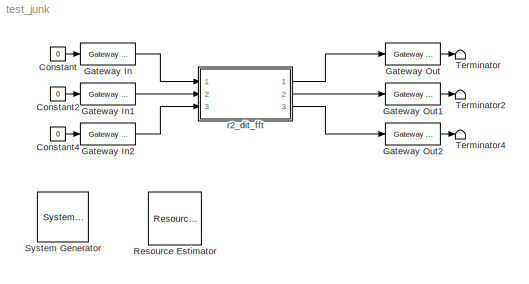
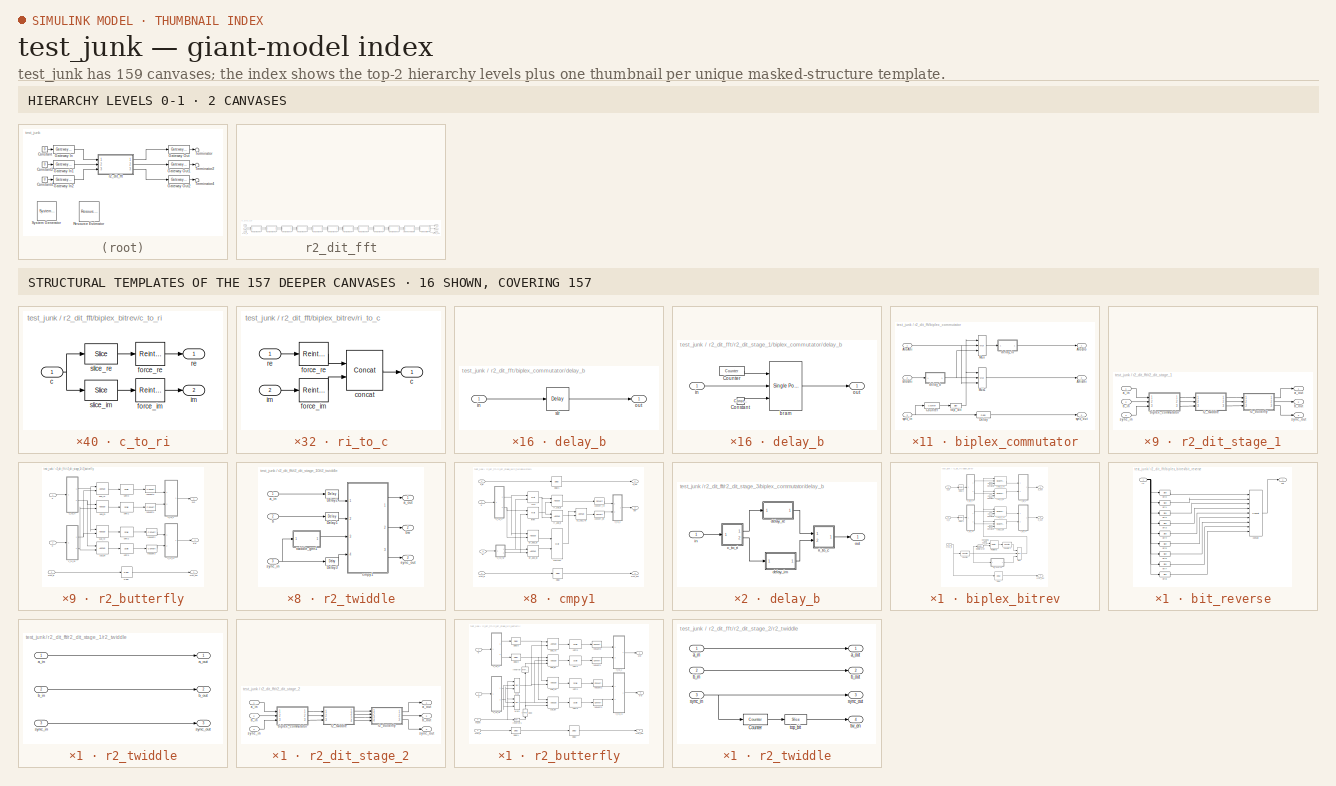
[diagram: thumbnail index - top-2 hierarchy levels (2 canvases) + 16 structural-template representatives of the remaining 157 canvases]
MODEL test_junk
KIND model
BLOCK [Reference]  System Generator  REF=xbsIndex_r3/ System Generator
  AttributesFormatString = System\\nGenerator
  Ports = []
  ShowPortLabels = on
  SourceBlock = xbsIndex_r3/ System Generator
  SourceType = Xilinx System Generator
  Tag = genX
  UserData = DataTag0
  UserDataPersistent = on
  core_generation = According to Block Masks
  dbl_ovrd = According to Block Masks
  deprecated_control = off
  directory = ./netlist
  eval_field = 0
  incr_netlist = off
  package = bg575
  part = xc2v1000
  run_coregen = off
  simulink_period = 1
  speed = -4
  synthesis_tool = XST
  sysclk_period = 100
  testbench = off
  trim_vbits = Everywhere in SubSystem
  xilinxfamily = Virtex2
BLOCK [Constant] Constant
  Value = 0
BLOCK [Constant] Constant2
  Value = 0
BLOCK [Constant] Constant4
  Value = 0
BLOCK [Reference] Gateway In  REF=xbsIndex_r3/Gateway In
  LOCs = {}
  Ports = [1, 1]
  SourceBlock = xbsIndex_r3/Gateway In
  SourceType = Xilinx Gateway In
  arith_type = Unsigned
  bin_pt = 0
  dbl_ovrd = off
  locs_specified = off
  n_bits = 16
  needs_fixed_name = off
  overflow = Wrap
  period = 1
  quantization = Truncate
  show_param = off
  timing_constraint = None
  xl_area = [0 0 0 0 16 0 0]
  xl_use_area = off
BLOCK [Reference] Gateway In1  REF=xbsIndex_r3/Gateway In
  LOCs = {}
  Ports = [1, 1]
  SourceBlock = xbsIndex_r3/Gateway In
  SourceType = Xilinx Gateway In
  arith_type = Unsigned
  bin_pt = 0
  dbl_ovrd = off
  locs_specified = off
  n_bits = 16
  needs_fixed_name = off
  overflow = Wrap
  period = 1
  quantization = Truncate
  show_param = off
  timing_constraint = None
  xl_area = [0 0 0 0 16 0 0]
  xl_use_area = off
BLOCK [Reference] Gateway In2  REF=xbsIndex_r3/Gateway In
  LOCs = {}
  Ports = [1, 1]
  SourceBlock = xbsIndex_r3/Gateway In
  SourceType = Xilinx Gateway In
  arith_type = Boolean
  bin_pt = 6
  dbl_ovrd = off
  locs_specified = off
  n_bits = 8
  needs_fixed_name = off
  overflow = Wrap
  period = 1
  quantization = Truncate
  show_param = off
  timing_constraint = None
  xl_area = [0 0 0 0 1 0 0]
  xl_use_area = off
BLOCK [Reference] Gateway Out  REF=xbsIndex_r3/Gateway Out
  LOCs = {}
  Ports = [1, 1]
  SourceBlock = xbsIndex_r3/Gateway Out
  SourceType = Xilinx Gateway Out
  arith_type = Boolean
  bin_pt = 6
  hdl_port = on
  locs_specified = off
  nbits = 8
  needs_fixed_name = off
  output_type = Double
  overflow = Wrap
  quantization = Truncate
  show_param = off
  timing_constraint = None
  xl_area = [0 0 0 0 36 0 0]
  xl_use_area = off
BLOCK [Reference] Gateway Out1  REF=xbsIndex_r3/Gateway Out
  LOCs = {}
  Ports = [1, 1]
  SourceBlock = xbsIndex_r3/Gateway Out
  SourceType = Xilinx Gateway Out
  arith_type = Boolean
  bin_pt = 6
  hdl_port = on
  locs_specified = off
  nbits = 8
  needs_fixed_name = off
  output_type = Double
  overflow = Wrap
  quantization = Truncate
  show_param = off
  timing_constraint = None
  xl_area = [0 0 0 0 36 0 0]
  xl_use_area = off
BLOCK [Reference] Gateway Out2  REF=xbsIndex_r3/Gateway Out
  LOCs = {}
  Ports = [1, 1]
  SourceBlock = xbsIndex_r3/Gateway Out
  SourceType = Xilinx Gateway Out
  arith_type = Boolean
  bin_pt = 6
  hdl_port = on
  locs_specified = off
  nbits = 8
  needs_fixed_name = off
  output_type = Double
  overflow = Wrap
  quantization = Truncate
  show_param = off
  timing_constraint = None
  xl_area = [0 0 0 0 1 0 0]
  xl_use_area = off
BLOCK [Reference] Resource Estimator  REF=xbsIndex_r3/Resource Estimator
  AttributesFormatString = Resource Estimator\\n%<xl_estimator_area>\\n[SL FF BR LUT IO MUL TBUF]
  Ports = []
  ShowPortLabels = on
  SourceBlock = xbsIndex_r3/Resource Estimator
  SourceType = Xilinx Resource Estimator Block
  Tag = resEstTag
  mrp_directory = ./netlist
  simulink_period = 1
  xl_estimator_area = [2721 4755 19 3784 106 32 0]
  xl_use_estimator_area = off
BLOCK [Terminator] Terminator
BLOCK [Terminator] Terminator2
BLOCK [Terminator] Terminator4
BLOCK [SubSystem] r2_dit_fft
  AncestorBlock = newfft_library/FFT/r2_dit_fft
  AttributesFormatString = 1024 points\n8_7 r/i in\n9_7 twiddles
  MaskCallbackString = |||||||||||mvs=get_param(gcb,'MaskVisibilityString');\nif strcmp(get_param(gcb,'show_sbo'),'on')\n  onoff='on';\nelse\n  onoff='off';\nend\nmvs=regexprep(mvs,'o[nf]*$',onoff);\nset_param(gcb,'MaskVisibilityString',mvs);\n|mvs=get_param(gcb,'MaskVisibilityString');\nif strcmp(get_param(gcb,'show_sbo'),'on')\n  onoff='on';\nelse\n  onoff='off';\nend\nmvs=regexprep(mvs,'o[nf]*$',onoff);\nset_param(gc...<+32ch>
  MaskDescription = A biplex radix-2 decimation-in-time Fast Fourier Transform.
  MaskEnableString = on,on,on,on,on,on,on,on,on,on,on,on,on
  MaskHelp = <pre>\nDescription::\n\nA biplex radix-2 decimation-in-time Fast Fourier Transform.\n\nThe two inputs to the biplex FFT are independent complex signals (e.g. A and B).\n\nWithout an output commutator, the two outputs of the FFT are commuted such that the a_out\nsignal is really the \"lower\" half of A's transform followed by the \"lower\" half of B's\ntransform and b_out is really the \"upper\" ha...<+3611ch>
  MaskIconFrame = on
  MaskIconOpaque = on
  MaskIconRotate = none
  MaskIconUnits = autoscale
  MaskInitialization = tic\nr2_dit_fft_init(gcb, ...\n  n_stages, ...\n  n_bits, ...\n  bin_pt, ...\n  shifts, ...\n  commutator_bram, ...\n  twiddle_bram, ...\n  n_bits_w, ...\n  mult_latency, ...\n  add_latency, ...\n  commute_output, ...\n  output_order, ...\n  lower(get_param(gcb,'munge_submasks')) );\ndisp('r2_dit_fft initialization complete.');\ntoc
  MaskPromptString = Total Stages|Number of Bits In|Binary Point In|Shifting Schedule|Number of Stages Using BRAM for Biplex Commutators (i.e. delays)|Number of Stages Using BRAM for Twiddle Coefficients|Twiddle Coefficient Bitwidth|Multiplier Latency|Adder Latency|Commute Output|Output Order|Show Sub-Block Options|Sub-Block Masks
  MaskSelfModifiable = on
  MaskStyleString = edit,edit,edit,edit,edit,edit,edit,edit,edit,popup(No|Yes (SLR16)|Yes (BRAM)),popup(Bit Reversed|Normal),checkbox,popup(Keep|DumbDown|Unmask)
  MaskTabNameString = ,,,,,,,,,,,,
  MaskToolTipString = on,on,on,on,on,on,on,on,on,on,on,on,on
  MaskTunableValueString = on,on,on,on,on,on,on,on,on,on,on,on,on
  MaskType = Biplex Radix-2 DIT FFT
  MaskValueString = 10|8|7|[0]|3|3|9|3|1|Yes (SLR16)|Normal|on|Unmask
  MaskVarAliasString = ,,,,,,,,,,,,
  MaskVariables = n_stages=@1;n_bits=@2;bin_pt=@3;shifts=@4;commutator_bram=@5;twiddle_bram=@6;n_bits_w=@7;mult_latency=@8;add_latency=@9;commute_output=@10;output_order=@11;show_sbo=@12;munge_submasks=@13;
  MaskVisibilityString = on,on,on,on,on,on,on,on,on,on,on,on,on
  MinAlgLoopOccurrences = off
  Ports = [3, 3]
  RTWSystemCode = Auto
  TreatAsAtomicUnit = off
  UserData = DataTag1
  UserDataPersistent = on
BLOCK [Inport] r2_dit_fft/a_in
  IconDisplay = Port number
  LatchInput = off
  Port = 1
BLOCK [Outport] r2_dit_fft/a_out
  BusOutputAsStruct = off
  IconDisplay = Port number
BLOCK [Inport] r2_dit_fft/b_in
  IconDisplay = Port number
  LatchInput = off
  Port = 2
BLOCK [Outport] r2_dit_fft/b_out
  BusOutputAsStruct = off
  IconDisplay = Port number
  Port = 2
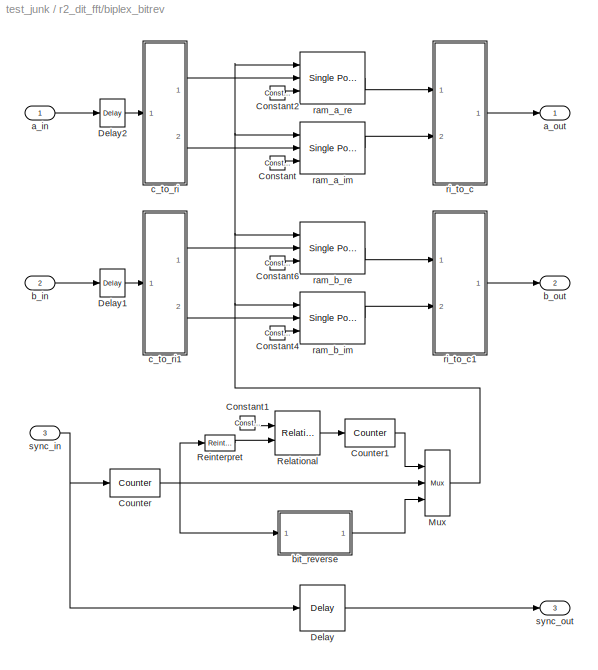
BLOCK [SubSystem] r2_dit_fft/biplex_bitrev
  AttributesFormatString = size = 512
  MinAlgLoopOccurrences = off
  Ports = [3, 3]
  RTWSystemCode = Auto
  TreatAsAtomicUnit = off
  UserData = DataTag2
  UserDataPersistent = on
BLOCK [Reference] r2_dit_fft/biplex_bitrev/Constant  REF=xbsIndex_r3/Constant
  Ports = [0, 1]
  SourceBlock = xbsIndex_r3/Constant
  SourceType = Xilinx Constant Block
  arith_type = Boolean
  bin_pt = 0
  carry = CIN
  const = 1
  dbl_ovrd = off
  equ = P=C
  explicit_period = on
  inp1 = P
  inp2 = PCIN>>17
  iostate = 0
  n_bits = 1
  opr = +
  opselect = C
  period = 1
BLOCK [Reference] r2_dit_fft/biplex_bitrev/Constant1  REF=xbsIndex_r3/Constant
  Ports = [0, 1]
  SourceBlock = xbsIndex_r3/Constant
  SourceType = Xilinx Constant Block
  arith_type = Signed  (2's comp)
  bin_pt = 0
  carry = CIN
  const = -1
  dbl_ovrd = off
  equ = P=C
  explicit_period = on
  inp1 = P
  inp2 = PCIN>>17
  iostate = 0
  n_bits = 1
  opr = +
  opselect = C
  period = 1
BLOCK [Reference] r2_dit_fft/biplex_bitrev/Constant2  REF=xbsIndex_r3/Constant
  Ports = [0, 1]
  SourceBlock = xbsIndex_r3/Constant
  SourceType = Xilinx Constant Block
  arith_type = Boolean
  bin_pt = 0
  carry = CIN
  const = 1
  dbl_ovrd = off
  equ = P=C
  explicit_period = on
  inp1 = P
  inp2 = PCIN>>17
  iostate = 0
  n_bits = 1
  opr = +
  opselect = C
  period = 1
BLOCK [Reference] r2_dit_fft/biplex_bitrev/Constant4  REF=xbsIndex_r3/Constant
  Ports = [0, 1]
  SourceBlock = xbsIndex_r3/Constant
  SourceType = Xilinx Constant Block
  arith_type = Boolean
  bin_pt = 0
  carry = CIN
  const = 1
  dbl_ovrd = off
  equ = P=C
  explicit_period = on
  inp1 = P
  inp2 = PCIN>>17
  iostate = 0
  n_bits = 1
  opr = +
  opselect = C
  period = 1
BLOCK [Reference] r2_dit_fft/biplex_bitrev/Constant6  REF=xbsIndex_r3/Constant
  Ports = [0, 1]
  SourceBlock = xbsIndex_r3/Constant
  SourceType = Xilinx Constant Block
  arith_type = Boolean
  bin_pt = 0
  carry = CIN
  const = 1
  dbl_ovrd = off
  equ = P=C
  explicit_period = on
  inp1 = P
  inp2 = PCIN>>17
  iostate = 0
  n_bits = 1
  opr = +
  opselect = C
  period = 1
BLOCK [Reference] r2_dit_fft/biplex_bitrev/Counter  REF=xbsIndex_r3/Counter
  Ports = [1, 1]
  SourceBlock = xbsIndex_r3/Counter
  SourceType = Xilinx Counter Block
  arith_type = Unsigned
  bin_pt = 0
  cnt_by_val = 1
  cnt_to = Inf
  cnt_type = Free Running
  dbl_ovrd = off
  en = off
  explicit_period = off
  gen_core = off
  load_pin = off
  n_bits = 9
  operation = Up
  period = 1
  rst = on
  show_param = off
  start_count = 0
  use_rpm = on
  xl_area = [0, 0, 0, 0, 0, 0, 0]
  xl_use_area = off
BLOCK [Reference] r2_dit_fft/biplex_bitrev/Counter1  REF=xbsIndex_r3/Counter
  Ports = [1, 1]
  SourceBlock = xbsIndex_r3/Counter
  SourceType = Xilinx Counter Block
  arith_type = Unsigned
  bin_pt = 0
  cnt_by_val = 1
  cnt_to = Inf
  cnt_type = Free Running
  dbl_ovrd = off
  en = on
  explicit_period = off
  gen_core = off
  load_pin = off
  n_bits = 1
  operation = Up
  period = 1
  rst = off
  show_param = off
  start_count = 0
  use_rpm = on
  xl_area = [0, 0, 0, 0, 0, 0, 0]
  xl_use_area = off
BLOCK [Reference] r2_dit_fft/biplex_bitrev/Delay  REF=xbsIndex_r3/Delay
  Ports = [1, 1]
  SourceBlock = xbsIndex_r3/Delay
  SourceType = Xilinx Delay Block
  accept_only_valid = off
  dbl_ovrd = off
  en = off
  explicit_period = off
  init_zero = on
  latency = 514
  period = 1
  reg_retiming = off
  show_param = off
  xl_area = [0, 0, 0, 0, 0, 0, 0]
  xl_use_area = off
BLOCK [Reference] r2_dit_fft/biplex_bitrev/Delay1  REF=xbsIndex_r3/Delay
  Ports = [1, 1]
  SourceBlock = xbsIndex_r3/Delay
  SourceType = Xilinx Delay Block
  accept_only_valid = off
  dbl_ovrd = off
  en = off
  explicit_period = off
  init_zero = on
  latency = 1
  period = 1
  reg_retiming = off
  show_param = off
  xl_area = [0, 0, 0, 0, 0, 0, 0]
  xl_use_area = off
BLOCK [Reference] r2_dit_fft/biplex_bitrev/Delay2  REF=xbsIndex_r3/Delay
  Ports = [1, 1]
  SourceBlock = xbsIndex_r3/Delay
  SourceType = Xilinx Delay Block
  accept_only_valid = off
  dbl_ovrd = off
  en = off
  explicit_period = off
  init_zero = on
  latency = 1
  period = 1
  reg_retiming = off
  show_param = off
  xl_area = [0, 0, 0, 0, 0, 0, 0]
  xl_use_area = off
BLOCK [Reference] r2_dit_fft/biplex_bitrev/Mux  REF=xbsIndex_r3/Mux
  Ports = [3, 1]
  SourceBlock = xbsIndex_r3/Mux
  SourceType = Xilinx Multiplexer Block
  arith_type = Signed  (2's comp)
  bin_pt = 2
  dbl_ovrd = off
  en = off
  explicit_period = off
  gen_core = off
  inputs = 2
  latency = 1
  mux_type = off
  n_bits = 8
  overflow = Wrap
  period = 1
  precision = Full
  quantization = Truncate
  show_param = off
  use_rpm = off
  xl_area = [0, 0, 0, 0, 0, 0, 0]
  xl_use_area = off
BLOCK [Reference] r2_dit_fft/biplex_bitrev/Reinterpret  REF=xbsIndex_r3/Reinterpret
  Ports = [1, 1]
  SourceBlock = xbsIndex_r3/Reinterpret
  SourceType = Xilinx Type Reinterpreting Block
  arith_type = Signed  (2's comp)
  bin_pt = 0
  force_arith_type = on
  force_bin_pt = off
  force_valid = on
BLOCK [Reference] r2_dit_fft/biplex_bitrev/Relational  REF=xbsIndex_r3/Relational
  Ports = [2, 1]
  SourceBlock = xbsIndex_r3/Relational
  SourceType = Xilinx Relational Block
  dbl_ovrd = off
  en = off
  explicit_period = off
  latency = 1
  mode = a=b
  period = 1
  show_param = off
  xl_area = [0, 0, 0, 0, 0, 0, 0]
  xl_use_area = off
BLOCK [Inport] r2_dit_fft/biplex_bitrev/a_in
  IconDisplay = Port number
  LatchInput = off
  Port = 1
BLOCK [Outport] r2_dit_fft/biplex_bitrev/a_out
  BusOutputAsStruct = off
  IconDisplay = Port number
BLOCK [Inport] r2_dit_fft/biplex_bitrev/b_in
  IconDisplay = Port number
  LatchInput = off
  Port = 2
BLOCK [Outport] r2_dit_fft/biplex_bitrev/b_out
  BusOutputAsStruct = off
  IconDisplay = Port number
  Port = 2
BLOCK [SubSystem] r2_dit_fft/biplex_bitrev/bit_reverse
  AttributesFormatString = 9 bits
  MinAlgLoopOccurrences = off
  Ports = [1, 1]
  RTWSystemCode = Auto
  TreatAsAtomicUnit = off
  UserData = DataTag3
  UserDataPersistent = on
BLOCK [Reference] r2_dit_fft/biplex_bitrev/bit_reverse/bit0  REF=xbsIndex_r3/Slice
  Ports = [1, 1]
  SourceBlock = xbsIndex_r3/Slice
  SourceType = Xilinx Slice Block
  base0 = LSB of Input
  base1 = MSB of Input
  bit0 = 0
  bit1 = 0
  boolean_output = off
  dbl_ovrd = off
  explicit_period = off
  mode = Lower Bit Location + Width
  nbits = 1
  period = 1
BLOCK [Reference] r2_dit_fft/biplex_bitrev/bit_reverse/bit1  REF=xbsIndex_r3/Slice
  Ports = [1, 1]
  SourceBlock = xbsIndex_r3/Slice
  SourceType = Xilinx Slice Block
  base0 = LSB of Input
  base1 = MSB of Input
  bit0 = 1
  bit1 = 0
  boolean_output = off
  dbl_ovrd = off
  explicit_period = off
  mode = Lower Bit Location + Width
  nbits = 1
  period = 1
BLOCK [Reference] r2_dit_fft/biplex_bitrev/bit_reverse/bit2  REF=xbsIndex_r3/Slice
  Ports = [1, 1]
  SourceBlock = xbsIndex_r3/Slice
  SourceType = Xilinx Slice Block
  base0 = LSB of Input
  base1 = MSB of Input
  bit0 = 2
  bit1 = 0
  boolean_output = off
  dbl_ovrd = off
  explicit_period = off
  mode = Lower Bit Location + Width
  nbits = 1
  period = 1
BLOCK [Reference] r2_dit_fft/biplex_bitrev/bit_reverse/bit3  REF=xbsIndex_r3/Slice
  Ports = [1, 1]
  SourceBlock = xbsIndex_r3/Slice
  SourceType = Xilinx Slice Block
  base0 = LSB of Input
  base1 = MSB of Input
  bit0 = 3
  bit1 = 0
  boolean_output = off
  dbl_ovrd = off
  explicit_period = off
  mode = Lower Bit Location + Width
  nbits = 1
  period = 1
BLOCK [Reference] r2_dit_fft/biplex_bitrev/bit_reverse/bit4  REF=xbsIndex_r3/Slice
  Ports = [1, 1]
  SourceBlock = xbsIndex_r3/Slice
  SourceType = Xilinx Slice Block
  base0 = LSB of Input
  base1 = MSB of Input
  bit0 = 4
  bit1 = 0
  boolean_output = off
  dbl_ovrd = off
  explicit_period = off
  mode = Lower Bit Location + Width
  nbits = 1
  period = 1
BLOCK [Reference] r2_dit_fft/biplex_bitrev/bit_reverse/bit5  REF=xbsIndex_r3/Slice
  Ports = [1, 1]
  SourceBlock = xbsIndex_r3/Slice
  SourceType = Xilinx Slice Block
  base0 = LSB of Input
  base1 = MSB of Input
  bit0 = 5
  bit1 = 0
  boolean_output = off
  dbl_ovrd = off
  explicit_period = off
  mode = Lower Bit Location + Width
  nbits = 1
  period = 1
BLOCK [Reference] r2_dit_fft/biplex_bitrev/bit_reverse/bit6  REF=xbsIndex_r3/Slice
  Ports = [1, 1]
  SourceBlock = xbsIndex_r3/Slice
  SourceType = Xilinx Slice Block
  base0 = LSB of Input
  base1 = MSB of Input
  bit0 = 6
  bit1 = 0
  boolean_output = off
  dbl_ovrd = off
  explicit_period = off
  mode = Lower Bit Location + Width
  nbits = 1
  period = 1
BLOCK [Reference] r2_dit_fft/biplex_bitrev/bit_reverse/bit7  REF=xbsIndex_r3/Slice
  Ports = [1, 1]
  SourceBlock = xbsIndex_r3/Slice
  SourceType = Xilinx Slice Block
  base0 = LSB of Input
  base1 = MSB of Input
  bit0 = 7
  bit1 = 0
  boolean_output = off
  dbl_ovrd = off
  explicit_period = off
  mode = Lower Bit Location + Width
  nbits = 1
  period = 1
BLOCK [Reference] r2_dit_fft/biplex_bitrev/bit_reverse/bit8  REF=xbsIndex_r3/Slice
  Ports = [1, 1]
  SourceBlock = xbsIndex_r3/Slice
  SourceType = Xilinx Slice Block
  base0 = LSB of Input
  base1 = MSB of Input
  bit0 = 8
  bit1 = 0
  boolean_output = off
  dbl_ovrd = off
  explicit_period = off
  mode = Lower Bit Location + Width
  nbits = 1
  period = 1
BLOCK [Reference] r2_dit_fft/biplex_bitrev/bit_reverse/concat  REF=xbsIndex_r3/Concat
  Ports = [9, 1]
  SourceBlock = xbsIndex_r3/Concat
  SourceType = Xilinx Bus Concatenator
  dbl_ovrd = off
  explicit_period = off
  num_inputs = 9
  period = 1
BLOCK [Inport] r2_dit_fft/biplex_bitrev/bit_reverse/in
  IconDisplay = Port number
  LatchInput = off
  Port = 1
BLOCK [Outport] r2_dit_fft/biplex_bitrev/bit_reverse/out
  BusOutputAsStruct = off
  IconDisplay = Port number
BLOCK [SubSystem] r2_dit_fft/biplex_bitrev/c_to_ri
  AttributesFormatString = 18_0 r/i
  MinAlgLoopOccurrences = off
  Ports = [1, 2]
  RTWSystemCode = Auto
  TreatAsAtomicUnit = off
  UserData = DataTag4
  UserDataPersistent = on
BLOCK [Inport] r2_dit_fft/biplex_bitrev/c_to_ri/c
  IconDisplay = Port number
  LatchInput = off
  Port = 1
BLOCK [Reference] r2_dit_fft/biplex_bitrev/c_to_ri/force_im  REF=xbsIndex_r3/Reinterpret
  Ports = [1, 1]
  SourceBlock = xbsIndex_r3/Reinterpret
  SourceType = Xilinx Type Reinterpreting Block
  arith_type = Signed  (2's comp)
  bin_pt = 0
  force_arith_type = on
  force_bin_pt = on
  force_valid = on
BLOCK [Reference] r2_dit_fft/biplex_bitrev/c_to_ri/force_re  REF=xbsIndex_r3/Reinterpret
  Ports = [1, 1]
  SourceBlock = xbsIndex_r3/Reinterpret
  SourceType = Xilinx Type Reinterpreting Block
  arith_type = Signed  (2's comp)
  bin_pt = 0
  force_arith_type = on
  force_bin_pt = on
  force_valid = on
BLOCK [Outport] r2_dit_fft/biplex_bitrev/c_to_ri/im
  BusOutputAsStruct = off
  IconDisplay = Port number
  Port = 2
BLOCK [Outport] r2_dit_fft/biplex_bitrev/c_to_ri/re
  BusOutputAsStruct = off
  IconDisplay = Port number
BLOCK [Reference] r2_dit_fft/biplex_bitrev/c_to_ri/slice_im  REF=xbsIndex_r3/Slice
  Ports = [1, 1]
  SourceBlock = xbsIndex_r3/Slice
  SourceType = Xilinx Slice Block
  base0 = LSB of Input
  base1 = MSB of Input
  bit0 = 0
  bit1 = 0
  boolean_output = off
  dbl_ovrd = off
  explicit_period = off
  mode = Lower Bit Location + Width
  nbits = 18
  period = 1
BLOCK [Reference] r2_dit_fft/biplex_bitrev/c_to_ri/slice_re  REF=xbsIndex_r3/Slice
  Ports = [1, 1]
  SourceBlock = xbsIndex_r3/Slice
  SourceType = Xilinx Slice Block
  base0 = LSB of Input
  base1 = MSB of Input
  bit0 = 0
  bit1 = 0
  boolean_output = off
  dbl_ovrd = off
  explicit_period = off
  mode = Upper Bit Location + Width
  nbits = 18
  period = 1
BLOCK [SubSystem] r2_dit_fft/biplex_bitrev/c_to_ri1
  AttributesFormatString = 18_0 r/i
  MinAlgLoopOccurrences = off
  Ports = [1, 2]
  RTWSystemCode = Auto
  TreatAsAtomicUnit = off
  UserData = DataTag5
  UserDataPersistent = on
BLOCK [Inport] r2_dit_fft/biplex_bitrev/c_to_ri1/c
  IconDisplay = Port number
  LatchInput = off
  Port = 1
BLOCK [Reference] r2_dit_fft/biplex_bitrev/c_to_ri1/force_im  REF=xbsIndex_r3/Reinterpret
  Ports = [1, 1]
  SourceBlock = xbsIndex_r3/Reinterpret
  SourceType = Xilinx Type Reinterpreting Block
  arith_type = Signed  (2's comp)
  bin_pt = 0
  force_arith_type = on
  force_bin_pt = on
  force_valid = on
BLOCK [Reference] r2_dit_fft/biplex_bitrev/c_to_ri1/force_re  REF=xbsIndex_r3/Reinterpret
  Ports = [1, 1]
  SourceBlock = xbsIndex_r3/Reinterpret
  SourceType = Xilinx Type Reinterpreting Block
  arith_type = Signed  (2's comp)
  bin_pt = 0
  force_arith_type = on
  force_bin_pt = on
  force_valid = on
BLOCK [Outport] r2_dit_fft/biplex_bitrev/c_to_ri1/im
  BusOutputAsStruct = off
  IconDisplay = Port number
  Port = 2
BLOCK [Outport] r2_dit_fft/biplex_bitrev/c_to_ri1/re
  BusOutputAsStruct = off
  IconDisplay = Port number
BLOCK [Reference] r2_dit_fft/biplex_bitrev/c_to_ri1/slice_im  REF=xbsIndex_r3/Slice
  Ports = [1, 1]
  SourceBlock = xbsIndex_r3/Slice
  SourceType = Xilinx Slice Block
  base0 = LSB of Input
  base1 = MSB of Input
  bit0 = 0
  bit1 = 0
  boolean_output = off
  dbl_ovrd = off
  explicit_period = off
  mode = Lower Bit Location + Width
  nbits = 18
  period = 1
BLOCK [Reference] r2_dit_fft/biplex_bitrev/c_to_ri1/slice_re  REF=xbsIndex_r3/Slice
  Ports = [1, 1]
  SourceBlock = xbsIndex_r3/Slice
  SourceType = Xilinx Slice Block
  base0 = LSB of Input
  base1 = MSB of Input
  bit0 = 0
  bit1 = 0
  boolean_output = off
  dbl_ovrd = off
  explicit_period = off
  mode = Upper Bit Location + Width
  nbits = 18
  period = 1
BLOCK [Reference] r2_dit_fft/biplex_bitrev/ram_a_im  REF=xbsIndex_r3/Single Port RAM
  Ports = [3, 1]
  SourceBlock = xbsIndex_r3/Single Port RAM
  SourceType = Xilinx Single Port Random Access Memory
  dbl_ovrd = off
  depth = 512
  distributed_mem = off
  en = off
  explicit_period = off
  gen_core = off
  initVector = 0
  init_reg = 0
  init_zero = on
  latency = 1
  period = 1
  rst = off
  show_param = on
  use_rpm = off
  write_mode = Read Before Write
  xl_area = [0, 0, 0, 0, 0, 0, 0]
  xl_use_area = off
BLOCK [Reference] r2_dit_fft/biplex_bitrev/ram_a_re  REF=xbsIndex_r3/Single Port RAM
  Ports = [3, 1]
  SourceBlock = xbsIndex_r3/Single Port RAM
  SourceType = Xilinx Single Port Random Access Memory
  dbl_ovrd = off
  depth = 512
  distributed_mem = off
  en = off
  explicit_period = off
  gen_core = off
  initVector = 0
  init_reg = 0
  init_zero = on
  latency = 1
  period = 1
  rst = off
  show_param = on
  use_rpm = off
  write_mode = Read Before Write
  xl_area = [0, 0, 0, 0, 0, 0, 0]
  xl_use_area = off
BLOCK [Reference] r2_dit_fft/biplex_bitrev/ram_b_im  REF=xbsIndex_r3/Single Port RAM
  Ports = [3, 1]
  SourceBlock = xbsIndex_r3/Single Port RAM
  SourceType = Xilinx Single Port Random Access Memory
  dbl_ovrd = off
  depth = 512
  distributed_mem = off
  en = off
  explicit_period = off
  gen_core = off
  initVector = 0
  init_reg = 0
  init_zero = on
  latency = 1
  period = 1
  rst = off
  show_param = on
  use_rpm = off
  write_mode = Read Before Write
  xl_area = [0, 0, 0, 0, 0, 0, 0]
  xl_use_area = off
BLOCK [Reference] r2_dit_fft/biplex_bitrev/ram_b_re  REF=xbsIndex_r3/Single Port RAM
  Ports = [3, 1]
  SourceBlock = xbsIndex_r3/Single Port RAM
  SourceType = Xilinx Single Port Random Access Memory
  dbl_ovrd = off
  depth = 512
  distributed_mem = off
  en = off
  explicit_period = off
  gen_core = off
  initVector = 0
  init_reg = 0
  init_zero = on
  latency = 1
  period = 1
  rst = off
  show_param = on
  use_rpm = off
  write_mode = Read Before Write
  xl_area = [0, 0, 0, 0, 0, 0, 0]
  xl_use_area = off
BLOCK [SubSystem] r2_dit_fft/biplex_bitrev/ri_to_c
  MinAlgLoopOccurrences = off
  Ports = [2, 1]
  RTWSystemCode = Auto
  TreatAsAtomicUnit = off
  UserData = DataTag6
  UserDataPersistent = on
BLOCK [Outport] r2_dit_fft/biplex_bitrev/ri_to_c/c
  BusOutputAsStruct = off
  IconDisplay = Port number
BLOCK [Reference] r2_dit_fft/biplex_bitrev/ri_to_c/concat  REF=xbsIndex_r3/Concat
  Ports = [2, 1]
  SourceBlock = xbsIndex_r3/Concat
  SourceType = Xilinx Bus Concatenator
  dbl_ovrd = off
  explicit_period = off
  num_inputs = 2
  period = 1
BLOCK [Reference] r2_dit_fft/biplex_bitrev/ri_to_c/force_im  REF=xbsIndex_r3/Reinterpret
  Ports = [1, 1]
  SourceBlock = xbsIndex_r3/Reinterpret
  SourceType = Xilinx Type Reinterpreting Block
  arith_type = Unsigned
  bin_pt = 0
  force_arith_type = on
  force_bin_pt = on
  force_valid = on
BLOCK [Reference] r2_dit_fft/biplex_bitrev/ri_to_c/force_re  REF=xbsIndex_r3/Reinterpret
  Ports = [1, 1]
  SourceBlock = xbsIndex_r3/Reinterpret
  SourceType = Xilinx Type Reinterpreting Block
  arith_type = Unsigned
  bin_pt = 0
  force_arith_type = on
  force_bin_pt = on
  force_valid = on
BLOCK [Inport] r2_dit_fft/biplex_bitrev/ri_to_c/im
  IconDisplay = Port number
  LatchInput = off
  Port = 2
BLOCK [Inport] r2_dit_fft/biplex_bitrev/ri_to_c/re
  IconDisplay = Port number
  LatchInput = off
  Port = 1
BLOCK [SubSystem] r2_dit_fft/biplex_bitrev/ri_to_c1
  MinAlgLoopOccurrences = off
  Ports = [2, 1]
  RTWSystemCode = Auto
  TreatAsAtomicUnit = off
  UserData = DataTag7
  UserDataPersistent = on
BLOCK [Outport] r2_dit_fft/biplex_bitrev/ri_to_c1/c
  BusOutputAsStruct = off
  IconDisplay = Port number
BLOCK [Reference] r2_dit_fft/biplex_bitrev/ri_to_c1/concat  REF=xbsIndex_r3/Concat
  Ports = [2, 1]
  SourceBlock = xbsIndex_r3/Concat
  SourceType = Xilinx Bus Concatenator
  dbl_ovrd = off
  explicit_period = off
  num_inputs = 2
  period = 1
BLOCK [Reference] r2_dit_fft/biplex_bitrev/ri_to_c1/force_im  REF=xbsIndex_r3/Reinterpret
  Ports = [1, 1]
  SourceBlock = xbsIndex_r3/Reinterpret
  SourceType = Xilinx Type Reinterpreting Block
  arith_type = Unsigned
  bin_pt = 0
  force_arith_type = on
  force_bin_pt = on
  force_valid = on
BLOCK [Reference] r2_dit_fft/biplex_bitrev/ri_to_c1/force_re  REF=xbsIndex_r3/Reinterpret
  Ports = [1, 1]
  SourceBlock = xbsIndex_r3/Reinterpret
  SourceType = Xilinx Type Reinterpreting Block
  arith_type = Unsigned
  bin_pt = 0
  force_arith_type = on
  force_bin_pt = on
  force_valid = on
BLOCK [Inport] r2_dit_fft/biplex_bitrev/ri_to_c1/im
  IconDisplay = Port number
  LatchInput = off
  Port = 2
BLOCK [Inport] r2_dit_fft/biplex_bitrev/ri_to_c1/re
  IconDisplay = Port number
  LatchInput = off
  Port = 1
BLOCK [Inport] r2_dit_fft/biplex_bitrev/sync_in
  IconDisplay = Port number
  LatchInput = off
  Port = 3
BLOCK [Outport] r2_dit_fft/biplex_bitrev/sync_out
  BusOutputAsStruct = off
  IconDisplay = Port number
  Port = 3
BLOCK [SubSystem] r2_dit_fft/biplex_commutator
  AttributesFormatString = size = 1024\ndelay slr
  MinAlgLoopOccurrences = off
  Ports = [3, 3]
  RTWSystemCode = Auto
  TreatAsAtomicUnit = off
  UserData = DataTag8
  UserDataPersistent = on
BLOCK [Outport] r2_dit_fft/biplex_commutator/AhiBhi
  BusOutputAsStruct = off
  IconDisplay = Port number
  Port = 2
BLOCK [Inport] r2_dit_fft/biplex_commutator/AloAhi
  IconDisplay = Port number
  LatchInput = off
  Port = 1
BLOCK [Outport] r2_dit_fft/biplex_commutator/AloBlo
  BusOutputAsStruct = off
  IconDisplay = Port number
BLOCK [Inport] r2_dit_fft/biplex_commutator/BloBhi
  IconDisplay = Port number
  LatchInput = off
  Port = 2
BLOCK [Reference] r2_dit_fft/biplex_commutator/Counter  REF=xbsIndex_r3/Counter
  Ports = [1, 1]
  SourceBlock = xbsIndex_r3/Counter
  SourceType = Xilinx Counter Block
  arith_type = Unsigned
  bin_pt = 0
  cnt_by_val = 1
  cnt_to = Inf
  cnt_type = Free Running
  dbl_ovrd = off
  en = off
  explicit_period = off
  gen_core = off
  load_pin = off
  n_bits = 10
  operation = Up
  period = 1
  rst = on
  show_param = off
  start_count = 0
  use_rpm = on
  xl_area = [0, 0, 0, 0, 0, 0, 0]
  xl_use_area = off
BLOCK [Reference] r2_dit_fft/biplex_commutator/Delay  REF=xbsIndex_r3/Delay
  Ports = [1, 1]
  SourceBlock = xbsIndex_r3/Delay
  SourceType = Xilinx Delay Block
  accept_only_valid = off
  dbl_ovrd = off
  en = off
  explicit_period = off
  init_zero = on
  latency = 513
  period = 1
  reg_retiming = off
  show_param = off
  xl_area = [0, 0, 0, 0, 0, 0, 0]
  xl_use_area = off
BLOCK [Reference] r2_dit_fft/biplex_commutator/Mux  REF=xbsIndex_r3/Mux
  Ports = [3, 1]
  SourceBlock = xbsIndex_r3/Mux
  SourceType = Xilinx Multiplexer Block
  arith_type = Signed  (2's comp)
  bin_pt = 2
  dbl_ovrd = off
  en = off
  explicit_period = off
  gen_core = off
  inputs = 2
  latency = 1
  mux_type = off
  n_bits = 8
  overflow = Wrap
  period = 1
  precision = Full
  quantization = Truncate
  show_param = off
  use_rpm = off
  xl_area = [0, 0, 0, 0, 0, 0, 0]
  xl_use_area = off
BLOCK [Reference] r2_dit_fft/biplex_commutator/Mux1  REF=xbsIndex_r3/Mux
  Ports = [3, 1]
  SourceBlock = xbsIndex_r3/Mux
  SourceType = Xilinx Multiplexer Block
  arith_type = Signed  (2's comp)
  bin_pt = 2
  dbl_ovrd = off
  en = off
  explicit_period = off
  gen_core = off
  inputs = 2
  latency = 1
  mux_type = off
  n_bits = 8
  overflow = Wrap
  period = 1
  precision = Full
  quantization = Truncate
  show_param = on
  use_rpm = off
  xl_area = [0, 0, 0, 0, 0, 0, 0]
  xl_use_area = off
BLOCK [SubSystem] r2_dit_fft/biplex_commutator/delay_b
  AttributesFormatString = slr depth = 512
  MinAlgLoopOccurrences = off
  Ports = [1, 1]
  RTWSystemCode = Auto
  TreatAsAtomicUnit = off
  UserData = DataTag9
  UserDataPersistent = on
BLOCK [Inport] r2_dit_fft/biplex_commutator/delay_b/in
  IconDisplay = Port number
  LatchInput = off
  Port = 1
BLOCK [Outport] r2_dit_fft/biplex_commutator/delay_b/out
  BusOutputAsStruct = off
  IconDisplay = Port number
BLOCK [Reference] r2_dit_fft/biplex_commutator/delay_b/slr  REF=xbsIndex_r3/Delay
  Ports = [1, 1]
  SourceBlock = xbsIndex_r3/Delay
  SourceType = Xilinx Delay Block
  accept_only_valid = off
  dbl_ovrd = off
  en = off
  explicit_period = off
  init_zero = on
  latency = 512
  period = 1
  reg_retiming = off
  show_param = off
  xl_area = [0, 0, 0, 0, 0, 0, 0]
  xl_use_area = off
BLOCK [SubSystem] r2_dit_fft/biplex_commutator/delay_lo
  AttributesFormatString = slr depth = 512
  MinAlgLoopOccurrences = off
  Ports = [1, 1]
  RTWSystemCode = Auto
  TreatAsAtomicUnit = off
  UserData = DataTag10
  UserDataPersistent = on
BLOCK [Inport] r2_dit_fft/biplex_commutator/delay_lo/in
  IconDisplay = Port number
  LatchInput = off
  Port = 1
BLOCK [Outport] r2_dit_fft/biplex_commutator/delay_lo/out
  BusOutputAsStruct = off
  IconDisplay = Port number
BLOCK [Reference] r2_dit_fft/biplex_commutator/delay_lo/slr  REF=xbsIndex_r3/Delay
  Ports = [1, 1]
  SourceBlock = xbsIndex_r3/Delay
  SourceType = Xilinx Delay Block
  accept_only_valid = off
  dbl_ovrd = off
  en = off
  explicit_period = off
  init_zero = on
  latency = 512
  period = 1
  reg_retiming = off
  show_param = off
  xl_area = [0, 0, 0, 0, 0, 0, 0]
  xl_use_area = off
BLOCK [Inport] r2_dit_fft/biplex_commutator/sync_in
  IconDisplay = Port number
  LatchInput = off
  Port = 3
BLOCK [Outport] r2_dit_fft/biplex_commutator/sync_out
  BusOutputAsStruct = off
  IconDisplay = Port number
  Port = 3
BLOCK [Reference] r2_dit_fft/biplex_commutator/top_bit  REF=xbsIndex_r3/Slice
  Ports = [1, 1]
  SourceBlock = xbsIndex_r3/Slice
  SourceType = Xilinx Slice Block
  base0 = LSB of Input
  base1 = MSB of Input
  bit0 = 0
  bit1 = 0
  boolean_output = off
  dbl_ovrd = off
  explicit_period = off
  mode = Upper Bit Location + Width
  nbits = 1
  period = 1
BLOCK [SubSystem] r2_dit_fft/r2_dit_stage_1
  AttributesFormatString = stage 1 of 10\ndelay bram\ntwiddle dist\nshift 0
  MinAlgLoopOccurrences = off
  Ports = [3, 3]
  RTWSystemCode = Auto
  TreatAsAtomicUnit = off
  UserData = DataTag11
  UserDataPersistent = on
BLOCK [Inport] r2_dit_fft/r2_dit_stage_1/a_in
  IconDisplay = Port number
  LatchInput = off
  Port = 1
BLOCK [Outport] r2_dit_fft/r2_dit_stage_1/a_out
  BusOutputAsStruct = off
  IconDisplay = Port number
BLOCK [Inport] r2_dit_fft/r2_dit_stage_1/b_in
  IconDisplay = Port number
  LatchInput = off
  Port = 2
BLOCK [Outport] r2_dit_fft/r2_dit_stage_1/b_out
  BusOutputAsStruct = off
  IconDisplay = Port number
  Port = 2
BLOCK [SubSystem] r2_dit_fft/r2_dit_stage_1/biplex_commutator
  AttributesFormatString = size = 1024\ndelay bram
  MinAlgLoopOccurrences = off
  Ports = [3, 3]
  RTWSystemCode = Auto
  TreatAsAtomicUnit = off
  UserData = DataTag12
  UserDataPersistent = on
BLOCK [Outport] r2_dit_fft/r2_dit_stage_1/biplex_commutator/AhiBhi
  BusOutputAsStruct = off
  IconDisplay = Port number
  Port = 2
BLOCK [Inport] r2_dit_fft/r2_dit_stage_1/biplex_commutator/AloAhi
  IconDisplay = Port number
  LatchInput = off
  Port = 1
BLOCK [Outport] r2_dit_fft/r2_dit_stage_1/biplex_commutator/AloBlo
  BusOutputAsStruct = off
  IconDisplay = Port number
BLOCK [Inport] r2_dit_fft/r2_dit_stage_1/biplex_commutator/BloBhi
  IconDisplay = Port number
  LatchInput = off
  Port = 2
BLOCK [Reference] r2_dit_fft/r2_dit_stage_1/biplex_commutator/Counter  REF=xbsIndex_r3/Counter
  Ports = [1, 1]
  SourceBlock = xbsIndex_r3/Counter
  SourceType = Xilinx Counter Block
  arith_type = Unsigned
  bin_pt = 0
  cnt_by_val = 1
  cnt_to = Inf
  cnt_type = Free Running
  dbl_ovrd = off
  en = off
  explicit_period = off
  gen_core = off
  load_pin = off
  n_bits = 10
  operation = Up
  period = 1
  rst = on
  show_param = off
  start_count = 0
  use_rpm = on
  xl_area = [0, 0, 0, 0, 0, 0, 0]
  xl_use_area = off
BLOCK [Reference] r2_dit_fft/r2_dit_stage_1/biplex_commutator/Delay  REF=xbsIndex_r3/Delay
  Ports = [1, 1]
  SourceBlock = xbsIndex_r3/Delay
  SourceType = Xilinx Delay Block
  accept_only_valid = off
  dbl_ovrd = off
  en = off
  explicit_period = off
  init_zero = on
  latency = 513
  period = 1
  reg_retiming = off
  show_param = off
  xl_area = [0, 0, 0, 0, 0, 0, 0]
  xl_use_area = off
BLOCK [Reference] r2_dit_fft/r2_dit_stage_1/biplex_commutator/Mux  REF=xbsIndex_r3/Mux
  Ports = [3, 1]
  SourceBlock = xbsIndex_r3/Mux
  SourceType = Xilinx Multiplexer Block
  arith_type = Signed  (2's comp)
  bin_pt = 2
  dbl_ovrd = off
  en = off
  explicit_period = off
  gen_core = off
  inputs = 2
  latency = 1
  mux_type = off
  n_bits = 8
  overflow = Wrap
  period = 1
  precision = Full
  quantization = Truncate
  show_param = off
  use_rpm = off
  xl_area = [0, 0, 0, 0, 0, 0, 0]
  xl_use_area = off
BLOCK [Reference] r2_dit_fft/r2_dit_stage_1/biplex_commutator/Mux1  REF=xbsIndex_r3/Mux
  Ports = [3, 1]
  SourceBlock = xbsIndex_r3/Mux
  SourceType = Xilinx Multiplexer Block
  arith_type = Signed  (2's comp)
  bin_pt = 2
  dbl_ovrd = off
  en = off
  explicit_period = off
  gen_core = off
  inputs = 2
  latency = 1
  mux_type = off
  n_bits = 8
  overflow = Wrap
  period = 1
  precision = Full
  quantization = Truncate
  show_param = on
  use_rpm = off
  xl_area = [0, 0, 0, 0, 0, 0, 0]
  xl_use_area = off
BLOCK [SubSystem] r2_dit_fft/r2_dit_stage_1/biplex_commutator/delay_b
  AttributesFormatString = bram depth = 512
  MinAlgLoopOccurrences = off
  Ports = [1, 1]
  RTWSystemCode = Auto
  TreatAsAtomicUnit = off
  UserData = DataTag13
  UserDataPersistent = on
BLOCK [Reference] r2_dit_fft/r2_dit_stage_1/biplex_commutator/delay_b/Constant  REF=xbsIndex_r3/Constant
  Ports = [0, 1]
  SourceBlock = xbsIndex_r3/Constant
  SourceType = Xilinx Constant Block
  arith_type = Boolean
  bin_pt = 0
  carry = CIN
  const = 1
  dbl_ovrd = off
  equ = P=C
  explicit_period = on
  inp1 = P
  inp2 = PCIN>>17
  iostate = 0
  n_bits = 1
  opr = +
  opselect = C
  period = 1
BLOCK [Reference] r2_dit_fft/r2_dit_stage_1/biplex_commutator/delay_b/Counter  REF=xbsIndex_r3/Counter
  Ports = [0, 1]
  SourceBlock = xbsIndex_r3/Counter
  SourceType = Xilinx Counter Block
  arith_type = Unsigned
  bin_pt = 0
  cnt_by_val = 1
  cnt_to = 510
  cnt_type = Count Limited
  dbl_ovrd = off
  en = off
  explicit_period = off
  gen_core = off
  load_pin = off
  n_bits = 9
  operation = Up
  period = 1
  rst = off
  show_param = off
  start_count = 0
  use_rpm = on
  xl_area = [0, 0, 0, 0, 0, 0, 0]
  xl_use_area = off
BLOCK [Reference] r2_dit_fft/r2_dit_stage_1/biplex_commutator/delay_b/bram  REF=xbsIndex_r3/Single Port RAM
  Ports = [3, 1]
  SourceBlock = xbsIndex_r3/Single Port RAM
  SourceType = Xilinx Single Port Random Access Memory
  dbl_ovrd = off
  depth = 512
  distributed_mem = off
  en = off
  explicit_period = off
  gen_core = off
  initVector = 0
  init_reg = 0
  init_zero = on
  latency = 1
  period = 1
  rst = off
  show_param = off
  use_rpm = off
  write_mode = Read Before Write
  xl_area = [0, 0, 0, 0, 0, 0, 0]
  xl_use_area = off
BLOCK [Inport] r2_dit_fft/r2_dit_stage_1/biplex_commutator/delay_b/in
  IconDisplay = Port number
  LatchInput = off
  Port = 1
BLOCK [Outport] r2_dit_fft/r2_dit_stage_1/biplex_commutator/delay_b/out
  BusOutputAsStruct = off
  IconDisplay = Port number
BLOCK [SubSystem] r2_dit_fft/r2_dit_stage_1/biplex_commutator/delay_lo
  AttributesFormatString = bram depth = 512
  MinAlgLoopOccurrences = off
  Ports = [1, 1]
  RTWSystemCode = Auto
  TreatAsAtomicUnit = off
  UserData = DataTag14
  UserDataPersistent = on
BLOCK [Reference] r2_dit_fft/r2_dit_stage_1/biplex_commutator/delay_lo/Constant  REF=xbsIndex_r3/Constant
  Ports = [0, 1]
  SourceBlock = xbsIndex_r3/Constant
  SourceType = Xilinx Constant Block
  arith_type = Boolean
  bin_pt = 0
  carry = CIN
  const = 1
  dbl_ovrd = off
  equ = P=C
  explicit_period = on
  inp1 = P
  inp2 = PCIN>>17
  iostate = 0
  n_bits = 1
  opr = +
  opselect = C
  period = 1
BLOCK [Reference] r2_dit_fft/r2_dit_stage_1/biplex_commutator/delay_lo/Counter  REF=xbsIndex_r3/Counter
  Ports = [0, 1]
  SourceBlock = xbsIndex_r3/Counter
  SourceType = Xilinx Counter Block
  arith_type = Unsigned
  bin_pt = 0
  cnt_by_val = 1
  cnt_to = 510
  cnt_type = Count Limited
  dbl_ovrd = off
  en = off
  explicit_period = off
  gen_core = off
  load_pin = off
  n_bits = 9
  operation = Up
  period = 1
  rst = off
  show_param = off
  start_count = 0
  use_rpm = on
  xl_area = [0, 0, 0, 0, 0, 0, 0]
  xl_use_area = off
BLOCK [Reference] r2_dit_fft/r2_dit_stage_1/biplex_commutator/delay_lo/bram  REF=xbsIndex_r3/Single Port RAM
  Ports = [3, 1]
  SourceBlock = xbsIndex_r3/Single Port RAM
  SourceType = Xilinx Single Port Random Access Memory
  dbl_ovrd = off
  depth = 512
  distributed_mem = off
  en = off
  explicit_period = off
  gen_core = off
  initVector = 0
  init_reg = 0
  init_zero = on
  latency = 1
  period = 1
  rst = off
  show_param = off
  use_rpm = off
  write_mode = Read Before Write
  xl_area = [0, 0, 0, 0, 0, 0, 0]
  xl_use_area = off
BLOCK [Inport] r2_dit_fft/r2_dit_stage_1/biplex_commutator/delay_lo/in
  IconDisplay = Port number
  LatchInput = off
  Port = 1
BLOCK [Outport] r2_dit_fft/r2_dit_stage_1/biplex_commutator/delay_lo/out
  BusOutputAsStruct = off
  IconDisplay = Port number
BLOCK [Inport] r2_dit_fft/r2_dit_stage_1/biplex_commutator/sync_in
  IconDisplay = Port number
  LatchInput = off
  Port = 3
BLOCK [Outport] r2_dit_fft/r2_dit_stage_1/biplex_commutator/sync_out
  BusOutputAsStruct = off
  IconDisplay = Port number
  Port = 3
BLOCK [Reference] r2_dit_fft/r2_dit_stage_1/biplex_commutator/top_bit  REF=xbsIndex_r3/Slice
  Ports = [1, 1]
  SourceBlock = xbsIndex_r3/Slice
  SourceType = Xilinx Slice Block
  base0 = LSB of Input
  base1 = MSB of Input
  bit0 = 0
  bit1 = 0
  boolean_output = off
  dbl_ovrd = off
  explicit_period = off
  mode = Upper Bit Location + Width
  nbits = 1
  period = 1
BLOCK [SubSystem] r2_dit_fft/r2_dit_stage_1/r2_butterfly
  AttributesFormatString = shift 0
  MinAlgLoopOccurrences = off
  Ports = [3, 3]
  RTWSystemCode = Auto
  TreatAsAtomicUnit = off
  UserData = DataTag15
  UserDataPersistent = on
BLOCK [Reference] r2_dit_fft/r2_dit_stage_1/r2_butterfly/Delay  REF=xbsIndex_r3/Delay
  Ports = [1, 1]
  SourceBlock = xbsIndex_r3/Delay
  SourceType = Xilinx Delay Block
  accept_only_valid = off
  dbl_ovrd = off
  en = off
  explicit_period = off
  init_zero = on
  latency = 1
  period = 1
  reg_retiming = off
  show_param = off
  xl_area = [0, 0, 0, 0, 0, 0, 0]
  xl_use_area = off
BLOCK [Inport] r2_dit_fft/r2_dit_stage_1/r2_butterfly/a
  IconDisplay = Port number
  LatchInput = off
  Port = 1
BLOCK [Outport] r2_dit_fft/r2_dit_stage_1/r2_butterfly/a+b
  BusOutputAsStruct = off
  IconDisplay = Port number
BLOCK [Outport] r2_dit_fft/r2_dit_stage_1/r2_butterfly/a-b
  BusOutputAsStruct = off
  IconDisplay = Port number
  Port = 2
BLOCK [Reference] r2_dit_fft/r2_dit_stage_1/r2_butterfly/add_im  REF=xbsIndex_r3/AddSub
  Ports = [2, 1]
  SourceBlock = xbsIndex_r3/AddSub
  SourceType = Xilinx Adder/Subtractor
  arith_type = Unsigned
  bin_pt = 2
  dbl_ovrd = off
  en = off
  explicit_period = off
  gen_core = off
  latency = 1
  mode = Addition
  n_bits = 8
  overflow = Wrap
  period = 1
  pipeline = on
  precision = Full
  quantization = Truncate
  show_param = on
  use_carryin = off
  use_carryout = off
  use_core = on
  use_rpm = on
  xl_area = [0, 0, 0, 0, 0, 0, 0]
  xl_use_area = off
BLOCK [Reference] r2_dit_fft/r2_dit_stage_1/r2_butterfly/add_re  REF=xbsIndex_r3/AddSub
  Ports = [2, 1]
  SourceBlock = xbsIndex_r3/AddSub
  SourceType = Xilinx Adder/Subtractor
  arith_type = Unsigned
  bin_pt = 2
  dbl_ovrd = off
  en = off
  explicit_period = off
  gen_core = off
  latency = 1
  mode = Addition
  n_bits = 8
  overflow = Wrap
  period = 1
  pipeline = on
  precision = Full
  quantization = Truncate
  show_param = on
  use_carryin = off
  use_carryout = off
  use_core = on
  use_rpm = on
  xl_area = [0, 0, 0, 0, 0, 0, 0]
  xl_use_area = off
BLOCK [Inport] r2_dit_fft/r2_dit_stage_1/r2_butterfly/b
  IconDisplay = Port number
  LatchInput = off
  Port = 2
BLOCK [SubSystem] r2_dit_fft/r2_dit_stage_1/r2_butterfly/c_to_ri
  AttributesFormatString = 8_0 r/i
  MinAlgLoopOccurrences = off
  Ports = [1, 2]
  RTWSystemCode = Auto
  TreatAsAtomicUnit = off
  UserData = DataTag16
  UserDataPersistent = on
BLOCK [Inport] r2_dit_fft/r2_dit_stage_1/r2_butterfly/c_to_ri/c
  IconDisplay = Port number
  LatchInput = off
  Port = 1
BLOCK [Reference] r2_dit_fft/r2_dit_stage_1/r2_butterfly/c_to_ri/force_im  REF=xbsIndex_r3/Reinterpret
  Ports = [1, 1]
  SourceBlock = xbsIndex_r3/Reinterpret
  SourceType = Xilinx Type Reinterpreting Block
  arith_type = Signed  (2's comp)
  bin_pt = 0
  force_arith_type = on
  force_bin_pt = on
  force_valid = on
BLOCK [Reference] r2_dit_fft/r2_dit_stage_1/r2_butterfly/c_to_ri/force_re  REF=xbsIndex_r3/Reinterpret
  Ports = [1, 1]
  SourceBlock = xbsIndex_r3/Reinterpret
  SourceType = Xilinx Type Reinterpreting Block
  arith_type = Signed  (2's comp)
  bin_pt = 0
  force_arith_type = on
  force_bin_pt = on
  force_valid = on
BLOCK [Outport] r2_dit_fft/r2_dit_stage_1/r2_butterfly/c_to_ri/im
  BusOutputAsStruct = off
  IconDisplay = Port number
  Port = 2
BLOCK [Outport] r2_dit_fft/r2_dit_stage_1/r2_butterfly/c_to_ri/re
  BusOutputAsStruct = off
  IconDisplay = Port number
BLOCK [Reference] r2_dit_fft/r2_dit_stage_1/r2_butterfly/c_to_ri/slice_im  REF=xbsIndex_r3/Slice
  Ports = [1, 1]
  SourceBlock = xbsIndex_r3/Slice
  SourceType = Xilinx Slice Block
  base0 = LSB of Input
  base1 = MSB of Input
  bit0 = 0
  bit1 = 0
  boolean_output = off
  dbl_ovrd = off
  explicit_period = off
  mode = Lower Bit Location + Width
  nbits = 8
  period = 1
BLOCK [Reference] r2_dit_fft/r2_dit_stage_1/r2_butterfly/c_to_ri/slice_re  REF=xbsIndex_r3/Slice
  Ports = [1, 1]
  SourceBlock = xbsIndex_r3/Slice
  SourceType = Xilinx Slice Block
  base0 = LSB of Input
  base1 = MSB of Input
  bit0 = 0
  bit1 = 0
  boolean_output = off
  dbl_ovrd = off
  explicit_period = off
  mode = Upper Bit Location + Width
  nbits = 8
  period = 1
BLOCK [SubSystem] r2_dit_fft/r2_dit_stage_1/r2_butterfly/c_to_ri1
  AttributesFormatString = 8_0 r/i
  MinAlgLoopOccurrences = off
  Ports = [1, 2]
  RTWSystemCode = Auto
  TreatAsAtomicUnit = off
  UserData = DataTag17
  UserDataPersistent = on
BLOCK [Inport] r2_dit_fft/r2_dit_stage_1/r2_butterfly/c_to_ri1/c
  IconDisplay = Port number
  LatchInput = off
  Port = 1
BLOCK [Reference] r2_dit_fft/r2_dit_stage_1/r2_butterfly/c_to_ri1/force_im  REF=xbsIndex_r3/Reinterpret
  Ports = [1, 1]
  SourceBlock = xbsIndex_r3/Reinterpret
  SourceType = Xilinx Type Reinterpreting Block
  arith_type = Signed  (2's comp)
  bin_pt = 0
  force_arith_type = on
  force_bin_pt = on
  force_valid = on
BLOCK [Reference] r2_dit_fft/r2_dit_stage_1/r2_butterfly/c_to_ri1/force_re  REF=xbsIndex_r3/Reinterpret
  Ports = [1, 1]
  SourceBlock = xbsIndex_r3/Reinterpret
  SourceType = Xilinx Type Reinterpreting Block
  arith_type = Signed  (2's comp)
  bin_pt = 0
  force_arith_type = on
  force_bin_pt = on
  force_valid = on
BLOCK [Outport] r2_dit_fft/r2_dit_stage_1/r2_butterfly/c_to_ri1/im
  BusOutputAsStruct = off
  IconDisplay = Port number
  Port = 2
BLOCK [Outport] r2_dit_fft/r2_dit_stage_1/r2_butterfly/c_to_ri1/re
  BusOutputAsStruct = off
  IconDisplay = Port number
BLOCK [Reference] r2_dit_fft/r2_dit_stage_1/r2_butterfly/c_to_ri1/slice_im  REF=xbsIndex_r3/Slice
  Ports = [1, 1]
  SourceBlock = xbsIndex_r3/Slice
  SourceType = Xilinx Slice Block
  base0 = LSB of Input
  base1 = MSB of Input
  bit0 = 0
  bit1 = 0
  boolean_output = off
  dbl_ovrd = off
  explicit_period = off
  mode = Lower Bit Location + Width
  nbits = 8
  period = 1
BLOCK [Reference] r2_dit_fft/r2_dit_stage_1/r2_butterfly/c_to_ri1/slice_re  REF=xbsIndex_r3/Slice
  Ports = [1, 1]
  SourceBlock = xbsIndex_r3/Slice
  SourceType = Xilinx Slice Block
  base0 = LSB of Input
  base1 = MSB of Input
  bit0 = 0
  bit1 = 0
  boolean_output = off
  dbl_ovrd = off
  explicit_period = off
  mode = Upper Bit Location + Width
  nbits = 8
  period = 1
BLOCK [Reference] r2_dit_fft/r2_dit_stage_1/r2_butterfly/requant0  REF=xbsIndex_r3/Convert
  Ports = [1, 1]
  SourceBlock = xbsIndex_r3/Convert
  SourceType = Xilinx Converter Block
  arith_type = Signed  (2's comp)
  bin_pt = 0
  dbl_ovrd = off
  explicit_period = off
  inserted_by_tool = off
  latency = 0
  n_bits = 9
  overflow = Wrap
  period = 1
  pipeline = on
  quantization = Truncate
  show_param = on
  xl_area = [0, 0, 0, 0, 0, 0, 0]
  xl_use_area = off
BLOCK [Reference] r2_dit_fft/r2_dit_stage_1/r2_butterfly/requant1  REF=xbsIndex_r3/Convert
  Ports = [1, 1]
  SourceBlock = xbsIndex_r3/Convert
  SourceType = Xilinx Converter Block
  arith_type = Signed  (2's comp)
  bin_pt = 0
  dbl_ovrd = off
  explicit_period = off
  inserted_by_tool = off
  latency = 0
  n_bits = 9
  overflow = Wrap
  period = 1
  pipeline = on
  quantization = Truncate
  show_param = on
  xl_area = [0, 0, 0, 0, 0, 0, 0]
  xl_use_area = off
BLOCK [Reference] r2_dit_fft/r2_dit_stage_1/r2_butterfly/requant2  REF=xbsIndex_r3/Convert
  Ports = [1, 1]
  SourceBlock = xbsIndex_r3/Convert
  SourceType = Xilinx Converter Block
  arith_type = Signed  (2's comp)
  bin_pt = 0
  dbl_ovrd = off
  explicit_period = off
  inserted_by_tool = off
  latency = 0
  n_bits = 9
  overflow = Wrap
  period = 1
  pipeline = on
  quantization = Truncate
  show_param = on
  xl_area = [0, 0, 0, 0, 0, 0, 0]
  xl_use_area = off
BLOCK [Reference] r2_dit_fft/r2_dit_stage_1/r2_butterfly/requant3  REF=xbsIndex_r3/Convert
  Ports = [1, 1]
  SourceBlock = xbsIndex_r3/Convert
  SourceType = Xilinx Converter Block
  arith_type = Signed  (2's comp)
  bin_pt = 0
  dbl_ovrd = off
  explicit_period = off
  inserted_by_tool = off
  latency = 0
  n_bits = 9
  overflow = Wrap
  period = 1
  pipeline = on
  quantization = Truncate
  show_param = on
  xl_area = [0, 0, 0, 0, 0, 0, 0]
  xl_use_area = off
BLOCK [SubSystem] r2_dit_fft/r2_dit_stage_1/r2_butterfly/ri_to_c
  MinAlgLoopOccurrences = off
  Ports = [2, 1]
  RTWSystemCode = Auto
  TreatAsAtomicUnit = off
  UserData = DataTag18
  UserDataPersistent = on
BLOCK [Outport] r2_dit_fft/r2_dit_stage_1/r2_butterfly/ri_to_c/c
  BusOutputAsStruct = off
  IconDisplay = Port number
BLOCK [Reference] r2_dit_fft/r2_dit_stage_1/r2_butterfly/ri_to_c/concat  REF=xbsIndex_r3/Concat
  Ports = [2, 1]
  SourceBlock = xbsIndex_r3/Concat
  SourceType = Xilinx Bus Concatenator
  dbl_ovrd = off
  explicit_period = off
  num_inputs = 2
  period = 1
BLOCK [Reference] r2_dit_fft/r2_dit_stage_1/r2_butterfly/ri_to_c/force_im  REF=xbsIndex_r3/Reinterpret
  Ports = [1, 1]
  SourceBlock = xbsIndex_r3/Reinterpret
  SourceType = Xilinx Type Reinterpreting Block
  arith_type = Unsigned
  bin_pt = 0
  force_arith_type = on
  force_bin_pt = on
  force_valid = on
BLOCK [Reference] r2_dit_fft/r2_dit_stage_1/r2_butterfly/ri_to_c/force_re  REF=xbsIndex_r3/Reinterpret
  Ports = [1, 1]
  SourceBlock = xbsIndex_r3/Reinterpret
  SourceType = Xilinx Type Reinterpreting Block
  arith_type = Unsigned
  bin_pt = 0
  force_arith_type = on
  force_bin_pt = on
  force_valid = on
BLOCK [Inport] r2_dit_fft/r2_dit_stage_1/r2_butterfly/ri_to_c/im
  IconDisplay = Port number
  LatchInput = off
  Port = 2
BLOCK [Inport] r2_dit_fft/r2_dit_stage_1/r2_butterfly/ri_to_c/re
  IconDisplay = Port number
  LatchInput = off
  Port = 1
BLOCK [SubSystem] r2_dit_fft/r2_dit_stage_1/r2_butterfly/ri_to_c1
  MinAlgLoopOccurrences = off
  Ports = [2, 1]
  RTWSystemCode = Auto
  TreatAsAtomicUnit = off
  UserData = DataTag19
  UserDataPersistent = on
BLOCK [Outport] r2_dit_fft/r2_dit_stage_1/r2_butterfly/ri_to_c1/c
  BusOutputAsStruct = off
  IconDisplay = Port number
BLOCK [Reference] r2_dit_fft/r2_dit_stage_1/r2_butterfly/ri_to_c1/concat  REF=xbsIndex_r3/Concat
  Ports = [2, 1]
  SourceBlock = xbsIndex_r3/Concat
  SourceType = Xilinx Bus Concatenator
  dbl_ovrd = off
  explicit_period = off
  num_inputs = 2
  period = 1
BLOCK [Reference] r2_dit_fft/r2_dit_stage_1/r2_butterfly/ri_to_c1/force_im  REF=xbsIndex_r3/Reinterpret
  Ports = [1, 1]
  SourceBlock = xbsIndex_r3/Reinterpret
  SourceType = Xilinx Type Reinterpreting Block
  arith_type = Unsigned
  bin_pt = 0
  force_arith_type = on
  force_bin_pt = on
  force_valid = on
BLOCK [Reference] r2_dit_fft/r2_dit_stage_1/r2_butterfly/ri_to_c1/force_re  REF=xbsIndex_r3/Reinterpret
  Ports = [1, 1]
  SourceBlock = xbsIndex_r3/Reinterpret
  SourceType = Xilinx Type Reinterpreting Block
  arith_type = Unsigned
  bin_pt = 0
  force_arith_type = on
  force_bin_pt = on
  force_valid = on
BLOCK [Inport] r2_dit_fft/r2_dit_stage_1/r2_butterfly/ri_to_c1/im
  IconDisplay = Port number
  LatchInput = off
  Port = 2
BLOCK [Inport] r2_dit_fft/r2_dit_stage_1/r2_butterfly/ri_to_c1/re
  IconDisplay = Port number
  LatchInput = off
  Port = 1
BLOCK [Reference] r2_dit_fft/r2_dit_stage_1/r2_butterfly/shift0  REF=xbsIndex_r3/Scale
  Ports = [1, 1]
  SourceBlock = xbsIndex_r3/Scale
  SourceType = Xilinx Scaling Block
  dbl_ovrd = off
  explicit_period = off
  period = 1
  scale_factor = 0
BLOCK [Reference] r2_dit_fft/r2_dit_stage_1/r2_butterfly/shift1  REF=xbsIndex_r3/Scale
  Ports = [1, 1]
  SourceBlock = xbsIndex_r3/Scale
  SourceType = Xilinx Scaling Block
  dbl_ovrd = off
  explicit_period = off
  period = 1
  scale_factor = 0
BLOCK [Reference] r2_dit_fft/r2_dit_stage_1/r2_butterfly/shift2  REF=xbsIndex_r3/Scale
  Ports = [1, 1]
  SourceBlock = xbsIndex_r3/Scale
  SourceType = Xilinx Scaling Block
  dbl_ovrd = off
  explicit_period = off
  period = 1
  scale_factor = 0
BLOCK [Reference] r2_dit_fft/r2_dit_stage_1/r2_butterfly/shift3  REF=xbsIndex_r3/Scale
  Ports = [1, 1]
  SourceBlock = xbsIndex_r3/Scale
  SourceType = Xilinx Scaling Block
  dbl_ovrd = off
  explicit_period = off
  period = 1
  scale_factor = 0
BLOCK [Reference] r2_dit_fft/r2_dit_stage_1/r2_butterfly/sub_im  REF=xbsIndex_r3/AddSub
  Ports = [2, 1]
  SourceBlock = xbsIndex_r3/AddSub
  SourceType = Xilinx Adder/Subtractor
  arith_type = Unsigned
  bin_pt = 2
  dbl_ovrd = off
  en = off
  explicit_period = off
  gen_core = off
  latency = 1
  mode = Subtraction
  n_bits = 8
  overflow = Wrap
  period = 1
  pipeline = on
  precision = Full
  quantization = Truncate
  show_param = on
  use_carryin = off
  use_carryout = off
  use_core = on
  use_rpm = on
  xl_area = [0, 0, 0, 0, 0, 0, 0]
  xl_use_area = off
BLOCK [Reference] r2_dit_fft/r2_dit_stage_1/r2_butterfly/sub_re  REF=xbsIndex_r3/AddSub
  Ports = [2, 1]
  SourceBlock = xbsIndex_r3/AddSub
  SourceType = Xilinx Adder/Subtractor
  arith_type = Unsigned
  bin_pt = 2
  dbl_ovrd = off
  en = off
  explicit_period = off
  gen_core = off
  latency = 1
  mode = Subtraction
  n_bits = 8
  overflow = Wrap
  period = 1
  pipeline = on
  precision = Full
  quantization = Truncate
  show_param = on
  use_carryin = off
  use_carryout = off
  use_core = on
  use_rpm = on
  xl_area = [0, 0, 0, 0, 0, 0, 0]
  xl_use_area = off
BLOCK [Inport] r2_dit_fft/r2_dit_stage_1/r2_butterfly/sync_in
  IconDisplay = Port number
  LatchInput = off
  Port = 3
BLOCK [Outport] r2_dit_fft/r2_dit_stage_1/r2_butterfly/sync_out
  BusOutputAsStruct = off
  IconDisplay = Port number
  Port = 3
BLOCK [SubSystem] r2_dit_fft/r2_dit_stage_1/r2_twiddle
  MinAlgLoopOccurrences = off
  Ports = [3, 3]
  RTWSystemCode = Auto
  TreatAsAtomicUnit = off
  UserData = DataTag20
  UserDataPersistent = on
BLOCK [Inport] r2_dit_fft/r2_dit_stage_1/r2_twiddle/a_in
  IconDisplay = Port number
  LatchInput = off
  Port = 1
BLOCK [Outport] r2_dit_fft/r2_dit_stage_1/r2_twiddle/a_out
  BusOutputAsStruct = off
  IconDisplay = Port number
BLOCK [Inport] r2_dit_fft/r2_dit_stage_1/r2_twiddle/b_in
  IconDisplay = Port number
  LatchInput = off
  Port = 2
BLOCK [Outport] r2_dit_fft/r2_dit_stage_1/r2_twiddle/b_out
  BusOutputAsStruct = off
  IconDisplay = Port number
  Port = 2
BLOCK [Inport] r2_dit_fft/r2_dit_stage_1/r2_twiddle/sync_in
  IconDisplay = Port number
  LatchInput = off
  Port = 3
BLOCK [Outport] r2_dit_fft/r2_dit_stage_1/r2_twiddle/sync_out
  BusOutputAsStruct = off
  IconDisplay = Port number
  Port = 3
BLOCK [Inport] r2_dit_fft/r2_dit_stage_1/sync_in
  IconDisplay = Port number
  LatchInput = off
  Port = 3
BLOCK [Outport] r2_dit_fft/r2_dit_stage_1/sync_out
  BusOutputAsStruct = off
  IconDisplay = Port number
  Port = 3
BLOCK [SubSystem] r2_dit_fft/r2_dit_stage_10
  AttributesFormatString = stage 10 of 10\ndelay slr\ntwiddle bram\nshift 0
  MinAlgLoopOccurrences = off
  Ports = [3, 3]
  RTWSystemCode = Auto
  TreatAsAtomicUnit = off
  UserData = DataTag21
  UserDataPersistent = on
BLOCK [Inport] r2_dit_fft/r2_dit_stage_10/a_in
  IconDisplay = Port number
  LatchInput = off
  Port = 1
BLOCK [Outport] r2_dit_fft/r2_dit_stage_10/a_out
  BusOutputAsStruct = off
  IconDisplay = Port number
BLOCK [Inport] r2_dit_fft/r2_dit_stage_10/b_in
  IconDisplay = Port number
  LatchInput = off
  Port = 2
BLOCK [Outport] r2_dit_fft/r2_dit_stage_10/b_out
  BusOutputAsStruct = off
  IconDisplay = Port number
  Port = 2
BLOCK [SubSystem] r2_dit_fft/r2_dit_stage_10/biplex_commutator
  AttributesFormatString = size = 2\ndelay slr
  MinAlgLoopOccurrences = off
  Ports = [3, 3]
  RTWSystemCode = Auto
  TreatAsAtomicUnit = off
  UserData = DataTag22
  UserDataPersistent = on
BLOCK [Outport] r2_dit_fft/r2_dit_stage_10/biplex_commutator/AhiBhi
  BusOutputAsStruct = off
  IconDisplay = Port number
  Port = 2
BLOCK [Inport] r2_dit_fft/r2_dit_stage_10/biplex_commutator/AloAhi
  IconDisplay = Port number
  LatchInput = off
  Port = 1
BLOCK [Outport] r2_dit_fft/r2_dit_stage_10/biplex_commutator/AloBlo
  BusOutputAsStruct = off
  IconDisplay = Port number
BLOCK [Inport] r2_dit_fft/r2_dit_stage_10/biplex_commutator/BloBhi
  IconDisplay = Port number
  LatchInput = off
  Port = 2
BLOCK [Reference] r2_dit_fft/r2_dit_stage_10/biplex_commutator/Counter  REF=xbsIndex_r3/Counter
  Ports = [1, 1]
  SourceBlock = xbsIndex_r3/Counter
  SourceType = Xilinx Counter Block
  arith_type = Unsigned
  bin_pt = 0
  cnt_by_val = 1
  cnt_to = Inf
  cnt_type = Free Running
  dbl_ovrd = off
  en = off
  explicit_period = off
  gen_core = off
  load_pin = off
  n_bits = 1
  operation = Up
  period = 1
  rst = on
  show_param = off
  start_count = 0
  use_rpm = on
  xl_area = [0, 0, 0, 0, 0, 0, 0]
  xl_use_area = off
BLOCK [Reference] r2_dit_fft/r2_dit_stage_10/biplex_commutator/Delay  REF=xbsIndex_r3/Delay
  Ports = [1, 1]
  SourceBlock = xbsIndex_r3/Delay
  SourceType = Xilinx Delay Block
  accept_only_valid = off
  dbl_ovrd = off
  en = off
  explicit_period = off
  init_zero = on
  latency = 2
  period = 1
  reg_retiming = off
  show_param = off
  xl_area = [0, 0, 0, 0, 0, 0, 0]
  xl_use_area = off
BLOCK [Reference] r2_dit_fft/r2_dit_stage_10/biplex_commutator/Mux  REF=xbsIndex_r3/Mux
  Ports = [3, 1]
  SourceBlock = xbsIndex_r3/Mux
  SourceType = Xilinx Multiplexer Block
  arith_type = Signed  (2's comp)
  bin_pt = 2
  dbl_ovrd = off
  en = off
  explicit_period = off
  gen_core = off
  inputs = 2
  latency = 1
  mux_type = off
  n_bits = 8
  overflow = Wrap
  period = 1
  precision = Full
  quantization = Truncate
  show_param = off
  use_rpm = off
  xl_area = [0, 0, 0, 0, 0, 0, 0]
  xl_use_area = off
BLOCK [Reference] r2_dit_fft/r2_dit_stage_10/biplex_commutator/Mux1  REF=xbsIndex_r3/Mux
  Ports = [3, 1]
  SourceBlock = xbsIndex_r3/Mux
  SourceType = Xilinx Multiplexer Block
  arith_type = Signed  (2's comp)
  bin_pt = 2
  dbl_ovrd = off
  en = off
  explicit_period = off
  gen_core = off
  inputs = 2
  latency = 1
  mux_type = off
  n_bits = 8
  overflow = Wrap
  period = 1
  precision = Full
  quantization = Truncate
  show_param = on
  use_rpm = off
  xl_area = [0, 0, 0, 0, 0, 0, 0]
  xl_use_area = off
BLOCK [SubSystem] r2_dit_fft/r2_dit_stage_10/biplex_commutator/delay_b
  AttributesFormatString = slr depth = 1
  MinAlgLoopOccurrences = off
  Ports = [1, 1]
  RTWSystemCode = Auto
  TreatAsAtomicUnit = off
  UserData = DataTag23
  UserDataPersistent = on
BLOCK [Inport] r2_dit_fft/r2_dit_stage_10/biplex_commutator/delay_b/in
  IconDisplay = Port number
  LatchInput = off
  Port = 1
BLOCK [Outport] r2_dit_fft/r2_dit_stage_10/biplex_commutator/delay_b/out
  BusOutputAsStruct = off
  IconDisplay = Port number
BLOCK [Reference] r2_dit_fft/r2_dit_stage_10/biplex_commutator/delay_b/slr  REF=xbsIndex_r3/Delay
  Ports = [1, 1]
  SourceBlock = xbsIndex_r3/Delay
  SourceType = Xilinx Delay Block
  accept_only_valid = off
  dbl_ovrd = off
  en = off
  explicit_period = off
  init_zero = on
  latency = 1
  period = 1
  reg_retiming = off
  show_param = off
  xl_area = [0, 0, 0, 0, 0, 0, 0]
  xl_use_area = off
BLOCK [SubSystem] r2_dit_fft/r2_dit_stage_10/biplex_commutator/delay_lo
  AttributesFormatString = slr depth = 1
  MinAlgLoopOccurrences = off
  Ports = [1, 1]
  RTWSystemCode = Auto
  TreatAsAtomicUnit = off
  UserData = DataTag24
  UserDataPersistent = on
BLOCK [Inport] r2_dit_fft/r2_dit_stage_10/biplex_commutator/delay_lo/in
  IconDisplay = Port number
  LatchInput = off
  Port = 1
BLOCK [Outport] r2_dit_fft/r2_dit_stage_10/biplex_commutator/delay_lo/out
  BusOutputAsStruct = off
  IconDisplay = Port number
BLOCK [Reference] r2_dit_fft/r2_dit_stage_10/biplex_commutator/delay_lo/slr  REF=xbsIndex_r3/Delay
  Ports = [1, 1]
  SourceBlock = xbsIndex_r3/Delay
  SourceType = Xilinx Delay Block
  accept_only_valid = off
  dbl_ovrd = off
  en = off
  explicit_period = off
  init_zero = on
  latency = 1
  period = 1
  reg_retiming = off
  show_param = off
  xl_area = [0, 0, 0, 0, 0, 0, 0]
  xl_use_area = off
BLOCK [Inport] r2_dit_fft/r2_dit_stage_10/biplex_commutator/sync_in
  IconDisplay = Port number
  LatchInput = off
  Port = 3
BLOCK [Outport] r2_dit_fft/r2_dit_stage_10/biplex_commutator/sync_out
  BusOutputAsStruct = off
  IconDisplay = Port number
  Port = 3
BLOCK [Reference] r2_dit_fft/r2_dit_stage_10/biplex_commutator/top_bit  REF=xbsIndex_r3/Slice
  Ports = [1, 1]
  SourceBlock = xbsIndex_r3/Slice
  SourceType = Xilinx Slice Block
  base0 = LSB of Input
  base1 = MSB of Input
  bit0 = 0
  bit1 = 0
  boolean_output = off
  dbl_ovrd = off
  explicit_period = off
  mode = Upper Bit Location + Width
  nbits = 1
  period = 1
BLOCK [SubSystem] r2_dit_fft/r2_dit_stage_10/r2_butterfly
  AttributesFormatString = shift 0
  MinAlgLoopOccurrences = off
  Ports = [3, 3]
  RTWSystemCode = Auto
  TreatAsAtomicUnit = off
  UserData = DataTag25
  UserDataPersistent = on
BLOCK [Reference] r2_dit_fft/r2_dit_stage_10/r2_butterfly/Delay  REF=xbsIndex_r3/Delay
  Ports = [1, 1]
  SourceBlock = xbsIndex_r3/Delay
  SourceType = Xilinx Delay Block
  accept_only_valid = off
  dbl_ovrd = off
  en = off
  explicit_period = off
  init_zero = on
  latency = 1
  period = 1
  reg_retiming = off
  show_param = off
  xl_area = [0, 0, 0, 0, 0, 0, 0]
  xl_use_area = off
BLOCK [Inport] r2_dit_fft/r2_dit_stage_10/r2_butterfly/a
  IconDisplay = Port number
  LatchInput = off
  Port = 1
BLOCK [Outport] r2_dit_fft/r2_dit_stage_10/r2_butterfly/a+b
  BusOutputAsStruct = off
  IconDisplay = Port number
BLOCK [Outport] r2_dit_fft/r2_dit_stage_10/r2_butterfly/a-b
  BusOutputAsStruct = off
  IconDisplay = Port number
  Port = 2
BLOCK [Reference] r2_dit_fft/r2_dit_stage_10/r2_butterfly/add_im  REF=xbsIndex_r3/AddSub
  Ports = [2, 1]
  SourceBlock = xbsIndex_r3/AddSub
  SourceType = Xilinx Adder/Subtractor
  arith_type = Unsigned
  bin_pt = 2
  dbl_ovrd = off
  en = off
  explicit_period = off
  gen_core = off
  latency = 1
  mode = Addition
  n_bits = 8
  overflow = Wrap
  period = 1
  pipeline = on
  precision = Full
  quantization = Truncate
  show_param = on
  use_carryin = off
  use_carryout = off
  use_core = on
  use_rpm = on
  xl_area = [0, 0, 0, 0, 0, 0, 0]
  xl_use_area = off
BLOCK [Reference] r2_dit_fft/r2_dit_stage_10/r2_butterfly/add_re  REF=xbsIndex_r3/AddSub
  Ports = [2, 1]
  SourceBlock = xbsIndex_r3/AddSub
  SourceType = Xilinx Adder/Subtractor
  arith_type = Unsigned
  bin_pt = 2
  dbl_ovrd = off
  en = off
  explicit_period = off
  gen_core = off
  latency = 1
  mode = Addition
  n_bits = 8
  overflow = Wrap
  period = 1
  pipeline = on
  precision = Full
  quantization = Truncate
  show_param = on
  use_carryin = off
  use_carryout = off
  use_core = on
  use_rpm = on
  xl_area = [0, 0, 0, 0, 0, 0, 0]
  xl_use_area = off
BLOCK [Inport] r2_dit_fft/r2_dit_stage_10/r2_butterfly/b
  IconDisplay = Port number
  LatchInput = off
  Port = 2
BLOCK [SubSystem] r2_dit_fft/r2_dit_stage_10/r2_butterfly/c_to_ri
  AttributesFormatString = 17_0 r/i
  MinAlgLoopOccurrences = off
  Ports = [1, 2]
  RTWSystemCode = Auto
  TreatAsAtomicUnit = off
  UserData = DataTag26
  UserDataPersistent = on
BLOCK [Inport] r2_dit_fft/r2_dit_stage_10/r2_butterfly/c_to_ri/c
  IconDisplay = Port number
  LatchInput = off
  Port = 1
BLOCK [Reference] r2_dit_fft/r2_dit_stage_10/r2_butterfly/c_to_ri/force_im  REF=xbsIndex_r3/Reinterpret
  Ports = [1, 1]
  SourceBlock = xbsIndex_r3/Reinterpret
  SourceType = Xilinx Type Reinterpreting Block
  arith_type = Signed  (2's comp)
  bin_pt = 0
  force_arith_type = on
  force_bin_pt = on
  force_valid = on
BLOCK [Reference] r2_dit_fft/r2_dit_stage_10/r2_butterfly/c_to_ri/force_re  REF=xbsIndex_r3/Reinterpret
  Ports = [1, 1]
  SourceBlock = xbsIndex_r3/Reinterpret
  SourceType = Xilinx Type Reinterpreting Block
  arith_type = Signed  (2's comp)
  bin_pt = 0
  force_arith_type = on
  force_bin_pt = on
  force_valid = on
BLOCK [Outport] r2_dit_fft/r2_dit_stage_10/r2_butterfly/c_to_ri/im
  BusOutputAsStruct = off
  IconDisplay = Port number
  Port = 2
BLOCK [Outport] r2_dit_fft/r2_dit_stage_10/r2_butterfly/c_to_ri/re
  BusOutputAsStruct = off
  IconDisplay = Port number
BLOCK [Reference] r2_dit_fft/r2_dit_stage_10/r2_butterfly/c_to_ri/slice_im  REF=xbsIndex_r3/Slice
  Ports = [1, 1]
  SourceBlock = xbsIndex_r3/Slice
  SourceType = Xilinx Slice Block
  base0 = LSB of Input
  base1 = MSB of Input
  bit0 = 0
  bit1 = 0
  boolean_output = off
  dbl_ovrd = off
  explicit_period = off
  mode = Lower Bit Location + Width
  nbits = 17
  period = 1
BLOCK [Reference] r2_dit_fft/r2_dit_stage_10/r2_butterfly/c_to_ri/slice_re  REF=xbsIndex_r3/Slice
  Ports = [1, 1]
  SourceBlock = xbsIndex_r3/Slice
  SourceType = Xilinx Slice Block
  base0 = LSB of Input
  base1 = MSB of Input
  bit0 = 0
  bit1 = 0
  boolean_output = off
  dbl_ovrd = off
  explicit_period = off
  mode = Upper Bit Location + Width
  nbits = 17
  period = 1
BLOCK [SubSystem] r2_dit_fft/r2_dit_stage_10/r2_butterfly/c_to_ri1
  AttributesFormatString = 17_0 r/i
  MinAlgLoopOccurrences = off
  Ports = [1, 2]
  RTWSystemCode = Auto
  TreatAsAtomicUnit = off
  UserData = DataTag27
  UserDataPersistent = on
BLOCK [Inport] r2_dit_fft/r2_dit_stage_10/r2_butterfly/c_to_ri1/c
  IconDisplay = Port number
  LatchInput = off
  Port = 1
BLOCK [Reference] r2_dit_fft/r2_dit_stage_10/r2_butterfly/c_to_ri1/force_im  REF=xbsIndex_r3/Reinterpret
  Ports = [1, 1]
  SourceBlock = xbsIndex_r3/Reinterpret
  SourceType = Xilinx Type Reinterpreting Block
  arith_type = Signed  (2's comp)
  bin_pt = 0
  force_arith_type = on
  force_bin_pt = on
  force_valid = on
BLOCK [Reference] r2_dit_fft/r2_dit_stage_10/r2_butterfly/c_to_ri1/force_re  REF=xbsIndex_r3/Reinterpret
  Ports = [1, 1]
  SourceBlock = xbsIndex_r3/Reinterpret
  SourceType = Xilinx Type Reinterpreting Block
  arith_type = Signed  (2's comp)
  bin_pt = 0
  force_arith_type = on
  force_bin_pt = on
  force_valid = on
BLOCK [Outport] r2_dit_fft/r2_dit_stage_10/r2_butterfly/c_to_ri1/im
  BusOutputAsStruct = off
  IconDisplay = Port number
  Port = 2
BLOCK [Outport] r2_dit_fft/r2_dit_stage_10/r2_butterfly/c_to_ri1/re
  BusOutputAsStruct = off
  IconDisplay = Port number
BLOCK [Reference] r2_dit_fft/r2_dit_stage_10/r2_butterfly/c_to_ri1/slice_im  REF=xbsIndex_r3/Slice
  Ports = [1, 1]
  SourceBlock = xbsIndex_r3/Slice
  SourceType = Xilinx Slice Block
  base0 = LSB of Input
  base1 = MSB of Input
  bit0 = 0
  bit1 = 0
  boolean_output = off
  dbl_ovrd = off
  explicit_period = off
  mode = Lower Bit Location + Width
  nbits = 17
  period = 1
BLOCK [Reference] r2_dit_fft/r2_dit_stage_10/r2_butterfly/c_to_ri1/slice_re  REF=xbsIndex_r3/Slice
  Ports = [1, 1]
  SourceBlock = xbsIndex_r3/Slice
  SourceType = Xilinx Slice Block
  base0 = LSB of Input
  base1 = MSB of Input
  bit0 = 0
  bit1 = 0
  boolean_output = off
  dbl_ovrd = off
  explicit_period = off
  mode = Upper Bit Location + Width
  nbits = 17
  period = 1
BLOCK [Reference] r2_dit_fft/r2_dit_stage_10/r2_butterfly/requant0  REF=xbsIndex_r3/Convert
  Ports = [1, 1]
  SourceBlock = xbsIndex_r3/Convert
  SourceType = Xilinx Converter Block
  arith_type = Signed  (2's comp)
  bin_pt = 0
  dbl_ovrd = off
  explicit_period = off
  inserted_by_tool = off
  latency = 0
  n_bits = 18
  overflow = Wrap
  period = 1
  pipeline = on
  quantization = Truncate
  show_param = on
  xl_area = [0, 0, 0, 0, 0, 0, 0]
  xl_use_area = off
BLOCK [Reference] r2_dit_fft/r2_dit_stage_10/r2_butterfly/requant1  REF=xbsIndex_r3/Convert
  Ports = [1, 1]
  SourceBlock = xbsIndex_r3/Convert
  SourceType = Xilinx Converter Block
  arith_type = Signed  (2's comp)
  bin_pt = 0
  dbl_ovrd = off
  explicit_period = off
  inserted_by_tool = off
  latency = 0
  n_bits = 18
  overflow = Wrap
  period = 1
  pipeline = on
  quantization = Truncate
  show_param = on
  xl_area = [0, 0, 0, 0, 0, 0, 0]
  xl_use_area = off
BLOCK [Reference] r2_dit_fft/r2_dit_stage_10/r2_butterfly/requant2  REF=xbsIndex_r3/Convert
  Ports = [1, 1]
  SourceBlock = xbsIndex_r3/Convert
  SourceType = Xilinx Converter Block
  arith_type = Signed  (2's comp)
  bin_pt = 0
  dbl_ovrd = off
  explicit_period = off
  inserted_by_tool = off
  latency = 0
  n_bits = 18
  overflow = Wrap
  period = 1
  pipeline = on
  quantization = Truncate
  show_param = on
  xl_area = [0, 0, 0, 0, 0, 0, 0]
  xl_use_area = off
BLOCK [Reference] r2_dit_fft/r2_dit_stage_10/r2_butterfly/requant3  REF=xbsIndex_r3/Convert
  Ports = [1, 1]
  SourceBlock = xbsIndex_r3/Convert
  SourceType = Xilinx Converter Block
  arith_type = Signed  (2's comp)
  bin_pt = 0
  dbl_ovrd = off
  explicit_period = off
  inserted_by_tool = off
  latency = 0
  n_bits = 18
  overflow = Wrap
  period = 1
  pipeline = on
  quantization = Truncate
  show_param = on
  xl_area = [0, 0, 0, 0, 0, 0, 0]
  xl_use_area = off
BLOCK [SubSystem] r2_dit_fft/r2_dit_stage_10/r2_butterfly/ri_to_c
  MinAlgLoopOccurrences = off
  Ports = [2, 1]
  RTWSystemCode = Auto
  TreatAsAtomicUnit = off
  UserData = DataTag28
  UserDataPersistent = on
BLOCK [Outport] r2_dit_fft/r2_dit_stage_10/r2_butterfly/ri_to_c/c
  BusOutputAsStruct = off
  IconDisplay = Port number
BLOCK [Reference] r2_dit_fft/r2_dit_stage_10/r2_butterfly/ri_to_c/concat  REF=xbsIndex_r3/Concat
  Ports = [2, 1]
  SourceBlock = xbsIndex_r3/Concat
  SourceType = Xilinx Bus Concatenator
  dbl_ovrd = off
  explicit_period = off
  num_inputs = 2
  period = 1
BLOCK [Reference] r2_dit_fft/r2_dit_stage_10/r2_butterfly/ri_to_c/force_im  REF=xbsIndex_r3/Reinterpret
  Ports = [1, 1]
  SourceBlock = xbsIndex_r3/Reinterpret
  SourceType = Xilinx Type Reinterpreting Block
  arith_type = Unsigned
  bin_pt = 0
  force_arith_type = on
  force_bin_pt = on
  force_valid = on
BLOCK [Reference] r2_dit_fft/r2_dit_stage_10/r2_butterfly/ri_to_c/force_re  REF=xbsIndex_r3/Reinterpret
  Ports = [1, 1]
  SourceBlock = xbsIndex_r3/Reinterpret
  SourceType = Xilinx Type Reinterpreting Block
  arith_type = Unsigned
  bin_pt = 0
  force_arith_type = on
  force_bin_pt = on
  force_valid = on
BLOCK [Inport] r2_dit_fft/r2_dit_stage_10/r2_butterfly/ri_to_c/im
  IconDisplay = Port number
  LatchInput = off
  Port = 2
BLOCK [Inport] r2_dit_fft/r2_dit_stage_10/r2_butterfly/ri_to_c/re
  IconDisplay = Port number
  LatchInput = off
  Port = 1
BLOCK [SubSystem] r2_dit_fft/r2_dit_stage_10/r2_butterfly/ri_to_c1
  MinAlgLoopOccurrences = off
  Ports = [2, 1]
  RTWSystemCode = Auto
  TreatAsAtomicUnit = off
  UserData = DataTag29
  UserDataPersistent = on
BLOCK [Outport] r2_dit_fft/r2_dit_stage_10/r2_butterfly/ri_to_c1/c
  BusOutputAsStruct = off
  IconDisplay = Port number
BLOCK [Reference] r2_dit_fft/r2_dit_stage_10/r2_butterfly/ri_to_c1/concat  REF=xbsIndex_r3/Concat
  Ports = [2, 1]
  SourceBlock = xbsIndex_r3/Concat
  SourceType = Xilinx Bus Concatenator
  dbl_ovrd = off
  explicit_period = off
  num_inputs = 2
  period = 1
BLOCK [Reference] r2_dit_fft/r2_dit_stage_10/r2_butterfly/ri_to_c1/force_im  REF=xbsIndex_r3/Reinterpret
  Ports = [1, 1]
  SourceBlock = xbsIndex_r3/Reinterpret
  SourceType = Xilinx Type Reinterpreting Block
  arith_type = Unsigned
  bin_pt = 0
  force_arith_type = on
  force_bin_pt = on
  force_valid = on
BLOCK [Reference] r2_dit_fft/r2_dit_stage_10/r2_butterfly/ri_to_c1/force_re  REF=xbsIndex_r3/Reinterpret
  Ports = [1, 1]
  SourceBlock = xbsIndex_r3/Reinterpret
  SourceType = Xilinx Type Reinterpreting Block
  arith_type = Unsigned
  bin_pt = 0
  force_arith_type = on
  force_bin_pt = on
  force_valid = on
BLOCK [Inport] r2_dit_fft/r2_dit_stage_10/r2_butterfly/ri_to_c1/im
  IconDisplay = Port number
  LatchInput = off
  Port = 2
BLOCK [Inport] r2_dit_fft/r2_dit_stage_10/r2_butterfly/ri_to_c1/re
  IconDisplay = Port number
  LatchInput = off
  Port = 1
BLOCK [Reference] r2_dit_fft/r2_dit_stage_10/r2_butterfly/shift0  REF=xbsIndex_r3/Scale
  Ports = [1, 1]
  SourceBlock = xbsIndex_r3/Scale
  SourceType = Xilinx Scaling Block
  dbl_ovrd = off
  explicit_period = off
  period = 1
  scale_factor = 0
BLOCK [Reference] r2_dit_fft/r2_dit_stage_10/r2_butterfly/shift1  REF=xbsIndex_r3/Scale
  Ports = [1, 1]
  SourceBlock = xbsIndex_r3/Scale
  SourceType = Xilinx Scaling Block
  dbl_ovrd = off
  explicit_period = off
  period = 1
  scale_factor = 0
BLOCK [Reference] r2_dit_fft/r2_dit_stage_10/r2_butterfly/shift2  REF=xbsIndex_r3/Scale
  Ports = [1, 1]
  SourceBlock = xbsIndex_r3/Scale
  SourceType = Xilinx Scaling Block
  dbl_ovrd = off
  explicit_period = off
  period = 1
  scale_factor = 0
BLOCK [Reference] r2_dit_fft/r2_dit_stage_10/r2_butterfly/shift3  REF=xbsIndex_r3/Scale
  Ports = [1, 1]
  SourceBlock = xbsIndex_r3/Scale
  SourceType = Xilinx Scaling Block
  dbl_ovrd = off
  explicit_period = off
  period = 1
  scale_factor = 0
BLOCK [Reference] r2_dit_fft/r2_dit_stage_10/r2_butterfly/sub_im  REF=xbsIndex_r3/AddSub
  Ports = [2, 1]
  SourceBlock = xbsIndex_r3/AddSub
  SourceType = Xilinx Adder/Subtractor
  arith_type = Unsigned
  bin_pt = 2
  dbl_ovrd = off
  en = off
  explicit_period = off
  gen_core = off
  latency = 1
  mode = Subtraction
  n_bits = 8
  overflow = Wrap
  period = 1
  pipeline = on
  precision = Full
  quantization = Truncate
  show_param = on
  use_carryin = off
  use_carryout = off
  use_core = on
  use_rpm = on
  xl_area = [0, 0, 0, 0, 0, 0, 0]
  xl_use_area = off
BLOCK [Reference] r2_dit_fft/r2_dit_stage_10/r2_butterfly/sub_re  REF=xbsIndex_r3/AddSub
  Ports = [2, 1]
  SourceBlock = xbsIndex_r3/AddSub
  SourceType = Xilinx Adder/Subtractor
  arith_type = Unsigned
  bin_pt = 2
  dbl_ovrd = off
  en = off
  explicit_period = off
  gen_core = off
  latency = 1
  mode = Subtraction
  n_bits = 8
  overflow = Wrap
  period = 1
  pipeline = on
  precision = Full
  quantization = Truncate
  show_param = on
  use_carryin = off
  use_carryout = off
  use_core = on
  use_rpm = on
  xl_area = [0, 0, 0, 0, 0, 0, 0]
  xl_use_area = off
BLOCK [Inport] r2_dit_fft/r2_dit_stage_10/r2_butterfly/sync_in
  IconDisplay = Port number
  LatchInput = off
  Port = 3
BLOCK [Outport] r2_dit_fft/r2_dit_stage_10/r2_butterfly/sync_out
  BusOutputAsStruct = off
  IconDisplay = Port number
  Port = 3
BLOCK [SubSystem] r2_dit_fft/r2_dit_stage_10/r2_twiddle
  AttributesFormatString = 512 twiddles in bram
  MinAlgLoopOccurrences = off
  Ports = [3, 3]
  RTWSystemCode = Auto
  TreatAsAtomicUnit = off
  UserData = DataTag30
  UserDataPersistent = on
BLOCK [Reference] r2_dit_fft/r2_dit_stage_10/r2_twiddle/Delay1  REF=xbsIndex_r3/Delay
  Ports = [1, 1]
  SourceBlock = xbsIndex_r3/Delay
  SourceType = Xilinx Delay Block
  accept_only_valid = off
  dbl_ovrd = off
  en = off
  explicit_period = off
  init_zero = on
  latency = 1
  period = 1
  reg_retiming = off
  show_param = off
  xl_area = [0, 0, 0, 0, 0, 0, 0]
  xl_use_area = off
BLOCK [Reference] r2_dit_fft/r2_dit_stage_10/r2_twiddle/Delay2  REF=xbsIndex_r3/Delay
  Ports = [1, 1]
  SourceBlock = xbsIndex_r3/Delay
  SourceType = Xilinx Delay Block
  accept_only_valid = off
  dbl_ovrd = off
  en = off
  explicit_period = off
  init_zero = on
  latency = 1
  period = 1
  reg_retiming = off
  show_param = off
  xl_area = [0, 0, 0, 0, 0, 0, 0]
  xl_use_area = off
BLOCK [Reference] r2_dit_fft/r2_dit_stage_10/r2_twiddle/Delay3  REF=xbsIndex_r3/Delay
  Ports = [1, 1]
  SourceBlock = xbsIndex_r3/Delay
  SourceType = Xilinx Delay Block
  accept_only_valid = off
  dbl_ovrd = off
  en = off
  explicit_period = off
  init_zero = on
  latency = 1
  period = 1
  reg_retiming = off
  show_param = off
  xl_area = [0, 0, 0, 0, 0, 0, 0]
  xl_use_area = off
BLOCK [Inport] r2_dit_fft/r2_dit_stage_10/r2_twiddle/a_in
  IconDisplay = Port number
  LatchInput = off
  Port = 1
BLOCK [Outport] r2_dit_fft/r2_dit_stage_10/r2_twiddle/a_out
  BusOutputAsStruct = off
  IconDisplay = Port number
BLOCK [Inport] r2_dit_fft/r2_dit_stage_10/r2_twiddle/b
  IconDisplay = Port number
  LatchInput = off
  Port = 2
BLOCK [Outport] r2_dit_fft/r2_dit_stage_10/r2_twiddle/bw
  BusOutputAsStruct = off
  IconDisplay = Port number
  Port = 2
BLOCK [SubSystem] r2_dit_fft/r2_dit_stage_10/r2_twiddle/cmpy1
  AttributesFormatString = 17_16 * 9_7 ==> 17_16\nround even, wrap\n3 mults
  MinAlgLoopOccurrences = off
  Ports = [4, 3]
  RTWSystemCode = Auto
  TreatAsAtomicUnit = off
  UserData = DataTag31
  UserDataPersistent = on
BLOCK [Reference] r2_dit_fft/r2_dit_stage_10/r2_twiddle/cmpy1/Delay  REF=xbsIndex_r3/Delay
  Ports = [1, 1]
  SourceBlock = xbsIndex_r3/Delay
  SourceType = Xilinx Delay Block
  accept_only_valid = off
  dbl_ovrd = off
  en = off
  explicit_period = off
  init_zero = on
  latency = 8
  period = 1
  reg_retiming = off
  show_param = off
  xl_area = [1 1 0 1 0 0 0]
  xl_use_area = off
BLOCK [Reference] r2_dit_fft/r2_dit_stage_10/r2_twiddle/cmpy1/Delay1  REF=xbsIndex_r3/Delay
  Ports = [1, 1]
  SourceBlock = xbsIndex_r3/Delay
  SourceType = Xilinx Delay Block
  accept_only_valid = off
  dbl_ovrd = off
  en = off
  explicit_period = off
  init_zero = on
  latency = 8
  period = 1
  reg_retiming = off
  show_param = off
  xl_area = [17 34 0 34 0 0 0]
  xl_use_area = off
BLOCK [Inport] r2_dit_fft/r2_dit_stage_10/r2_twiddle/cmpy1/a_in
  IconDisplay = Port number
  LatchInput = off
  Port = 1
BLOCK [Outport] r2_dit_fft/r2_dit_stage_10/r2_twiddle/cmpy1/a_out
  BusOutputAsStruct = off
  IconDisplay = Port number
BLOCK [Inport] r2_dit_fft/r2_dit_stage_10/r2_twiddle/cmpy1/b
  IconDisplay = Port number
  LatchInput = off
  Port = 2
BLOCK [Reference] r2_dit_fft/r2_dit_stage_10/r2_twiddle/cmpy1/br_add_bi  REF=xbsIndex_r3/AddSub
  Ports = [2, 1]
  SourceBlock = xbsIndex_r3/AddSub
  SourceType = Xilinx Adder/Subtractor
  arith_type = Unsigned
  bin_pt = 2
  dbl_ovrd = off
  en = off
  explicit_period = off
  gen_core = off
  latency = 1
  mode = Addition
  n_bits = 8
  overflow = Wrap
  period = 1
  pipeline = on
  precision = Full
  quantization = Truncate
  show_param = on
  use_carryin = off
  use_carryout = off
  use_core = on
  use_rpm = on
  xl_area = [9 18 0 18 0 0 0]
  xl_use_area = off
BLOCK [Outport] r2_dit_fft/r2_dit_stage_10/r2_twiddle/cmpy1/bw
  BusOutputAsStruct = off
  IconDisplay = Port number
  Port = 2
BLOCK [SubSystem] r2_dit_fft/r2_dit_stage_10/r2_twiddle/cmpy1/c_to_ri
  AttributesFormatString = 17_16 r/i
  MinAlgLoopOccurrences = off
  Ports = [1, 2]
  RTWSystemCode = Auto
  TreatAsAtomicUnit = off
  UserData = DataTag32
  UserDataPersistent = on
BLOCK [Inport] r2_dit_fft/r2_dit_stage_10/r2_twiddle/cmpy1/c_to_ri/c
  IconDisplay = Port number
  LatchInput = off
  Port = 1
BLOCK [Reference] r2_dit_fft/r2_dit_stage_10/r2_twiddle/cmpy1/c_to_ri/force_im  REF=xbsIndex_r3/Reinterpret
  Ports = [1, 1]
  SourceBlock = xbsIndex_r3/Reinterpret
  SourceType = Xilinx Type Reinterpreting Block
  arith_type = Signed  (2's comp)
  bin_pt = 16
  force_arith_type = on
  force_bin_pt = on
  force_valid = on
BLOCK [Reference] r2_dit_fft/r2_dit_stage_10/r2_twiddle/cmpy1/c_to_ri/force_re  REF=xbsIndex_r3/Reinterpret
  Ports = [1, 1]
  SourceBlock = xbsIndex_r3/Reinterpret
  SourceType = Xilinx Type Reinterpreting Block
  arith_type = Signed  (2's comp)
  bin_pt = 16
  force_arith_type = on
  force_bin_pt = on
  force_valid = on
BLOCK [Outport] r2_dit_fft/r2_dit_stage_10/r2_twiddle/cmpy1/c_to_ri/im
  BusOutputAsStruct = off
  IconDisplay = Port number
  Port = 2
BLOCK [Outport] r2_dit_fft/r2_dit_stage_10/r2_twiddle/cmpy1/c_to_ri/re
  BusOutputAsStruct = off
  IconDisplay = Port number
BLOCK [Reference] r2_dit_fft/r2_dit_stage_10/r2_twiddle/cmpy1/c_to_ri/slice_im  REF=xbsIndex_r3/Slice
  Ports = [1, 1]
  SourceBlock = xbsIndex_r3/Slice
  SourceType = Xilinx Slice Block
  base0 = LSB of Input
  base1 = MSB of Input
  bit0 = 0
  bit1 = 0
  boolean_output = off
  dbl_ovrd = off
  explicit_period = off
  mode = Lower Bit Location + Width
  nbits = 17
  period = 1
BLOCK [Reference] r2_dit_fft/r2_dit_stage_10/r2_twiddle/cmpy1/c_to_ri/slice_re  REF=xbsIndex_r3/Slice
  Ports = [1, 1]
  SourceBlock = xbsIndex_r3/Slice
  SourceType = Xilinx Slice Block
  base0 = LSB of Input
  base1 = MSB of Input
  bit0 = 0
  bit1 = 0
  boolean_output = off
  dbl_ovrd = off
  explicit_period = off
  mode = Upper Bit Location + Width
  nbits = 17
  period = 1
BLOCK [SubSystem] r2_dit_fft/r2_dit_stage_10/r2_twiddle/cmpy1/c_to_ri1
  AttributesFormatString = 9_7 r/i
  MinAlgLoopOccurrences = off
  Ports = [1, 2]
  RTWSystemCode = Auto
  TreatAsAtomicUnit = off
  UserData = DataTag33
  UserDataPersistent = on
BLOCK [Inport] r2_dit_fft/r2_dit_stage_10/r2_twiddle/cmpy1/c_to_ri1/c
  IconDisplay = Port number
  LatchInput = off
  Port = 1
BLOCK [Reference] r2_dit_fft/r2_dit_stage_10/r2_twiddle/cmpy1/c_to_ri1/force_im  REF=xbsIndex_r3/Reinterpret
  Ports = [1, 1]
  SourceBlock = xbsIndex_r3/Reinterpret
  SourceType = Xilinx Type Reinterpreting Block
  arith_type = Signed  (2's comp)
  bin_pt = 7
  force_arith_type = on
  force_bin_pt = on
  force_valid = on
BLOCK [Reference] r2_dit_fft/r2_dit_stage_10/r2_twiddle/cmpy1/c_to_ri1/force_re  REF=xbsIndex_r3/Reinterpret
  Ports = [1, 1]
  SourceBlock = xbsIndex_r3/Reinterpret
  SourceType = Xilinx Type Reinterpreting Block
  arith_type = Signed  (2's comp)
  bin_pt = 7
  force_arith_type = on
  force_bin_pt = on
  force_valid = on
BLOCK [Outport] r2_dit_fft/r2_dit_stage_10/r2_twiddle/cmpy1/c_to_ri1/im
  BusOutputAsStruct = off
  IconDisplay = Port number
  Port = 2
BLOCK [Outport] r2_dit_fft/r2_dit_stage_10/r2_twiddle/cmpy1/c_to_ri1/re
  BusOutputAsStruct = off
  IconDisplay = Port number
BLOCK [Reference] r2_dit_fft/r2_dit_stage_10/r2_twiddle/cmpy1/c_to_ri1/slice_im  REF=xbsIndex_r3/Slice
  Ports = [1, 1]
  SourceBlock = xbsIndex_r3/Slice
  SourceType = Xilinx Slice Block
  base0 = LSB of Input
  base1 = MSB of Input
  bit0 = 0
  bit1 = 0
  boolean_output = off
  dbl_ovrd = off
  explicit_period = off
  mode = Lower Bit Location + Width
  nbits = 9
  period = 1
BLOCK [Reference] r2_dit_fft/r2_dit_stage_10/r2_twiddle/cmpy1/c_to_ri1/slice_re  REF=xbsIndex_r3/Slice
  Ports = [1, 1]
  SourceBlock = xbsIndex_r3/Slice
  SourceType = Xilinx Slice Block
  base0 = LSB of Input
  base1 = MSB of Input
  bit0 = 0
  bit1 = 0
  boolean_output = off
  dbl_ovrd = off
  explicit_period = off
  mode = Upper Bit Location + Width
  nbits = 9
  period = 1
BLOCK [Reference] r2_dit_fft/r2_dit_stage_10/r2_twiddle/cmpy1/convert_im  REF=xbsIndex_r3/Convert
  Ports = [1, 1]
  SourceBlock = xbsIndex_r3/Convert
  SourceType = Xilinx Converter Block
  arith_type = Signed  (2's comp)
  bin_pt = 16
  dbl_ovrd = off
  explicit_period = off
  inserted_by_tool = off
  latency = 3
  n_bits = 17
  overflow = Wrap
  period = 1
  pipeline = on
  quantization = Round  (unbiased: Even Values)
  show_param = on
  xl_area = [0, 0, 0, 0, 0, 0, 0]
  xl_use_area = off
BLOCK [Reference] r2_dit_fft/r2_dit_stage_10/r2_twiddle/cmpy1/convert_re  REF=xbsIndex_r3/Convert
  Ports = [1, 1]
  SourceBlock = xbsIndex_r3/Convert
  SourceType = Xilinx Converter Block
  arith_type = Signed  (2's comp)
  bin_pt = 16
  dbl_ovrd = off
  explicit_period = off
  inserted_by_tool = off
  latency = 3
  n_bits = 17
  overflow = Wrap
  period = 1
  pipeline = on
  quantization = Round  (unbiased: Even Values)
  show_param = on
  xl_area = [0, 0, 0, 0, 0, 0, 0]
  xl_use_area = off
BLOCK [Reference] r2_dit_fft/r2_dit_stage_10/r2_twiddle/cmpy1/imim  REF=xbsIndex_r3/Mult
  Ports = [2, 1]
  SourceBlock = xbsIndex_r3/Mult
  SourceType = Xilinx Multiplier
  arith_type = Signed  (2's comp)
  bin_pt = 23
  dbl_ovrd = off
  en = off
  explicit_period = off
  gen_core = off
  latency = 3
  mult_type = Parallel
  n_bits = 24
  overflow = Wrap
  oversample = 2
  period = 1
  pipeline = on
  placement_style = Rectangular Shape
  precision = User Defined
  quantization = Truncate
  show_param = on
  use_embedded = on
  use_rpm = on
  xl_area = [26 52 0 26 0 1 0]
  xl_use_area = off
BLOCK [Reference] r2_dit_fft/r2_dit_stage_10/r2_twiddle/cmpy1/rere  REF=xbsIndex_r3/Mult
  Ports = [2, 1]
  SourceBlock = xbsIndex_r3/Mult
  SourceType = Xilinx Multiplier
  arith_type = Signed  (2's comp)
  bin_pt = 23
  dbl_ovrd = off
  en = off
  explicit_period = off
  gen_core = off
  latency = 3
  mult_type = Parallel
  n_bits = 24
  overflow = Wrap
  oversample = 2
  period = 1
  pipeline = on
  placement_style = Rectangular Shape
  precision = User Defined
  quantization = Truncate
  show_param = on
  use_embedded = on
  use_rpm = on
  xl_area = [26 52 0 26 0 1 0]
  xl_use_area = off
BLOCK [SubSystem] r2_dit_fft/r2_dit_stage_10/r2_twiddle/cmpy1/ri_to_c
  MinAlgLoopOccurrences = off
  Ports = [2, 1]
  RTWSystemCode = Auto
  TreatAsAtomicUnit = off
  UserData = DataTag34
  UserDataPersistent = on
BLOCK [Outport] r2_dit_fft/r2_dit_stage_10/r2_twiddle/cmpy1/ri_to_c/c
  BusOutputAsStruct = off
  IconDisplay = Port number
BLOCK [Reference] r2_dit_fft/r2_dit_stage_10/r2_twiddle/cmpy1/ri_to_c/concat  REF=xbsIndex_r3/Concat
  Ports = [2, 1]
  SourceBlock = xbsIndex_r3/Concat
  SourceType = Xilinx Bus Concatenator
  dbl_ovrd = off
  explicit_period = off
  num_inputs = 2
  period = 1
BLOCK [Reference] r2_dit_fft/r2_dit_stage_10/r2_twiddle/cmpy1/ri_to_c/force_im  REF=xbsIndex_r3/Reinterpret
  Ports = [1, 1]
  SourceBlock = xbsIndex_r3/Reinterpret
  SourceType = Xilinx Type Reinterpreting Block
  arith_type = Unsigned
  bin_pt = 0
  force_arith_type = on
  force_bin_pt = on
  force_valid = on
BLOCK [Reference] r2_dit_fft/r2_dit_stage_10/r2_twiddle/cmpy1/ri_to_c/force_re  REF=xbsIndex_r3/Reinterpret
  Ports = [1, 1]
  SourceBlock = xbsIndex_r3/Reinterpret
  SourceType = Xilinx Type Reinterpreting Block
  arith_type = Unsigned
  bin_pt = 0
  force_arith_type = on
  force_bin_pt = on
  force_valid = on
BLOCK [Inport] r2_dit_fft/r2_dit_stage_10/r2_twiddle/cmpy1/ri_to_c/im
  IconDisplay = Port number
  LatchInput = off
  Port = 2
BLOCK [Inport] r2_dit_fft/r2_dit_stage_10/r2_twiddle/cmpy1/ri_to_c/re
  IconDisplay = Port number
  LatchInput = off
  Port = 1
BLOCK [Reference] r2_dit_fft/r2_dit_stage_10/r2_twiddle/cmpy1/rr_add_ii  REF=xbsIndex_r3/AddSub
  Ports = [2, 1]
  SourceBlock = xbsIndex_r3/AddSub
  SourceType = Xilinx Adder/Subtractor
  arith_type = Signed  (2's comp)
  bin_pt = 23
  dbl_ovrd = off
  en = off
  explicit_period = off
  gen_core = off
  latency = 1
  mode = Addition
  n_bits = 24
  overflow = Wrap
  period = 1
  pipeline = on
  precision = User Defined
  quantization = Truncate
  show_param = on
  use_carryin = off
  use_carryout = off
  use_core = on
  use_rpm = on
  xl_area = [14 27 0 27 0 0 0]
  xl_use_area = off
BLOCK [Reference] r2_dit_fft/r2_dit_stage_10/r2_twiddle/cmpy1/rr_sub_ii  REF=xbsIndex_r3/AddSub
  Ports = [2, 1]
  SourceBlock = xbsIndex_r3/AddSub
  SourceType = Xilinx Adder/Subtractor
  arith_type = Signed  (2's comp)
  bin_pt = 23
  dbl_ovrd = off
  en = off
  explicit_period = off
  gen_core = off
  latency = 2
  mode = Subtraction
  n_bits = 24
  overflow = Wrap
  period = 1
  pipeline = on
  precision = User Defined
  quantization = Truncate
  show_param = on
  use_carryin = off
  use_carryout = off
  use_core = on
  use_rpm = on
  xl_area = [44 44 0 69 0 0 0]
  xl_use_area = off
BLOCK [Reference] r2_dit_fft/r2_dit_stage_10/r2_twiddle/cmpy1/ss_sub_rrii  REF=xbsIndex_r3/AddSub
  Ports = [2, 1]
  SourceBlock = xbsIndex_r3/AddSub
  SourceType = Xilinx Adder/Subtractor
  arith_type = Signed  (2's comp)
  bin_pt = 23
  dbl_ovrd = off
  en = off
  explicit_period = off
  gen_core = off
  latency = 1
  mode = Subtraction
  n_bits = 24
  overflow = Wrap
  period = 1
  pipeline = on
  precision = User Defined
  quantization = Truncate
  show_param = on
  use_carryin = off
  use_carryout = off
  use_core = on
  use_rpm = on
  xl_area = [46 29 0 90 0 0 0]
  xl_use_area = off
BLOCK [Reference] r2_dit_fft/r2_dit_stage_10/r2_twiddle/cmpy1/sumsum  REF=xbsIndex_r3/Mult
  Ports = [2, 1]
  SourceBlock = xbsIndex_r3/Mult
  SourceType = Xilinx Multiplier
  arith_type = Signed  (2's comp)
  bin_pt = 23
  dbl_ovrd = off
  en = off
  explicit_period = off
  gen_core = off
  latency = 3
  mult_type = Parallel
  n_bits = 24
  overflow = Wrap
  oversample = 2
  period = 1
  pipeline = on
  placement_style = Rectangular Shape
  precision = User Defined
  quantization = Truncate
  show_param = on
  use_embedded = on
  use_rpm = on
  xl_area = [28 56 0 28 0 1 0]
  xl_use_area = off
BLOCK [Inport] r2_dit_fft/r2_dit_stage_10/r2_twiddle/cmpy1/sync_in
  IconDisplay = Port number
  LatchInput = off
  Port = 4
BLOCK [Outport] r2_dit_fft/r2_dit_stage_10/r2_twiddle/cmpy1/sync_out
  BusOutputAsStruct = off
  IconDisplay = Port number
  Port = 3
BLOCK [Inport] r2_dit_fft/r2_dit_stage_10/r2_twiddle/cmpy1/w
  IconDisplay = Port number
  LatchInput = off
  Port = 3
BLOCK [Reference] r2_dit_fft/r2_dit_stage_10/r2_twiddle/cmpy1/wr_add_wi  REF=xbsIndex_r3/AddSub
  Ports = [2, 1]
  SourceBlock = xbsIndex_r3/AddSub
  SourceType = Xilinx Adder/Subtractor
  arith_type = Unsigned
  bin_pt = 2
  dbl_ovrd = off
  en = off
  explicit_period = off
  gen_core = off
  latency = 1
  mode = Addition
  n_bits = 8
  overflow = Wrap
  period = 1
  pipeline = on
  precision = Full
  quantization = Truncate
  show_param = on
  use_carryin = off
  use_carryout = off
  use_core = on
  use_rpm = on
  xl_area = [5 10 0 10 0 0 0]
  xl_use_area = off
BLOCK [Inport] r2_dit_fft/r2_dit_stage_10/r2_twiddle/sync_in
  IconDisplay = Port number
  LatchInput = off
  Port = 3
BLOCK [Outport] r2_dit_fft/r2_dit_stage_10/r2_twiddle/sync_out
  BusOutputAsStruct = off
  IconDisplay = Port number
  Port = 3
BLOCK [SubSystem] r2_dit_fft/r2_dit_stage_10/r2_twiddle/twiddle_gen1
  AttributesFormatString = depth 512\ntwiddle bram
  MinAlgLoopOccurrences = off
  Ports = [1, 1]
  RTWSystemCode = Auto
  TreatAsAtomicUnit = off
  UserData = DataTag35
  UserDataPersistent = on
BLOCK [Reference] r2_dit_fft/r2_dit_stage_10/r2_twiddle/twiddle_gen1/Counter  REF=xbsIndex_r3/Counter
  Ports = [1, 1]
  SourceBlock = xbsIndex_r3/Counter
  SourceType = Xilinx Counter Block
  arith_type = Unsigned
  bin_pt = 0
  cnt_by_val = 1
  cnt_to = Inf
  cnt_type = Free Running
  dbl_ovrd = off
  en = off
  explicit_period = off
  gen_core = off
  load_pin = off
  n_bits = 9
  operation = Up
  period = 1
  rst = on
  show_param = off
  start_count = 0
  use_rpm = on
  xl_area = [0, 0, 0, 0, 0, 0, 0]
  xl_use_area = off
BLOCK [Reference] r2_dit_fft/r2_dit_stage_10/r2_twiddle/twiddle_gen1/addr_sel  REF=xbsIndex_r3/Slice
  Ports = [1, 1]
  SourceBlock = xbsIndex_r3/Slice
  SourceType = Xilinx Slice Block
  base0 = MSB of Input
  base1 = MSB of Input
  bit0 = -1
  bit1 = 0
  boolean_output = off
  dbl_ovrd = off
  explicit_period = off
  mode = Upper Bit Location + Width
  nbits = 9
  period = 1
BLOCK [Reference] r2_dit_fft/r2_dit_stage_10/r2_twiddle/twiddle_gen1/mem_c  REF=xbsIndex_r3/ROM
  AttributesFormatString = depth = %<depth>\\ndist_mem = %<distributed_mem>
  Ports = [1, 1]
  SourceBlock = xbsIndex_r3/ROM
  SourceType = Xilinx Single Port Read-Only Memory
  arith_type = Unsigned
  bin_pt = 0
  dbl_ovrd = off
  depth = 512
  distributed_mem = off
  en = off
  explicit_period = off
  gen_core = off
  initVector = [65536;384;47013;215973;60879;237450;25482;202191;64999;249730;36758;208313;54713;226198;13186;198119;65523;255873;41885;211887;58308;231823;19334;200155;62939;243590;31119;204740;51119;221085;7041;197619;66042;259456;44449;213930;59849;234380;22407;200661;63969;246660;34194;206270;53172;223641;10113;197613;65517;252801;39321;209844;56766;228754;16260;199137;62421;240519;28556;203209;49066;218529;...<+2902ch>
  init_reg = 0
  init_zero = on
  latency = 1
  n_bits = 18
  period = 1
  rst = off
  show_param = on
  use_rpm = on
  xl_area = [0, 0, 0, 0, 0, 0, 0]
  xl_use_area = off
BLOCK [Inport] r2_dit_fft/r2_dit_stage_10/r2_twiddle/twiddle_gen1/sync_in
  IconDisplay = Port number
  LatchInput = off
  Port = 1
BLOCK [Outport] r2_dit_fft/r2_dit_stage_10/r2_twiddle/twiddle_gen1/w
  BusOutputAsStruct = off
  IconDisplay = Port number
BLOCK [Inport] r2_dit_fft/r2_dit_stage_10/sync_in
  IconDisplay = Port number
  LatchInput = off
  Port = 3
BLOCK [Outport] r2_dit_fft/r2_dit_stage_10/sync_out
  BusOutputAsStruct = off
  IconDisplay = Port number
  Port = 3
BLOCK [SubSystem] r2_dit_fft/r2_dit_stage_2
  AttributesFormatString = stage 2 of 10\ndelay bram\ntwiddle dist\nshift 0
  MinAlgLoopOccurrences = off
  Ports = [3, 3]
  RTWSystemCode = Auto
  TreatAsAtomicUnit = off
  UserData = DataTag36
  UserDataPersistent = on
BLOCK [Inport] r2_dit_fft/r2_dit_stage_2/a_in
  IconDisplay = Port number
  LatchInput = off
  Port = 1
BLOCK [Outport] r2_dit_fft/r2_dit_stage_2/a_out
  BusOutputAsStruct = off
  IconDisplay = Port number
BLOCK [Inport] r2_dit_fft/r2_dit_stage_2/b_in
  IconDisplay = Port number
  LatchInput = off
  Port = 2
BLOCK [Outport] r2_dit_fft/r2_dit_stage_2/b_out
  BusOutputAsStruct = off
  IconDisplay = Port number
  Port = 2
BLOCK [SubSystem] r2_dit_fft/r2_dit_stage_2/biplex_commutator
  AttributesFormatString = size = 512\ndelay bram
  MinAlgLoopOccurrences = off
  Ports = [3, 3]
  RTWSystemCode = Auto
  TreatAsAtomicUnit = off
  UserData = DataTag37
  UserDataPersistent = on
BLOCK [Outport] r2_dit_fft/r2_dit_stage_2/biplex_commutator/AhiBhi
  BusOutputAsStruct = off
  IconDisplay = Port number
  Port = 2
BLOCK [Inport] r2_dit_fft/r2_dit_stage_2/biplex_commutator/AloAhi
  IconDisplay = Port number
  LatchInput = off
  Port = 1
BLOCK [Outport] r2_dit_fft/r2_dit_stage_2/biplex_commutator/AloBlo
  BusOutputAsStruct = off
  IconDisplay = Port number
BLOCK [Inport] r2_dit_fft/r2_dit_stage_2/biplex_commutator/BloBhi
  IconDisplay = Port number
  LatchInput = off
  Port = 2
BLOCK [Reference] r2_dit_fft/r2_dit_stage_2/biplex_commutator/Counter  REF=xbsIndex_r3/Counter
  Ports = [1, 1]
  SourceBlock = xbsIndex_r3/Counter
  SourceType = Xilinx Counter Block
  arith_type = Unsigned
  bin_pt = 0
  cnt_by_val = 1
  cnt_to = Inf
  cnt_type = Free Running
  dbl_ovrd = off
  en = off
  explicit_period = off
  gen_core = off
  load_pin = off
  n_bits = 9
  operation = Up
  period = 1
  rst = on
  show_param = off
  start_count = 0
  use_rpm = on
  xl_area = [0, 0, 0, 0, 0, 0, 0]
  xl_use_area = off
BLOCK [Reference] r2_dit_fft/r2_dit_stage_2/biplex_commutator/Delay  REF=xbsIndex_r3/Delay
  Ports = [1, 1]
  SourceBlock = xbsIndex_r3/Delay
  SourceType = Xilinx Delay Block
  accept_only_valid = off
  dbl_ovrd = off
  en = off
  explicit_period = off
  init_zero = on
  latency = 257
  period = 1
  reg_retiming = off
  show_param = off
  xl_area = [0, 0, 0, 0, 0, 0, 0]
  xl_use_area = off
BLOCK [Reference] r2_dit_fft/r2_dit_stage_2/biplex_commutator/Mux  REF=xbsIndex_r3/Mux
  Ports = [3, 1]
  SourceBlock = xbsIndex_r3/Mux
  SourceType = Xilinx Multiplexer Block
  arith_type = Signed  (2's comp)
  bin_pt = 2
  dbl_ovrd = off
  en = off
  explicit_period = off
  gen_core = off
  inputs = 2
  latency = 1
  mux_type = off
  n_bits = 8
  overflow = Wrap
  period = 1
  precision = Full
  quantization = Truncate
  show_param = off
  use_rpm = off
  xl_area = [0, 0, 0, 0, 0, 0, 0]
  xl_use_area = off
BLOCK [Reference] r2_dit_fft/r2_dit_stage_2/biplex_commutator/Mux1  REF=xbsIndex_r3/Mux
  Ports = [3, 1]
  SourceBlock = xbsIndex_r3/Mux
  SourceType = Xilinx Multiplexer Block
  arith_type = Signed  (2's comp)
  bin_pt = 2
  dbl_ovrd = off
  en = off
  explicit_period = off
  gen_core = off
  inputs = 2
  latency = 1
  mux_type = off
  n_bits = 8
  overflow = Wrap
  period = 1
  precision = Full
  quantization = Truncate
  show_param = on
  use_rpm = off
  xl_area = [0, 0, 0, 0, 0, 0, 0]
  xl_use_area = off
BLOCK [SubSystem] r2_dit_fft/r2_dit_stage_2/biplex_commutator/delay_b
  AttributesFormatString = bram depth = 256
  MinAlgLoopOccurrences = off
  Ports = [1, 1]
  RTWSystemCode = Auto
  TreatAsAtomicUnit = off
  UserData = DataTag38
  UserDataPersistent = on
BLOCK [Reference] r2_dit_fft/r2_dit_stage_2/biplex_commutator/delay_b/Constant  REF=xbsIndex_r3/Constant
  Ports = [0, 1]
  SourceBlock = xbsIndex_r3/Constant
  SourceType = Xilinx Constant Block
  arith_type = Boolean
  bin_pt = 0
  carry = CIN
  const = 1
  dbl_ovrd = off
  equ = P=C
  explicit_period = on
  inp1 = P
  inp2 = PCIN>>17
  iostate = 0
  n_bits = 1
  opr = +
  opselect = C
  period = 1
BLOCK [Reference] r2_dit_fft/r2_dit_stage_2/biplex_commutator/delay_b/Counter  REF=xbsIndex_r3/Counter
  Ports = [0, 1]
  SourceBlock = xbsIndex_r3/Counter
  SourceType = Xilinx Counter Block
  arith_type = Unsigned
  bin_pt = 0
  cnt_by_val = 1
  cnt_to = 254
  cnt_type = Count Limited
  dbl_ovrd = off
  en = off
  explicit_period = off
  gen_core = off
  load_pin = off
  n_bits = 8
  operation = Up
  period = 1
  rst = off
  show_param = off
  start_count = 0
  use_rpm = on
  xl_area = [0, 0, 0, 0, 0, 0, 0]
  xl_use_area = off
BLOCK [Reference] r2_dit_fft/r2_dit_stage_2/biplex_commutator/delay_b/bram  REF=xbsIndex_r3/Single Port RAM
  Ports = [3, 1]
  SourceBlock = xbsIndex_r3/Single Port RAM
  SourceType = Xilinx Single Port Random Access Memory
  dbl_ovrd = off
  depth = 256
  distributed_mem = off
  en = off
  explicit_period = off
  gen_core = off
  initVector = 0
  init_reg = 0
  init_zero = on
  latency = 1
  period = 1
  rst = off
  show_param = off
  use_rpm = off
  write_mode = Read Before Write
  xl_area = [0, 0, 0, 0, 0, 0, 0]
  xl_use_area = off
BLOCK [Inport] r2_dit_fft/r2_dit_stage_2/biplex_commutator/delay_b/in
  IconDisplay = Port number
  LatchInput = off
  Port = 1
BLOCK [Outport] r2_dit_fft/r2_dit_stage_2/biplex_commutator/delay_b/out
  BusOutputAsStruct = off
  IconDisplay = Port number
BLOCK [SubSystem] r2_dit_fft/r2_dit_stage_2/biplex_commutator/delay_lo
  AttributesFormatString = bram depth = 256
  MinAlgLoopOccurrences = off
  Ports = [1, 1]
  RTWSystemCode = Auto
  TreatAsAtomicUnit = off
  UserData = DataTag39
  UserDataPersistent = on
BLOCK [Reference] r2_dit_fft/r2_dit_stage_2/biplex_commutator/delay_lo/Constant  REF=xbsIndex_r3/Constant
  Ports = [0, 1]
  SourceBlock = xbsIndex_r3/Constant
  SourceType = Xilinx Constant Block
  arith_type = Boolean
  bin_pt = 0
  carry = CIN
  const = 1
  dbl_ovrd = off
  equ = P=C
  explicit_period = on
  inp1 = P
  inp2 = PCIN>>17
  iostate = 0
  n_bits = 1
  opr = +
  opselect = C
  period = 1
BLOCK [Reference] r2_dit_fft/r2_dit_stage_2/biplex_commutator/delay_lo/Counter  REF=xbsIndex_r3/Counter
  Ports = [0, 1]
  SourceBlock = xbsIndex_r3/Counter
  SourceType = Xilinx Counter Block
  arith_type = Unsigned
  bin_pt = 0
  cnt_by_val = 1
  cnt_to = 254
  cnt_type = Count Limited
  dbl_ovrd = off
  en = off
  explicit_period = off
  gen_core = off
  load_pin = off
  n_bits = 8
  operation = Up
  period = 1
  rst = off
  show_param = off
  start_count = 0
  use_rpm = on
  xl_area = [0, 0, 0, 0, 0, 0, 0]
  xl_use_area = off
BLOCK [Reference] r2_dit_fft/r2_dit_stage_2/biplex_commutator/delay_lo/bram  REF=xbsIndex_r3/Single Port RAM
  Ports = [3, 1]
  SourceBlock = xbsIndex_r3/Single Port RAM
  SourceType = Xilinx Single Port Random Access Memory
  dbl_ovrd = off
  depth = 256
  distributed_mem = off
  en = off
  explicit_period = off
  gen_core = off
  initVector = 0
  init_reg = 0
  init_zero = on
  latency = 1
  period = 1
  rst = off
  show_param = off
  use_rpm = off
  write_mode = Read Before Write
  xl_area = [0, 0, 0, 0, 0, 0, 0]
  xl_use_area = off
BLOCK [Inport] r2_dit_fft/r2_dit_stage_2/biplex_commutator/delay_lo/in
  IconDisplay = Port number
  LatchInput = off
  Port = 1
BLOCK [Outport] r2_dit_fft/r2_dit_stage_2/biplex_commutator/delay_lo/out
  BusOutputAsStruct = off
  IconDisplay = Port number
BLOCK [Inport] r2_dit_fft/r2_dit_stage_2/biplex_commutator/sync_in
  IconDisplay = Port number
  LatchInput = off
  Port = 3
BLOCK [Outport] r2_dit_fft/r2_dit_stage_2/biplex_commutator/sync_out
  BusOutputAsStruct = off
  IconDisplay = Port number
  Port = 3
BLOCK [Reference] r2_dit_fft/r2_dit_stage_2/biplex_commutator/top_bit  REF=xbsIndex_r3/Slice
  Ports = [1, 1]
  SourceBlock = xbsIndex_r3/Slice
  SourceType = Xilinx Slice Block
  base0 = LSB of Input
  base1 = MSB of Input
  bit0 = 0
  bit1 = 0
  boolean_output = off
  dbl_ovrd = off
  explicit_period = off
  mode = Upper Bit Location + Width
  nbits = 1
  period = 1
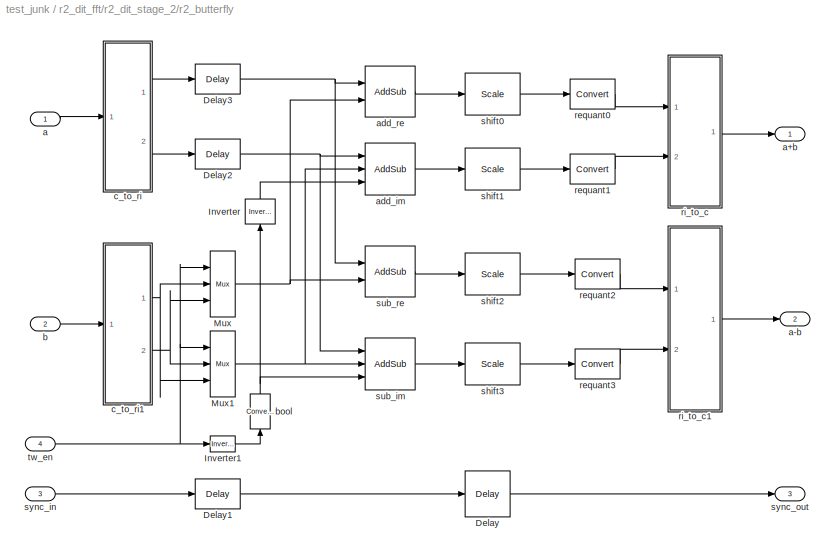
BLOCK [SubSystem] r2_dit_fft/r2_dit_stage_2/r2_butterfly
  AttributesFormatString = shift 0
  MinAlgLoopOccurrences = off
  Ports = [4, 3]
  RTWSystemCode = Auto
  TreatAsAtomicUnit = off
  UserData = DataTag40
  UserDataPersistent = on
BLOCK [Reference] r2_dit_fft/r2_dit_stage_2/r2_butterfly/Delay  REF=xbsIndex_r3/Delay
  Ports = [1, 1]
  SourceBlock = xbsIndex_r3/Delay
  SourceType = Xilinx Delay Block
  accept_only_valid = off
  dbl_ovrd = off
  en = off
  explicit_period = off
  init_zero = on
  latency = 1
  period = 1
  reg_retiming = off
  show_param = off
  xl_area = [0, 0, 0, 0, 0, 0, 0]
  xl_use_area = off
BLOCK [Reference] r2_dit_fft/r2_dit_stage_2/r2_butterfly/Delay1  REF=xbsIndex_r3/Delay
  Ports = [1, 1]
  SourceBlock = xbsIndex_r3/Delay
  SourceType = Xilinx Delay Block
  accept_only_valid = off
  dbl_ovrd = off
  en = off
  explicit_period = off
  init_zero = on
  latency = 1
  period = 1
  reg_retiming = off
  show_param = off
  xl_area = [0, 0, 0, 0, 0, 0, 0]
  xl_use_area = off
BLOCK [Reference] r2_dit_fft/r2_dit_stage_2/r2_butterfly/Delay2  REF=xbsIndex_r3/Delay
  Ports = [1, 1]
  SourceBlock = xbsIndex_r3/Delay
  SourceType = Xilinx Delay Block
  accept_only_valid = off
  dbl_ovrd = off
  en = off
  explicit_period = off
  init_zero = on
  latency = 1
  period = 1
  reg_retiming = off
  show_param = off
  xl_area = [0, 0, 0, 0, 0, 0, 0]
  xl_use_area = off
BLOCK [Reference] r2_dit_fft/r2_dit_stage_2/r2_butterfly/Delay3  REF=xbsIndex_r3/Delay
  Ports = [1, 1]
  SourceBlock = xbsIndex_r3/Delay
  SourceType = Xilinx Delay Block
  accept_only_valid = off
  dbl_ovrd = off
  en = off
  explicit_period = off
  init_zero = on
  latency = 1
  period = 1
  reg_retiming = off
  show_param = off
  xl_area = [0, 0, 0, 0, 0, 0, 0]
  xl_use_area = off
BLOCK [Reference] r2_dit_fft/r2_dit_stage_2/r2_butterfly/Inverter  REF=xbsIndex_r3/Inverter
  Ports = [1, 1]
  SourceBlock = xbsIndex_r3/Inverter
  SourceType = Xilinx Inverter
  dbl_ovrd = off
  en = off
  explicit_period = off
  latency = 0
  period = 1
  show_param = off
  xl_area = [0, 0, 0, 0, 0, 0, 0]
  xl_use_area = off
BLOCK [Reference] r2_dit_fft/r2_dit_stage_2/r2_butterfly/Inverter1  REF=xbsIndex_r3/Inverter
  Ports = [1, 1]
  SourceBlock = xbsIndex_r3/Inverter
  SourceType = Xilinx Inverter
  dbl_ovrd = off
  en = off
  explicit_period = off
  latency = 1
  period = 1
  show_param = off
  xl_area = [0, 0, 0, 0, 0, 0, 0]
  xl_use_area = off
BLOCK [Reference] r2_dit_fft/r2_dit_stage_2/r2_butterfly/Mux  REF=xbsIndex_r3/Mux
  Ports = [3, 1]
  SourceBlock = xbsIndex_r3/Mux
  SourceType = Xilinx Multiplexer Block
  arith_type = Signed  (2's comp)
  bin_pt = 2
  dbl_ovrd = off
  en = off
  explicit_period = off
  gen_core = off
  inputs = 2
  latency = 1
  mux_type = off
  n_bits = 8
  overflow = Wrap
  period = 1
  precision = Full
  quantization = Truncate
  show_param = off
  use_rpm = off
  xl_area = [0, 0, 0, 0, 0, 0, 0]
  xl_use_area = off
BLOCK [Reference] r2_dit_fft/r2_dit_stage_2/r2_butterfly/Mux1  REF=xbsIndex_r3/Mux
  Ports = [3, 1]
  SourceBlock = xbsIndex_r3/Mux
  SourceType = Xilinx Multiplexer Block
  arith_type = Signed  (2's comp)
  bin_pt = 2
  dbl_ovrd = off
  en = off
  explicit_period = off
  gen_core = off
  inputs = 2
  latency = 1
  mux_type = off
  n_bits = 8
  overflow = Wrap
  period = 1
  precision = Full
  quantization = Truncate
  show_param = off
  use_rpm = off
  xl_area = [0, 0, 0, 0, 0, 0, 0]
  xl_use_area = off
BLOCK [Inport] r2_dit_fft/r2_dit_stage_2/r2_butterfly/a
  IconDisplay = Port number
  LatchInput = off
  Port = 1
BLOCK [Outport] r2_dit_fft/r2_dit_stage_2/r2_butterfly/a+b
  BusOutputAsStruct = off
  IconDisplay = Port number
BLOCK [Outport] r2_dit_fft/r2_dit_stage_2/r2_butterfly/a-b
  BusOutputAsStruct = off
  IconDisplay = Port number
  Port = 2
BLOCK [Reference] r2_dit_fft/r2_dit_stage_2/r2_butterfly/add_im  REF=xbsIndex_r3/AddSub
  Ports = [3, 1]
  SourceBlock = xbsIndex_r3/AddSub
  SourceType = Xilinx Adder/Subtractor
  arith_type = Unsigned
  bin_pt = 2
  dbl_ovrd = off
  en = off
  explicit_period = off
  gen_core = off
  latency = 1
  mode = Addition or Subtraction
  n_bits = 8
  overflow = Wrap
  period = 1
  pipeline = on
  precision = Full
  quantization = Truncate
  show_param = on
  use_carryin = off
  use_carryout = off
  use_core = on
  use_rpm = on
  xl_area = [0, 0, 0, 0, 0, 0, 0]
  xl_use_area = off
BLOCK [Reference] r2_dit_fft/r2_dit_stage_2/r2_butterfly/add_re  REF=xbsIndex_r3/AddSub
  Ports = [2, 1]
  SourceBlock = xbsIndex_r3/AddSub
  SourceType = Xilinx Adder/Subtractor
  arith_type = Unsigned
  bin_pt = 2
  dbl_ovrd = off
  en = off
  explicit_period = off
  gen_core = off
  latency = 1
  mode = Addition
  n_bits = 8
  overflow = Wrap
  period = 1
  pipeline = on
  precision = Full
  quantization = Truncate
  show_param = on
  use_carryin = off
  use_carryout = off
  use_core = on
  use_rpm = on
  xl_area = [0, 0, 0, 0, 0, 0, 0]
  xl_use_area = off
BLOCK [Inport] r2_dit_fft/r2_dit_stage_2/r2_butterfly/b
  IconDisplay = Port number
  LatchInput = off
  Port = 2
BLOCK [Reference] r2_dit_fft/r2_dit_stage_2/r2_butterfly/bool  REF=xbsIndex_r3/Convert
  Ports = [1, 1]
  SourceBlock = xbsIndex_r3/Convert
  SourceType = Xilinx Converter Block
  arith_type = Boolean
  bin_pt = 6
  dbl_ovrd = off
  explicit_period = off
  inserted_by_tool = off
  latency = 0
  n_bits = 8
  overflow = Wrap
  period = 1
  pipeline = off
  quantization = Truncate
  show_param = off
  xl_area = [0, 0, 0, 0, 0, 0, 0]
  xl_use_area = off
BLOCK [SubSystem] r2_dit_fft/r2_dit_stage_2/r2_butterfly/c_to_ri
  AttributesFormatString = 9_0 r/i
  MinAlgLoopOccurrences = off
  Ports = [1, 2]
  RTWSystemCode = Auto
  TreatAsAtomicUnit = off
  UserData = DataTag41
  UserDataPersistent = on
BLOCK [Inport] r2_dit_fft/r2_dit_stage_2/r2_butterfly/c_to_ri/c
  IconDisplay = Port number
  LatchInput = off
  Port = 1
BLOCK [Reference] r2_dit_fft/r2_dit_stage_2/r2_butterfly/c_to_ri/force_im  REF=xbsIndex_r3/Reinterpret
  Ports = [1, 1]
  SourceBlock = xbsIndex_r3/Reinterpret
  SourceType = Xilinx Type Reinterpreting Block
  arith_type = Signed  (2's comp)
  bin_pt = 0
  force_arith_type = on
  force_bin_pt = on
  force_valid = on
BLOCK [Reference] r2_dit_fft/r2_dit_stage_2/r2_butterfly/c_to_ri/force_re  REF=xbsIndex_r3/Reinterpret
  Ports = [1, 1]
  SourceBlock = xbsIndex_r3/Reinterpret
  SourceType = Xilinx Type Reinterpreting Block
  arith_type = Signed  (2's comp)
  bin_pt = 0
  force_arith_type = on
  force_bin_pt = on
  force_valid = on
BLOCK [Outport] r2_dit_fft/r2_dit_stage_2/r2_butterfly/c_to_ri/im
  BusOutputAsStruct = off
  IconDisplay = Port number
  Port = 2
BLOCK [Outport] r2_dit_fft/r2_dit_stage_2/r2_butterfly/c_to_ri/re
  BusOutputAsStruct = off
  IconDisplay = Port number
BLOCK [Reference] r2_dit_fft/r2_dit_stage_2/r2_butterfly/c_to_ri/slice_im  REF=xbsIndex_r3/Slice
  Ports = [1, 1]
  SourceBlock = xbsIndex_r3/Slice
  SourceType = Xilinx Slice Block
  base0 = LSB of Input
  base1 = MSB of Input
  bit0 = 0
  bit1 = 0
  boolean_output = off
  dbl_ovrd = off
  explicit_period = off
  mode = Lower Bit Location + Width
  nbits = 9
  period = 1
BLOCK [Reference] r2_dit_fft/r2_dit_stage_2/r2_butterfly/c_to_ri/slice_re  REF=xbsIndex_r3/Slice
  Ports = [1, 1]
  SourceBlock = xbsIndex_r3/Slice
  SourceType = Xilinx Slice Block
  base0 = LSB of Input
  base1 = MSB of Input
  bit0 = 0
  bit1 = 0
  boolean_output = off
  dbl_ovrd = off
  explicit_period = off
  mode = Upper Bit Location + Width
  nbits = 9
  period = 1
BLOCK [SubSystem] r2_dit_fft/r2_dit_stage_2/r2_butterfly/c_to_ri1
  AttributesFormatString = 9_0 r/i
  MinAlgLoopOccurrences = off
  Ports = [1, 2]
  RTWSystemCode = Auto
  TreatAsAtomicUnit = off
  UserData = DataTag42
  UserDataPersistent = on
BLOCK [Inport] r2_dit_fft/r2_dit_stage_2/r2_butterfly/c_to_ri1/c
  IconDisplay = Port number
  LatchInput = off
  Port = 1
BLOCK [Reference] r2_dit_fft/r2_dit_stage_2/r2_butterfly/c_to_ri1/force_im  REF=xbsIndex_r3/Reinterpret
  Ports = [1, 1]
  SourceBlock = xbsIndex_r3/Reinterpret
  SourceType = Xilinx Type Reinterpreting Block
  arith_type = Signed  (2's comp)
  bin_pt = 0
  force_arith_type = on
  force_bin_pt = on
  force_valid = on
BLOCK [Reference] r2_dit_fft/r2_dit_stage_2/r2_butterfly/c_to_ri1/force_re  REF=xbsIndex_r3/Reinterpret
  Ports = [1, 1]
  SourceBlock = xbsIndex_r3/Reinterpret
  SourceType = Xilinx Type Reinterpreting Block
  arith_type = Signed  (2's comp)
  bin_pt = 0
  force_arith_type = on
  force_bin_pt = on
  force_valid = on
BLOCK [Outport] r2_dit_fft/r2_dit_stage_2/r2_butterfly/c_to_ri1/im
  BusOutputAsStruct = off
  IconDisplay = Port number
  Port = 2
BLOCK [Outport] r2_dit_fft/r2_dit_stage_2/r2_butterfly/c_to_ri1/re
  BusOutputAsStruct = off
  IconDisplay = Port number
BLOCK [Reference] r2_dit_fft/r2_dit_stage_2/r2_butterfly/c_to_ri1/slice_im  REF=xbsIndex_r3/Slice
  Ports = [1, 1]
  SourceBlock = xbsIndex_r3/Slice
  SourceType = Xilinx Slice Block
  base0 = LSB of Input
  base1 = MSB of Input
  bit0 = 0
  bit1 = 0
  boolean_output = off
  dbl_ovrd = off
  explicit_period = off
  mode = Lower Bit Location + Width
  nbits = 9
  period = 1
BLOCK [Reference] r2_dit_fft/r2_dit_stage_2/r2_butterfly/c_to_ri1/slice_re  REF=xbsIndex_r3/Slice
  Ports = [1, 1]
  SourceBlock = xbsIndex_r3/Slice
  SourceType = Xilinx Slice Block
  base0 = LSB of Input
  base1 = MSB of Input
  bit0 = 0
  bit1 = 0
  boolean_output = off
  dbl_ovrd = off
  explicit_period = off
  mode = Upper Bit Location + Width
  nbits = 9
  period = 1
BLOCK [Reference] r2_dit_fft/r2_dit_stage_2/r2_butterfly/requant0  REF=xbsIndex_r3/Convert
  Ports = [1, 1]
  SourceBlock = xbsIndex_r3/Convert
  SourceType = Xilinx Converter Block
  arith_type = Signed  (2's comp)
  bin_pt = 0
  dbl_ovrd = off
  explicit_period = off
  inserted_by_tool = off
  latency = 0
  n_bits = 10
  overflow = Wrap
  period = 1
  pipeline = on
  quantization = Truncate
  show_param = on
  xl_area = [0, 0, 0, 0, 0, 0, 0]
  xl_use_area = off
BLOCK [Reference] r2_dit_fft/r2_dit_stage_2/r2_butterfly/requant1  REF=xbsIndex_r3/Convert
  Ports = [1, 1]
  SourceBlock = xbsIndex_r3/Convert
  SourceType = Xilinx Converter Block
  arith_type = Signed  (2's comp)
  bin_pt = 0
  dbl_ovrd = off
  explicit_period = off
  inserted_by_tool = off
  latency = 0
  n_bits = 10
  overflow = Wrap
  period = 1
  pipeline = on
  quantization = Truncate
  show_param = on
  xl_area = [0, 0, 0, 0, 0, 0, 0]
  xl_use_area = off
BLOCK [Reference] r2_dit_fft/r2_dit_stage_2/r2_butterfly/requant2  REF=xbsIndex_r3/Convert
  Ports = [1, 1]
  SourceBlock = xbsIndex_r3/Convert
  SourceType = Xilinx Converter Block
  arith_type = Signed  (2's comp)
  bin_pt = 0
  dbl_ovrd = off
  explicit_period = off
  inserted_by_tool = off
  latency = 0
  n_bits = 10
  overflow = Wrap
  period = 1
  pipeline = on
  quantization = Truncate
  show_param = on
  xl_area = [0, 0, 0, 0, 0, 0, 0]
  xl_use_area = off
BLOCK [Reference] r2_dit_fft/r2_dit_stage_2/r2_butterfly/requant3  REF=xbsIndex_r3/Convert
  Ports = [1, 1]
  SourceBlock = xbsIndex_r3/Convert
  SourceType = Xilinx Converter Block
  arith_type = Signed  (2's comp)
  bin_pt = 0
  dbl_ovrd = off
  explicit_period = off
  inserted_by_tool = off
  latency = 0
  n_bits = 10
  overflow = Wrap
  period = 1
  pipeline = on
  quantization = Truncate
  show_param = on
  xl_area = [0, 0, 0, 0, 0, 0, 0]
  xl_use_area = off
BLOCK [SubSystem] r2_dit_fft/r2_dit_stage_2/r2_butterfly/ri_to_c
  MinAlgLoopOccurrences = off
  Ports = [2, 1]
  RTWSystemCode = Auto
  TreatAsAtomicUnit = off
  UserData = DataTag43
  UserDataPersistent = on
BLOCK [Outport] r2_dit_fft/r2_dit_stage_2/r2_butterfly/ri_to_c/c
  BusOutputAsStruct = off
  IconDisplay = Port number
BLOCK [Reference] r2_dit_fft/r2_dit_stage_2/r2_butterfly/ri_to_c/concat  REF=xbsIndex_r3/Concat
  Ports = [2, 1]
  SourceBlock = xbsIndex_r3/Concat
  SourceType = Xilinx Bus Concatenator
  dbl_ovrd = off
  explicit_period = off
  num_inputs = 2
  period = 1
BLOCK [Reference] r2_dit_fft/r2_dit_stage_2/r2_butterfly/ri_to_c/force_im  REF=xbsIndex_r3/Reinterpret
  Ports = [1, 1]
  SourceBlock = xbsIndex_r3/Reinterpret
  SourceType = Xilinx Type Reinterpreting Block
  arith_type = Unsigned
  bin_pt = 0
  force_arith_type = on
  force_bin_pt = on
  force_valid = on
BLOCK [Reference] r2_dit_fft/r2_dit_stage_2/r2_butterfly/ri_to_c/force_re  REF=xbsIndex_r3/Reinterpret
  Ports = [1, 1]
  SourceBlock = xbsIndex_r3/Reinterpret
  SourceType = Xilinx Type Reinterpreting Block
  arith_type = Unsigned
  bin_pt = 0
  force_arith_type = on
  force_bin_pt = on
  force_valid = on
BLOCK [Inport] r2_dit_fft/r2_dit_stage_2/r2_butterfly/ri_to_c/im
  IconDisplay = Port number
  LatchInput = off
  Port = 2
BLOCK [Inport] r2_dit_fft/r2_dit_stage_2/r2_butterfly/ri_to_c/re
  IconDisplay = Port number
  LatchInput = off
  Port = 1
BLOCK [SubSystem] r2_dit_fft/r2_dit_stage_2/r2_butterfly/ri_to_c1
  MinAlgLoopOccurrences = off
  Ports = [2, 1]
  RTWSystemCode = Auto
  TreatAsAtomicUnit = off
  UserData = DataTag44
  UserDataPersistent = on
BLOCK [Outport] r2_dit_fft/r2_dit_stage_2/r2_butterfly/ri_to_c1/c
  BusOutputAsStruct = off
  IconDisplay = Port number
BLOCK [Reference] r2_dit_fft/r2_dit_stage_2/r2_butterfly/ri_to_c1/concat  REF=xbsIndex_r3/Concat
  Ports = [2, 1]
  SourceBlock = xbsIndex_r3/Concat
  SourceType = Xilinx Bus Concatenator
  dbl_ovrd = off
  explicit_period = off
  num_inputs = 2
  period = 1
BLOCK [Reference] r2_dit_fft/r2_dit_stage_2/r2_butterfly/ri_to_c1/force_im  REF=xbsIndex_r3/Reinterpret
  Ports = [1, 1]
  SourceBlock = xbsIndex_r3/Reinterpret
  SourceType = Xilinx Type Reinterpreting Block
  arith_type = Unsigned
  bin_pt = 0
  force_arith_type = on
  force_bin_pt = on
  force_valid = on
BLOCK [Reference] r2_dit_fft/r2_dit_stage_2/r2_butterfly/ri_to_c1/force_re  REF=xbsIndex_r3/Reinterpret
  Ports = [1, 1]
  SourceBlock = xbsIndex_r3/Reinterpret
  SourceType = Xilinx Type Reinterpreting Block
  arith_type = Unsigned
  bin_pt = 0
  force_arith_type = on
  force_bin_pt = on
  force_valid = on
BLOCK [Inport] r2_dit_fft/r2_dit_stage_2/r2_butterfly/ri_to_c1/im
  IconDisplay = Port number
  LatchInput = off
  Port = 2
BLOCK [Inport] r2_dit_fft/r2_dit_stage_2/r2_butterfly/ri_to_c1/re
  IconDisplay = Port number
  LatchInput = off
  Port = 1
BLOCK [Reference] r2_dit_fft/r2_dit_stage_2/r2_butterfly/shift0  REF=xbsIndex_r3/Scale
  Ports = [1, 1]
  SourceBlock = xbsIndex_r3/Scale
  SourceType = Xilinx Scaling Block
  dbl_ovrd = off
  explicit_period = off
  period = 1
  scale_factor = 0
BLOCK [Reference] r2_dit_fft/r2_dit_stage_2/r2_butterfly/shift1  REF=xbsIndex_r3/Scale
  Ports = [1, 1]
  SourceBlock = xbsIndex_r3/Scale
  SourceType = Xilinx Scaling Block
  dbl_ovrd = off
  explicit_period = off
  period = 1
  scale_factor = 0
BLOCK [Reference] r2_dit_fft/r2_dit_stage_2/r2_butterfly/shift2  REF=xbsIndex_r3/Scale
  Ports = [1, 1]
  SourceBlock = xbsIndex_r3/Scale
  SourceType = Xilinx Scaling Block
  dbl_ovrd = off
  explicit_period = off
  period = 1
  scale_factor = 0
BLOCK [Reference] r2_dit_fft/r2_dit_stage_2/r2_butterfly/shift3  REF=xbsIndex_r3/Scale
  Ports = [1, 1]
  SourceBlock = xbsIndex_r3/Scale
  SourceType = Xilinx Scaling Block
  dbl_ovrd = off
  explicit_period = off
  period = 1
  scale_factor = 0
BLOCK [Reference] r2_dit_fft/r2_dit_stage_2/r2_butterfly/sub_im  REF=xbsIndex_r3/AddSub
  Ports = [3, 1]
  SourceBlock = xbsIndex_r3/AddSub
  SourceType = Xilinx Adder/Subtractor
  arith_type = Unsigned
  bin_pt = 2
  dbl_ovrd = off
  en = off
  explicit_period = off
  gen_core = off
  latency = 1
  mode = Addition or Subtraction
  n_bits = 8
  overflow = Wrap
  period = 1
  pipeline = on
  precision = Full
  quantization = Truncate
  show_param = on
  use_carryin = off
  use_carryout = off
  use_core = on
  use_rpm = on
  xl_area = [0, 0, 0, 0, 0, 0, 0]
  xl_use_area = off
BLOCK [Reference] r2_dit_fft/r2_dit_stage_2/r2_butterfly/sub_re  REF=xbsIndex_r3/AddSub
  Ports = [2, 1]
  SourceBlock = xbsIndex_r3/AddSub
  SourceType = Xilinx Adder/Subtractor
  arith_type = Unsigned
  bin_pt = 2
  dbl_ovrd = off
  en = off
  explicit_period = off
  gen_core = off
  latency = 1
  mode = Subtraction
  n_bits = 8
  overflow = Wrap
  period = 1
  pipeline = on
  precision = Full
  quantization = Truncate
  show_param = on
  use_carryin = off
  use_carryout = off
  use_core = on
  use_rpm = on
  xl_area = [0, 0, 0, 0, 0, 0, 0]
  xl_use_area = off
BLOCK [Inport] r2_dit_fft/r2_dit_stage_2/r2_butterfly/sync_in
  IconDisplay = Port number
  LatchInput = off
  Port = 3
BLOCK [Outport] r2_dit_fft/r2_dit_stage_2/r2_butterfly/sync_out
  BusOutputAsStruct = off
  IconDisplay = Port number
  Port = 3
BLOCK [Inport] r2_dit_fft/r2_dit_stage_2/r2_butterfly/tw_en
  IconDisplay = Port number
  LatchInput = off
  Port = 4
BLOCK [SubSystem] r2_dit_fft/r2_dit_stage_2/r2_twiddle
  MinAlgLoopOccurrences = off
  Ports = [3, 4]
  RTWSystemCode = Auto
  TreatAsAtomicUnit = off
  UserData = DataTag45
  UserDataPersistent = on
BLOCK [Reference] r2_dit_fft/r2_dit_stage_2/r2_twiddle/Counter  REF=xbsIndex_r3/Counter
  Ports = [1, 1]
  SourceBlock = xbsIndex_r3/Counter
  SourceType = Xilinx Counter Block
  arith_type = Unsigned
  bin_pt = 0
  cnt_by_val = 1
  cnt_to = Inf
  cnt_type = Free Running
  dbl_ovrd = off
  en = off
  explicit_period = off
  gen_core = off
  load_pin = off
  n_bits = 9
  operation = Up
  period = 1
  rst = on
  show_param = on
  start_count = 0
  use_rpm = on
  xl_area = [0, 0, 0, 0, 0, 0, 0]
  xl_use_area = off
BLOCK [Inport] r2_dit_fft/r2_dit_stage_2/r2_twiddle/a_in
  IconDisplay = Port number
  LatchInput = off
  Port = 1
BLOCK [Outport] r2_dit_fft/r2_dit_stage_2/r2_twiddle/a_out
  BusOutputAsStruct = off
  IconDisplay = Port number
BLOCK [Inport] r2_dit_fft/r2_dit_stage_2/r2_twiddle/b_in
  IconDisplay = Port number
  LatchInput = off
  Port = 2
BLOCK [Outport] r2_dit_fft/r2_dit_stage_2/r2_twiddle/b_out
  BusOutputAsStruct = off
  IconDisplay = Port number
  Port = 2
BLOCK [Inport] r2_dit_fft/r2_dit_stage_2/r2_twiddle/sync_in
  IconDisplay = Port number
  LatchInput = off
  Port = 3
BLOCK [Outport] r2_dit_fft/r2_dit_stage_2/r2_twiddle/sync_out
  BusOutputAsStruct = off
  IconDisplay = Port number
  Port = 3
BLOCK [Reference] r2_dit_fft/r2_dit_stage_2/r2_twiddle/top_bit  REF=xbsIndex_r3/Slice
  Ports = [1, 1]
  SourceBlock = xbsIndex_r3/Slice
  SourceType = Xilinx Slice Block
  base0 = LSB of Input
  base1 = MSB of Input
  bit0 = 0
  bit1 = 0
  boolean_output = off
  dbl_ovrd = off
  explicit_period = off
  mode = Upper Bit Location + Width
  nbits = 1
  period = 1
BLOCK [Outport] r2_dit_fft/r2_dit_stage_2/r2_twiddle/tw_en
  BusOutputAsStruct = off
  IconDisplay = Port number
  Port = 4
BLOCK [Inport] r2_dit_fft/r2_dit_stage_2/sync_in
  IconDisplay = Port number
  LatchInput = off
  Port = 3
BLOCK [Outport] r2_dit_fft/r2_dit_stage_2/sync_out
  BusOutputAsStruct = off
  IconDisplay = Port number
  Port = 3
BLOCK [SubSystem] r2_dit_fft/r2_dit_stage_3
  AttributesFormatString = stage 3 of 10\ndelay bram\ntwiddle dist\nshift 0
  MinAlgLoopOccurrences = off
  Ports = [3, 3]
  RTWSystemCode = Auto
  TreatAsAtomicUnit = off
  UserData = DataTag46
  UserDataPersistent = on
BLOCK [Inport] r2_dit_fft/r2_dit_stage_3/a_in
  IconDisplay = Port number
  LatchInput = off
  Port = 1
BLOCK [Outport] r2_dit_fft/r2_dit_stage_3/a_out
  BusOutputAsStruct = off
  IconDisplay = Port number
BLOCK [Inport] r2_dit_fft/r2_dit_stage_3/b_in
  IconDisplay = Port number
  LatchInput = off
  Port = 2
BLOCK [Outport] r2_dit_fft/r2_dit_stage_3/b_out
  BusOutputAsStruct = off
  IconDisplay = Port number
  Port = 2
BLOCK [SubSystem] r2_dit_fft/r2_dit_stage_3/biplex_commutator
  AttributesFormatString = size = 256\ncomplex delay
  MinAlgLoopOccurrences = off
  Ports = [3, 3]
  RTWSystemCode = Auto
  TreatAsAtomicUnit = off
  UserData = DataTag47
  UserDataPersistent = on
BLOCK [Outport] r2_dit_fft/r2_dit_stage_3/biplex_commutator/AhiBhi
  BusOutputAsStruct = off
  IconDisplay = Port number
  Port = 2
BLOCK [Inport] r2_dit_fft/r2_dit_stage_3/biplex_commutator/AloAhi
  IconDisplay = Port number
  LatchInput = off
  Port = 1
BLOCK [Outport] r2_dit_fft/r2_dit_stage_3/biplex_commutator/AloBlo
  BusOutputAsStruct = off
  IconDisplay = Port number
BLOCK [Inport] r2_dit_fft/r2_dit_stage_3/biplex_commutator/BloBhi
  IconDisplay = Port number
  LatchInput = off
  Port = 2
BLOCK [Reference] r2_dit_fft/r2_dit_stage_3/biplex_commutator/Counter  REF=xbsIndex_r3/Counter
  Ports = [1, 1]
  SourceBlock = xbsIndex_r3/Counter
  SourceType = Xilinx Counter Block
  arith_type = Unsigned
  bin_pt = 0
  cnt_by_val = 1
  cnt_to = Inf
  cnt_type = Free Running
  dbl_ovrd = off
  en = off
  explicit_period = off
  gen_core = off
  load_pin = off
  n_bits = 8
  operation = Up
  period = 1
  rst = on
  show_param = off
  start_count = 0
  use_rpm = on
  xl_area = [0, 0, 0, 0, 0, 0, 0]
  xl_use_area = off
BLOCK [Reference] r2_dit_fft/r2_dit_stage_3/biplex_commutator/Delay  REF=xbsIndex_r3/Delay
  Ports = [1, 1]
  SourceBlock = xbsIndex_r3/Delay
  SourceType = Xilinx Delay Block
  accept_only_valid = off
  dbl_ovrd = off
  en = off
  explicit_period = off
  init_zero = on
  latency = 129
  period = 1
  reg_retiming = off
  show_param = off
  xl_area = [0, 0, 0, 0, 0, 0, 0]
  xl_use_area = off
BLOCK [Reference] r2_dit_fft/r2_dit_stage_3/biplex_commutator/Mux  REF=xbsIndex_r3/Mux
  Ports = [3, 1]
  SourceBlock = xbsIndex_r3/Mux
  SourceType = Xilinx Multiplexer Block
  arith_type = Signed  (2's comp)
  bin_pt = 2
  dbl_ovrd = off
  en = off
  explicit_period = off
  gen_core = off
  inputs = 2
  latency = 1
  mux_type = off
  n_bits = 8
  overflow = Wrap
  period = 1
  precision = Full
  quantization = Truncate
  show_param = off
  use_rpm = off
  xl_area = [0, 0, 0, 0, 0, 0, 0]
  xl_use_area = off
BLOCK [Reference] r2_dit_fft/r2_dit_stage_3/biplex_commutator/Mux1  REF=xbsIndex_r3/Mux
  Ports = [3, 1]
  SourceBlock = xbsIndex_r3/Mux
  SourceType = Xilinx Multiplexer Block
  arith_type = Signed  (2's comp)
  bin_pt = 2
  dbl_ovrd = off
  en = off
  explicit_period = off
  gen_core = off
  inputs = 2
  latency = 1
  mux_type = off
  n_bits = 8
  overflow = Wrap
  period = 1
  precision = Full
  quantization = Truncate
  show_param = on
  use_rpm = off
  xl_area = [0, 0, 0, 0, 0, 0, 0]
  xl_use_area = off
BLOCK [SubSystem] r2_dit_fft/r2_dit_stage_3/biplex_commutator/delay_b
  AttributesFormatString = depth = 128\ndelay bram
  MinAlgLoopOccurrences = off
  Ports = [1, 1]
  RTWSystemCode = Auto
  TreatAsAtomicUnit = off
  UserData = DataTag48
  UserDataPersistent = on
BLOCK [SubSystem] r2_dit_fft/r2_dit_stage_3/biplex_commutator/delay_b/c_to_ri
  AttributesFormatString = 10_0 r/i
  MinAlgLoopOccurrences = off
  Ports = [1, 2]
  RTWSystemCode = Auto
  TreatAsAtomicUnit = off
  UserData = DataTag49
  UserDataPersistent = on
BLOCK [Inport] r2_dit_fft/r2_dit_stage_3/biplex_commutator/delay_b/c_to_ri/c
  IconDisplay = Port number
  LatchInput = off
  Port = 1
BLOCK [Reference] r2_dit_fft/r2_dit_stage_3/biplex_commutator/delay_b/c_to_ri/force_im  REF=xbsIndex_r3/Reinterpret
  Ports = [1, 1]
  SourceBlock = xbsIndex_r3/Reinterpret
  SourceType = Xilinx Type Reinterpreting Block
  arith_type = Signed  (2's comp)
  bin_pt = 0
  force_arith_type = on
  force_bin_pt = on
  force_valid = on
BLOCK [Reference] r2_dit_fft/r2_dit_stage_3/biplex_commutator/delay_b/c_to_ri/force_re  REF=xbsIndex_r3/Reinterpret
  Ports = [1, 1]
  SourceBlock = xbsIndex_r3/Reinterpret
  SourceType = Xilinx Type Reinterpreting Block
  arith_type = Signed  (2's comp)
  bin_pt = 0
  force_arith_type = on
  force_bin_pt = on
  force_valid = on
BLOCK [Outport] r2_dit_fft/r2_dit_stage_3/biplex_commutator/delay_b/c_to_ri/im
  BusOutputAsStruct = off
  IconDisplay = Port number
  Port = 2
BLOCK [Outport] r2_dit_fft/r2_dit_stage_3/biplex_commutator/delay_b/c_to_ri/re
  BusOutputAsStruct = off
  IconDisplay = Port number
BLOCK [Reference] r2_dit_fft/r2_dit_stage_3/biplex_commutator/delay_b/c_to_ri/slice_im  REF=xbsIndex_r3/Slice
  Ports = [1, 1]
  SourceBlock = xbsIndex_r3/Slice
  SourceType = Xilinx Slice Block
  base0 = LSB of Input
  base1 = MSB of Input
  bit0 = 0
  bit1 = 0
  boolean_output = off
  dbl_ovrd = off
  explicit_period = off
  mode = Lower Bit Location + Width
  nbits = 10
  period = 1
BLOCK [Reference] r2_dit_fft/r2_dit_stage_3/biplex_commutator/delay_b/c_to_ri/slice_re  REF=xbsIndex_r3/Slice
  Ports = [1, 1]
  SourceBlock = xbsIndex_r3/Slice
  SourceType = Xilinx Slice Block
  base0 = LSB of Input
  base1 = MSB of Input
  bit0 = 0
  bit1 = 0
  boolean_output = off
  dbl_ovrd = off
  explicit_period = off
  mode = Upper Bit Location + Width
  nbits = 10
  period = 1
BLOCK [SubSystem] r2_dit_fft/r2_dit_stage_3/biplex_commutator/delay_b/delay_im
  AttributesFormatString = bram depth = 128
  MinAlgLoopOccurrences = off
  Ports = [1, 1]
  RTWSystemCode = Auto
  TreatAsAtomicUnit = off
  UserData = DataTag50
  UserDataPersistent = on
BLOCK [Reference] r2_dit_fft/r2_dit_stage_3/biplex_commutator/delay_b/delay_im/Constant  REF=xbsIndex_r3/Constant
  Ports = [0, 1]
  SourceBlock = xbsIndex_r3/Constant
  SourceType = Xilinx Constant Block
  arith_type = Boolean
  bin_pt = 0
  carry = CIN
  const = 1
  dbl_ovrd = off
  equ = P=C
  explicit_period = on
  inp1 = P
  inp2 = PCIN>>17
  iostate = 0
  n_bits = 1
  opr = +
  opselect = C
  period = 1
BLOCK [Reference] r2_dit_fft/r2_dit_stage_3/biplex_commutator/delay_b/delay_im/Counter  REF=xbsIndex_r3/Counter
  Ports = [0, 1]
  SourceBlock = xbsIndex_r3/Counter
  SourceType = Xilinx Counter Block
  arith_type = Unsigned
  bin_pt = 0
  cnt_by_val = 1
  cnt_to = 126
  cnt_type = Count Limited
  dbl_ovrd = off
  en = off
  explicit_period = off
  gen_core = off
  load_pin = off
  n_bits = 7
  operation = Up
  period = 1
  rst = off
  show_param = off
  start_count = 0
  use_rpm = on
  xl_area = [0, 0, 0, 0, 0, 0, 0]
  xl_use_area = off
BLOCK [Reference] r2_dit_fft/r2_dit_stage_3/biplex_commutator/delay_b/delay_im/bram  REF=xbsIndex_r3/Single Port RAM
  Ports = [3, 1]
  SourceBlock = xbsIndex_r3/Single Port RAM
  SourceType = Xilinx Single Port Random Access Memory
  dbl_ovrd = off
  depth = 128
  distributed_mem = off
  en = off
  explicit_period = off
  gen_core = off
  initVector = 0
  init_reg = 0
  init_zero = on
  latency = 1
  period = 1
  rst = off
  show_param = off
  use_rpm = off
  write_mode = Read Before Write
  xl_area = [0, 0, 0, 0, 0, 0, 0]
  xl_use_area = off
BLOCK [Inport] r2_dit_fft/r2_dit_stage_3/biplex_commutator/delay_b/delay_im/in
  IconDisplay = Port number
  LatchInput = off
  Port = 1
BLOCK [Outport] r2_dit_fft/r2_dit_stage_3/biplex_commutator/delay_b/delay_im/out
  BusOutputAsStruct = off
  IconDisplay = Port number
BLOCK [SubSystem] r2_dit_fft/r2_dit_stage_3/biplex_commutator/delay_b/delay_re
  AttributesFormatString = bram depth = 128
  MinAlgLoopOccurrences = off
  Ports = [1, 1]
  RTWSystemCode = Auto
  TreatAsAtomicUnit = off
  UserData = DataTag51
  UserDataPersistent = on
BLOCK [Reference] r2_dit_fft/r2_dit_stage_3/biplex_commutator/delay_b/delay_re/Constant  REF=xbsIndex_r3/Constant
  Ports = [0, 1]
  SourceBlock = xbsIndex_r3/Constant
  SourceType = Xilinx Constant Block
  arith_type = Boolean
  bin_pt = 0
  carry = CIN
  const = 1
  dbl_ovrd = off
  equ = P=C
  explicit_period = on
  inp1 = P
  inp2 = PCIN>>17
  iostate = 0
  n_bits = 1
  opr = +
  opselect = C
  period = 1
BLOCK [Reference] r2_dit_fft/r2_dit_stage_3/biplex_commutator/delay_b/delay_re/Counter  REF=xbsIndex_r3/Counter
  Ports = [0, 1]
  SourceBlock = xbsIndex_r3/Counter
  SourceType = Xilinx Counter Block
  arith_type = Unsigned
  bin_pt = 0
  cnt_by_val = 1
  cnt_to = 126
  cnt_type = Count Limited
  dbl_ovrd = off
  en = off
  explicit_period = off
  gen_core = off
  load_pin = off
  n_bits = 7
  operation = Up
  period = 1
  rst = off
  show_param = off
  start_count = 0
  use_rpm = on
  xl_area = [0, 0, 0, 0, 0, 0, 0]
  xl_use_area = off
BLOCK [Reference] r2_dit_fft/r2_dit_stage_3/biplex_commutator/delay_b/delay_re/bram  REF=xbsIndex_r3/Single Port RAM
  Ports = [3, 1]
  SourceBlock = xbsIndex_r3/Single Port RAM
  SourceType = Xilinx Single Port Random Access Memory
  dbl_ovrd = off
  depth = 128
  distributed_mem = off
  en = off
  explicit_period = off
  gen_core = off
  initVector = 0
  init_reg = 0
  init_zero = on
  latency = 1
  period = 1
  rst = off
  show_param = off
  use_rpm = off
  write_mode = Read Before Write
  xl_area = [0, 0, 0, 0, 0, 0, 0]
  xl_use_area = off
BLOCK [Inport] r2_dit_fft/r2_dit_stage_3/biplex_commutator/delay_b/delay_re/in
  IconDisplay = Port number
  LatchInput = off
  Port = 1
BLOCK [Outport] r2_dit_fft/r2_dit_stage_3/biplex_commutator/delay_b/delay_re/out
  BusOutputAsStruct = off
  IconDisplay = Port number
BLOCK [Inport] r2_dit_fft/r2_dit_stage_3/biplex_commutator/delay_b/in
  IconDisplay = Port number
  LatchInput = off
  Port = 1
BLOCK [Outport] r2_dit_fft/r2_dit_stage_3/biplex_commutator/delay_b/out
  BusOutputAsStruct = off
  IconDisplay = Port number
BLOCK [SubSystem] r2_dit_fft/r2_dit_stage_3/biplex_commutator/delay_b/ri_to_c
  MinAlgLoopOccurrences = off
  Ports = [2, 1]
  RTWSystemCode = Auto
  TreatAsAtomicUnit = off
  UserData = DataTag52
  UserDataPersistent = on
BLOCK [Outport] r2_dit_fft/r2_dit_stage_3/biplex_commutator/delay_b/ri_to_c/c
  BusOutputAsStruct = off
  IconDisplay = Port number
BLOCK [Reference] r2_dit_fft/r2_dit_stage_3/biplex_commutator/delay_b/ri_to_c/concat  REF=xbsIndex_r3/Concat
  Ports = [2, 1]
  SourceBlock = xbsIndex_r3/Concat
  SourceType = Xilinx Bus Concatenator
  dbl_ovrd = off
  explicit_period = off
  num_inputs = 2
  period = 1
BLOCK [Reference] r2_dit_fft/r2_dit_stage_3/biplex_commutator/delay_b/ri_to_c/force_im  REF=xbsIndex_r3/Reinterpret
  Ports = [1, 1]
  SourceBlock = xbsIndex_r3/Reinterpret
  SourceType = Xilinx Type Reinterpreting Block
  arith_type = Unsigned
  bin_pt = 0
  force_arith_type = on
  force_bin_pt = on
  force_valid = on
BLOCK [Reference] r2_dit_fft/r2_dit_stage_3/biplex_commutator/delay_b/ri_to_c/force_re  REF=xbsIndex_r3/Reinterpret
  Ports = [1, 1]
  SourceBlock = xbsIndex_r3/Reinterpret
  SourceType = Xilinx Type Reinterpreting Block
  arith_type = Unsigned
  bin_pt = 0
  force_arith_type = on
  force_bin_pt = on
  force_valid = on
BLOCK [Inport] r2_dit_fft/r2_dit_stage_3/biplex_commutator/delay_b/ri_to_c/im
  IconDisplay = Port number
  LatchInput = off
  Port = 2
BLOCK [Inport] r2_dit_fft/r2_dit_stage_3/biplex_commutator/delay_b/ri_to_c/re
  IconDisplay = Port number
  LatchInput = off
  Port = 1
BLOCK [SubSystem] r2_dit_fft/r2_dit_stage_3/biplex_commutator/delay_lo
  AttributesFormatString = depth = 128\ndelay bram
  MinAlgLoopOccurrences = off
  Ports = [1, 1]
  RTWSystemCode = Auto
  TreatAsAtomicUnit = off
  UserData = DataTag53
  UserDataPersistent = on
BLOCK [SubSystem] r2_dit_fft/r2_dit_stage_3/biplex_commutator/delay_lo/c_to_ri
  AttributesFormatString = 10_0 r/i
  MinAlgLoopOccurrences = off
  Ports = [1, 2]
  RTWSystemCode = Auto
  TreatAsAtomicUnit = off
  UserData = DataTag54
  UserDataPersistent = on
BLOCK [Inport] r2_dit_fft/r2_dit_stage_3/biplex_commutator/delay_lo/c_to_ri/c
  IconDisplay = Port number
  LatchInput = off
  Port = 1
BLOCK [Reference] r2_dit_fft/r2_dit_stage_3/biplex_commutator/delay_lo/c_to_ri/force_im  REF=xbsIndex_r3/Reinterpret
  Ports = [1, 1]
  SourceBlock = xbsIndex_r3/Reinterpret
  SourceType = Xilinx Type Reinterpreting Block
  arith_type = Signed  (2's comp)
  bin_pt = 0
  force_arith_type = on
  force_bin_pt = on
  force_valid = on
BLOCK [Reference] r2_dit_fft/r2_dit_stage_3/biplex_commutator/delay_lo/c_to_ri/force_re  REF=xbsIndex_r3/Reinterpret
  Ports = [1, 1]
  SourceBlock = xbsIndex_r3/Reinterpret
  SourceType = Xilinx Type Reinterpreting Block
  arith_type = Signed  (2's comp)
  bin_pt = 0
  force_arith_type = on
  force_bin_pt = on
  force_valid = on
BLOCK [Outport] r2_dit_fft/r2_dit_stage_3/biplex_commutator/delay_lo/c_to_ri/im
  BusOutputAsStruct = off
  IconDisplay = Port number
  Port = 2
BLOCK [Outport] r2_dit_fft/r2_dit_stage_3/biplex_commutator/delay_lo/c_to_ri/re
  BusOutputAsStruct = off
  IconDisplay = Port number
BLOCK [Reference] r2_dit_fft/r2_dit_stage_3/biplex_commutator/delay_lo/c_to_ri/slice_im  REF=xbsIndex_r3/Slice
  Ports = [1, 1]
  SourceBlock = xbsIndex_r3/Slice
  SourceType = Xilinx Slice Block
  base0 = LSB of Input
  base1 = MSB of Input
  bit0 = 0
  bit1 = 0
  boolean_output = off
  dbl_ovrd = off
  explicit_period = off
  mode = Lower Bit Location + Width
  nbits = 10
  period = 1
BLOCK [Reference] r2_dit_fft/r2_dit_stage_3/biplex_commutator/delay_lo/c_to_ri/slice_re  REF=xbsIndex_r3/Slice
  Ports = [1, 1]
  SourceBlock = xbsIndex_r3/Slice
  SourceType = Xilinx Slice Block
  base0 = LSB of Input
  base1 = MSB of Input
  bit0 = 0
  bit1 = 0
  boolean_output = off
  dbl_ovrd = off
  explicit_period = off
  mode = Upper Bit Location + Width
  nbits = 10
  period = 1
BLOCK [SubSystem] r2_dit_fft/r2_dit_stage_3/biplex_commutator/delay_lo/delay_im
  AttributesFormatString = bram depth = 128
  MinAlgLoopOccurrences = off
  Ports = [1, 1]
  RTWSystemCode = Auto
  TreatAsAtomicUnit = off
  UserData = DataTag55
  UserDataPersistent = on
BLOCK [Reference] r2_dit_fft/r2_dit_stage_3/biplex_commutator/delay_lo/delay_im/Constant  REF=xbsIndex_r3/Constant
  Ports = [0, 1]
  SourceBlock = xbsIndex_r3/Constant
  SourceType = Xilinx Constant Block
  arith_type = Boolean
  bin_pt = 0
  carry = CIN
  const = 1
  dbl_ovrd = off
  equ = P=C
  explicit_period = on
  inp1 = P
  inp2 = PCIN>>17
  iostate = 0
  n_bits = 1
  opr = +
  opselect = C
  period = 1
BLOCK [Reference] r2_dit_fft/r2_dit_stage_3/biplex_commutator/delay_lo/delay_im/Counter  REF=xbsIndex_r3/Counter
  Ports = [0, 1]
  SourceBlock = xbsIndex_r3/Counter
  SourceType = Xilinx Counter Block
  arith_type = Unsigned
  bin_pt = 0
  cnt_by_val = 1
  cnt_to = 126
  cnt_type = Count Limited
  dbl_ovrd = off
  en = off
  explicit_period = off
  gen_core = off
  load_pin = off
  n_bits = 7
  operation = Up
  period = 1
  rst = off
  show_param = off
  start_count = 0
  use_rpm = on
  xl_area = [0, 0, 0, 0, 0, 0, 0]
  xl_use_area = off
BLOCK [Reference] r2_dit_fft/r2_dit_stage_3/biplex_commutator/delay_lo/delay_im/bram  REF=xbsIndex_r3/Single Port RAM
  Ports = [3, 1]
  SourceBlock = xbsIndex_r3/Single Port RAM
  SourceType = Xilinx Single Port Random Access Memory
  dbl_ovrd = off
  depth = 128
  distributed_mem = off
  en = off
  explicit_period = off
  gen_core = off
  initVector = 0
  init_reg = 0
  init_zero = on
  latency = 1
  period = 1
  rst = off
  show_param = off
  use_rpm = off
  write_mode = Read Before Write
  xl_area = [0, 0, 0, 0, 0, 0, 0]
  xl_use_area = off
BLOCK [Inport] r2_dit_fft/r2_dit_stage_3/biplex_commutator/delay_lo/delay_im/in
  IconDisplay = Port number
  LatchInput = off
  Port = 1
BLOCK [Outport] r2_dit_fft/r2_dit_stage_3/biplex_commutator/delay_lo/delay_im/out
  BusOutputAsStruct = off
  IconDisplay = Port number
BLOCK [SubSystem] r2_dit_fft/r2_dit_stage_3/biplex_commutator/delay_lo/delay_re
  AttributesFormatString = bram depth = 128
  MinAlgLoopOccurrences = off
  Ports = [1, 1]
  RTWSystemCode = Auto
  TreatAsAtomicUnit = off
  UserData = DataTag56
  UserDataPersistent = on
BLOCK [Reference] r2_dit_fft/r2_dit_stage_3/biplex_commutator/delay_lo/delay_re/Constant  REF=xbsIndex_r3/Constant
  Ports = [0, 1]
  SourceBlock = xbsIndex_r3/Constant
  SourceType = Xilinx Constant Block
  arith_type = Boolean
  bin_pt = 0
  carry = CIN
  const = 1
  dbl_ovrd = off
  equ = P=C
  explicit_period = on
  inp1 = P
  inp2 = PCIN>>17
  iostate = 0
  n_bits = 1
  opr = +
  opselect = C
  period = 1
BLOCK [Reference] r2_dit_fft/r2_dit_stage_3/biplex_commutator/delay_lo/delay_re/Counter  REF=xbsIndex_r3/Counter
  Ports = [0, 1]
  SourceBlock = xbsIndex_r3/Counter
  SourceType = Xilinx Counter Block
  arith_type = Unsigned
  bin_pt = 0
  cnt_by_val = 1
  cnt_to = 126
  cnt_type = Count Limited
  dbl_ovrd = off
  en = off
  explicit_period = off
  gen_core = off
  load_pin = off
  n_bits = 7
  operation = Up
  period = 1
  rst = off
  show_param = off
  start_count = 0
  use_rpm = on
  xl_area = [0, 0, 0, 0, 0, 0, 0]
  xl_use_area = off
BLOCK [Reference] r2_dit_fft/r2_dit_stage_3/biplex_commutator/delay_lo/delay_re/bram  REF=xbsIndex_r3/Single Port RAM
  Ports = [3, 1]
  SourceBlock = xbsIndex_r3/Single Port RAM
  SourceType = Xilinx Single Port Random Access Memory
  dbl_ovrd = off
  depth = 128
  distributed_mem = off
  en = off
  explicit_period = off
  gen_core = off
  initVector = 0
  init_reg = 0
  init_zero = on
  latency = 1
  period = 1
  rst = off
  show_param = off
  use_rpm = off
  write_mode = Read Before Write
  xl_area = [0, 0, 0, 0, 0, 0, 0]
  xl_use_area = off
BLOCK [Inport] r2_dit_fft/r2_dit_stage_3/biplex_commutator/delay_lo/delay_re/in
  IconDisplay = Port number
  LatchInput = off
  Port = 1
BLOCK [Outport] r2_dit_fft/r2_dit_stage_3/biplex_commutator/delay_lo/delay_re/out
  BusOutputAsStruct = off
  IconDisplay = Port number
BLOCK [Inport] r2_dit_fft/r2_dit_stage_3/biplex_commutator/delay_lo/in
  IconDisplay = Port number
  LatchInput = off
  Port = 1
BLOCK [Outport] r2_dit_fft/r2_dit_stage_3/biplex_commutator/delay_lo/out
  BusOutputAsStruct = off
  IconDisplay = Port number
BLOCK [SubSystem] r2_dit_fft/r2_dit_stage_3/biplex_commutator/delay_lo/ri_to_c
  MinAlgLoopOccurrences = off
  Ports = [2, 1]
  RTWSystemCode = Auto
  TreatAsAtomicUnit = off
  UserData = DataTag57
  UserDataPersistent = on
BLOCK [Outport] r2_dit_fft/r2_dit_stage_3/biplex_commutator/delay_lo/ri_to_c/c
  BusOutputAsStruct = off
  IconDisplay = Port number
BLOCK [Reference] r2_dit_fft/r2_dit_stage_3/biplex_commutator/delay_lo/ri_to_c/concat  REF=xbsIndex_r3/Concat
  Ports = [2, 1]
  SourceBlock = xbsIndex_r3/Concat
  SourceType = Xilinx Bus Concatenator
  dbl_ovrd = off
  explicit_period = off
  num_inputs = 2
  period = 1
BLOCK [Reference] r2_dit_fft/r2_dit_stage_3/biplex_commutator/delay_lo/ri_to_c/force_im  REF=xbsIndex_r3/Reinterpret
  Ports = [1, 1]
  SourceBlock = xbsIndex_r3/Reinterpret
  SourceType = Xilinx Type Reinterpreting Block
  arith_type = Unsigned
  bin_pt = 0
  force_arith_type = on
  force_bin_pt = on
  force_valid = on
BLOCK [Reference] r2_dit_fft/r2_dit_stage_3/biplex_commutator/delay_lo/ri_to_c/force_re  REF=xbsIndex_r3/Reinterpret
  Ports = [1, 1]
  SourceBlock = xbsIndex_r3/Reinterpret
  SourceType = Xilinx Type Reinterpreting Block
  arith_type = Unsigned
  bin_pt = 0
  force_arith_type = on
  force_bin_pt = on
  force_valid = on
BLOCK [Inport] r2_dit_fft/r2_dit_stage_3/biplex_commutator/delay_lo/ri_to_c/im
  IconDisplay = Port number
  LatchInput = off
  Port = 2
BLOCK [Inport] r2_dit_fft/r2_dit_stage_3/biplex_commutator/delay_lo/ri_to_c/re
  IconDisplay = Port number
  LatchInput = off
  Port = 1
BLOCK [Inport] r2_dit_fft/r2_dit_stage_3/biplex_commutator/sync_in
  IconDisplay = Port number
  LatchInput = off
  Port = 3
BLOCK [Outport] r2_dit_fft/r2_dit_stage_3/biplex_commutator/sync_out
  BusOutputAsStruct = off
  IconDisplay = Port number
  Port = 3
BLOCK [Reference] r2_dit_fft/r2_dit_stage_3/biplex_commutator/top_bit  REF=xbsIndex_r3/Slice
  Ports = [1, 1]
  SourceBlock = xbsIndex_r3/Slice
  SourceType = Xilinx Slice Block
  base0 = LSB of Input
  base1 = MSB of Input
  bit0 = 0
  bit1 = 0
  boolean_output = off
  dbl_ovrd = off
  explicit_period = off
  mode = Upper Bit Location + Width
  nbits = 1
  period = 1
BLOCK [SubSystem] r2_dit_fft/r2_dit_stage_3/r2_butterfly
  AttributesFormatString = shift 0
  MinAlgLoopOccurrences = off
  Ports = [3, 3]
  RTWSystemCode = Auto
  TreatAsAtomicUnit = off
  UserData = DataTag58
  UserDataPersistent = on
BLOCK [Reference] r2_dit_fft/r2_dit_stage_3/r2_butterfly/Delay  REF=xbsIndex_r3/Delay
  Ports = [1, 1]
  SourceBlock = xbsIndex_r3/Delay
  SourceType = Xilinx Delay Block
  accept_only_valid = off
  dbl_ovrd = off
  en = off
  explicit_period = off
  init_zero = on
  latency = 1
  period = 1
  reg_retiming = off
  show_param = off
  xl_area = [0, 0, 0, 0, 0, 0, 0]
  xl_use_area = off
BLOCK [Inport] r2_dit_fft/r2_dit_stage_3/r2_butterfly/a
  IconDisplay = Port number
  LatchInput = off
  Port = 1
BLOCK [Outport] r2_dit_fft/r2_dit_stage_3/r2_butterfly/a+b
  BusOutputAsStruct = off
  IconDisplay = Port number
BLOCK [Outport] r2_dit_fft/r2_dit_stage_3/r2_butterfly/a-b
  BusOutputAsStruct = off
  IconDisplay = Port number
  Port = 2
BLOCK [Reference] r2_dit_fft/r2_dit_stage_3/r2_butterfly/add_im  REF=xbsIndex_r3/AddSub
  Ports = [2, 1]
  SourceBlock = xbsIndex_r3/AddSub
  SourceType = Xilinx Adder/Subtractor
  arith_type = Unsigned
  bin_pt = 2
  dbl_ovrd = off
  en = off
  explicit_period = off
  gen_core = off
  latency = 1
  mode = Addition
  n_bits = 8
  overflow = Wrap
  period = 1
  pipeline = on
  precision = Full
  quantization = Truncate
  show_param = on
  use_carryin = off
  use_carryout = off
  use_core = on
  use_rpm = on
  xl_area = [0, 0, 0, 0, 0, 0, 0]
  xl_use_area = off
BLOCK [Reference] r2_dit_fft/r2_dit_stage_3/r2_butterfly/add_re  REF=xbsIndex_r3/AddSub
  Ports = [2, 1]
  SourceBlock = xbsIndex_r3/AddSub
  SourceType = Xilinx Adder/Subtractor
  arith_type = Unsigned
  bin_pt = 2
  dbl_ovrd = off
  en = off
  explicit_period = off
  gen_core = off
  latency = 1
  mode = Addition
  n_bits = 8
  overflow = Wrap
  period = 1
  pipeline = on
  precision = Full
  quantization = Truncate
  show_param = on
  use_carryin = off
  use_carryout = off
  use_core = on
  use_rpm = on
  xl_area = [0, 0, 0, 0, 0, 0, 0]
  xl_use_area = off
BLOCK [Inport] r2_dit_fft/r2_dit_stage_3/r2_butterfly/b
  IconDisplay = Port number
  LatchInput = off
  Port = 2
BLOCK [SubSystem] r2_dit_fft/r2_dit_stage_3/r2_butterfly/c_to_ri
  AttributesFormatString = 10_0 r/i
  MinAlgLoopOccurrences = off
  Ports = [1, 2]
  RTWSystemCode = Auto
  TreatAsAtomicUnit = off
  UserData = DataTag59
  UserDataPersistent = on
BLOCK [Inport] r2_dit_fft/r2_dit_stage_3/r2_butterfly/c_to_ri/c
  IconDisplay = Port number
  LatchInput = off
  Port = 1
BLOCK [Reference] r2_dit_fft/r2_dit_stage_3/r2_butterfly/c_to_ri/force_im  REF=xbsIndex_r3/Reinterpret
  Ports = [1, 1]
  SourceBlock = xbsIndex_r3/Reinterpret
  SourceType = Xilinx Type Reinterpreting Block
  arith_type = Signed  (2's comp)
  bin_pt = 0
  force_arith_type = on
  force_bin_pt = on
  force_valid = on
BLOCK [Reference] r2_dit_fft/r2_dit_stage_3/r2_butterfly/c_to_ri/force_re  REF=xbsIndex_r3/Reinterpret
  Ports = [1, 1]
  SourceBlock = xbsIndex_r3/Reinterpret
  SourceType = Xilinx Type Reinterpreting Block
  arith_type = Signed  (2's comp)
  bin_pt = 0
  force_arith_type = on
  force_bin_pt = on
  force_valid = on
BLOCK [Outport] r2_dit_fft/r2_dit_stage_3/r2_butterfly/c_to_ri/im
  BusOutputAsStruct = off
  IconDisplay = Port number
  Port = 2
BLOCK [Outport] r2_dit_fft/r2_dit_stage_3/r2_butterfly/c_to_ri/re
  BusOutputAsStruct = off
  IconDisplay = Port number
BLOCK [Reference] r2_dit_fft/r2_dit_stage_3/r2_butterfly/c_to_ri/slice_im  REF=xbsIndex_r3/Slice
  Ports = [1, 1]
  SourceBlock = xbsIndex_r3/Slice
  SourceType = Xilinx Slice Block
  base0 = LSB of Input
  base1 = MSB of Input
  bit0 = 0
  bit1 = 0
  boolean_output = off
  dbl_ovrd = off
  explicit_period = off
  mode = Lower Bit Location + Width
  nbits = 10
  period = 1
BLOCK [Reference] r2_dit_fft/r2_dit_stage_3/r2_butterfly/c_to_ri/slice_re  REF=xbsIndex_r3/Slice
  Ports = [1, 1]
  SourceBlock = xbsIndex_r3/Slice
  SourceType = Xilinx Slice Block
  base0 = LSB of Input
  base1 = MSB of Input
  bit0 = 0
  bit1 = 0
  boolean_output = off
  dbl_ovrd = off
  explicit_period = off
  mode = Upper Bit Location + Width
  nbits = 10
  period = 1
BLOCK [SubSystem] r2_dit_fft/r2_dit_stage_3/r2_butterfly/c_to_ri1
  AttributesFormatString = 10_0 r/i
  MinAlgLoopOccurrences = off
  Ports = [1, 2]
  RTWSystemCode = Auto
  TreatAsAtomicUnit = off
  UserData = DataTag60
  UserDataPersistent = on
BLOCK [Inport] r2_dit_fft/r2_dit_stage_3/r2_butterfly/c_to_ri1/c
  IconDisplay = Port number
  LatchInput = off
  Port = 1
BLOCK [Reference] r2_dit_fft/r2_dit_stage_3/r2_butterfly/c_to_ri1/force_im  REF=xbsIndex_r3/Reinterpret
  Ports = [1, 1]
  SourceBlock = xbsIndex_r3/Reinterpret
  SourceType = Xilinx Type Reinterpreting Block
  arith_type = Signed  (2's comp)
  bin_pt = 0
  force_arith_type = on
  force_bin_pt = on
  force_valid = on
BLOCK [Reference] r2_dit_fft/r2_dit_stage_3/r2_butterfly/c_to_ri1/force_re  REF=xbsIndex_r3/Reinterpret
  Ports = [1, 1]
  SourceBlock = xbsIndex_r3/Reinterpret
  SourceType = Xilinx Type Reinterpreting Block
  arith_type = Signed  (2's comp)
  bin_pt = 0
  force_arith_type = on
  force_bin_pt = on
  force_valid = on
BLOCK [Outport] r2_dit_fft/r2_dit_stage_3/r2_butterfly/c_to_ri1/im
  BusOutputAsStruct = off
  IconDisplay = Port number
  Port = 2
BLOCK [Outport] r2_dit_fft/r2_dit_stage_3/r2_butterfly/c_to_ri1/re
  BusOutputAsStruct = off
  IconDisplay = Port number
BLOCK [Reference] r2_dit_fft/r2_dit_stage_3/r2_butterfly/c_to_ri1/slice_im  REF=xbsIndex_r3/Slice
  Ports = [1, 1]
  SourceBlock = xbsIndex_r3/Slice
  SourceType = Xilinx Slice Block
  base0 = LSB of Input
  base1 = MSB of Input
  bit0 = 0
  bit1 = 0
  boolean_output = off
  dbl_ovrd = off
  explicit_period = off
  mode = Lower Bit Location + Width
  nbits = 10
  period = 1
BLOCK [Reference] r2_dit_fft/r2_dit_stage_3/r2_butterfly/c_to_ri1/slice_re  REF=xbsIndex_r3/Slice
  Ports = [1, 1]
  SourceBlock = xbsIndex_r3/Slice
  SourceType = Xilinx Slice Block
  base0 = LSB of Input
  base1 = MSB of Input
  bit0 = 0
  bit1 = 0
  boolean_output = off
  dbl_ovrd = off
  explicit_period = off
  mode = Upper Bit Location + Width
  nbits = 10
  period = 1
BLOCK [Reference] r2_dit_fft/r2_dit_stage_3/r2_butterfly/requant0  REF=xbsIndex_r3/Convert
  Ports = [1, 1]
  SourceBlock = xbsIndex_r3/Convert
  SourceType = Xilinx Converter Block
  arith_type = Signed  (2's comp)
  bin_pt = 0
  dbl_ovrd = off
  explicit_period = off
  inserted_by_tool = off
  latency = 0
  n_bits = 11
  overflow = Wrap
  period = 1
  pipeline = on
  quantization = Truncate
  show_param = on
  xl_area = [0, 0, 0, 0, 0, 0, 0]
  xl_use_area = off
BLOCK [Reference] r2_dit_fft/r2_dit_stage_3/r2_butterfly/requant1  REF=xbsIndex_r3/Convert
  Ports = [1, 1]
  SourceBlock = xbsIndex_r3/Convert
  SourceType = Xilinx Converter Block
  arith_type = Signed  (2's comp)
  bin_pt = 0
  dbl_ovrd = off
  explicit_period = off
  inserted_by_tool = off
  latency = 0
  n_bits = 11
  overflow = Wrap
  period = 1
  pipeline = on
  quantization = Truncate
  show_param = on
  xl_area = [0, 0, 0, 0, 0, 0, 0]
  xl_use_area = off
BLOCK [Reference] r2_dit_fft/r2_dit_stage_3/r2_butterfly/requant2  REF=xbsIndex_r3/Convert
  Ports = [1, 1]
  SourceBlock = xbsIndex_r3/Convert
  SourceType = Xilinx Converter Block
  arith_type = Signed  (2's comp)
  bin_pt = 0
  dbl_ovrd = off
  explicit_period = off
  inserted_by_tool = off
  latency = 0
  n_bits = 11
  overflow = Wrap
  period = 1
  pipeline = on
  quantization = Truncate
  show_param = on
  xl_area = [0, 0, 0, 0, 0, 0, 0]
  xl_use_area = off
BLOCK [Reference] r2_dit_fft/r2_dit_stage_3/r2_butterfly/requant3  REF=xbsIndex_r3/Convert
  Ports = [1, 1]
  SourceBlock = xbsIndex_r3/Convert
  SourceType = Xilinx Converter Block
  arith_type = Signed  (2's comp)
  bin_pt = 0
  dbl_ovrd = off
  explicit_period = off
  inserted_by_tool = off
  latency = 0
  n_bits = 11
  overflow = Wrap
  period = 1
  pipeline = on
  quantization = Truncate
  show_param = on
  xl_area = [0, 0, 0, 0, 0, 0, 0]
  xl_use_area = off
BLOCK [SubSystem] r2_dit_fft/r2_dit_stage_3/r2_butterfly/ri_to_c
  MinAlgLoopOccurrences = off
  Ports = [2, 1]
  RTWSystemCode = Auto
  TreatAsAtomicUnit = off
  UserData = DataTag61
  UserDataPersistent = on
BLOCK [Outport] r2_dit_fft/r2_dit_stage_3/r2_butterfly/ri_to_c/c
  BusOutputAsStruct = off
  IconDisplay = Port number
BLOCK [Reference] r2_dit_fft/r2_dit_stage_3/r2_butterfly/ri_to_c/concat  REF=xbsIndex_r3/Concat
  Ports = [2, 1]
  SourceBlock = xbsIndex_r3/Concat
  SourceType = Xilinx Bus Concatenator
  dbl_ovrd = off
  explicit_period = off
  num_inputs = 2
  period = 1
BLOCK [Reference] r2_dit_fft/r2_dit_stage_3/r2_butterfly/ri_to_c/force_im  REF=xbsIndex_r3/Reinterpret
  Ports = [1, 1]
  SourceBlock = xbsIndex_r3/Reinterpret
  SourceType = Xilinx Type Reinterpreting Block
  arith_type = Unsigned
  bin_pt = 0
  force_arith_type = on
  force_bin_pt = on
  force_valid = on
BLOCK [Reference] r2_dit_fft/r2_dit_stage_3/r2_butterfly/ri_to_c/force_re  REF=xbsIndex_r3/Reinterpret
  Ports = [1, 1]
  SourceBlock = xbsIndex_r3/Reinterpret
  SourceType = Xilinx Type Reinterpreting Block
  arith_type = Unsigned
  bin_pt = 0
  force_arith_type = on
  force_bin_pt = on
  force_valid = on
BLOCK [Inport] r2_dit_fft/r2_dit_stage_3/r2_butterfly/ri_to_c/im
  IconDisplay = Port number
  LatchInput = off
  Port = 2
BLOCK [Inport] r2_dit_fft/r2_dit_stage_3/r2_butterfly/ri_to_c/re
  IconDisplay = Port number
  LatchInput = off
  Port = 1
BLOCK [SubSystem] r2_dit_fft/r2_dit_stage_3/r2_butterfly/ri_to_c1
  MinAlgLoopOccurrences = off
  Ports = [2, 1]
  RTWSystemCode = Auto
  TreatAsAtomicUnit = off
  UserData = DataTag62
  UserDataPersistent = on
BLOCK [Outport] r2_dit_fft/r2_dit_stage_3/r2_butterfly/ri_to_c1/c
  BusOutputAsStruct = off
  IconDisplay = Port number
BLOCK [Reference] r2_dit_fft/r2_dit_stage_3/r2_butterfly/ri_to_c1/concat  REF=xbsIndex_r3/Concat
  Ports = [2, 1]
  SourceBlock = xbsIndex_r3/Concat
  SourceType = Xilinx Bus Concatenator
  dbl_ovrd = off
  explicit_period = off
  num_inputs = 2
  period = 1
BLOCK [Reference] r2_dit_fft/r2_dit_stage_3/r2_butterfly/ri_to_c1/force_im  REF=xbsIndex_r3/Reinterpret
  Ports = [1, 1]
  SourceBlock = xbsIndex_r3/Reinterpret
  SourceType = Xilinx Type Reinterpreting Block
  arith_type = Unsigned
  bin_pt = 0
  force_arith_type = on
  force_bin_pt = on
  force_valid = on
BLOCK [Reference] r2_dit_fft/r2_dit_stage_3/r2_butterfly/ri_to_c1/force_re  REF=xbsIndex_r3/Reinterpret
  Ports = [1, 1]
  SourceBlock = xbsIndex_r3/Reinterpret
  SourceType = Xilinx Type Reinterpreting Block
  arith_type = Unsigned
  bin_pt = 0
  force_arith_type = on
  force_bin_pt = on
  force_valid = on
BLOCK [Inport] r2_dit_fft/r2_dit_stage_3/r2_butterfly/ri_to_c1/im
  IconDisplay = Port number
  LatchInput = off
  Port = 2
BLOCK [Inport] r2_dit_fft/r2_dit_stage_3/r2_butterfly/ri_to_c1/re
  IconDisplay = Port number
  LatchInput = off
  Port = 1
BLOCK [Reference] r2_dit_fft/r2_dit_stage_3/r2_butterfly/shift0  REF=xbsIndex_r3/Scale
  Ports = [1, 1]
  SourceBlock = xbsIndex_r3/Scale
  SourceType = Xilinx Scaling Block
  dbl_ovrd = off
  explicit_period = off
  period = 1
  scale_factor = 0
BLOCK [Reference] r2_dit_fft/r2_dit_stage_3/r2_butterfly/shift1  REF=xbsIndex_r3/Scale
  Ports = [1, 1]
  SourceBlock = xbsIndex_r3/Scale
  SourceType = Xilinx Scaling Block
  dbl_ovrd = off
  explicit_period = off
  period = 1
  scale_factor = 0
BLOCK [Reference] r2_dit_fft/r2_dit_stage_3/r2_butterfly/shift2  REF=xbsIndex_r3/Scale
  Ports = [1, 1]
  SourceBlock = xbsIndex_r3/Scale
  SourceType = Xilinx Scaling Block
  dbl_ovrd = off
  explicit_period = off
  period = 1
  scale_factor = 0
BLOCK [Reference] r2_dit_fft/r2_dit_stage_3/r2_butterfly/shift3  REF=xbsIndex_r3/Scale
  Ports = [1, 1]
  SourceBlock = xbsIndex_r3/Scale
  SourceType = Xilinx Scaling Block
  dbl_ovrd = off
  explicit_period = off
  period = 1
  scale_factor = 0
BLOCK [Reference] r2_dit_fft/r2_dit_stage_3/r2_butterfly/sub_im  REF=xbsIndex_r3/AddSub
  Ports = [2, 1]
  SourceBlock = xbsIndex_r3/AddSub
  SourceType = Xilinx Adder/Subtractor
  arith_type = Unsigned
  bin_pt = 2
  dbl_ovrd = off
  en = off
  explicit_period = off
  gen_core = off
  latency = 1
  mode = Subtraction
  n_bits = 8
  overflow = Wrap
  period = 1
  pipeline = on
  precision = Full
  quantization = Truncate
  show_param = on
  use_carryin = off
  use_carryout = off
  use_core = on
  use_rpm = on
  xl_area = [0, 0, 0, 0, 0, 0, 0]
  xl_use_area = off
BLOCK [Reference] r2_dit_fft/r2_dit_stage_3/r2_butterfly/sub_re  REF=xbsIndex_r3/AddSub
  Ports = [2, 1]
  SourceBlock = xbsIndex_r3/AddSub
  SourceType = Xilinx Adder/Subtractor
  arith_type = Unsigned
  bin_pt = 2
  dbl_ovrd = off
  en = off
  explicit_period = off
  gen_core = off
  latency = 1
  mode = Subtraction
  n_bits = 8
  overflow = Wrap
  period = 1
  pipeline = on
  precision = Full
  quantization = Truncate
  show_param = on
  use_carryin = off
  use_carryout = off
  use_core = on
  use_rpm = on
  xl_area = [0, 0, 0, 0, 0, 0, 0]
  xl_use_area = off
BLOCK [Inport] r2_dit_fft/r2_dit_stage_3/r2_butterfly/sync_in
  IconDisplay = Port number
  LatchInput = off
  Port = 3
BLOCK [Outport] r2_dit_fft/r2_dit_stage_3/r2_butterfly/sync_out
  BusOutputAsStruct = off
  IconDisplay = Port number
  Port = 3
BLOCK [SubSystem] r2_dit_fft/r2_dit_stage_3/r2_twiddle
  AttributesFormatString = 4 twiddles in dist
  MinAlgLoopOccurrences = off
  Ports = [3, 3]
  RTWSystemCode = Auto
  TreatAsAtomicUnit = off
  UserData = DataTag63
  UserDataPersistent = on
BLOCK [Reference] r2_dit_fft/r2_dit_stage_3/r2_twiddle/Delay1  REF=xbsIndex_r3/Delay
  Ports = [1, 1]
  SourceBlock = xbsIndex_r3/Delay
  SourceType = Xilinx Delay Block
  accept_only_valid = off
  dbl_ovrd = off
  en = off
  explicit_period = off
  init_zero = on
  latency = 1
  period = 1
  reg_retiming = off
  show_param = off
  xl_area = [0, 0, 0, 0, 0, 0, 0]
  xl_use_area = off
BLOCK [Reference] r2_dit_fft/r2_dit_stage_3/r2_twiddle/Delay2  REF=xbsIndex_r3/Delay
  Ports = [1, 1]
  SourceBlock = xbsIndex_r3/Delay
  SourceType = Xilinx Delay Block
  accept_only_valid = off
  dbl_ovrd = off
  en = off
  explicit_period = off
  init_zero = on
  latency = 1
  period = 1
  reg_retiming = off
  show_param = off
  xl_area = [0, 0, 0, 0, 0, 0, 0]
  xl_use_area = off
BLOCK [Reference] r2_dit_fft/r2_dit_stage_3/r2_twiddle/Delay3  REF=xbsIndex_r3/Delay
  Ports = [1, 1]
  SourceBlock = xbsIndex_r3/Delay
  SourceType = Xilinx Delay Block
  accept_only_valid = off
  dbl_ovrd = off
  en = off
  explicit_period = off
  init_zero = on
  latency = 1
  period = 1
  reg_retiming = off
  show_param = off
  xl_area = [0, 0, 0, 0, 0, 0, 0]
  xl_use_area = off
BLOCK [Inport] r2_dit_fft/r2_dit_stage_3/r2_twiddle/a_in
  IconDisplay = Port number
  LatchInput = off
  Port = 1
BLOCK [Outport] r2_dit_fft/r2_dit_stage_3/r2_twiddle/a_out
  BusOutputAsStruct = off
  IconDisplay = Port number
BLOCK [Inport] r2_dit_fft/r2_dit_stage_3/r2_twiddle/b
  IconDisplay = Port number
  LatchInput = off
  Port = 2
BLOCK [Outport] r2_dit_fft/r2_dit_stage_3/r2_twiddle/bw
  BusOutputAsStruct = off
  IconDisplay = Port number
  Port = 2
BLOCK [SubSystem] r2_dit_fft/r2_dit_stage_3/r2_twiddle/cmpy1
  AttributesFormatString = 10_9 * 9_7 ==> 10_9\nround even, wrap\n3 mults
  MinAlgLoopOccurrences = off
  Ports = [4, 3]
  RTWSystemCode = Auto
  TreatAsAtomicUnit = off
  UserData = DataTag64
  UserDataPersistent = on
BLOCK [Reference] r2_dit_fft/r2_dit_stage_3/r2_twiddle/cmpy1/Delay  REF=xbsIndex_r3/Delay
  Ports = [1, 1]
  SourceBlock = xbsIndex_r3/Delay
  SourceType = Xilinx Delay Block
  accept_only_valid = off
  dbl_ovrd = off
  en = off
  explicit_period = off
  init_zero = on
  latency = 8
  period = 1
  reg_retiming = off
  show_param = off
  xl_area = [1 1 0 1 0 0 0]
  xl_use_area = off
BLOCK [Reference] r2_dit_fft/r2_dit_stage_3/r2_twiddle/cmpy1/Delay1  REF=xbsIndex_r3/Delay
  Ports = [1, 1]
  SourceBlock = xbsIndex_r3/Delay
  SourceType = Xilinx Delay Block
  accept_only_valid = off
  dbl_ovrd = off
  en = off
  explicit_period = off
  init_zero = on
  latency = 8
  period = 1
  reg_retiming = off
  show_param = off
  xl_area = [17 34 0 34 0 0 0]
  xl_use_area = off
BLOCK [Inport] r2_dit_fft/r2_dit_stage_3/r2_twiddle/cmpy1/a_in
  IconDisplay = Port number
  LatchInput = off
  Port = 1
BLOCK [Outport] r2_dit_fft/r2_dit_stage_3/r2_twiddle/cmpy1/a_out
  BusOutputAsStruct = off
  IconDisplay = Port number
BLOCK [Inport] r2_dit_fft/r2_dit_stage_3/r2_twiddle/cmpy1/b
  IconDisplay = Port number
  LatchInput = off
  Port = 2
BLOCK [Reference] r2_dit_fft/r2_dit_stage_3/r2_twiddle/cmpy1/br_add_bi  REF=xbsIndex_r3/AddSub
  Ports = [2, 1]
  SourceBlock = xbsIndex_r3/AddSub
  SourceType = Xilinx Adder/Subtractor
  arith_type = Unsigned
  bin_pt = 2
  dbl_ovrd = off
  en = off
  explicit_period = off
  gen_core = off
  latency = 1
  mode = Addition
  n_bits = 8
  overflow = Wrap
  period = 1
  pipeline = on
  precision = Full
  quantization = Truncate
  show_param = on
  use_carryin = off
  use_carryout = off
  use_core = on
  use_rpm = on
  xl_area = [9 18 0 18 0 0 0]
  xl_use_area = off
BLOCK [Outport] r2_dit_fft/r2_dit_stage_3/r2_twiddle/cmpy1/bw
  BusOutputAsStruct = off
  IconDisplay = Port number
  Port = 2
BLOCK [SubSystem] r2_dit_fft/r2_dit_stage_3/r2_twiddle/cmpy1/c_to_ri
  AttributesFormatString = 10_9 r/i
  MinAlgLoopOccurrences = off
  Ports = [1, 2]
  RTWSystemCode = Auto
  TreatAsAtomicUnit = off
  UserData = DataTag65
  UserDataPersistent = on
BLOCK [Inport] r2_dit_fft/r2_dit_stage_3/r2_twiddle/cmpy1/c_to_ri/c
  IconDisplay = Port number
  LatchInput = off
  Port = 1
BLOCK [Reference] r2_dit_fft/r2_dit_stage_3/r2_twiddle/cmpy1/c_to_ri/force_im  REF=xbsIndex_r3/Reinterpret
  Ports = [1, 1]
  SourceBlock = xbsIndex_r3/Reinterpret
  SourceType = Xilinx Type Reinterpreting Block
  arith_type = Signed  (2's comp)
  bin_pt = 9
  force_arith_type = on
  force_bin_pt = on
  force_valid = on
BLOCK [Reference] r2_dit_fft/r2_dit_stage_3/r2_twiddle/cmpy1/c_to_ri/force_re  REF=xbsIndex_r3/Reinterpret
  Ports = [1, 1]
  SourceBlock = xbsIndex_r3/Reinterpret
  SourceType = Xilinx Type Reinterpreting Block
  arith_type = Signed  (2's comp)
  bin_pt = 9
  force_arith_type = on
  force_bin_pt = on
  force_valid = on
BLOCK [Outport] r2_dit_fft/r2_dit_stage_3/r2_twiddle/cmpy1/c_to_ri/im
  BusOutputAsStruct = off
  IconDisplay = Port number
  Port = 2
BLOCK [Outport] r2_dit_fft/r2_dit_stage_3/r2_twiddle/cmpy1/c_to_ri/re
  BusOutputAsStruct = off
  IconDisplay = Port number
BLOCK [Reference] r2_dit_fft/r2_dit_stage_3/r2_twiddle/cmpy1/c_to_ri/slice_im  REF=xbsIndex_r3/Slice
  Ports = [1, 1]
  SourceBlock = xbsIndex_r3/Slice
  SourceType = Xilinx Slice Block
  base0 = LSB of Input
  base1 = MSB of Input
  bit0 = 0
  bit1 = 0
  boolean_output = off
  dbl_ovrd = off
  explicit_period = off
  mode = Lower Bit Location + Width
  nbits = 10
  period = 1
BLOCK [Reference] r2_dit_fft/r2_dit_stage_3/r2_twiddle/cmpy1/c_to_ri/slice_re  REF=xbsIndex_r3/Slice
  Ports = [1, 1]
  SourceBlock = xbsIndex_r3/Slice
  SourceType = Xilinx Slice Block
  base0 = LSB of Input
  base1 = MSB of Input
  bit0 = 0
  bit1 = 0
  boolean_output = off
  dbl_ovrd = off
  explicit_period = off
  mode = Upper Bit Location + Width
  nbits = 10
  period = 1
BLOCK [SubSystem] r2_dit_fft/r2_dit_stage_3/r2_twiddle/cmpy1/c_to_ri1
  AttributesFormatString = 9_7 r/i
  MinAlgLoopOccurrences = off
  Ports = [1, 2]
  RTWSystemCode = Auto
  TreatAsAtomicUnit = off
  UserData = DataTag66
  UserDataPersistent = on
BLOCK [Inport] r2_dit_fft/r2_dit_stage_3/r2_twiddle/cmpy1/c_to_ri1/c
  IconDisplay = Port number
  LatchInput = off
  Port = 1
BLOCK [Reference] r2_dit_fft/r2_dit_stage_3/r2_twiddle/cmpy1/c_to_ri1/force_im  REF=xbsIndex_r3/Reinterpret
  Ports = [1, 1]
  SourceBlock = xbsIndex_r3/Reinterpret
  SourceType = Xilinx Type Reinterpreting Block
  arith_type = Signed  (2's comp)
  bin_pt = 7
  force_arith_type = on
  force_bin_pt = on
  force_valid = on
BLOCK [Reference] r2_dit_fft/r2_dit_stage_3/r2_twiddle/cmpy1/c_to_ri1/force_re  REF=xbsIndex_r3/Reinterpret
  Ports = [1, 1]
  SourceBlock = xbsIndex_r3/Reinterpret
  SourceType = Xilinx Type Reinterpreting Block
  arith_type = Signed  (2's comp)
  bin_pt = 7
  force_arith_type = on
  force_bin_pt = on
  force_valid = on
BLOCK [Outport] r2_dit_fft/r2_dit_stage_3/r2_twiddle/cmpy1/c_to_ri1/im
  BusOutputAsStruct = off
  IconDisplay = Port number
  Port = 2
BLOCK [Outport] r2_dit_fft/r2_dit_stage_3/r2_twiddle/cmpy1/c_to_ri1/re
  BusOutputAsStruct = off
  IconDisplay = Port number
BLOCK [Reference] r2_dit_fft/r2_dit_stage_3/r2_twiddle/cmpy1/c_to_ri1/slice_im  REF=xbsIndex_r3/Slice
  Ports = [1, 1]
  SourceBlock = xbsIndex_r3/Slice
  SourceType = Xilinx Slice Block
  base0 = LSB of Input
  base1 = MSB of Input
  bit0 = 0
  bit1 = 0
  boolean_output = off
  dbl_ovrd = off
  explicit_period = off
  mode = Lower Bit Location + Width
  nbits = 9
  period = 1
BLOCK [Reference] r2_dit_fft/r2_dit_stage_3/r2_twiddle/cmpy1/c_to_ri1/slice_re  REF=xbsIndex_r3/Slice
  Ports = [1, 1]
  SourceBlock = xbsIndex_r3/Slice
  SourceType = Xilinx Slice Block
  base0 = LSB of Input
  base1 = MSB of Input
  bit0 = 0
  bit1 = 0
  boolean_output = off
  dbl_ovrd = off
  explicit_period = off
  mode = Upper Bit Location + Width
  nbits = 9
  period = 1
BLOCK [Reference] r2_dit_fft/r2_dit_stage_3/r2_twiddle/cmpy1/convert_im  REF=xbsIndex_r3/Convert
  Ports = [1, 1]
  SourceBlock = xbsIndex_r3/Convert
  SourceType = Xilinx Converter Block
  arith_type = Signed  (2's comp)
  bin_pt = 9
  dbl_ovrd = off
  explicit_period = off
  inserted_by_tool = off
  latency = 3
  n_bits = 10
  overflow = Wrap
  period = 1
  pipeline = on
  quantization = Round  (unbiased: Even Values)
  show_param = on
  xl_area = [0, 0, 0, 0, 0, 0, 0]
  xl_use_area = off
BLOCK [Reference] r2_dit_fft/r2_dit_stage_3/r2_twiddle/cmpy1/convert_re  REF=xbsIndex_r3/Convert
  Ports = [1, 1]
  SourceBlock = xbsIndex_r3/Convert
  SourceType = Xilinx Converter Block
  arith_type = Signed  (2's comp)
  bin_pt = 9
  dbl_ovrd = off
  explicit_period = off
  inserted_by_tool = off
  latency = 3
  n_bits = 10
  overflow = Wrap
  period = 1
  pipeline = on
  quantization = Round  (unbiased: Even Values)
  show_param = on
  xl_area = [0, 0, 0, 0, 0, 0, 0]
  xl_use_area = off
BLOCK [Reference] r2_dit_fft/r2_dit_stage_3/r2_twiddle/cmpy1/imim  REF=xbsIndex_r3/Mult
  Ports = [2, 1]
  SourceBlock = xbsIndex_r3/Mult
  SourceType = Xilinx Multiplier
  arith_type = Signed  (2's comp)
  bin_pt = 16
  dbl_ovrd = off
  en = off
  explicit_period = off
  gen_core = off
  latency = 3
  mult_type = Parallel
  n_bits = 17
  overflow = Wrap
  oversample = 2
  period = 1
  pipeline = on
  placement_style = Rectangular Shape
  precision = User Defined
  quantization = Truncate
  show_param = on
  use_embedded = on
  use_rpm = on
  xl_area = [26 52 0 26 0 1 0]
  xl_use_area = off
BLOCK [Reference] r2_dit_fft/r2_dit_stage_3/r2_twiddle/cmpy1/rere  REF=xbsIndex_r3/Mult
  Ports = [2, 1]
  SourceBlock = xbsIndex_r3/Mult
  SourceType = Xilinx Multiplier
  arith_type = Signed  (2's comp)
  bin_pt = 16
  dbl_ovrd = off
  en = off
  explicit_period = off
  gen_core = off
  latency = 3
  mult_type = Parallel
  n_bits = 17
  overflow = Wrap
  oversample = 2
  period = 1
  pipeline = on
  placement_style = Rectangular Shape
  precision = User Defined
  quantization = Truncate
  show_param = on
  use_embedded = on
  use_rpm = on
  xl_area = [26 52 0 26 0 1 0]
  xl_use_area = off
BLOCK [SubSystem] r2_dit_fft/r2_dit_stage_3/r2_twiddle/cmpy1/ri_to_c
  MinAlgLoopOccurrences = off
  Ports = [2, 1]
  RTWSystemCode = Auto
  TreatAsAtomicUnit = off
  UserData = DataTag67
  UserDataPersistent = on
BLOCK [Outport] r2_dit_fft/r2_dit_stage_3/r2_twiddle/cmpy1/ri_to_c/c
  BusOutputAsStruct = off
  IconDisplay = Port number
BLOCK [Reference] r2_dit_fft/r2_dit_stage_3/r2_twiddle/cmpy1/ri_to_c/concat  REF=xbsIndex_r3/Concat
  Ports = [2, 1]
  SourceBlock = xbsIndex_r3/Concat
  SourceType = Xilinx Bus Concatenator
  dbl_ovrd = off
  explicit_period = off
  num_inputs = 2
  period = 1
BLOCK [Reference] r2_dit_fft/r2_dit_stage_3/r2_twiddle/cmpy1/ri_to_c/force_im  REF=xbsIndex_r3/Reinterpret
  Ports = [1, 1]
  SourceBlock = xbsIndex_r3/Reinterpret
  SourceType = Xilinx Type Reinterpreting Block
  arith_type = Unsigned
  bin_pt = 0
  force_arith_type = on
  force_bin_pt = on
  force_valid = on
BLOCK [Reference] r2_dit_fft/r2_dit_stage_3/r2_twiddle/cmpy1/ri_to_c/force_re  REF=xbsIndex_r3/Reinterpret
  Ports = [1, 1]
  SourceBlock = xbsIndex_r3/Reinterpret
  SourceType = Xilinx Type Reinterpreting Block
  arith_type = Unsigned
  bin_pt = 0
  force_arith_type = on
  force_bin_pt = on
  force_valid = on
BLOCK [Inport] r2_dit_fft/r2_dit_stage_3/r2_twiddle/cmpy1/ri_to_c/im
  IconDisplay = Port number
  LatchInput = off
  Port = 2
BLOCK [Inport] r2_dit_fft/r2_dit_stage_3/r2_twiddle/cmpy1/ri_to_c/re
  IconDisplay = Port number
  LatchInput = off
  Port = 1
BLOCK [Reference] r2_dit_fft/r2_dit_stage_3/r2_twiddle/cmpy1/rr_add_ii  REF=xbsIndex_r3/AddSub
  Ports = [2, 1]
  SourceBlock = xbsIndex_r3/AddSub
  SourceType = Xilinx Adder/Subtractor
  arith_type = Signed  (2's comp)
  bin_pt = 16
  dbl_ovrd = off
  en = off
  explicit_period = off
  gen_core = off
  latency = 1
  mode = Addition
  n_bits = 17
  overflow = Wrap
  period = 1
  pipeline = on
  precision = User Defined
  quantization = Truncate
  show_param = on
  use_carryin = off
  use_carryout = off
  use_core = on
  use_rpm = on
  xl_area = [14 27 0 27 0 0 0]
  xl_use_area = off
BLOCK [Reference] r2_dit_fft/r2_dit_stage_3/r2_twiddle/cmpy1/rr_sub_ii  REF=xbsIndex_r3/AddSub
  Ports = [2, 1]
  SourceBlock = xbsIndex_r3/AddSub
  SourceType = Xilinx Adder/Subtractor
  arith_type = Signed  (2's comp)
  bin_pt = 16
  dbl_ovrd = off
  en = off
  explicit_period = off
  gen_core = off
  latency = 2
  mode = Subtraction
  n_bits = 17
  overflow = Wrap
  period = 1
  pipeline = on
  precision = User Defined
  quantization = Truncate
  show_param = on
  use_carryin = off
  use_carryout = off
  use_core = on
  use_rpm = on
  xl_area = [44 44 0 69 0 0 0]
  xl_use_area = off
BLOCK [Reference] r2_dit_fft/r2_dit_stage_3/r2_twiddle/cmpy1/ss_sub_rrii  REF=xbsIndex_r3/AddSub
  Ports = [2, 1]
  SourceBlock = xbsIndex_r3/AddSub
  SourceType = Xilinx Adder/Subtractor
  arith_type = Signed  (2's comp)
  bin_pt = 16
  dbl_ovrd = off
  en = off
  explicit_period = off
  gen_core = off
  latency = 1
  mode = Subtraction
  n_bits = 17
  overflow = Wrap
  period = 1
  pipeline = on
  precision = User Defined
  quantization = Truncate
  show_param = on
  use_carryin = off
  use_carryout = off
  use_core = on
  use_rpm = on
  xl_area = [46 29 0 90 0 0 0]
  xl_use_area = off
BLOCK [Reference] r2_dit_fft/r2_dit_stage_3/r2_twiddle/cmpy1/sumsum  REF=xbsIndex_r3/Mult
  Ports = [2, 1]
  SourceBlock = xbsIndex_r3/Mult
  SourceType = Xilinx Multiplier
  arith_type = Signed  (2's comp)
  bin_pt = 16
  dbl_ovrd = off
  en = off
  explicit_period = off
  gen_core = off
  latency = 3
  mult_type = Parallel
  n_bits = 17
  overflow = Wrap
  oversample = 2
  period = 1
  pipeline = on
  placement_style = Rectangular Shape
  precision = User Defined
  quantization = Truncate
  show_param = on
  use_embedded = on
  use_rpm = on
  xl_area = [28 56 0 28 0 1 0]
  xl_use_area = off
BLOCK [Inport] r2_dit_fft/r2_dit_stage_3/r2_twiddle/cmpy1/sync_in
  IconDisplay = Port number
  LatchInput = off
  Port = 4
BLOCK [Outport] r2_dit_fft/r2_dit_stage_3/r2_twiddle/cmpy1/sync_out
  BusOutputAsStruct = off
  IconDisplay = Port number
  Port = 3
BLOCK [Inport] r2_dit_fft/r2_dit_stage_3/r2_twiddle/cmpy1/w
  IconDisplay = Port number
  LatchInput = off
  Port = 3
BLOCK [Reference] r2_dit_fft/r2_dit_stage_3/r2_twiddle/cmpy1/wr_add_wi  REF=xbsIndex_r3/AddSub
  Ports = [2, 1]
  SourceBlock = xbsIndex_r3/AddSub
  SourceType = Xilinx Adder/Subtractor
  arith_type = Unsigned
  bin_pt = 2
  dbl_ovrd = off
  en = off
  explicit_period = off
  gen_core = off
  latency = 1
  mode = Addition
  n_bits = 8
  overflow = Wrap
  period = 1
  pipeline = on
  precision = Full
  quantization = Truncate
  show_param = on
  use_carryin = off
  use_carryout = off
  use_core = on
  use_rpm = on
  xl_area = [5 10 0 10 0 0 0]
  xl_use_area = off
BLOCK [Inport] r2_dit_fft/r2_dit_stage_3/r2_twiddle/sync_in
  IconDisplay = Port number
  LatchInput = off
  Port = 3
BLOCK [Outport] r2_dit_fft/r2_dit_stage_3/r2_twiddle/sync_out
  BusOutputAsStruct = off
  IconDisplay = Port number
  Port = 3
BLOCK [SubSystem] r2_dit_fft/r2_dit_stage_3/r2_twiddle/twiddle_gen1
  AttributesFormatString = depth 4\ntwiddle dist
  MinAlgLoopOccurrences = off
  Ports = [1, 1]
  RTWSystemCode = Auto
  TreatAsAtomicUnit = off
  UserData = DataTag68
  UserDataPersistent = on
BLOCK [Reference] r2_dit_fft/r2_dit_stage_3/r2_twiddle/twiddle_gen1/Counter  REF=xbsIndex_r3/Counter
  Ports = [1, 1]
  SourceBlock = xbsIndex_r3/Counter
  SourceType = Xilinx Counter Block
  arith_type = Unsigned
  bin_pt = 0
  cnt_by_val = 1
  cnt_to = Inf
  cnt_type = Free Running
  dbl_ovrd = off
  en = off
  explicit_period = off
  gen_core = off
  load_pin = off
  n_bits = 9
  operation = Up
  period = 1
  rst = on
  show_param = off
  start_count = 0
  use_rpm = on
  xl_area = [0, 0, 0, 0, 0, 0, 0]
  xl_use_area = off
BLOCK [Reference] r2_dit_fft/r2_dit_stage_3/r2_twiddle/twiddle_gen1/addr_sel  REF=xbsIndex_r3/Slice
  Ports = [1, 1]
  SourceBlock = xbsIndex_r3/Slice
  SourceType = Xilinx Slice Block
  base0 = MSB of Input
  base1 = MSB of Input
  bit0 = -1
  bit1 = 0
  boolean_output = off
  dbl_ovrd = off
  explicit_period = off
  mode = Upper Bit Location + Width
  nbits = 2
  period = 1
BLOCK [Reference] r2_dit_fft/r2_dit_stage_3/r2_twiddle/twiddle_gen1/mem_c  REF=xbsIndex_r3/ROM
  AttributesFormatString = depth = %<depth>\\ndist_mem = %<distributed_mem>
  Ports = [1, 1]
  SourceBlock = xbsIndex_r3/ROM
  SourceType = Xilinx Single Port Read-Only Memory
  arith_type = Unsigned
  bin_pt = 0
  dbl_ovrd = off
  depth = 4
  distributed_mem = on
  en = off
  explicit_period = off
  gen_core = off
  initVector = [65536;384;47013;215973]
  init_reg = 0
  init_zero = on
  latency = 1
  n_bits = 18
  period = 1
  rst = off
  show_param = on
  use_rpm = on
  xl_area = [0, 0, 0, 0, 0, 0, 0]
  xl_use_area = off
BLOCK [Inport] r2_dit_fft/r2_dit_stage_3/r2_twiddle/twiddle_gen1/sync_in
  IconDisplay = Port number
  LatchInput = off
  Port = 1
BLOCK [Outport] r2_dit_fft/r2_dit_stage_3/r2_twiddle/twiddle_gen1/w
  BusOutputAsStruct = off
  IconDisplay = Port number
BLOCK [Inport] r2_dit_fft/r2_dit_stage_3/sync_in
  IconDisplay = Port number
  LatchInput = off
  Port = 3
BLOCK [Outport] r2_dit_fft/r2_dit_stage_3/sync_out
  BusOutputAsStruct = off
  IconDisplay = Port number
  Port = 3
BLOCK [SubSystem] r2_dit_fft/r2_dit_stage_4
  AttributesFormatString = stage 4 of 10\ndelay slr\ntwiddle dist\nshift 0
  MinAlgLoopOccurrences = off
  Ports = [3, 3]
  RTWSystemCode = Auto
  TreatAsAtomicUnit = off
  UserData = DataTag69
  UserDataPersistent = on
BLOCK [Inport] r2_dit_fft/r2_dit_stage_4/a_in
  IconDisplay = Port number
  LatchInput = off
  Port = 1
BLOCK [Outport] r2_dit_fft/r2_dit_stage_4/a_out
  BusOutputAsStruct = off
  IconDisplay = Port number
BLOCK [Inport] r2_dit_fft/r2_dit_stage_4/b_in
  IconDisplay = Port number
  LatchInput = off
  Port = 2
BLOCK [Outport] r2_dit_fft/r2_dit_stage_4/b_out
  BusOutputAsStruct = off
  IconDisplay = Port number
  Port = 2
BLOCK [SubSystem] r2_dit_fft/r2_dit_stage_4/biplex_commutator
  AttributesFormatString = size = 128\ndelay slr
  MinAlgLoopOccurrences = off
  Ports = [3, 3]
  RTWSystemCode = Auto
  TreatAsAtomicUnit = off
  UserData = DataTag70
  UserDataPersistent = on
BLOCK [Outport] r2_dit_fft/r2_dit_stage_4/biplex_commutator/AhiBhi
  BusOutputAsStruct = off
  IconDisplay = Port number
  Port = 2
BLOCK [Inport] r2_dit_fft/r2_dit_stage_4/biplex_commutator/AloAhi
  IconDisplay = Port number
  LatchInput = off
  Port = 1
BLOCK [Outport] r2_dit_fft/r2_dit_stage_4/biplex_commutator/AloBlo
  BusOutputAsStruct = off
  IconDisplay = Port number
BLOCK [Inport] r2_dit_fft/r2_dit_stage_4/biplex_commutator/BloBhi
  IconDisplay = Port number
  LatchInput = off
  Port = 2
BLOCK [Reference] r2_dit_fft/r2_dit_stage_4/biplex_commutator/Counter  REF=xbsIndex_r3/Counter
  Ports = [1, 1]
  SourceBlock = xbsIndex_r3/Counter
  SourceType = Xilinx Counter Block
  arith_type = Unsigned
  bin_pt = 0
  cnt_by_val = 1
  cnt_to = Inf
  cnt_type = Free Running
  dbl_ovrd = off
  en = off
  explicit_period = off
  gen_core = off
  load_pin = off
  n_bits = 7
  operation = Up
  period = 1
  rst = on
  show_param = off
  start_count = 0
  use_rpm = on
  xl_area = [0, 0, 0, 0, 0, 0, 0]
  xl_use_area = off
BLOCK [Reference] r2_dit_fft/r2_dit_stage_4/biplex_commutator/Delay  REF=xbsIndex_r3/Delay
  Ports = [1, 1]
  SourceBlock = xbsIndex_r3/Delay
  SourceType = Xilinx Delay Block
  accept_only_valid = off
  dbl_ovrd = off
  en = off
  explicit_period = off
  init_zero = on
  latency = 65
  period = 1
  reg_retiming = off
  show_param = off
  xl_area = [0, 0, 0, 0, 0, 0, 0]
  xl_use_area = off
BLOCK [Reference] r2_dit_fft/r2_dit_stage_4/biplex_commutator/Mux  REF=xbsIndex_r3/Mux
  Ports = [3, 1]
  SourceBlock = xbsIndex_r3/Mux
  SourceType = Xilinx Multiplexer Block
  arith_type = Signed  (2's comp)
  bin_pt = 2
  dbl_ovrd = off
  en = off
  explicit_period = off
  gen_core = off
  inputs = 2
  latency = 1
  mux_type = off
  n_bits = 8
  overflow = Wrap
  period = 1
  precision = Full
  quantization = Truncate
  show_param = off
  use_rpm = off
  xl_area = [0, 0, 0, 0, 0, 0, 0]
  xl_use_area = off
BLOCK [Reference] r2_dit_fft/r2_dit_stage_4/biplex_commutator/Mux1  REF=xbsIndex_r3/Mux
  Ports = [3, 1]
  SourceBlock = xbsIndex_r3/Mux
  SourceType = Xilinx Multiplexer Block
  arith_type = Signed  (2's comp)
  bin_pt = 2
  dbl_ovrd = off
  en = off
  explicit_period = off
  gen_core = off
  inputs = 2
  latency = 1
  mux_type = off
  n_bits = 8
  overflow = Wrap
  period = 1
  precision = Full
  quantization = Truncate
  show_param = on
  use_rpm = off
  xl_area = [0, 0, 0, 0, 0, 0, 0]
  xl_use_area = off
BLOCK [SubSystem] r2_dit_fft/r2_dit_stage_4/biplex_commutator/delay_b
  AttributesFormatString = slr depth = 64
  MinAlgLoopOccurrences = off
  Ports = [1, 1]
  RTWSystemCode = Auto
  TreatAsAtomicUnit = off
  UserData = DataTag71
  UserDataPersistent = on
BLOCK [Inport] r2_dit_fft/r2_dit_stage_4/biplex_commutator/delay_b/in
  IconDisplay = Port number
  LatchInput = off
  Port = 1
BLOCK [Outport] r2_dit_fft/r2_dit_stage_4/biplex_commutator/delay_b/out
  BusOutputAsStruct = off
  IconDisplay = Port number
BLOCK [Reference] r2_dit_fft/r2_dit_stage_4/biplex_commutator/delay_b/slr  REF=xbsIndex_r3/Delay
  Ports = [1, 1]
  SourceBlock = xbsIndex_r3/Delay
  SourceType = Xilinx Delay Block
  accept_only_valid = off
  dbl_ovrd = off
  en = off
  explicit_period = off
  init_zero = on
  latency = 64
  period = 1
  reg_retiming = off
  show_param = off
  xl_area = [0, 0, 0, 0, 0, 0, 0]
  xl_use_area = off
BLOCK [SubSystem] r2_dit_fft/r2_dit_stage_4/biplex_commutator/delay_lo
  AttributesFormatString = slr depth = 64
  MinAlgLoopOccurrences = off
  Ports = [1, 1]
  RTWSystemCode = Auto
  TreatAsAtomicUnit = off
  UserData = DataTag72
  UserDataPersistent = on
BLOCK [Inport] r2_dit_fft/r2_dit_stage_4/biplex_commutator/delay_lo/in
  IconDisplay = Port number
  LatchInput = off
  Port = 1
BLOCK [Outport] r2_dit_fft/r2_dit_stage_4/biplex_commutator/delay_lo/out
  BusOutputAsStruct = off
  IconDisplay = Port number
BLOCK [Reference] r2_dit_fft/r2_dit_stage_4/biplex_commutator/delay_lo/slr  REF=xbsIndex_r3/Delay
  Ports = [1, 1]
  SourceBlock = xbsIndex_r3/Delay
  SourceType = Xilinx Delay Block
  accept_only_valid = off
  dbl_ovrd = off
  en = off
  explicit_period = off
  init_zero = on
  latency = 64
  period = 1
  reg_retiming = off
  show_param = off
  xl_area = [0, 0, 0, 0, 0, 0, 0]
  xl_use_area = off
BLOCK [Inport] r2_dit_fft/r2_dit_stage_4/biplex_commutator/sync_in
  IconDisplay = Port number
  LatchInput = off
  Port = 3
BLOCK [Outport] r2_dit_fft/r2_dit_stage_4/biplex_commutator/sync_out
  BusOutputAsStruct = off
  IconDisplay = Port number
  Port = 3
BLOCK [Reference] r2_dit_fft/r2_dit_stage_4/biplex_commutator/top_bit  REF=xbsIndex_r3/Slice
  Ports = [1, 1]
  SourceBlock = xbsIndex_r3/Slice
  SourceType = Xilinx Slice Block
  base0 = LSB of Input
  base1 = MSB of Input
  bit0 = 0
  bit1 = 0
  boolean_output = off
  dbl_ovrd = off
  explicit_period = off
  mode = Upper Bit Location + Width
  nbits = 1
  period = 1
BLOCK [SubSystem] r2_dit_fft/r2_dit_stage_4/r2_butterfly
  AttributesFormatString = shift 0
  MinAlgLoopOccurrences = off
  Ports = [3, 3]
  RTWSystemCode = Auto
  TreatAsAtomicUnit = off
  UserData = DataTag73
  UserDataPersistent = on
BLOCK [Reference] r2_dit_fft/r2_dit_stage_4/r2_butterfly/Delay  REF=xbsIndex_r3/Delay
  Ports = [1, 1]
  SourceBlock = xbsIndex_r3/Delay
  SourceType = Xilinx Delay Block
  accept_only_valid = off
  dbl_ovrd = off
  en = off
  explicit_period = off
  init_zero = on
  latency = 1
  period = 1
  reg_retiming = off
  show_param = off
  xl_area = [0, 0, 0, 0, 0, 0, 0]
  xl_use_area = off
BLOCK [Inport] r2_dit_fft/r2_dit_stage_4/r2_butterfly/a
  IconDisplay = Port number
  LatchInput = off
  Port = 1
BLOCK [Outport] r2_dit_fft/r2_dit_stage_4/r2_butterfly/a+b
  BusOutputAsStruct = off
  IconDisplay = Port number
BLOCK [Outport] r2_dit_fft/r2_dit_stage_4/r2_butterfly/a-b
  BusOutputAsStruct = off
  IconDisplay = Port number
  Port = 2
BLOCK [Reference] r2_dit_fft/r2_dit_stage_4/r2_butterfly/add_im  REF=xbsIndex_r3/AddSub
  Ports = [2, 1]
  SourceBlock = xbsIndex_r3/AddSub
  SourceType = Xilinx Adder/Subtractor
  arith_type = Unsigned
  bin_pt = 2
  dbl_ovrd = off
  en = off
  explicit_period = off
  gen_core = off
  latency = 1
  mode = Addition
  n_bits = 8
  overflow = Wrap
  period = 1
  pipeline = on
  precision = Full
  quantization = Truncate
  show_param = on
  use_carryin = off
  use_carryout = off
  use_core = on
  use_rpm = on
  xl_area = [0, 0, 0, 0, 0, 0, 0]
  xl_use_area = off
BLOCK [Reference] r2_dit_fft/r2_dit_stage_4/r2_butterfly/add_re  REF=xbsIndex_r3/AddSub
  Ports = [2, 1]
  SourceBlock = xbsIndex_r3/AddSub
  SourceType = Xilinx Adder/Subtractor
  arith_type = Unsigned
  bin_pt = 2
  dbl_ovrd = off
  en = off
  explicit_period = off
  gen_core = off
  latency = 1
  mode = Addition
  n_bits = 8
  overflow = Wrap
  period = 1
  pipeline = on
  precision = Full
  quantization = Truncate
  show_param = on
  use_carryin = off
  use_carryout = off
  use_core = on
  use_rpm = on
  xl_area = [0, 0, 0, 0, 0, 0, 0]
  xl_use_area = off
BLOCK [Inport] r2_dit_fft/r2_dit_stage_4/r2_butterfly/b
  IconDisplay = Port number
  LatchInput = off
  Port = 2
BLOCK [SubSystem] r2_dit_fft/r2_dit_stage_4/r2_butterfly/c_to_ri
  AttributesFormatString = 11_0 r/i
  MinAlgLoopOccurrences = off
  Ports = [1, 2]
  RTWSystemCode = Auto
  TreatAsAtomicUnit = off
  UserData = DataTag74
  UserDataPersistent = on
BLOCK [Inport] r2_dit_fft/r2_dit_stage_4/r2_butterfly/c_to_ri/c
  IconDisplay = Port number
  LatchInput = off
  Port = 1
BLOCK [Reference] r2_dit_fft/r2_dit_stage_4/r2_butterfly/c_to_ri/force_im  REF=xbsIndex_r3/Reinterpret
  Ports = [1, 1]
  SourceBlock = xbsIndex_r3/Reinterpret
  SourceType = Xilinx Type Reinterpreting Block
  arith_type = Signed  (2's comp)
  bin_pt = 0
  force_arith_type = on
  force_bin_pt = on
  force_valid = on
BLOCK [Reference] r2_dit_fft/r2_dit_stage_4/r2_butterfly/c_to_ri/force_re  REF=xbsIndex_r3/Reinterpret
  Ports = [1, 1]
  SourceBlock = xbsIndex_r3/Reinterpret
  SourceType = Xilinx Type Reinterpreting Block
  arith_type = Signed  (2's comp)
  bin_pt = 0
  force_arith_type = on
  force_bin_pt = on
  force_valid = on
BLOCK [Outport] r2_dit_fft/r2_dit_stage_4/r2_butterfly/c_to_ri/im
  BusOutputAsStruct = off
  IconDisplay = Port number
  Port = 2
BLOCK [Outport] r2_dit_fft/r2_dit_stage_4/r2_butterfly/c_to_ri/re
  BusOutputAsStruct = off
  IconDisplay = Port number
BLOCK [Reference] r2_dit_fft/r2_dit_stage_4/r2_butterfly/c_to_ri/slice_im  REF=xbsIndex_r3/Slice
  Ports = [1, 1]
  SourceBlock = xbsIndex_r3/Slice
  SourceType = Xilinx Slice Block
  base0 = LSB of Input
  base1 = MSB of Input
  bit0 = 0
  bit1 = 0
  boolean_output = off
  dbl_ovrd = off
  explicit_period = off
  mode = Lower Bit Location + Width
  nbits = 11
  period = 1
BLOCK [Reference] r2_dit_fft/r2_dit_stage_4/r2_butterfly/c_to_ri/slice_re  REF=xbsIndex_r3/Slice
  Ports = [1, 1]
  SourceBlock = xbsIndex_r3/Slice
  SourceType = Xilinx Slice Block
  base0 = LSB of Input
  base1 = MSB of Input
  bit0 = 0
  bit1 = 0
  boolean_output = off
  dbl_ovrd = off
  explicit_period = off
  mode = Upper Bit Location + Width
  nbits = 11
  period = 1
BLOCK [SubSystem] r2_dit_fft/r2_dit_stage_4/r2_butterfly/c_to_ri1
  AttributesFormatString = 11_0 r/i
  MinAlgLoopOccurrences = off
  Ports = [1, 2]
  RTWSystemCode = Auto
  TreatAsAtomicUnit = off
  UserData = DataTag75
  UserDataPersistent = on
BLOCK [Inport] r2_dit_fft/r2_dit_stage_4/r2_butterfly/c_to_ri1/c
  IconDisplay = Port number
  LatchInput = off
  Port = 1
BLOCK [Reference] r2_dit_fft/r2_dit_stage_4/r2_butterfly/c_to_ri1/force_im  REF=xbsIndex_r3/Reinterpret
  Ports = [1, 1]
  SourceBlock = xbsIndex_r3/Reinterpret
  SourceType = Xilinx Type Reinterpreting Block
  arith_type = Signed  (2's comp)
  bin_pt = 0
  force_arith_type = on
  force_bin_pt = on
  force_valid = on
BLOCK [Reference] r2_dit_fft/r2_dit_stage_4/r2_butterfly/c_to_ri1/force_re  REF=xbsIndex_r3/Reinterpret
  Ports = [1, 1]
  SourceBlock = xbsIndex_r3/Reinterpret
  SourceType = Xilinx Type Reinterpreting Block
  arith_type = Signed  (2's comp)
  bin_pt = 0
  force_arith_type = on
  force_bin_pt = on
  force_valid = on
BLOCK [Outport] r2_dit_fft/r2_dit_stage_4/r2_butterfly/c_to_ri1/im
  BusOutputAsStruct = off
  IconDisplay = Port number
  Port = 2
BLOCK [Outport] r2_dit_fft/r2_dit_stage_4/r2_butterfly/c_to_ri1/re
  BusOutputAsStruct = off
  IconDisplay = Port number
BLOCK [Reference] r2_dit_fft/r2_dit_stage_4/r2_butterfly/c_to_ri1/slice_im  REF=xbsIndex_r3/Slice
  Ports = [1, 1]
  SourceBlock = xbsIndex_r3/Slice
  SourceType = Xilinx Slice Block
  base0 = LSB of Input
  base1 = MSB of Input
  bit0 = 0
  bit1 = 0
  boolean_output = off
  dbl_ovrd = off
  explicit_period = off
  mode = Lower Bit Location + Width
  nbits = 11
  period = 1
BLOCK [Reference] r2_dit_fft/r2_dit_stage_4/r2_butterfly/c_to_ri1/slice_re  REF=xbsIndex_r3/Slice
  Ports = [1, 1]
  SourceBlock = xbsIndex_r3/Slice
  SourceType = Xilinx Slice Block
  base0 = LSB of Input
  base1 = MSB of Input
  bit0 = 0
  bit1 = 0
  boolean_output = off
  dbl_ovrd = off
  explicit_period = off
  mode = Upper Bit Location + Width
  nbits = 11
  period = 1
BLOCK [Reference] r2_dit_fft/r2_dit_stage_4/r2_butterfly/requant0  REF=xbsIndex_r3/Convert
  Ports = [1, 1]
  SourceBlock = xbsIndex_r3/Convert
  SourceType = Xilinx Converter Block
  arith_type = Signed  (2's comp)
  bin_pt = 0
  dbl_ovrd = off
  explicit_period = off
  inserted_by_tool = off
  latency = 0
  n_bits = 12
  overflow = Wrap
  period = 1
  pipeline = on
  quantization = Truncate
  show_param = on
  xl_area = [0, 0, 0, 0, 0, 0, 0]
  xl_use_area = off
BLOCK [Reference] r2_dit_fft/r2_dit_stage_4/r2_butterfly/requant1  REF=xbsIndex_r3/Convert
  Ports = [1, 1]
  SourceBlock = xbsIndex_r3/Convert
  SourceType = Xilinx Converter Block
  arith_type = Signed  (2's comp)
  bin_pt = 0
  dbl_ovrd = off
  explicit_period = off
  inserted_by_tool = off
  latency = 0
  n_bits = 12
  overflow = Wrap
  period = 1
  pipeline = on
  quantization = Truncate
  show_param = on
  xl_area = [0, 0, 0, 0, 0, 0, 0]
  xl_use_area = off
BLOCK [Reference] r2_dit_fft/r2_dit_stage_4/r2_butterfly/requant2  REF=xbsIndex_r3/Convert
  Ports = [1, 1]
  SourceBlock = xbsIndex_r3/Convert
  SourceType = Xilinx Converter Block
  arith_type = Signed  (2's comp)
  bin_pt = 0
  dbl_ovrd = off
  explicit_period = off
  inserted_by_tool = off
  latency = 0
  n_bits = 12
  overflow = Wrap
  period = 1
  pipeline = on
  quantization = Truncate
  show_param = on
  xl_area = [0, 0, 0, 0, 0, 0, 0]
  xl_use_area = off
BLOCK [Reference] r2_dit_fft/r2_dit_stage_4/r2_butterfly/requant3  REF=xbsIndex_r3/Convert
  Ports = [1, 1]
  SourceBlock = xbsIndex_r3/Convert
  SourceType = Xilinx Converter Block
  arith_type = Signed  (2's comp)
  bin_pt = 0
  dbl_ovrd = off
  explicit_period = off
  inserted_by_tool = off
  latency = 0
  n_bits = 12
  overflow = Wrap
  period = 1
  pipeline = on
  quantization = Truncate
  show_param = on
  xl_area = [0, 0, 0, 0, 0, 0, 0]
  xl_use_area = off
BLOCK [SubSystem] r2_dit_fft/r2_dit_stage_4/r2_butterfly/ri_to_c
  MinAlgLoopOccurrences = off
  Ports = [2, 1]
  RTWSystemCode = Auto
  TreatAsAtomicUnit = off
  UserData = DataTag76
  UserDataPersistent = on
BLOCK [Outport] r2_dit_fft/r2_dit_stage_4/r2_butterfly/ri_to_c/c
  BusOutputAsStruct = off
  IconDisplay = Port number
BLOCK [Reference] r2_dit_fft/r2_dit_stage_4/r2_butterfly/ri_to_c/concat  REF=xbsIndex_r3/Concat
  Ports = [2, 1]
  SourceBlock = xbsIndex_r3/Concat
  SourceType = Xilinx Bus Concatenator
  dbl_ovrd = off
  explicit_period = off
  num_inputs = 2
  period = 1
BLOCK [Reference] r2_dit_fft/r2_dit_stage_4/r2_butterfly/ri_to_c/force_im  REF=xbsIndex_r3/Reinterpret
  Ports = [1, 1]
  SourceBlock = xbsIndex_r3/Reinterpret
  SourceType = Xilinx Type Reinterpreting Block
  arith_type = Unsigned
  bin_pt = 0
  force_arith_type = on
  force_bin_pt = on
  force_valid = on
BLOCK [Reference] r2_dit_fft/r2_dit_stage_4/r2_butterfly/ri_to_c/force_re  REF=xbsIndex_r3/Reinterpret
  Ports = [1, 1]
  SourceBlock = xbsIndex_r3/Reinterpret
  SourceType = Xilinx Type Reinterpreting Block
  arith_type = Unsigned
  bin_pt = 0
  force_arith_type = on
  force_bin_pt = on
  force_valid = on
BLOCK [Inport] r2_dit_fft/r2_dit_stage_4/r2_butterfly/ri_to_c/im
  IconDisplay = Port number
  LatchInput = off
  Port = 2
BLOCK [Inport] r2_dit_fft/r2_dit_stage_4/r2_butterfly/ri_to_c/re
  IconDisplay = Port number
  LatchInput = off
  Port = 1
BLOCK [SubSystem] r2_dit_fft/r2_dit_stage_4/r2_butterfly/ri_to_c1
  MinAlgLoopOccurrences = off
  Ports = [2, 1]
  RTWSystemCode = Auto
  TreatAsAtomicUnit = off
  UserData = DataTag77
  UserDataPersistent = on
BLOCK [Outport] r2_dit_fft/r2_dit_stage_4/r2_butterfly/ri_to_c1/c
  BusOutputAsStruct = off
  IconDisplay = Port number
BLOCK [Reference] r2_dit_fft/r2_dit_stage_4/r2_butterfly/ri_to_c1/concat  REF=xbsIndex_r3/Concat
  Ports = [2, 1]
  SourceBlock = xbsIndex_r3/Concat
  SourceType = Xilinx Bus Concatenator
  dbl_ovrd = off
  explicit_period = off
  num_inputs = 2
  period = 1
BLOCK [Reference] r2_dit_fft/r2_dit_stage_4/r2_butterfly/ri_to_c1/force_im  REF=xbsIndex_r3/Reinterpret
  Ports = [1, 1]
  SourceBlock = xbsIndex_r3/Reinterpret
  SourceType = Xilinx Type Reinterpreting Block
  arith_type = Unsigned
  bin_pt = 0
  force_arith_type = on
  force_bin_pt = on
  force_valid = on
BLOCK [Reference] r2_dit_fft/r2_dit_stage_4/r2_butterfly/ri_to_c1/force_re  REF=xbsIndex_r3/Reinterpret
  Ports = [1, 1]
  SourceBlock = xbsIndex_r3/Reinterpret
  SourceType = Xilinx Type Reinterpreting Block
  arith_type = Unsigned
  bin_pt = 0
  force_arith_type = on
  force_bin_pt = on
  force_valid = on
BLOCK [Inport] r2_dit_fft/r2_dit_stage_4/r2_butterfly/ri_to_c1/im
  IconDisplay = Port number
  LatchInput = off
  Port = 2
BLOCK [Inport] r2_dit_fft/r2_dit_stage_4/r2_butterfly/ri_to_c1/re
  IconDisplay = Port number
  LatchInput = off
  Port = 1
BLOCK [Reference] r2_dit_fft/r2_dit_stage_4/r2_butterfly/shift0  REF=xbsIndex_r3/Scale
  Ports = [1, 1]
  SourceBlock = xbsIndex_r3/Scale
  SourceType = Xilinx Scaling Block
  dbl_ovrd = off
  explicit_period = off
  period = 1
  scale_factor = 0
BLOCK [Reference] r2_dit_fft/r2_dit_stage_4/r2_butterfly/shift1  REF=xbsIndex_r3/Scale
  Ports = [1, 1]
  SourceBlock = xbsIndex_r3/Scale
  SourceType = Xilinx Scaling Block
  dbl_ovrd = off
  explicit_period = off
  period = 1
  scale_factor = 0
BLOCK [Reference] r2_dit_fft/r2_dit_stage_4/r2_butterfly/shift2  REF=xbsIndex_r3/Scale
  Ports = [1, 1]
  SourceBlock = xbsIndex_r3/Scale
  SourceType = Xilinx Scaling Block
  dbl_ovrd = off
  explicit_period = off
  period = 1
  scale_factor = 0
BLOCK [Reference] r2_dit_fft/r2_dit_stage_4/r2_butterfly/shift3  REF=xbsIndex_r3/Scale
  Ports = [1, 1]
  SourceBlock = xbsIndex_r3/Scale
  SourceType = Xilinx Scaling Block
  dbl_ovrd = off
  explicit_period = off
  period = 1
  scale_factor = 0
BLOCK [Reference] r2_dit_fft/r2_dit_stage_4/r2_butterfly/sub_im  REF=xbsIndex_r3/AddSub
  Ports = [2, 1]
  SourceBlock = xbsIndex_r3/AddSub
  SourceType = Xilinx Adder/Subtractor
  arith_type = Unsigned
  bin_pt = 2
  dbl_ovrd = off
  en = off
  explicit_period = off
  gen_core = off
  latency = 1
  mode = Subtraction
  n_bits = 8
  overflow = Wrap
  period = 1
  pipeline = on
  precision = Full
  quantization = Truncate
  show_param = on
  use_carryin = off
  use_carryout = off
  use_core = on
  use_rpm = on
  xl_area = [0, 0, 0, 0, 0, 0, 0]
  xl_use_area = off
BLOCK [Reference] r2_dit_fft/r2_dit_stage_4/r2_butterfly/sub_re  REF=xbsIndex_r3/AddSub
  Ports = [2, 1]
  SourceBlock = xbsIndex_r3/AddSub
  SourceType = Xilinx Adder/Subtractor
  arith_type = Unsigned
  bin_pt = 2
  dbl_ovrd = off
  en = off
  explicit_period = off
  gen_core = off
  latency = 1
  mode = Subtraction
  n_bits = 8
  overflow = Wrap
  period = 1
  pipeline = on
  precision = Full
  quantization = Truncate
  show_param = on
  use_carryin = off
  use_carryout = off
  use_core = on
  use_rpm = on
  xl_area = [0, 0, 0, 0, 0, 0, 0]
  xl_use_area = off
BLOCK [Inport] r2_dit_fft/r2_dit_stage_4/r2_butterfly/sync_in
  IconDisplay = Port number
  LatchInput = off
  Port = 3
BLOCK [Outport] r2_dit_fft/r2_dit_stage_4/r2_butterfly/sync_out
  BusOutputAsStruct = off
  IconDisplay = Port number
  Port = 3
BLOCK [SubSystem] r2_dit_fft/r2_dit_stage_4/r2_twiddle
  AttributesFormatString = 8 twiddles in dist
  MinAlgLoopOccurrences = off
  Ports = [3, 3]
  RTWSystemCode = Auto
  TreatAsAtomicUnit = off
  UserData = DataTag78
  UserDataPersistent = on
BLOCK [Reference] r2_dit_fft/r2_dit_stage_4/r2_twiddle/Delay1  REF=xbsIndex_r3/Delay
  Ports = [1, 1]
  SourceBlock = xbsIndex_r3/Delay
  SourceType = Xilinx Delay Block
  accept_only_valid = off
  dbl_ovrd = off
  en = off
  explicit_period = off
  init_zero = on
  latency = 1
  period = 1
  reg_retiming = off
  show_param = off
  xl_area = [0, 0, 0, 0, 0, 0, 0]
  xl_use_area = off
BLOCK [Reference] r2_dit_fft/r2_dit_stage_4/r2_twiddle/Delay2  REF=xbsIndex_r3/Delay
  Ports = [1, 1]
  SourceBlock = xbsIndex_r3/Delay
  SourceType = Xilinx Delay Block
  accept_only_valid = off
  dbl_ovrd = off
  en = off
  explicit_period = off
  init_zero = on
  latency = 1
  period = 1
  reg_retiming = off
  show_param = off
  xl_area = [0, 0, 0, 0, 0, 0, 0]
  xl_use_area = off
BLOCK [Reference] r2_dit_fft/r2_dit_stage_4/r2_twiddle/Delay3  REF=xbsIndex_r3/Delay
  Ports = [1, 1]
  SourceBlock = xbsIndex_r3/Delay
  SourceType = Xilinx Delay Block
  accept_only_valid = off
  dbl_ovrd = off
  en = off
  explicit_period = off
  init_zero = on
  latency = 1
  period = 1
  reg_retiming = off
  show_param = off
  xl_area = [0, 0, 0, 0, 0, 0, 0]
  xl_use_area = off
BLOCK [Inport] r2_dit_fft/r2_dit_stage_4/r2_twiddle/a_in
  IconDisplay = Port number
  LatchInput = off
  Port = 1
BLOCK [Outport] r2_dit_fft/r2_dit_stage_4/r2_twiddle/a_out
  BusOutputAsStruct = off
  IconDisplay = Port number
BLOCK [Inport] r2_dit_fft/r2_dit_stage_4/r2_twiddle/b
  IconDisplay = Port number
  LatchInput = off
  Port = 2
BLOCK [Outport] r2_dit_fft/r2_dit_stage_4/r2_twiddle/bw
  BusOutputAsStruct = off
  IconDisplay = Port number
  Port = 2
BLOCK [SubSystem] r2_dit_fft/r2_dit_stage_4/r2_twiddle/cmpy1
  AttributesFormatString = 11_10 * 9_7 ==> 11_10\nround even, wrap\n3 mults
  MinAlgLoopOccurrences = off
  Ports = [4, 3]
  RTWSystemCode = Auto
  TreatAsAtomicUnit = off
  UserData = DataTag79
  UserDataPersistent = on
BLOCK [Reference] r2_dit_fft/r2_dit_stage_4/r2_twiddle/cmpy1/Delay  REF=xbsIndex_r3/Delay
  Ports = [1, 1]
  SourceBlock = xbsIndex_r3/Delay
  SourceType = Xilinx Delay Block
  accept_only_valid = off
  dbl_ovrd = off
  en = off
  explicit_period = off
  init_zero = on
  latency = 8
  period = 1
  reg_retiming = off
  show_param = off
  xl_area = [1 1 0 1 0 0 0]
  xl_use_area = off
BLOCK [Reference] r2_dit_fft/r2_dit_stage_4/r2_twiddle/cmpy1/Delay1  REF=xbsIndex_r3/Delay
  Ports = [1, 1]
  SourceBlock = xbsIndex_r3/Delay
  SourceType = Xilinx Delay Block
  accept_only_valid = off
  dbl_ovrd = off
  en = off
  explicit_period = off
  init_zero = on
  latency = 8
  period = 1
  reg_retiming = off
  show_param = off
  xl_area = [17 34 0 34 0 0 0]
  xl_use_area = off
BLOCK [Inport] r2_dit_fft/r2_dit_stage_4/r2_twiddle/cmpy1/a_in
  IconDisplay = Port number
  LatchInput = off
  Port = 1
BLOCK [Outport] r2_dit_fft/r2_dit_stage_4/r2_twiddle/cmpy1/a_out
  BusOutputAsStruct = off
  IconDisplay = Port number
BLOCK [Inport] r2_dit_fft/r2_dit_stage_4/r2_twiddle/cmpy1/b
  IconDisplay = Port number
  LatchInput = off
  Port = 2
BLOCK [Reference] r2_dit_fft/r2_dit_stage_4/r2_twiddle/cmpy1/br_add_bi  REF=xbsIndex_r3/AddSub
  Ports = [2, 1]
  SourceBlock = xbsIndex_r3/AddSub
  SourceType = Xilinx Adder/Subtractor
  arith_type = Unsigned
  bin_pt = 2
  dbl_ovrd = off
  en = off
  explicit_period = off
  gen_core = off
  latency = 1
  mode = Addition
  n_bits = 8
  overflow = Wrap
  period = 1
  pipeline = on
  precision = Full
  quantization = Truncate
  show_param = on
  use_carryin = off
  use_carryout = off
  use_core = on
  use_rpm = on
  xl_area = [9 18 0 18 0 0 0]
  xl_use_area = off
BLOCK [Outport] r2_dit_fft/r2_dit_stage_4/r2_twiddle/cmpy1/bw
  BusOutputAsStruct = off
  IconDisplay = Port number
  Port = 2
BLOCK [SubSystem] r2_dit_fft/r2_dit_stage_4/r2_twiddle/cmpy1/c_to_ri
  AttributesFormatString = 11_10 r/i
  MinAlgLoopOccurrences = off
  Ports = [1, 2]
  RTWSystemCode = Auto
  TreatAsAtomicUnit = off
  UserData = DataTag80
  UserDataPersistent = on
BLOCK [Inport] r2_dit_fft/r2_dit_stage_4/r2_twiddle/cmpy1/c_to_ri/c
  IconDisplay = Port number
  LatchInput = off
  Port = 1
BLOCK [Reference] r2_dit_fft/r2_dit_stage_4/r2_twiddle/cmpy1/c_to_ri/force_im  REF=xbsIndex_r3/Reinterpret
  Ports = [1, 1]
  SourceBlock = xbsIndex_r3/Reinterpret
  SourceType = Xilinx Type Reinterpreting Block
  arith_type = Signed  (2's comp)
  bin_pt = 10
  force_arith_type = on
  force_bin_pt = on
  force_valid = on
BLOCK [Reference] r2_dit_fft/r2_dit_stage_4/r2_twiddle/cmpy1/c_to_ri/force_re  REF=xbsIndex_r3/Reinterpret
  Ports = [1, 1]
  SourceBlock = xbsIndex_r3/Reinterpret
  SourceType = Xilinx Type Reinterpreting Block
  arith_type = Signed  (2's comp)
  bin_pt = 10
  force_arith_type = on
  force_bin_pt = on
  force_valid = on
BLOCK [Outport] r2_dit_fft/r2_dit_stage_4/r2_twiddle/cmpy1/c_to_ri/im
  BusOutputAsStruct = off
  IconDisplay = Port number
  Port = 2
BLOCK [Outport] r2_dit_fft/r2_dit_stage_4/r2_twiddle/cmpy1/c_to_ri/re
  BusOutputAsStruct = off
  IconDisplay = Port number
BLOCK [Reference] r2_dit_fft/r2_dit_stage_4/r2_twiddle/cmpy1/c_to_ri/slice_im  REF=xbsIndex_r3/Slice
  Ports = [1, 1]
  SourceBlock = xbsIndex_r3/Slice
  SourceType = Xilinx Slice Block
  base0 = LSB of Input
  base1 = MSB of Input
  bit0 = 0
  bit1 = 0
  boolean_output = off
  dbl_ovrd = off
  explicit_period = off
  mode = Lower Bit Location + Width
  nbits = 11
  period = 1
BLOCK [Reference] r2_dit_fft/r2_dit_stage_4/r2_twiddle/cmpy1/c_to_ri/slice_re  REF=xbsIndex_r3/Slice
  Ports = [1, 1]
  SourceBlock = xbsIndex_r3/Slice
  SourceType = Xilinx Slice Block
  base0 = LSB of Input
  base1 = MSB of Input
  bit0 = 0
  bit1 = 0
  boolean_output = off
  dbl_ovrd = off
  explicit_period = off
  mode = Upper Bit Location + Width
  nbits = 11
  period = 1
BLOCK [SubSystem] r2_dit_fft/r2_dit_stage_4/r2_twiddle/cmpy1/c_to_ri1
  AttributesFormatString = 9_7 r/i
  MinAlgLoopOccurrences = off
  Ports = [1, 2]
  RTWSystemCode = Auto
  TreatAsAtomicUnit = off
  UserData = DataTag81
  UserDataPersistent = on
BLOCK [Inport] r2_dit_fft/r2_dit_stage_4/r2_twiddle/cmpy1/c_to_ri1/c
  IconDisplay = Port number
  LatchInput = off
  Port = 1
BLOCK [Reference] r2_dit_fft/r2_dit_stage_4/r2_twiddle/cmpy1/c_to_ri1/force_im  REF=xbsIndex_r3/Reinterpret
  Ports = [1, 1]
  SourceBlock = xbsIndex_r3/Reinterpret
  SourceType = Xilinx Type Reinterpreting Block
  arith_type = Signed  (2's comp)
  bin_pt = 7
  force_arith_type = on
  force_bin_pt = on
  force_valid = on
BLOCK [Reference] r2_dit_fft/r2_dit_stage_4/r2_twiddle/cmpy1/c_to_ri1/force_re  REF=xbsIndex_r3/Reinterpret
  Ports = [1, 1]
  SourceBlock = xbsIndex_r3/Reinterpret
  SourceType = Xilinx Type Reinterpreting Block
  arith_type = Signed  (2's comp)
  bin_pt = 7
  force_arith_type = on
  force_bin_pt = on
  force_valid = on
BLOCK [Outport] r2_dit_fft/r2_dit_stage_4/r2_twiddle/cmpy1/c_to_ri1/im
  BusOutputAsStruct = off
  IconDisplay = Port number
  Port = 2
BLOCK [Outport] r2_dit_fft/r2_dit_stage_4/r2_twiddle/cmpy1/c_to_ri1/re
  BusOutputAsStruct = off
  IconDisplay = Port number
BLOCK [Reference] r2_dit_fft/r2_dit_stage_4/r2_twiddle/cmpy1/c_to_ri1/slice_im  REF=xbsIndex_r3/Slice
  Ports = [1, 1]
  SourceBlock = xbsIndex_r3/Slice
  SourceType = Xilinx Slice Block
  base0 = LSB of Input
  base1 = MSB of Input
  bit0 = 0
  bit1 = 0
  boolean_output = off
  dbl_ovrd = off
  explicit_period = off
  mode = Lower Bit Location + Width
  nbits = 9
  period = 1
BLOCK [Reference] r2_dit_fft/r2_dit_stage_4/r2_twiddle/cmpy1/c_to_ri1/slice_re  REF=xbsIndex_r3/Slice
  Ports = [1, 1]
  SourceBlock = xbsIndex_r3/Slice
  SourceType = Xilinx Slice Block
  base0 = LSB of Input
  base1 = MSB of Input
  bit0 = 0
  bit1 = 0
  boolean_output = off
  dbl_ovrd = off
  explicit_period = off
  mode = Upper Bit Location + Width
  nbits = 9
  period = 1
BLOCK [Reference] r2_dit_fft/r2_dit_stage_4/r2_twiddle/cmpy1/convert_im  REF=xbsIndex_r3/Convert
  Ports = [1, 1]
  SourceBlock = xbsIndex_r3/Convert
  SourceType = Xilinx Converter Block
  arith_type = Signed  (2's comp)
  bin_pt = 10
  dbl_ovrd = off
  explicit_period = off
  inserted_by_tool = off
  latency = 3
  n_bits = 11
  overflow = Wrap
  period = 1
  pipeline = on
  quantization = Round  (unbiased: Even Values)
  show_param = on
  xl_area = [0, 0, 0, 0, 0, 0, 0]
  xl_use_area = off
BLOCK [Reference] r2_dit_fft/r2_dit_stage_4/r2_twiddle/cmpy1/convert_re  REF=xbsIndex_r3/Convert
  Ports = [1, 1]
  SourceBlock = xbsIndex_r3/Convert
  SourceType = Xilinx Converter Block
  arith_type = Signed  (2's comp)
  bin_pt = 10
  dbl_ovrd = off
  explicit_period = off
  inserted_by_tool = off
  latency = 3
  n_bits = 11
  overflow = Wrap
  period = 1
  pipeline = on
  quantization = Round  (unbiased: Even Values)
  show_param = on
  xl_area = [0, 0, 0, 0, 0, 0, 0]
  xl_use_area = off
BLOCK [Reference] r2_dit_fft/r2_dit_stage_4/r2_twiddle/cmpy1/imim  REF=xbsIndex_r3/Mult
  Ports = [2, 1]
  SourceBlock = xbsIndex_r3/Mult
  SourceType = Xilinx Multiplier
  arith_type = Signed  (2's comp)
  bin_pt = 17
  dbl_ovrd = off
  en = off
  explicit_period = off
  gen_core = off
  latency = 3
  mult_type = Parallel
  n_bits = 18
  overflow = Wrap
  oversample = 2
  period = 1
  pipeline = on
  placement_style = Rectangular Shape
  precision = User Defined
  quantization = Truncate
  show_param = on
  use_embedded = on
  use_rpm = on
  xl_area = [26 52 0 26 0 1 0]
  xl_use_area = off
BLOCK [Reference] r2_dit_fft/r2_dit_stage_4/r2_twiddle/cmpy1/rere  REF=xbsIndex_r3/Mult
  Ports = [2, 1]
  SourceBlock = xbsIndex_r3/Mult
  SourceType = Xilinx Multiplier
  arith_type = Signed  (2's comp)
  bin_pt = 17
  dbl_ovrd = off
  en = off
  explicit_period = off
  gen_core = off
  latency = 3
  mult_type = Parallel
  n_bits = 18
  overflow = Wrap
  oversample = 2
  period = 1
  pipeline = on
  placement_style = Rectangular Shape
  precision = User Defined
  quantization = Truncate
  show_param = on
  use_embedded = on
  use_rpm = on
  xl_area = [26 52 0 26 0 1 0]
  xl_use_area = off
BLOCK [SubSystem] r2_dit_fft/r2_dit_stage_4/r2_twiddle/cmpy1/ri_to_c
  MinAlgLoopOccurrences = off
  Ports = [2, 1]
  RTWSystemCode = Auto
  TreatAsAtomicUnit = off
  UserData = DataTag82
  UserDataPersistent = on
BLOCK [Outport] r2_dit_fft/r2_dit_stage_4/r2_twiddle/cmpy1/ri_to_c/c
  BusOutputAsStruct = off
  IconDisplay = Port number
BLOCK [Reference] r2_dit_fft/r2_dit_stage_4/r2_twiddle/cmpy1/ri_to_c/concat  REF=xbsIndex_r3/Concat
  Ports = [2, 1]
  SourceBlock = xbsIndex_r3/Concat
  SourceType = Xilinx Bus Concatenator
  dbl_ovrd = off
  explicit_period = off
  num_inputs = 2
  period = 1
BLOCK [Reference] r2_dit_fft/r2_dit_stage_4/r2_twiddle/cmpy1/ri_to_c/force_im  REF=xbsIndex_r3/Reinterpret
  Ports = [1, 1]
  SourceBlock = xbsIndex_r3/Reinterpret
  SourceType = Xilinx Type Reinterpreting Block
  arith_type = Unsigned
  bin_pt = 0
  force_arith_type = on
  force_bin_pt = on
  force_valid = on
BLOCK [Reference] r2_dit_fft/r2_dit_stage_4/r2_twiddle/cmpy1/ri_to_c/force_re  REF=xbsIndex_r3/Reinterpret
  Ports = [1, 1]
  SourceBlock = xbsIndex_r3/Reinterpret
  SourceType = Xilinx Type Reinterpreting Block
  arith_type = Unsigned
  bin_pt = 0
  force_arith_type = on
  force_bin_pt = on
  force_valid = on
BLOCK [Inport] r2_dit_fft/r2_dit_stage_4/r2_twiddle/cmpy1/ri_to_c/im
  IconDisplay = Port number
  LatchInput = off
  Port = 2
BLOCK [Inport] r2_dit_fft/r2_dit_stage_4/r2_twiddle/cmpy1/ri_to_c/re
  IconDisplay = Port number
  LatchInput = off
  Port = 1
BLOCK [Reference] r2_dit_fft/r2_dit_stage_4/r2_twiddle/cmpy1/rr_add_ii  REF=xbsIndex_r3/AddSub
  Ports = [2, 1]
  SourceBlock = xbsIndex_r3/AddSub
  SourceType = Xilinx Adder/Subtractor
  arith_type = Signed  (2's comp)
  bin_pt = 17
  dbl_ovrd = off
  en = off
  explicit_period = off
  gen_core = off
  latency = 1
  mode = Addition
  n_bits = 18
  overflow = Wrap
  period = 1
  pipeline = on
  precision = User Defined
  quantization = Truncate
  show_param = on
  use_carryin = off
  use_carryout = off
  use_core = on
  use_rpm = on
  xl_area = [14 27 0 27 0 0 0]
  xl_use_area = off
BLOCK [Reference] r2_dit_fft/r2_dit_stage_4/r2_twiddle/cmpy1/rr_sub_ii  REF=xbsIndex_r3/AddSub
  Ports = [2, 1]
  SourceBlock = xbsIndex_r3/AddSub
  SourceType = Xilinx Adder/Subtractor
  arith_type = Signed  (2's comp)
  bin_pt = 17
  dbl_ovrd = off
  en = off
  explicit_period = off
  gen_core = off
  latency = 2
  mode = Subtraction
  n_bits = 18
  overflow = Wrap
  period = 1
  pipeline = on
  precision = User Defined
  quantization = Truncate
  show_param = on
  use_carryin = off
  use_carryout = off
  use_core = on
  use_rpm = on
  xl_area = [44 44 0 69 0 0 0]
  xl_use_area = off
BLOCK [Reference] r2_dit_fft/r2_dit_stage_4/r2_twiddle/cmpy1/ss_sub_rrii  REF=xbsIndex_r3/AddSub
  Ports = [2, 1]
  SourceBlock = xbsIndex_r3/AddSub
  SourceType = Xilinx Adder/Subtractor
  arith_type = Signed  (2's comp)
  bin_pt = 17
  dbl_ovrd = off
  en = off
  explicit_period = off
  gen_core = off
  latency = 1
  mode = Subtraction
  n_bits = 18
  overflow = Wrap
  period = 1
  pipeline = on
  precision = User Defined
  quantization = Truncate
  show_param = on
  use_carryin = off
  use_carryout = off
  use_core = on
  use_rpm = on
  xl_area = [46 29 0 90 0 0 0]
  xl_use_area = off
BLOCK [Reference] r2_dit_fft/r2_dit_stage_4/r2_twiddle/cmpy1/sumsum  REF=xbsIndex_r3/Mult
  Ports = [2, 1]
  SourceBlock = xbsIndex_r3/Mult
  SourceType = Xilinx Multiplier
  arith_type = Signed  (2's comp)
  bin_pt = 17
  dbl_ovrd = off
  en = off
  explicit_period = off
  gen_core = off
  latency = 3
  mult_type = Parallel
  n_bits = 18
  overflow = Wrap
  oversample = 2
  period = 1
  pipeline = on
  placement_style = Rectangular Shape
  precision = User Defined
  quantization = Truncate
  show_param = on
  use_embedded = on
  use_rpm = on
  xl_area = [28 56 0 28 0 1 0]
  xl_use_area = off
BLOCK [Inport] r2_dit_fft/r2_dit_stage_4/r2_twiddle/cmpy1/sync_in
  IconDisplay = Port number
  LatchInput = off
  Port = 4
BLOCK [Outport] r2_dit_fft/r2_dit_stage_4/r2_twiddle/cmpy1/sync_out
  BusOutputAsStruct = off
  IconDisplay = Port number
  Port = 3
BLOCK [Inport] r2_dit_fft/r2_dit_stage_4/r2_twiddle/cmpy1/w
  IconDisplay = Port number
  LatchInput = off
  Port = 3
BLOCK [Reference] r2_dit_fft/r2_dit_stage_4/r2_twiddle/cmpy1/wr_add_wi  REF=xbsIndex_r3/AddSub
  Ports = [2, 1]
  SourceBlock = xbsIndex_r3/AddSub
  SourceType = Xilinx Adder/Subtractor
  arith_type = Unsigned
  bin_pt = 2
  dbl_ovrd = off
  en = off
  explicit_period = off
  gen_core = off
  latency = 1
  mode = Addition
  n_bits = 8
  overflow = Wrap
  period = 1
  pipeline = on
  precision = Full
  quantization = Truncate
  show_param = on
  use_carryin = off
  use_carryout = off
  use_core = on
  use_rpm = on
  xl_area = [5 10 0 10 0 0 0]
  xl_use_area = off
BLOCK [Inport] r2_dit_fft/r2_dit_stage_4/r2_twiddle/sync_in
  IconDisplay = Port number
  LatchInput = off
  Port = 3
BLOCK [Outport] r2_dit_fft/r2_dit_stage_4/r2_twiddle/sync_out
  BusOutputAsStruct = off
  IconDisplay = Port number
  Port = 3
BLOCK [SubSystem] r2_dit_fft/r2_dit_stage_4/r2_twiddle/twiddle_gen1
  AttributesFormatString = depth 8\ntwiddle dist
  MinAlgLoopOccurrences = off
  Ports = [1, 1]
  RTWSystemCode = Auto
  TreatAsAtomicUnit = off
  UserData = DataTag83
  UserDataPersistent = on
BLOCK [Reference] r2_dit_fft/r2_dit_stage_4/r2_twiddle/twiddle_gen1/Counter  REF=xbsIndex_r3/Counter
  Ports = [1, 1]
  SourceBlock = xbsIndex_r3/Counter
  SourceType = Xilinx Counter Block
  arith_type = Unsigned
  bin_pt = 0
  cnt_by_val = 1
  cnt_to = Inf
  cnt_type = Free Running
  dbl_ovrd = off
  en = off
  explicit_period = off
  gen_core = off
  load_pin = off
  n_bits = 9
  operation = Up
  period = 1
  rst = on
  show_param = off
  start_count = 0
  use_rpm = on
  xl_area = [0, 0, 0, 0, 0, 0, 0]
  xl_use_area = off
BLOCK [Reference] r2_dit_fft/r2_dit_stage_4/r2_twiddle/twiddle_gen1/addr_sel  REF=xbsIndex_r3/Slice
  Ports = [1, 1]
  SourceBlock = xbsIndex_r3/Slice
  SourceType = Xilinx Slice Block
  base0 = MSB of Input
  base1 = MSB of Input
  bit0 = -1
  bit1 = 0
  boolean_output = off
  dbl_ovrd = off
  explicit_period = off
  mode = Upper Bit Location + Width
  nbits = 3
  period = 1
BLOCK [Reference] r2_dit_fft/r2_dit_stage_4/r2_twiddle/twiddle_gen1/mem_c  REF=xbsIndex_r3/ROM
  AttributesFormatString = depth = %<depth>\\ndist_mem = %<distributed_mem>
  Ports = [1, 1]
  SourceBlock = xbsIndex_r3/ROM
  SourceType = Xilinx Single Port Read-Only Memory
  arith_type = Unsigned
  bin_pt = 0
  dbl_ovrd = off
  depth = 8
  distributed_mem = on
  en = off
  explicit_period = off
  gen_core = off
  initVector = [65536;384;47013;215973;60879;237450;25482;202191]
  init_reg = 0
  init_zero = on
  latency = 1
  n_bits = 18
  period = 1
  rst = off
  show_param = on
  use_rpm = on
  xl_area = [0, 0, 0, 0, 0, 0, 0]
  xl_use_area = off
BLOCK [Inport] r2_dit_fft/r2_dit_stage_4/r2_twiddle/twiddle_gen1/sync_in
  IconDisplay = Port number
  LatchInput = off
  Port = 1
BLOCK [Outport] r2_dit_fft/r2_dit_stage_4/r2_twiddle/twiddle_gen1/w
  BusOutputAsStruct = off
  IconDisplay = Port number
BLOCK [Inport] r2_dit_fft/r2_dit_stage_4/sync_in
  IconDisplay = Port number
  LatchInput = off
  Port = 3
BLOCK [Outport] r2_dit_fft/r2_dit_stage_4/sync_out
  BusOutputAsStruct = off
  IconDisplay = Port number
  Port = 3
BLOCK [SubSystem] r2_dit_fft/r2_dit_stage_5
  AttributesFormatString = stage 5 of 10\ndelay slr\ntwiddle dist\nshift 0
  MinAlgLoopOccurrences = off
  Ports = [3, 3]
  RTWSystemCode = Auto
  TreatAsAtomicUnit = off
  UserData = DataTag84
  UserDataPersistent = on
BLOCK [Inport] r2_dit_fft/r2_dit_stage_5/a_in
  IconDisplay = Port number
  LatchInput = off
  Port = 1
BLOCK [Outport] r2_dit_fft/r2_dit_stage_5/a_out
  BusOutputAsStruct = off
  IconDisplay = Port number
BLOCK [Inport] r2_dit_fft/r2_dit_stage_5/b_in
  IconDisplay = Port number
  LatchInput = off
  Port = 2
BLOCK [Outport] r2_dit_fft/r2_dit_stage_5/b_out
  BusOutputAsStruct = off
  IconDisplay = Port number
  Port = 2
BLOCK [SubSystem] r2_dit_fft/r2_dit_stage_5/biplex_commutator
  AttributesFormatString = size = 64\ndelay slr
  MinAlgLoopOccurrences = off
  Ports = [3, 3]
  RTWSystemCode = Auto
  TreatAsAtomicUnit = off
  UserData = DataTag85
  UserDataPersistent = on
BLOCK [Outport] r2_dit_fft/r2_dit_stage_5/biplex_commutator/AhiBhi
  BusOutputAsStruct = off
  IconDisplay = Port number
  Port = 2
BLOCK [Inport] r2_dit_fft/r2_dit_stage_5/biplex_commutator/AloAhi
  IconDisplay = Port number
  LatchInput = off
  Port = 1
BLOCK [Outport] r2_dit_fft/r2_dit_stage_5/biplex_commutator/AloBlo
  BusOutputAsStruct = off
  IconDisplay = Port number
BLOCK [Inport] r2_dit_fft/r2_dit_stage_5/biplex_commutator/BloBhi
  IconDisplay = Port number
  LatchInput = off
  Port = 2
BLOCK [Reference] r2_dit_fft/r2_dit_stage_5/biplex_commutator/Counter  REF=xbsIndex_r3/Counter
  Ports = [1, 1]
  SourceBlock = xbsIndex_r3/Counter
  SourceType = Xilinx Counter Block
  arith_type = Unsigned
  bin_pt = 0
  cnt_by_val = 1
  cnt_to = Inf
  cnt_type = Free Running
  dbl_ovrd = off
  en = off
  explicit_period = off
  gen_core = off
  load_pin = off
  n_bits = 6
  operation = Up
  period = 1
  rst = on
  show_param = off
  start_count = 0
  use_rpm = on
  xl_area = [0, 0, 0, 0, 0, 0, 0]
  xl_use_area = off
BLOCK [Reference] r2_dit_fft/r2_dit_stage_5/biplex_commutator/Delay  REF=xbsIndex_r3/Delay
  Ports = [1, 1]
  SourceBlock = xbsIndex_r3/Delay
  SourceType = Xilinx Delay Block
  accept_only_valid = off
  dbl_ovrd = off
  en = off
  explicit_period = off
  init_zero = on
  latency = 33
  period = 1
  reg_retiming = off
  show_param = off
  xl_area = [0, 0, 0, 0, 0, 0, 0]
  xl_use_area = off
BLOCK [Reference] r2_dit_fft/r2_dit_stage_5/biplex_commutator/Mux  REF=xbsIndex_r3/Mux
  Ports = [3, 1]
  SourceBlock = xbsIndex_r3/Mux
  SourceType = Xilinx Multiplexer Block
  arith_type = Signed  (2's comp)
  bin_pt = 2
  dbl_ovrd = off
  en = off
  explicit_period = off
  gen_core = off
  inputs = 2
  latency = 1
  mux_type = off
  n_bits = 8
  overflow = Wrap
  period = 1
  precision = Full
  quantization = Truncate
  show_param = off
  use_rpm = off
  xl_area = [0, 0, 0, 0, 0, 0, 0]
  xl_use_area = off
BLOCK [Reference] r2_dit_fft/r2_dit_stage_5/biplex_commutator/Mux1  REF=xbsIndex_r3/Mux
  Ports = [3, 1]
  SourceBlock = xbsIndex_r3/Mux
  SourceType = Xilinx Multiplexer Block
  arith_type = Signed  (2's comp)
  bin_pt = 2
  dbl_ovrd = off
  en = off
  explicit_period = off
  gen_core = off
  inputs = 2
  latency = 1
  mux_type = off
  n_bits = 8
  overflow = Wrap
  period = 1
  precision = Full
  quantization = Truncate
  show_param = on
  use_rpm = off
  xl_area = [0, 0, 0, 0, 0, 0, 0]
  xl_use_area = off
BLOCK [SubSystem] r2_dit_fft/r2_dit_stage_5/biplex_commutator/delay_b
  AttributesFormatString = slr depth = 32
  MinAlgLoopOccurrences = off
  Ports = [1, 1]
  RTWSystemCode = Auto
  TreatAsAtomicUnit = off
  UserData = DataTag86
  UserDataPersistent = on
BLOCK [Inport] r2_dit_fft/r2_dit_stage_5/biplex_commutator/delay_b/in
  IconDisplay = Port number
  LatchInput = off
  Port = 1
BLOCK [Outport] r2_dit_fft/r2_dit_stage_5/biplex_commutator/delay_b/out
  BusOutputAsStruct = off
  IconDisplay = Port number
BLOCK [Reference] r2_dit_fft/r2_dit_stage_5/biplex_commutator/delay_b/slr  REF=xbsIndex_r3/Delay
  Ports = [1, 1]
  SourceBlock = xbsIndex_r3/Delay
  SourceType = Xilinx Delay Block
  accept_only_valid = off
  dbl_ovrd = off
  en = off
  explicit_period = off
  init_zero = on
  latency = 32
  period = 1
  reg_retiming = off
  show_param = off
  xl_area = [0, 0, 0, 0, 0, 0, 0]
  xl_use_area = off
BLOCK [SubSystem] r2_dit_fft/r2_dit_stage_5/biplex_commutator/delay_lo
  AttributesFormatString = slr depth = 32
  MinAlgLoopOccurrences = off
  Ports = [1, 1]
  RTWSystemCode = Auto
  TreatAsAtomicUnit = off
  UserData = DataTag87
  UserDataPersistent = on
BLOCK [Inport] r2_dit_fft/r2_dit_stage_5/biplex_commutator/delay_lo/in
  IconDisplay = Port number
  LatchInput = off
  Port = 1
BLOCK [Outport] r2_dit_fft/r2_dit_stage_5/biplex_commutator/delay_lo/out
  BusOutputAsStruct = off
  IconDisplay = Port number
BLOCK [Reference] r2_dit_fft/r2_dit_stage_5/biplex_commutator/delay_lo/slr  REF=xbsIndex_r3/Delay
  Ports = [1, 1]
  SourceBlock = xbsIndex_r3/Delay
  SourceType = Xilinx Delay Block
  accept_only_valid = off
  dbl_ovrd = off
  en = off
  explicit_period = off
  init_zero = on
  latency = 32
  period = 1
  reg_retiming = off
  show_param = off
  xl_area = [0, 0, 0, 0, 0, 0, 0]
  xl_use_area = off
BLOCK [Inport] r2_dit_fft/r2_dit_stage_5/biplex_commutator/sync_in
  IconDisplay = Port number
  LatchInput = off
  Port = 3
BLOCK [Outport] r2_dit_fft/r2_dit_stage_5/biplex_commutator/sync_out
  BusOutputAsStruct = off
  IconDisplay = Port number
  Port = 3
BLOCK [Reference] r2_dit_fft/r2_dit_stage_5/biplex_commutator/top_bit  REF=xbsIndex_r3/Slice
  Ports = [1, 1]
  SourceBlock = xbsIndex_r3/Slice
  SourceType = Xilinx Slice Block
  base0 = LSB of Input
  base1 = MSB of Input
  bit0 = 0
  bit1 = 0
  boolean_output = off
  dbl_ovrd = off
  explicit_period = off
  mode = Upper Bit Location + Width
  nbits = 1
  period = 1
BLOCK [SubSystem] r2_dit_fft/r2_dit_stage_5/r2_butterfly
  AttributesFormatString = shift 0
  MinAlgLoopOccurrences = off
  Ports = [3, 3]
  RTWSystemCode = Auto
  TreatAsAtomicUnit = off
  UserData = DataTag88
  UserDataPersistent = on
BLOCK [Reference] r2_dit_fft/r2_dit_stage_5/r2_butterfly/Delay  REF=xbsIndex_r3/Delay
  Ports = [1, 1]
  SourceBlock = xbsIndex_r3/Delay
  SourceType = Xilinx Delay Block
  accept_only_valid = off
  dbl_ovrd = off
  en = off
  explicit_period = off
  init_zero = on
  latency = 1
  period = 1
  reg_retiming = off
  show_param = off
  xl_area = [0, 0, 0, 0, 0, 0, 0]
  xl_use_area = off
BLOCK [Inport] r2_dit_fft/r2_dit_stage_5/r2_butterfly/a
  IconDisplay = Port number
  LatchInput = off
  Port = 1
BLOCK [Outport] r2_dit_fft/r2_dit_stage_5/r2_butterfly/a+b
  BusOutputAsStruct = off
  IconDisplay = Port number
BLOCK [Outport] r2_dit_fft/r2_dit_stage_5/r2_butterfly/a-b
  BusOutputAsStruct = off
  IconDisplay = Port number
  Port = 2
BLOCK [Reference] r2_dit_fft/r2_dit_stage_5/r2_butterfly/add_im  REF=xbsIndex_r3/AddSub
  Ports = [2, 1]
  SourceBlock = xbsIndex_r3/AddSub
  SourceType = Xilinx Adder/Subtractor
  arith_type = Unsigned
  bin_pt = 2
  dbl_ovrd = off
  en = off
  explicit_period = off
  gen_core = off
  latency = 1
  mode = Addition
  n_bits = 8
  overflow = Wrap
  period = 1
  pipeline = on
  precision = Full
  quantization = Truncate
  show_param = on
  use_carryin = off
  use_carryout = off
  use_core = on
  use_rpm = on
  xl_area = [0, 0, 0, 0, 0, 0, 0]
  xl_use_area = off
BLOCK [Reference] r2_dit_fft/r2_dit_stage_5/r2_butterfly/add_re  REF=xbsIndex_r3/AddSub
  Ports = [2, 1]
  SourceBlock = xbsIndex_r3/AddSub
  SourceType = Xilinx Adder/Subtractor
  arith_type = Unsigned
  bin_pt = 2
  dbl_ovrd = off
  en = off
  explicit_period = off
  gen_core = off
  latency = 1
  mode = Addition
  n_bits = 8
  overflow = Wrap
  period = 1
  pipeline = on
  precision = Full
  quantization = Truncate
  show_param = on
  use_carryin = off
  use_carryout = off
  use_core = on
  use_rpm = on
  xl_area = [0, 0, 0, 0, 0, 0, 0]
  xl_use_area = off
BLOCK [Inport] r2_dit_fft/r2_dit_stage_5/r2_butterfly/b
  IconDisplay = Port number
  LatchInput = off
  Port = 2
BLOCK [SubSystem] r2_dit_fft/r2_dit_stage_5/r2_butterfly/c_to_ri
  AttributesFormatString = 12_0 r/i
  MinAlgLoopOccurrences = off
  Ports = [1, 2]
  RTWSystemCode = Auto
  TreatAsAtomicUnit = off
  UserData = DataTag89
  UserDataPersistent = on
BLOCK [Inport] r2_dit_fft/r2_dit_stage_5/r2_butterfly/c_to_ri/c
  IconDisplay = Port number
  LatchInput = off
  Port = 1
BLOCK [Reference] r2_dit_fft/r2_dit_stage_5/r2_butterfly/c_to_ri/force_im  REF=xbsIndex_r3/Reinterpret
  Ports = [1, 1]
  SourceBlock = xbsIndex_r3/Reinterpret
  SourceType = Xilinx Type Reinterpreting Block
  arith_type = Signed  (2's comp)
  bin_pt = 0
  force_arith_type = on
  force_bin_pt = on
  force_valid = on
BLOCK [Reference] r2_dit_fft/r2_dit_stage_5/r2_butterfly/c_to_ri/force_re  REF=xbsIndex_r3/Reinterpret
  Ports = [1, 1]
  SourceBlock = xbsIndex_r3/Reinterpret
  SourceType = Xilinx Type Reinterpreting Block
  arith_type = Signed  (2's comp)
  bin_pt = 0
  force_arith_type = on
  force_bin_pt = on
  force_valid = on
BLOCK [Outport] r2_dit_fft/r2_dit_stage_5/r2_butterfly/c_to_ri/im
  BusOutputAsStruct = off
  IconDisplay = Port number
  Port = 2
BLOCK [Outport] r2_dit_fft/r2_dit_stage_5/r2_butterfly/c_to_ri/re
  BusOutputAsStruct = off
  IconDisplay = Port number
BLOCK [Reference] r2_dit_fft/r2_dit_stage_5/r2_butterfly/c_to_ri/slice_im  REF=xbsIndex_r3/Slice
  Ports = [1, 1]
  SourceBlock = xbsIndex_r3/Slice
  SourceType = Xilinx Slice Block
  base0 = LSB of Input
  base1 = MSB of Input
  bit0 = 0
  bit1 = 0
  boolean_output = off
  dbl_ovrd = off
  explicit_period = off
  mode = Lower Bit Location + Width
  nbits = 12
  period = 1
BLOCK [Reference] r2_dit_fft/r2_dit_stage_5/r2_butterfly/c_to_ri/slice_re  REF=xbsIndex_r3/Slice
  Ports = [1, 1]
  SourceBlock = xbsIndex_r3/Slice
  SourceType = Xilinx Slice Block
  base0 = LSB of Input
  base1 = MSB of Input
  bit0 = 0
  bit1 = 0
  boolean_output = off
  dbl_ovrd = off
  explicit_period = off
  mode = Upper Bit Location + Width
  nbits = 12
  period = 1
BLOCK [SubSystem] r2_dit_fft/r2_dit_stage_5/r2_butterfly/c_to_ri1
  AttributesFormatString = 12_0 r/i
  MinAlgLoopOccurrences = off
  Ports = [1, 2]
  RTWSystemCode = Auto
  TreatAsAtomicUnit = off
  UserData = DataTag90
  UserDataPersistent = on
BLOCK [Inport] r2_dit_fft/r2_dit_stage_5/r2_butterfly/c_to_ri1/c
  IconDisplay = Port number
  LatchInput = off
  Port = 1
BLOCK [Reference] r2_dit_fft/r2_dit_stage_5/r2_butterfly/c_to_ri1/force_im  REF=xbsIndex_r3/Reinterpret
  Ports = [1, 1]
  SourceBlock = xbsIndex_r3/Reinterpret
  SourceType = Xilinx Type Reinterpreting Block
  arith_type = Signed  (2's comp)
  bin_pt = 0
  force_arith_type = on
  force_bin_pt = on
  force_valid = on
BLOCK [Reference] r2_dit_fft/r2_dit_stage_5/r2_butterfly/c_to_ri1/force_re  REF=xbsIndex_r3/Reinterpret
  Ports = [1, 1]
  SourceBlock = xbsIndex_r3/Reinterpret
  SourceType = Xilinx Type Reinterpreting Block
  arith_type = Signed  (2's comp)
  bin_pt = 0
  force_arith_type = on
  force_bin_pt = on
  force_valid = on
BLOCK [Outport] r2_dit_fft/r2_dit_stage_5/r2_butterfly/c_to_ri1/im
  BusOutputAsStruct = off
  IconDisplay = Port number
  Port = 2
BLOCK [Outport] r2_dit_fft/r2_dit_stage_5/r2_butterfly/c_to_ri1/re
  BusOutputAsStruct = off
  IconDisplay = Port number
BLOCK [Reference] r2_dit_fft/r2_dit_stage_5/r2_butterfly/c_to_ri1/slice_im  REF=xbsIndex_r3/Slice
  Ports = [1, 1]
  SourceBlock = xbsIndex_r3/Slice
  SourceType = Xilinx Slice Block
  base0 = LSB of Input
  base1 = MSB of Input
  bit0 = 0
  bit1 = 0
  boolean_output = off
  dbl_ovrd = off
  explicit_period = off
  mode = Lower Bit Location + Width
  nbits = 12
  period = 1
BLOCK [Reference] r2_dit_fft/r2_dit_stage_5/r2_butterfly/c_to_ri1/slice_re  REF=xbsIndex_r3/Slice
  Ports = [1, 1]
  SourceBlock = xbsIndex_r3/Slice
  SourceType = Xilinx Slice Block
  base0 = LSB of Input
  base1 = MSB of Input
  bit0 = 0
  bit1 = 0
  boolean_output = off
  dbl_ovrd = off
  explicit_period = off
  mode = Upper Bit Location + Width
  nbits = 12
  period = 1
BLOCK [Reference] r2_dit_fft/r2_dit_stage_5/r2_butterfly/requant0  REF=xbsIndex_r3/Convert
  Ports = [1, 1]
  SourceBlock = xbsIndex_r3/Convert
  SourceType = Xilinx Converter Block
  arith_type = Signed  (2's comp)
  bin_pt = 0
  dbl_ovrd = off
  explicit_period = off
  inserted_by_tool = off
  latency = 0
  n_bits = 13
  overflow = Wrap
  period = 1
  pipeline = on
  quantization = Truncate
  show_param = on
  xl_area = [0, 0, 0, 0, 0, 0, 0]
  xl_use_area = off
BLOCK [Reference] r2_dit_fft/r2_dit_stage_5/r2_butterfly/requant1  REF=xbsIndex_r3/Convert
  Ports = [1, 1]
  SourceBlock = xbsIndex_r3/Convert
  SourceType = Xilinx Converter Block
  arith_type = Signed  (2's comp)
  bin_pt = 0
  dbl_ovrd = off
  explicit_period = off
  inserted_by_tool = off
  latency = 0
  n_bits = 13
  overflow = Wrap
  period = 1
  pipeline = on
  quantization = Truncate
  show_param = on
  xl_area = [0, 0, 0, 0, 0, 0, 0]
  xl_use_area = off
BLOCK [Reference] r2_dit_fft/r2_dit_stage_5/r2_butterfly/requant2  REF=xbsIndex_r3/Convert
  Ports = [1, 1]
  SourceBlock = xbsIndex_r3/Convert
  SourceType = Xilinx Converter Block
  arith_type = Signed  (2's comp)
  bin_pt = 0
  dbl_ovrd = off
  explicit_period = off
  inserted_by_tool = off
  latency = 0
  n_bits = 13
  overflow = Wrap
  period = 1
  pipeline = on
  quantization = Truncate
  show_param = on
  xl_area = [0, 0, 0, 0, 0, 0, 0]
  xl_use_area = off
BLOCK [Reference] r2_dit_fft/r2_dit_stage_5/r2_butterfly/requant3  REF=xbsIndex_r3/Convert
  Ports = [1, 1]
  SourceBlock = xbsIndex_r3/Convert
  SourceType = Xilinx Converter Block
  arith_type = Signed  (2's comp)
  bin_pt = 0
  dbl_ovrd = off
  explicit_period = off
  inserted_by_tool = off
  latency = 0
  n_bits = 13
  overflow = Wrap
  period = 1
  pipeline = on
  quantization = Truncate
  show_param = on
  xl_area = [0, 0, 0, 0, 0, 0, 0]
  xl_use_area = off
BLOCK [SubSystem] r2_dit_fft/r2_dit_stage_5/r2_butterfly/ri_to_c
  MinAlgLoopOccurrences = off
  Ports = [2, 1]
  RTWSystemCode = Auto
  TreatAsAtomicUnit = off
  UserData = DataTag91
  UserDataPersistent = on
BLOCK [Outport] r2_dit_fft/r2_dit_stage_5/r2_butterfly/ri_to_c/c
  BusOutputAsStruct = off
  IconDisplay = Port number
BLOCK [Reference] r2_dit_fft/r2_dit_stage_5/r2_butterfly/ri_to_c/concat  REF=xbsIndex_r3/Concat
  Ports = [2, 1]
  SourceBlock = xbsIndex_r3/Concat
  SourceType = Xilinx Bus Concatenator
  dbl_ovrd = off
  explicit_period = off
  num_inputs = 2
  period = 1
BLOCK [Reference] r2_dit_fft/r2_dit_stage_5/r2_butterfly/ri_to_c/force_im  REF=xbsIndex_r3/Reinterpret
  Ports = [1, 1]
  SourceBlock = xbsIndex_r3/Reinterpret
  SourceType = Xilinx Type Reinterpreting Block
  arith_type = Unsigned
  bin_pt = 0
  force_arith_type = on
  force_bin_pt = on
  force_valid = on
BLOCK [Reference] r2_dit_fft/r2_dit_stage_5/r2_butterfly/ri_to_c/force_re  REF=xbsIndex_r3/Reinterpret
  Ports = [1, 1]
  SourceBlock = xbsIndex_r3/Reinterpret
  SourceType = Xilinx Type Reinterpreting Block
  arith_type = Unsigned
  bin_pt = 0
  force_arith_type = on
  force_bin_pt = on
  force_valid = on
BLOCK [Inport] r2_dit_fft/r2_dit_stage_5/r2_butterfly/ri_to_c/im
  IconDisplay = Port number
  LatchInput = off
  Port = 2
BLOCK [Inport] r2_dit_fft/r2_dit_stage_5/r2_butterfly/ri_to_c/re
  IconDisplay = Port number
  LatchInput = off
  Port = 1
BLOCK [SubSystem] r2_dit_fft/r2_dit_stage_5/r2_butterfly/ri_to_c1
  MinAlgLoopOccurrences = off
  Ports = [2, 1]
  RTWSystemCode = Auto
  TreatAsAtomicUnit = off
  UserData = DataTag92
  UserDataPersistent = on
BLOCK [Outport] r2_dit_fft/r2_dit_stage_5/r2_butterfly/ri_to_c1/c
  BusOutputAsStruct = off
  IconDisplay = Port number
BLOCK [Reference] r2_dit_fft/r2_dit_stage_5/r2_butterfly/ri_to_c1/concat  REF=xbsIndex_r3/Concat
  Ports = [2, 1]
  SourceBlock = xbsIndex_r3/Concat
  SourceType = Xilinx Bus Concatenator
  dbl_ovrd = off
  explicit_period = off
  num_inputs = 2
  period = 1
BLOCK [Reference] r2_dit_fft/r2_dit_stage_5/r2_butterfly/ri_to_c1/force_im  REF=xbsIndex_r3/Reinterpret
  Ports = [1, 1]
  SourceBlock = xbsIndex_r3/Reinterpret
  SourceType = Xilinx Type Reinterpreting Block
  arith_type = Unsigned
  bin_pt = 0
  force_arith_type = on
  force_bin_pt = on
  force_valid = on
BLOCK [Reference] r2_dit_fft/r2_dit_stage_5/r2_butterfly/ri_to_c1/force_re  REF=xbsIndex_r3/Reinterpret
  Ports = [1, 1]
  SourceBlock = xbsIndex_r3/Reinterpret
  SourceType = Xilinx Type Reinterpreting Block
  arith_type = Unsigned
  bin_pt = 0
  force_arith_type = on
  force_bin_pt = on
  force_valid = on
BLOCK [Inport] r2_dit_fft/r2_dit_stage_5/r2_butterfly/ri_to_c1/im
  IconDisplay = Port number
  LatchInput = off
  Port = 2
BLOCK [Inport] r2_dit_fft/r2_dit_stage_5/r2_butterfly/ri_to_c1/re
  IconDisplay = Port number
  LatchInput = off
  Port = 1
BLOCK [Reference] r2_dit_fft/r2_dit_stage_5/r2_butterfly/shift0  REF=xbsIndex_r3/Scale
  Ports = [1, 1]
  SourceBlock = xbsIndex_r3/Scale
  SourceType = Xilinx Scaling Block
  dbl_ovrd = off
  explicit_period = off
  period = 1
  scale_factor = 0
BLOCK [Reference] r2_dit_fft/r2_dit_stage_5/r2_butterfly/shift1  REF=xbsIndex_r3/Scale
  Ports = [1, 1]
  SourceBlock = xbsIndex_r3/Scale
  SourceType = Xilinx Scaling Block
  dbl_ovrd = off
  explicit_period = off
  period = 1
  scale_factor = 0
BLOCK [Reference] r2_dit_fft/r2_dit_stage_5/r2_butterfly/shift2  REF=xbsIndex_r3/Scale
  Ports = [1, 1]
  SourceBlock = xbsIndex_r3/Scale
  SourceType = Xilinx Scaling Block
  dbl_ovrd = off
  explicit_period = off
  period = 1
  scale_factor = 0
BLOCK [Reference] r2_dit_fft/r2_dit_stage_5/r2_butterfly/shift3  REF=xbsIndex_r3/Scale
  Ports = [1, 1]
  SourceBlock = xbsIndex_r3/Scale
  SourceType = Xilinx Scaling Block
  dbl_ovrd = off
  explicit_period = off
  period = 1
  scale_factor = 0
BLOCK [Reference] r2_dit_fft/r2_dit_stage_5/r2_butterfly/sub_im  REF=xbsIndex_r3/AddSub
  Ports = [2, 1]
  SourceBlock = xbsIndex_r3/AddSub
  SourceType = Xilinx Adder/Subtractor
  arith_type = Unsigned
  bin_pt = 2
  dbl_ovrd = off
  en = off
  explicit_period = off
  gen_core = off
  latency = 1
  mode = Subtraction
  n_bits = 8
  overflow = Wrap
  period = 1
  pipeline = on
  precision = Full
  quantization = Truncate
  show_param = on
  use_carryin = off
  use_carryout = off
  use_core = on
  use_rpm = on
  xl_area = [0, 0, 0, 0, 0, 0, 0]
  xl_use_area = off
BLOCK [Reference] r2_dit_fft/r2_dit_stage_5/r2_butterfly/sub_re  REF=xbsIndex_r3/AddSub
  Ports = [2, 1]
  SourceBlock = xbsIndex_r3/AddSub
  SourceType = Xilinx Adder/Subtractor
  arith_type = Unsigned
  bin_pt = 2
  dbl_ovrd = off
  en = off
  explicit_period = off
  gen_core = off
  latency = 1
  mode = Subtraction
  n_bits = 8
  overflow = Wrap
  period = 1
  pipeline = on
  precision = Full
  quantization = Truncate
  show_param = on
  use_carryin = off
  use_carryout = off
  use_core = on
  use_rpm = on
  xl_area = [0, 0, 0, 0, 0, 0, 0]
  xl_use_area = off
BLOCK [Inport] r2_dit_fft/r2_dit_stage_5/r2_butterfly/sync_in
  IconDisplay = Port number
  LatchInput = off
  Port = 3
BLOCK [Outport] r2_dit_fft/r2_dit_stage_5/r2_butterfly/sync_out
  BusOutputAsStruct = off
  IconDisplay = Port number
  Port = 3
BLOCK [SubSystem] r2_dit_fft/r2_dit_stage_5/r2_twiddle
  AttributesFormatString = 16 twiddles in dist
  MinAlgLoopOccurrences = off
  Ports = [3, 3]
  RTWSystemCode = Auto
  TreatAsAtomicUnit = off
  UserData = DataTag93
  UserDataPersistent = on
BLOCK [Reference] r2_dit_fft/r2_dit_stage_5/r2_twiddle/Delay1  REF=xbsIndex_r3/Delay
  Ports = [1, 1]
  SourceBlock = xbsIndex_r3/Delay
  SourceType = Xilinx Delay Block
  accept_only_valid = off
  dbl_ovrd = off
  en = off
  explicit_period = off
  init_zero = on
  latency = 1
  period = 1
  reg_retiming = off
  show_param = off
  xl_area = [0, 0, 0, 0, 0, 0, 0]
  xl_use_area = off
BLOCK [Reference] r2_dit_fft/r2_dit_stage_5/r2_twiddle/Delay2  REF=xbsIndex_r3/Delay
  Ports = [1, 1]
  SourceBlock = xbsIndex_r3/Delay
  SourceType = Xilinx Delay Block
  accept_only_valid = off
  dbl_ovrd = off
  en = off
  explicit_period = off
  init_zero = on
  latency = 1
  period = 1
  reg_retiming = off
  show_param = off
  xl_area = [0, 0, 0, 0, 0, 0, 0]
  xl_use_area = off
BLOCK [Reference] r2_dit_fft/r2_dit_stage_5/r2_twiddle/Delay3  REF=xbsIndex_r3/Delay
  Ports = [1, 1]
  SourceBlock = xbsIndex_r3/Delay
  SourceType = Xilinx Delay Block
  accept_only_valid = off
  dbl_ovrd = off
  en = off
  explicit_period = off
  init_zero = on
  latency = 1
  period = 1
  reg_retiming = off
  show_param = off
  xl_area = [0, 0, 0, 0, 0, 0, 0]
  xl_use_area = off
BLOCK [Inport] r2_dit_fft/r2_dit_stage_5/r2_twiddle/a_in
  IconDisplay = Port number
  LatchInput = off
  Port = 1
BLOCK [Outport] r2_dit_fft/r2_dit_stage_5/r2_twiddle/a_out
  BusOutputAsStruct = off
  IconDisplay = Port number
BLOCK [Inport] r2_dit_fft/r2_dit_stage_5/r2_twiddle/b
  IconDisplay = Port number
  LatchInput = off
  Port = 2
BLOCK [Outport] r2_dit_fft/r2_dit_stage_5/r2_twiddle/bw
  BusOutputAsStruct = off
  IconDisplay = Port number
  Port = 2
BLOCK [SubSystem] r2_dit_fft/r2_dit_stage_5/r2_twiddle/cmpy1
  AttributesFormatString = 12_11 * 9_7 ==> 12_11\nround even, wrap\n3 mults
  MinAlgLoopOccurrences = off
  Ports = [4, 3]
  RTWSystemCode = Auto
  TreatAsAtomicUnit = off
  UserData = DataTag94
  UserDataPersistent = on
BLOCK [Reference] r2_dit_fft/r2_dit_stage_5/r2_twiddle/cmpy1/Delay  REF=xbsIndex_r3/Delay
  Ports = [1, 1]
  SourceBlock = xbsIndex_r3/Delay
  SourceType = Xilinx Delay Block
  accept_only_valid = off
  dbl_ovrd = off
  en = off
  explicit_period = off
  init_zero = on
  latency = 8
  period = 1
  reg_retiming = off
  show_param = off
  xl_area = [1 1 0 1 0 0 0]
  xl_use_area = off
BLOCK [Reference] r2_dit_fft/r2_dit_stage_5/r2_twiddle/cmpy1/Delay1  REF=xbsIndex_r3/Delay
  Ports = [1, 1]
  SourceBlock = xbsIndex_r3/Delay
  SourceType = Xilinx Delay Block
  accept_only_valid = off
  dbl_ovrd = off
  en = off
  explicit_period = off
  init_zero = on
  latency = 8
  period = 1
  reg_retiming = off
  show_param = off
  xl_area = [17 34 0 34 0 0 0]
  xl_use_area = off
BLOCK [Inport] r2_dit_fft/r2_dit_stage_5/r2_twiddle/cmpy1/a_in
  IconDisplay = Port number
  LatchInput = off
  Port = 1
BLOCK [Outport] r2_dit_fft/r2_dit_stage_5/r2_twiddle/cmpy1/a_out
  BusOutputAsStruct = off
  IconDisplay = Port number
BLOCK [Inport] r2_dit_fft/r2_dit_stage_5/r2_twiddle/cmpy1/b
  IconDisplay = Port number
  LatchInput = off
  Port = 2
BLOCK [Reference] r2_dit_fft/r2_dit_stage_5/r2_twiddle/cmpy1/br_add_bi  REF=xbsIndex_r3/AddSub
  Ports = [2, 1]
  SourceBlock = xbsIndex_r3/AddSub
  SourceType = Xilinx Adder/Subtractor
  arith_type = Unsigned
  bin_pt = 2
  dbl_ovrd = off
  en = off
  explicit_period = off
  gen_core = off
  latency = 1
  mode = Addition
  n_bits = 8
  overflow = Wrap
  period = 1
  pipeline = on
  precision = Full
  quantization = Truncate
  show_param = on
  use_carryin = off
  use_carryout = off
  use_core = on
  use_rpm = on
  xl_area = [9 18 0 18 0 0 0]
  xl_use_area = off
BLOCK [Outport] r2_dit_fft/r2_dit_stage_5/r2_twiddle/cmpy1/bw
  BusOutputAsStruct = off
  IconDisplay = Port number
  Port = 2
BLOCK [SubSystem] r2_dit_fft/r2_dit_stage_5/r2_twiddle/cmpy1/c_to_ri
  AttributesFormatString = 12_11 r/i
  MinAlgLoopOccurrences = off
  Ports = [1, 2]
  RTWSystemCode = Auto
  TreatAsAtomicUnit = off
  UserData = DataTag95
  UserDataPersistent = on
BLOCK [Inport] r2_dit_fft/r2_dit_stage_5/r2_twiddle/cmpy1/c_to_ri/c
  IconDisplay = Port number
  LatchInput = off
  Port = 1
BLOCK [Reference] r2_dit_fft/r2_dit_stage_5/r2_twiddle/cmpy1/c_to_ri/force_im  REF=xbsIndex_r3/Reinterpret
  Ports = [1, 1]
  SourceBlock = xbsIndex_r3/Reinterpret
  SourceType = Xilinx Type Reinterpreting Block
  arith_type = Signed  (2's comp)
  bin_pt = 11
  force_arith_type = on
  force_bin_pt = on
  force_valid = on
BLOCK [Reference] r2_dit_fft/r2_dit_stage_5/r2_twiddle/cmpy1/c_to_ri/force_re  REF=xbsIndex_r3/Reinterpret
  Ports = [1, 1]
  SourceBlock = xbsIndex_r3/Reinterpret
  SourceType = Xilinx Type Reinterpreting Block
  arith_type = Signed  (2's comp)
  bin_pt = 11
  force_arith_type = on
  force_bin_pt = on
  force_valid = on
BLOCK [Outport] r2_dit_fft/r2_dit_stage_5/r2_twiddle/cmpy1/c_to_ri/im
  BusOutputAsStruct = off
  IconDisplay = Port number
  Port = 2
BLOCK [Outport] r2_dit_fft/r2_dit_stage_5/r2_twiddle/cmpy1/c_to_ri/re
  BusOutputAsStruct = off
  IconDisplay = Port number
BLOCK [Reference] r2_dit_fft/r2_dit_stage_5/r2_twiddle/cmpy1/c_to_ri/slice_im  REF=xbsIndex_r3/Slice
  Ports = [1, 1]
  SourceBlock = xbsIndex_r3/Slice
  SourceType = Xilinx Slice Block
  base0 = LSB of Input
  base1 = MSB of Input
  bit0 = 0
  bit1 = 0
  boolean_output = off
  dbl_ovrd = off
  explicit_period = off
  mode = Lower Bit Location + Width
  nbits = 12
  period = 1
BLOCK [Reference] r2_dit_fft/r2_dit_stage_5/r2_twiddle/cmpy1/c_to_ri/slice_re  REF=xbsIndex_r3/Slice
  Ports = [1, 1]
  SourceBlock = xbsIndex_r3/Slice
  SourceType = Xilinx Slice Block
  base0 = LSB of Input
  base1 = MSB of Input
  bit0 = 0
  bit1 = 0
  boolean_output = off
  dbl_ovrd = off
  explicit_period = off
  mode = Upper Bit Location + Width
  nbits = 12
  period = 1
BLOCK [SubSystem] r2_dit_fft/r2_dit_stage_5/r2_twiddle/cmpy1/c_to_ri1
  AttributesFormatString = 9_7 r/i
  MinAlgLoopOccurrences = off
  Ports = [1, 2]
  RTWSystemCode = Auto
  TreatAsAtomicUnit = off
  UserData = DataTag96
  UserDataPersistent = on
BLOCK [Inport] r2_dit_fft/r2_dit_stage_5/r2_twiddle/cmpy1/c_to_ri1/c
  IconDisplay = Port number
  LatchInput = off
  Port = 1
BLOCK [Reference] r2_dit_fft/r2_dit_stage_5/r2_twiddle/cmpy1/c_to_ri1/force_im  REF=xbsIndex_r3/Reinterpret
  Ports = [1, 1]
  SourceBlock = xbsIndex_r3/Reinterpret
  SourceType = Xilinx Type Reinterpreting Block
  arith_type = Signed  (2's comp)
  bin_pt = 7
  force_arith_type = on
  force_bin_pt = on
  force_valid = on
BLOCK [Reference] r2_dit_fft/r2_dit_stage_5/r2_twiddle/cmpy1/c_to_ri1/force_re  REF=xbsIndex_r3/Reinterpret
  Ports = [1, 1]
  SourceBlock = xbsIndex_r3/Reinterpret
  SourceType = Xilinx Type Reinterpreting Block
  arith_type = Signed  (2's comp)
  bin_pt = 7
  force_arith_type = on
  force_bin_pt = on
  force_valid = on
BLOCK [Outport] r2_dit_fft/r2_dit_stage_5/r2_twiddle/cmpy1/c_to_ri1/im
  BusOutputAsStruct = off
  IconDisplay = Port number
  Port = 2
BLOCK [Outport] r2_dit_fft/r2_dit_stage_5/r2_twiddle/cmpy1/c_to_ri1/re
  BusOutputAsStruct = off
  IconDisplay = Port number
BLOCK [Reference] r2_dit_fft/r2_dit_stage_5/r2_twiddle/cmpy1/c_to_ri1/slice_im  REF=xbsIndex_r3/Slice
  Ports = [1, 1]
  SourceBlock = xbsIndex_r3/Slice
  SourceType = Xilinx Slice Block
  base0 = LSB of Input
  base1 = MSB of Input
  bit0 = 0
  bit1 = 0
  boolean_output = off
  dbl_ovrd = off
  explicit_period = off
  mode = Lower Bit Location + Width
  nbits = 9
  period = 1
BLOCK [Reference] r2_dit_fft/r2_dit_stage_5/r2_twiddle/cmpy1/c_to_ri1/slice_re  REF=xbsIndex_r3/Slice
  Ports = [1, 1]
  SourceBlock = xbsIndex_r3/Slice
  SourceType = Xilinx Slice Block
  base0 = LSB of Input
  base1 = MSB of Input
  bit0 = 0
  bit1 = 0
  boolean_output = off
  dbl_ovrd = off
  explicit_period = off
  mode = Upper Bit Location + Width
  nbits = 9
  period = 1
BLOCK [Reference] r2_dit_fft/r2_dit_stage_5/r2_twiddle/cmpy1/convert_im  REF=xbsIndex_r3/Convert
  Ports = [1, 1]
  SourceBlock = xbsIndex_r3/Convert
  SourceType = Xilinx Converter Block
  arith_type = Signed  (2's comp)
  bin_pt = 11
  dbl_ovrd = off
  explicit_period = off
  inserted_by_tool = off
  latency = 3
  n_bits = 12
  overflow = Wrap
  period = 1
  pipeline = on
  quantization = Round  (unbiased: Even Values)
  show_param = on
  xl_area = [0, 0, 0, 0, 0, 0, 0]
  xl_use_area = off
BLOCK [Reference] r2_dit_fft/r2_dit_stage_5/r2_twiddle/cmpy1/convert_re  REF=xbsIndex_r3/Convert
  Ports = [1, 1]
  SourceBlock = xbsIndex_r3/Convert
  SourceType = Xilinx Converter Block
  arith_type = Signed  (2's comp)
  bin_pt = 11
  dbl_ovrd = off
  explicit_period = off
  inserted_by_tool = off
  latency = 3
  n_bits = 12
  overflow = Wrap
  period = 1
  pipeline = on
  quantization = Round  (unbiased: Even Values)
  show_param = on
  xl_area = [0, 0, 0, 0, 0, 0, 0]
  xl_use_area = off
BLOCK [Reference] r2_dit_fft/r2_dit_stage_5/r2_twiddle/cmpy1/imim  REF=xbsIndex_r3/Mult
  Ports = [2, 1]
  SourceBlock = xbsIndex_r3/Mult
  SourceType = Xilinx Multiplier
  arith_type = Signed  (2's comp)
  bin_pt = 18
  dbl_ovrd = off
  en = off
  explicit_period = off
  gen_core = off
  latency = 3
  mult_type = Parallel
  n_bits = 19
  overflow = Wrap
  oversample = 2
  period = 1
  pipeline = on
  placement_style = Rectangular Shape
  precision = User Defined
  quantization = Truncate
  show_param = on
  use_embedded = on
  use_rpm = on
  xl_area = [26 52 0 26 0 1 0]
  xl_use_area = off
BLOCK [Reference] r2_dit_fft/r2_dit_stage_5/r2_twiddle/cmpy1/rere  REF=xbsIndex_r3/Mult
  Ports = [2, 1]
  SourceBlock = xbsIndex_r3/Mult
  SourceType = Xilinx Multiplier
  arith_type = Signed  (2's comp)
  bin_pt = 18
  dbl_ovrd = off
  en = off
  explicit_period = off
  gen_core = off
  latency = 3
  mult_type = Parallel
  n_bits = 19
  overflow = Wrap
  oversample = 2
  period = 1
  pipeline = on
  placement_style = Rectangular Shape
  precision = User Defined
  quantization = Truncate
  show_param = on
  use_embedded = on
  use_rpm = on
  xl_area = [26 52 0 26 0 1 0]
  xl_use_area = off
BLOCK [SubSystem] r2_dit_fft/r2_dit_stage_5/r2_twiddle/cmpy1/ri_to_c
  MinAlgLoopOccurrences = off
  Ports = [2, 1]
  RTWSystemCode = Auto
  TreatAsAtomicUnit = off
  UserData = DataTag97
  UserDataPersistent = on
BLOCK [Outport] r2_dit_fft/r2_dit_stage_5/r2_twiddle/cmpy1/ri_to_c/c
  BusOutputAsStruct = off
  IconDisplay = Port number
BLOCK [Reference] r2_dit_fft/r2_dit_stage_5/r2_twiddle/cmpy1/ri_to_c/concat  REF=xbsIndex_r3/Concat
  Ports = [2, 1]
  SourceBlock = xbsIndex_r3/Concat
  SourceType = Xilinx Bus Concatenator
  dbl_ovrd = off
  explicit_period = off
  num_inputs = 2
  period = 1
BLOCK [Reference] r2_dit_fft/r2_dit_stage_5/r2_twiddle/cmpy1/ri_to_c/force_im  REF=xbsIndex_r3/Reinterpret
  Ports = [1, 1]
  SourceBlock = xbsIndex_r3/Reinterpret
  SourceType = Xilinx Type Reinterpreting Block
  arith_type = Unsigned
  bin_pt = 0
  force_arith_type = on
  force_bin_pt = on
  force_valid = on
BLOCK [Reference] r2_dit_fft/r2_dit_stage_5/r2_twiddle/cmpy1/ri_to_c/force_re  REF=xbsIndex_r3/Reinterpret
  Ports = [1, 1]
  SourceBlock = xbsIndex_r3/Reinterpret
  SourceType = Xilinx Type Reinterpreting Block
  arith_type = Unsigned
  bin_pt = 0
  force_arith_type = on
  force_bin_pt = on
  force_valid = on
BLOCK [Inport] r2_dit_fft/r2_dit_stage_5/r2_twiddle/cmpy1/ri_to_c/im
  IconDisplay = Port number
  LatchInput = off
  Port = 2
BLOCK [Inport] r2_dit_fft/r2_dit_stage_5/r2_twiddle/cmpy1/ri_to_c/re
  IconDisplay = Port number
  LatchInput = off
  Port = 1
BLOCK [Reference] r2_dit_fft/r2_dit_stage_5/r2_twiddle/cmpy1/rr_add_ii  REF=xbsIndex_r3/AddSub
  Ports = [2, 1]
  SourceBlock = xbsIndex_r3/AddSub
  SourceType = Xilinx Adder/Subtractor
  arith_type = Signed  (2's comp)
  bin_pt = 18
  dbl_ovrd = off
  en = off
  explicit_period = off
  gen_core = off
  latency = 1
  mode = Addition
  n_bits = 19
  overflow = Wrap
  period = 1
  pipeline = on
  precision = User Defined
  quantization = Truncate
  show_param = on
  use_carryin = off
  use_carryout = off
  use_core = on
  use_rpm = on
  xl_area = [14 27 0 27 0 0 0]
  xl_use_area = off
BLOCK [Reference] r2_dit_fft/r2_dit_stage_5/r2_twiddle/cmpy1/rr_sub_ii  REF=xbsIndex_r3/AddSub
  Ports = [2, 1]
  SourceBlock = xbsIndex_r3/AddSub
  SourceType = Xilinx Adder/Subtractor
  arith_type = Signed  (2's comp)
  bin_pt = 18
  dbl_ovrd = off
  en = off
  explicit_period = off
  gen_core = off
  latency = 2
  mode = Subtraction
  n_bits = 19
  overflow = Wrap
  period = 1
  pipeline = on
  precision = User Defined
  quantization = Truncate
  show_param = on
  use_carryin = off
  use_carryout = off
  use_core = on
  use_rpm = on
  xl_area = [44 44 0 69 0 0 0]
  xl_use_area = off
BLOCK [Reference] r2_dit_fft/r2_dit_stage_5/r2_twiddle/cmpy1/ss_sub_rrii  REF=xbsIndex_r3/AddSub
  Ports = [2, 1]
  SourceBlock = xbsIndex_r3/AddSub
  SourceType = Xilinx Adder/Subtractor
  arith_type = Signed  (2's comp)
  bin_pt = 18
  dbl_ovrd = off
  en = off
  explicit_period = off
  gen_core = off
  latency = 1
  mode = Subtraction
  n_bits = 19
  overflow = Wrap
  period = 1
  pipeline = on
  precision = User Defined
  quantization = Truncate
  show_param = on
  use_carryin = off
  use_carryout = off
  use_core = on
  use_rpm = on
  xl_area = [46 29 0 90 0 0 0]
  xl_use_area = off
BLOCK [Reference] r2_dit_fft/r2_dit_stage_5/r2_twiddle/cmpy1/sumsum  REF=xbsIndex_r3/Mult
  Ports = [2, 1]
  SourceBlock = xbsIndex_r3/Mult
  SourceType = Xilinx Multiplier
  arith_type = Signed  (2's comp)
  bin_pt = 18
  dbl_ovrd = off
  en = off
  explicit_period = off
  gen_core = off
  latency = 3
  mult_type = Parallel
  n_bits = 19
  overflow = Wrap
  oversample = 2
  period = 1
  pipeline = on
  placement_style = Rectangular Shape
  precision = User Defined
  quantization = Truncate
  show_param = on
  use_embedded = on
  use_rpm = on
  xl_area = [28 56 0 28 0 1 0]
  xl_use_area = off
BLOCK [Inport] r2_dit_fft/r2_dit_stage_5/r2_twiddle/cmpy1/sync_in
  IconDisplay = Port number
  LatchInput = off
  Port = 4
BLOCK [Outport] r2_dit_fft/r2_dit_stage_5/r2_twiddle/cmpy1/sync_out
  BusOutputAsStruct = off
  IconDisplay = Port number
  Port = 3
BLOCK [Inport] r2_dit_fft/r2_dit_stage_5/r2_twiddle/cmpy1/w
  IconDisplay = Port number
  LatchInput = off
  Port = 3
BLOCK [Reference] r2_dit_fft/r2_dit_stage_5/r2_twiddle/cmpy1/wr_add_wi  REF=xbsIndex_r3/AddSub
  Ports = [2, 1]
  SourceBlock = xbsIndex_r3/AddSub
  SourceType = Xilinx Adder/Subtractor
  arith_type = Unsigned
  bin_pt = 2
  dbl_ovrd = off
  en = off
  explicit_period = off
  gen_core = off
  latency = 1
  mode = Addition
  n_bits = 8
  overflow = Wrap
  period = 1
  pipeline = on
  precision = Full
  quantization = Truncate
  show_param = on
  use_carryin = off
  use_carryout = off
  use_core = on
  use_rpm = on
  xl_area = [5 10 0 10 0 0 0]
  xl_use_area = off
BLOCK [Inport] r2_dit_fft/r2_dit_stage_5/r2_twiddle/sync_in
  IconDisplay = Port number
  LatchInput = off
  Port = 3
BLOCK [Outport] r2_dit_fft/r2_dit_stage_5/r2_twiddle/sync_out
  BusOutputAsStruct = off
  IconDisplay = Port number
  Port = 3
BLOCK [SubSystem] r2_dit_fft/r2_dit_stage_5/r2_twiddle/twiddle_gen1
  AttributesFormatString = depth 16\ntwiddle dist
  MinAlgLoopOccurrences = off
  Ports = [1, 1]
  RTWSystemCode = Auto
  TreatAsAtomicUnit = off
  UserData = DataTag98
  UserDataPersistent = on
BLOCK [Reference] r2_dit_fft/r2_dit_stage_5/r2_twiddle/twiddle_gen1/Counter  REF=xbsIndex_r3/Counter
  Ports = [1, 1]
  SourceBlock = xbsIndex_r3/Counter
  SourceType = Xilinx Counter Block
  arith_type = Unsigned
  bin_pt = 0
  cnt_by_val = 1
  cnt_to = Inf
  cnt_type = Free Running
  dbl_ovrd = off
  en = off
  explicit_period = off
  gen_core = off
  load_pin = off
  n_bits = 9
  operation = Up
  period = 1
  rst = on
  show_param = off
  start_count = 0
  use_rpm = on
  xl_area = [0, 0, 0, 0, 0, 0, 0]
  xl_use_area = off
BLOCK [Reference] r2_dit_fft/r2_dit_stage_5/r2_twiddle/twiddle_gen1/addr_sel  REF=xbsIndex_r3/Slice
  Ports = [1, 1]
  SourceBlock = xbsIndex_r3/Slice
  SourceType = Xilinx Slice Block
  base0 = MSB of Input
  base1 = MSB of Input
  bit0 = -1
  bit1 = 0
  boolean_output = off
  dbl_ovrd = off
  explicit_period = off
  mode = Upper Bit Location + Width
  nbits = 4
  period = 1
BLOCK [Reference] r2_dit_fft/r2_dit_stage_5/r2_twiddle/twiddle_gen1/mem_c  REF=xbsIndex_r3/ROM
  AttributesFormatString = depth = %<depth>\\ndist_mem = %<distributed_mem>
  Ports = [1, 1]
  SourceBlock = xbsIndex_r3/ROM
  SourceType = Xilinx Single Port Read-Only Memory
  arith_type = Unsigned
  bin_pt = 0
  dbl_ovrd = off
  depth = 16
  distributed_mem = on
  en = off
  explicit_period = off
  gen_core = off
  initVector = [65536;384;47013;215973;60879;237450;25482;202191;64999;249730;36758;208313;54713;226198;13186;198119]
  init_reg = 0
  init_zero = on
  latency = 1
  n_bits = 18
  period = 1
  rst = off
  show_param = on
  use_rpm = on
  xl_area = [0, 0, 0, 0, 0, 0, 0]
  xl_use_area = off
BLOCK [Inport] r2_dit_fft/r2_dit_stage_5/r2_twiddle/twiddle_gen1/sync_in
  IconDisplay = Port number
  LatchInput = off
  Port = 1
BLOCK [Outport] r2_dit_fft/r2_dit_stage_5/r2_twiddle/twiddle_gen1/w
  BusOutputAsStruct = off
  IconDisplay = Port number
BLOCK [Inport] r2_dit_fft/r2_dit_stage_5/sync_in
  IconDisplay = Port number
  LatchInput = off
  Port = 3
BLOCK [Outport] r2_dit_fft/r2_dit_stage_5/sync_out
  BusOutputAsStruct = off
  IconDisplay = Port number
  Port = 3
BLOCK [SubSystem] r2_dit_fft/r2_dit_stage_6
  AttributesFormatString = stage 6 of 10\ndelay slr\ntwiddle dist\nshift 0
  MinAlgLoopOccurrences = off
  Ports = [3, 3]
  RTWSystemCode = Auto
  TreatAsAtomicUnit = off
  UserData = DataTag99
  UserDataPersistent = on
BLOCK [Inport] r2_dit_fft/r2_dit_stage_6/a_in
  IconDisplay = Port number
  LatchInput = off
  Port = 1
BLOCK [Outport] r2_dit_fft/r2_dit_stage_6/a_out
  BusOutputAsStruct = off
  IconDisplay = Port number
BLOCK [Inport] r2_dit_fft/r2_dit_stage_6/b_in
  IconDisplay = Port number
  LatchInput = off
  Port = 2
BLOCK [Outport] r2_dit_fft/r2_dit_stage_6/b_out
  BusOutputAsStruct = off
  IconDisplay = Port number
  Port = 2
BLOCK [SubSystem] r2_dit_fft/r2_dit_stage_6/biplex_commutator
  AttributesFormatString = size = 32\ndelay slr
  MinAlgLoopOccurrences = off
  Ports = [3, 3]
  RTWSystemCode = Auto
  TreatAsAtomicUnit = off
  UserData = DataTag100
  UserDataPersistent = on
BLOCK [Outport] r2_dit_fft/r2_dit_stage_6/biplex_commutator/AhiBhi
  BusOutputAsStruct = off
  IconDisplay = Port number
  Port = 2
BLOCK [Inport] r2_dit_fft/r2_dit_stage_6/biplex_commutator/AloAhi
  IconDisplay = Port number
  LatchInput = off
  Port = 1
BLOCK [Outport] r2_dit_fft/r2_dit_stage_6/biplex_commutator/AloBlo
  BusOutputAsStruct = off
  IconDisplay = Port number
BLOCK [Inport] r2_dit_fft/r2_dit_stage_6/biplex_commutator/BloBhi
  IconDisplay = Port number
  LatchInput = off
  Port = 2
BLOCK [Reference] r2_dit_fft/r2_dit_stage_6/biplex_commutator/Counter  REF=xbsIndex_r3/Counter
  Ports = [1, 1]
  SourceBlock = xbsIndex_r3/Counter
  SourceType = Xilinx Counter Block
  arith_type = Unsigned
  bin_pt = 0
  cnt_by_val = 1
  cnt_to = Inf
  cnt_type = Free Running
  dbl_ovrd = off
  en = off
  explicit_period = off
  gen_core = off
  load_pin = off
  n_bits = 5
  operation = Up
  period = 1
  rst = on
  show_param = off
  start_count = 0
  use_rpm = on
  xl_area = [0, 0, 0, 0, 0, 0, 0]
  xl_use_area = off
BLOCK [Reference] r2_dit_fft/r2_dit_stage_6/biplex_commutator/Delay  REF=xbsIndex_r3/Delay
  Ports = [1, 1]
  SourceBlock = xbsIndex_r3/Delay
  SourceType = Xilinx Delay Block
  accept_only_valid = off
  dbl_ovrd = off
  en = off
  explicit_period = off
  init_zero = on
  latency = 17
  period = 1
  reg_retiming = off
  show_param = off
  xl_area = [0, 0, 0, 0, 0, 0, 0]
  xl_use_area = off
BLOCK [Reference] r2_dit_fft/r2_dit_stage_6/biplex_commutator/Mux  REF=xbsIndex_r3/Mux
  Ports = [3, 1]
  SourceBlock = xbsIndex_r3/Mux
  SourceType = Xilinx Multiplexer Block
  arith_type = Signed  (2's comp)
  bin_pt = 2
  dbl_ovrd = off
  en = off
  explicit_period = off
  gen_core = off
  inputs = 2
  latency = 1
  mux_type = off
  n_bits = 8
  overflow = Wrap
  period = 1
  precision = Full
  quantization = Truncate
  show_param = off
  use_rpm = off
  xl_area = [0, 0, 0, 0, 0, 0, 0]
  xl_use_area = off
BLOCK [Reference] r2_dit_fft/r2_dit_stage_6/biplex_commutator/Mux1  REF=xbsIndex_r3/Mux
  Ports = [3, 1]
  SourceBlock = xbsIndex_r3/Mux
  SourceType = Xilinx Multiplexer Block
  arith_type = Signed  (2's comp)
  bin_pt = 2
  dbl_ovrd = off
  en = off
  explicit_period = off
  gen_core = off
  inputs = 2
  latency = 1
  mux_type = off
  n_bits = 8
  overflow = Wrap
  period = 1
  precision = Full
  quantization = Truncate
  show_param = on
  use_rpm = off
  xl_area = [0, 0, 0, 0, 0, 0, 0]
  xl_use_area = off
BLOCK [SubSystem] r2_dit_fft/r2_dit_stage_6/biplex_commutator/delay_b
  AttributesFormatString = slr depth = 16
  MinAlgLoopOccurrences = off
  Ports = [1, 1]
  RTWSystemCode = Auto
  TreatAsAtomicUnit = off
  UserData = DataTag101
  UserDataPersistent = on
BLOCK [Inport] r2_dit_fft/r2_dit_stage_6/biplex_commutator/delay_b/in
  IconDisplay = Port number
  LatchInput = off
  Port = 1
BLOCK [Outport] r2_dit_fft/r2_dit_stage_6/biplex_commutator/delay_b/out
  BusOutputAsStruct = off
  IconDisplay = Port number
BLOCK [Reference] r2_dit_fft/r2_dit_stage_6/biplex_commutator/delay_b/slr  REF=xbsIndex_r3/Delay
  Ports = [1, 1]
  SourceBlock = xbsIndex_r3/Delay
  SourceType = Xilinx Delay Block
  accept_only_valid = off
  dbl_ovrd = off
  en = off
  explicit_period = off
  init_zero = on
  latency = 16
  period = 1
  reg_retiming = off
  show_param = off
  xl_area = [0, 0, 0, 0, 0, 0, 0]
  xl_use_area = off
BLOCK [SubSystem] r2_dit_fft/r2_dit_stage_6/biplex_commutator/delay_lo
  AttributesFormatString = slr depth = 16
  MinAlgLoopOccurrences = off
  Ports = [1, 1]
  RTWSystemCode = Auto
  TreatAsAtomicUnit = off
  UserData = DataTag102
  UserDataPersistent = on
BLOCK [Inport] r2_dit_fft/r2_dit_stage_6/biplex_commutator/delay_lo/in
  IconDisplay = Port number
  LatchInput = off
  Port = 1
BLOCK [Outport] r2_dit_fft/r2_dit_stage_6/biplex_commutator/delay_lo/out
  BusOutputAsStruct = off
  IconDisplay = Port number
BLOCK [Reference] r2_dit_fft/r2_dit_stage_6/biplex_commutator/delay_lo/slr  REF=xbsIndex_r3/Delay
  Ports = [1, 1]
  SourceBlock = xbsIndex_r3/Delay
  SourceType = Xilinx Delay Block
  accept_only_valid = off
  dbl_ovrd = off
  en = off
  explicit_period = off
  init_zero = on
  latency = 16
  period = 1
  reg_retiming = off
  show_param = off
  xl_area = [0, 0, 0, 0, 0, 0, 0]
  xl_use_area = off
BLOCK [Inport] r2_dit_fft/r2_dit_stage_6/biplex_commutator/sync_in
  IconDisplay = Port number
  LatchInput = off
  Port = 3
BLOCK [Outport] r2_dit_fft/r2_dit_stage_6/biplex_commutator/sync_out
  BusOutputAsStruct = off
  IconDisplay = Port number
  Port = 3
BLOCK [Reference] r2_dit_fft/r2_dit_stage_6/biplex_commutator/top_bit  REF=xbsIndex_r3/Slice
  Ports = [1, 1]
  SourceBlock = xbsIndex_r3/Slice
  SourceType = Xilinx Slice Block
  base0 = LSB of Input
  base1 = MSB of Input
  bit0 = 0
  bit1 = 0
  boolean_output = off
  dbl_ovrd = off
  explicit_period = off
  mode = Upper Bit Location + Width
  nbits = 1
  period = 1
BLOCK [SubSystem] r2_dit_fft/r2_dit_stage_6/r2_butterfly
  AttributesFormatString = shift 0
  MinAlgLoopOccurrences = off
  Ports = [3, 3]
  RTWSystemCode = Auto
  TreatAsAtomicUnit = off
  UserData = DataTag103
  UserDataPersistent = on
BLOCK [Reference] r2_dit_fft/r2_dit_stage_6/r2_butterfly/Delay  REF=xbsIndex_r3/Delay
  Ports = [1, 1]
  SourceBlock = xbsIndex_r3/Delay
  SourceType = Xilinx Delay Block
  accept_only_valid = off
  dbl_ovrd = off
  en = off
  explicit_period = off
  init_zero = on
  latency = 1
  period = 1
  reg_retiming = off
  show_param = off
  xl_area = [0, 0, 0, 0, 0, 0, 0]
  xl_use_area = off
BLOCK [Inport] r2_dit_fft/r2_dit_stage_6/r2_butterfly/a
  IconDisplay = Port number
  LatchInput = off
  Port = 1
BLOCK [Outport] r2_dit_fft/r2_dit_stage_6/r2_butterfly/a+b
  BusOutputAsStruct = off
  IconDisplay = Port number
BLOCK [Outport] r2_dit_fft/r2_dit_stage_6/r2_butterfly/a-b
  BusOutputAsStruct = off
  IconDisplay = Port number
  Port = 2
BLOCK [Reference] r2_dit_fft/r2_dit_stage_6/r2_butterfly/add_im  REF=xbsIndex_r3/AddSub
  Ports = [2, 1]
  SourceBlock = xbsIndex_r3/AddSub
  SourceType = Xilinx Adder/Subtractor
  arith_type = Unsigned
  bin_pt = 2
  dbl_ovrd = off
  en = off
  explicit_period = off
  gen_core = off
  latency = 1
  mode = Addition
  n_bits = 8
  overflow = Wrap
  period = 1
  pipeline = on
  precision = Full
  quantization = Truncate
  show_param = on
  use_carryin = off
  use_carryout = off
  use_core = on
  use_rpm = on
  xl_area = [0, 0, 0, 0, 0, 0, 0]
  xl_use_area = off
BLOCK [Reference] r2_dit_fft/r2_dit_stage_6/r2_butterfly/add_re  REF=xbsIndex_r3/AddSub
  Ports = [2, 1]
  SourceBlock = xbsIndex_r3/AddSub
  SourceType = Xilinx Adder/Subtractor
  arith_type = Unsigned
  bin_pt = 2
  dbl_ovrd = off
  en = off
  explicit_period = off
  gen_core = off
  latency = 1
  mode = Addition
  n_bits = 8
  overflow = Wrap
  period = 1
  pipeline = on
  precision = Full
  quantization = Truncate
  show_param = on
  use_carryin = off
  use_carryout = off
  use_core = on
  use_rpm = on
  xl_area = [0, 0, 0, 0, 0, 0, 0]
  xl_use_area = off
BLOCK [Inport] r2_dit_fft/r2_dit_stage_6/r2_butterfly/b
  IconDisplay = Port number
  LatchInput = off
  Port = 2
BLOCK [SubSystem] r2_dit_fft/r2_dit_stage_6/r2_butterfly/c_to_ri
  AttributesFormatString = 13_0 r/i
  MinAlgLoopOccurrences = off
  Ports = [1, 2]
  RTWSystemCode = Auto
  TreatAsAtomicUnit = off
  UserData = DataTag104
  UserDataPersistent = on
BLOCK [Inport] r2_dit_fft/r2_dit_stage_6/r2_butterfly/c_to_ri/c
  IconDisplay = Port number
  LatchInput = off
  Port = 1
BLOCK [Reference] r2_dit_fft/r2_dit_stage_6/r2_butterfly/c_to_ri/force_im  REF=xbsIndex_r3/Reinterpret
  Ports = [1, 1]
  SourceBlock = xbsIndex_r3/Reinterpret
  SourceType = Xilinx Type Reinterpreting Block
  arith_type = Signed  (2's comp)
  bin_pt = 0
  force_arith_type = on
  force_bin_pt = on
  force_valid = on
BLOCK [Reference] r2_dit_fft/r2_dit_stage_6/r2_butterfly/c_to_ri/force_re  REF=xbsIndex_r3/Reinterpret
  Ports = [1, 1]
  SourceBlock = xbsIndex_r3/Reinterpret
  SourceType = Xilinx Type Reinterpreting Block
  arith_type = Signed  (2's comp)
  bin_pt = 0
  force_arith_type = on
  force_bin_pt = on
  force_valid = on
BLOCK [Outport] r2_dit_fft/r2_dit_stage_6/r2_butterfly/c_to_ri/im
  BusOutputAsStruct = off
  IconDisplay = Port number
  Port = 2
BLOCK [Outport] r2_dit_fft/r2_dit_stage_6/r2_butterfly/c_to_ri/re
  BusOutputAsStruct = off
  IconDisplay = Port number
BLOCK [Reference] r2_dit_fft/r2_dit_stage_6/r2_butterfly/c_to_ri/slice_im  REF=xbsIndex_r3/Slice
  Ports = [1, 1]
  SourceBlock = xbsIndex_r3/Slice
  SourceType = Xilinx Slice Block
  base0 = LSB of Input
  base1 = MSB of Input
  bit0 = 0
  bit1 = 0
  boolean_output = off
  dbl_ovrd = off
  explicit_period = off
  mode = Lower Bit Location + Width
  nbits = 13
  period = 1
BLOCK [Reference] r2_dit_fft/r2_dit_stage_6/r2_butterfly/c_to_ri/slice_re  REF=xbsIndex_r3/Slice
  Ports = [1, 1]
  SourceBlock = xbsIndex_r3/Slice
  SourceType = Xilinx Slice Block
  base0 = LSB of Input
  base1 = MSB of Input
  bit0 = 0
  bit1 = 0
  boolean_output = off
  dbl_ovrd = off
  explicit_period = off
  mode = Upper Bit Location + Width
  nbits = 13
  period = 1
BLOCK [SubSystem] r2_dit_fft/r2_dit_stage_6/r2_butterfly/c_to_ri1
  AttributesFormatString = 13_0 r/i
  MinAlgLoopOccurrences = off
  Ports = [1, 2]
  RTWSystemCode = Auto
  TreatAsAtomicUnit = off
  UserData = DataTag105
  UserDataPersistent = on
BLOCK [Inport] r2_dit_fft/r2_dit_stage_6/r2_butterfly/c_to_ri1/c
  IconDisplay = Port number
  LatchInput = off
  Port = 1
BLOCK [Reference] r2_dit_fft/r2_dit_stage_6/r2_butterfly/c_to_ri1/force_im  REF=xbsIndex_r3/Reinterpret
  Ports = [1, 1]
  SourceBlock = xbsIndex_r3/Reinterpret
  SourceType = Xilinx Type Reinterpreting Block
  arith_type = Signed  (2's comp)
  bin_pt = 0
  force_arith_type = on
  force_bin_pt = on
  force_valid = on
BLOCK [Reference] r2_dit_fft/r2_dit_stage_6/r2_butterfly/c_to_ri1/force_re  REF=xbsIndex_r3/Reinterpret
  Ports = [1, 1]
  SourceBlock = xbsIndex_r3/Reinterpret
  SourceType = Xilinx Type Reinterpreting Block
  arith_type = Signed  (2's comp)
  bin_pt = 0
  force_arith_type = on
  force_bin_pt = on
  force_valid = on
BLOCK [Outport] r2_dit_fft/r2_dit_stage_6/r2_butterfly/c_to_ri1/im
  BusOutputAsStruct = off
  IconDisplay = Port number
  Port = 2
BLOCK [Outport] r2_dit_fft/r2_dit_stage_6/r2_butterfly/c_to_ri1/re
  BusOutputAsStruct = off
  IconDisplay = Port number
BLOCK [Reference] r2_dit_fft/r2_dit_stage_6/r2_butterfly/c_to_ri1/slice_im  REF=xbsIndex_r3/Slice
  Ports = [1, 1]
  SourceBlock = xbsIndex_r3/Slice
  SourceType = Xilinx Slice Block
  base0 = LSB of Input
  base1 = MSB of Input
  bit0 = 0
  bit1 = 0
  boolean_output = off
  dbl_ovrd = off
  explicit_period = off
  mode = Lower Bit Location + Width
  nbits = 13
  period = 1
BLOCK [Reference] r2_dit_fft/r2_dit_stage_6/r2_butterfly/c_to_ri1/slice_re  REF=xbsIndex_r3/Slice
  Ports = [1, 1]
  SourceBlock = xbsIndex_r3/Slice
  SourceType = Xilinx Slice Block
  base0 = LSB of Input
  base1 = MSB of Input
  bit0 = 0
  bit1 = 0
  boolean_output = off
  dbl_ovrd = off
  explicit_period = off
  mode = Upper Bit Location + Width
  nbits = 13
  period = 1
BLOCK [Reference] r2_dit_fft/r2_dit_stage_6/r2_butterfly/requant0  REF=xbsIndex_r3/Convert
  Ports = [1, 1]
  SourceBlock = xbsIndex_r3/Convert
  SourceType = Xilinx Converter Block
  arith_type = Signed  (2's comp)
  bin_pt = 0
  dbl_ovrd = off
  explicit_period = off
  inserted_by_tool = off
  latency = 0
  n_bits = 14
  overflow = Wrap
  period = 1
  pipeline = on
  quantization = Truncate
  show_param = on
  xl_area = [0, 0, 0, 0, 0, 0, 0]
  xl_use_area = off
BLOCK [Reference] r2_dit_fft/r2_dit_stage_6/r2_butterfly/requant1  REF=xbsIndex_r3/Convert
  Ports = [1, 1]
  SourceBlock = xbsIndex_r3/Convert
  SourceType = Xilinx Converter Block
  arith_type = Signed  (2's comp)
  bin_pt = 0
  dbl_ovrd = off
  explicit_period = off
  inserted_by_tool = off
  latency = 0
  n_bits = 14
  overflow = Wrap
  period = 1
  pipeline = on
  quantization = Truncate
  show_param = on
  xl_area = [0, 0, 0, 0, 0, 0, 0]
  xl_use_area = off
BLOCK [Reference] r2_dit_fft/r2_dit_stage_6/r2_butterfly/requant2  REF=xbsIndex_r3/Convert
  Ports = [1, 1]
  SourceBlock = xbsIndex_r3/Convert
  SourceType = Xilinx Converter Block
  arith_type = Signed  (2's comp)
  bin_pt = 0
  dbl_ovrd = off
  explicit_period = off
  inserted_by_tool = off
  latency = 0
  n_bits = 14
  overflow = Wrap
  period = 1
  pipeline = on
  quantization = Truncate
  show_param = on
  xl_area = [0, 0, 0, 0, 0, 0, 0]
  xl_use_area = off
BLOCK [Reference] r2_dit_fft/r2_dit_stage_6/r2_butterfly/requant3  REF=xbsIndex_r3/Convert
  Ports = [1, 1]
  SourceBlock = xbsIndex_r3/Convert
  SourceType = Xilinx Converter Block
  arith_type = Signed  (2's comp)
  bin_pt = 0
  dbl_ovrd = off
  explicit_period = off
  inserted_by_tool = off
  latency = 0
  n_bits = 14
  overflow = Wrap
  period = 1
  pipeline = on
  quantization = Truncate
  show_param = on
  xl_area = [0, 0, 0, 0, 0, 0, 0]
  xl_use_area = off
BLOCK [SubSystem] r2_dit_fft/r2_dit_stage_6/r2_butterfly/ri_to_c
  MinAlgLoopOccurrences = off
  Ports = [2, 1]
  RTWSystemCode = Auto
  TreatAsAtomicUnit = off
  UserData = DataTag106
  UserDataPersistent = on
BLOCK [Outport] r2_dit_fft/r2_dit_stage_6/r2_butterfly/ri_to_c/c
  BusOutputAsStruct = off
  IconDisplay = Port number
BLOCK [Reference] r2_dit_fft/r2_dit_stage_6/r2_butterfly/ri_to_c/concat  REF=xbsIndex_r3/Concat
  Ports = [2, 1]
  SourceBlock = xbsIndex_r3/Concat
  SourceType = Xilinx Bus Concatenator
  dbl_ovrd = off
  explicit_period = off
  num_inputs = 2
  period = 1
BLOCK [Reference] r2_dit_fft/r2_dit_stage_6/r2_butterfly/ri_to_c/force_im  REF=xbsIndex_r3/Reinterpret
  Ports = [1, 1]
  SourceBlock = xbsIndex_r3/Reinterpret
  SourceType = Xilinx Type Reinterpreting Block
  arith_type = Unsigned
  bin_pt = 0
  force_arith_type = on
  force_bin_pt = on
  force_valid = on
BLOCK [Reference] r2_dit_fft/r2_dit_stage_6/r2_butterfly/ri_to_c/force_re  REF=xbsIndex_r3/Reinterpret
  Ports = [1, 1]
  SourceBlock = xbsIndex_r3/Reinterpret
  SourceType = Xilinx Type Reinterpreting Block
  arith_type = Unsigned
  bin_pt = 0
  force_arith_type = on
  force_bin_pt = on
  force_valid = on
BLOCK [Inport] r2_dit_fft/r2_dit_stage_6/r2_butterfly/ri_to_c/im
  IconDisplay = Port number
  LatchInput = off
  Port = 2
BLOCK [Inport] r2_dit_fft/r2_dit_stage_6/r2_butterfly/ri_to_c/re
  IconDisplay = Port number
  LatchInput = off
  Port = 1
BLOCK [SubSystem] r2_dit_fft/r2_dit_stage_6/r2_butterfly/ri_to_c1
  MinAlgLoopOccurrences = off
  Ports = [2, 1]
  RTWSystemCode = Auto
  TreatAsAtomicUnit = off
  UserData = DataTag107
  UserDataPersistent = on
BLOCK [Outport] r2_dit_fft/r2_dit_stage_6/r2_butterfly/ri_to_c1/c
  BusOutputAsStruct = off
  IconDisplay = Port number
BLOCK [Reference] r2_dit_fft/r2_dit_stage_6/r2_butterfly/ri_to_c1/concat  REF=xbsIndex_r3/Concat
  Ports = [2, 1]
  SourceBlock = xbsIndex_r3/Concat
  SourceType = Xilinx Bus Concatenator
  dbl_ovrd = off
  explicit_period = off
  num_inputs = 2
  period = 1
BLOCK [Reference] r2_dit_fft/r2_dit_stage_6/r2_butterfly/ri_to_c1/force_im  REF=xbsIndex_r3/Reinterpret
  Ports = [1, 1]
  SourceBlock = xbsIndex_r3/Reinterpret
  SourceType = Xilinx Type Reinterpreting Block
  arith_type = Unsigned
  bin_pt = 0
  force_arith_type = on
  force_bin_pt = on
  force_valid = on
BLOCK [Reference] r2_dit_fft/r2_dit_stage_6/r2_butterfly/ri_to_c1/force_re  REF=xbsIndex_r3/Reinterpret
  Ports = [1, 1]
  SourceBlock = xbsIndex_r3/Reinterpret
  SourceType = Xilinx Type Reinterpreting Block
  arith_type = Unsigned
  bin_pt = 0
  force_arith_type = on
  force_bin_pt = on
  force_valid = on
BLOCK [Inport] r2_dit_fft/r2_dit_stage_6/r2_butterfly/ri_to_c1/im
  IconDisplay = Port number
  LatchInput = off
  Port = 2
BLOCK [Inport] r2_dit_fft/r2_dit_stage_6/r2_butterfly/ri_to_c1/re
  IconDisplay = Port number
  LatchInput = off
  Port = 1
BLOCK [Reference] r2_dit_fft/r2_dit_stage_6/r2_butterfly/shift0  REF=xbsIndex_r3/Scale
  Ports = [1, 1]
  SourceBlock = xbsIndex_r3/Scale
  SourceType = Xilinx Scaling Block
  dbl_ovrd = off
  explicit_period = off
  period = 1
  scale_factor = 0
BLOCK [Reference] r2_dit_fft/r2_dit_stage_6/r2_butterfly/shift1  REF=xbsIndex_r3/Scale
  Ports = [1, 1]
  SourceBlock = xbsIndex_r3/Scale
  SourceType = Xilinx Scaling Block
  dbl_ovrd = off
  explicit_period = off
  period = 1
  scale_factor = 0
BLOCK [Reference] r2_dit_fft/r2_dit_stage_6/r2_butterfly/shift2  REF=xbsIndex_r3/Scale
  Ports = [1, 1]
  SourceBlock = xbsIndex_r3/Scale
  SourceType = Xilinx Scaling Block
  dbl_ovrd = off
  explicit_period = off
  period = 1
  scale_factor = 0
BLOCK [Reference] r2_dit_fft/r2_dit_stage_6/r2_butterfly/shift3  REF=xbsIndex_r3/Scale
  Ports = [1, 1]
  SourceBlock = xbsIndex_r3/Scale
  SourceType = Xilinx Scaling Block
  dbl_ovrd = off
  explicit_period = off
  period = 1
  scale_factor = 0
BLOCK [Reference] r2_dit_fft/r2_dit_stage_6/r2_butterfly/sub_im  REF=xbsIndex_r3/AddSub
  Ports = [2, 1]
  SourceBlock = xbsIndex_r3/AddSub
  SourceType = Xilinx Adder/Subtractor
  arith_type = Unsigned
  bin_pt = 2
  dbl_ovrd = off
  en = off
  explicit_period = off
  gen_core = off
  latency = 1
  mode = Subtraction
  n_bits = 8
  overflow = Wrap
  period = 1
  pipeline = on
  precision = Full
  quantization = Truncate
  show_param = on
  use_carryin = off
  use_carryout = off
  use_core = on
  use_rpm = on
  xl_area = [0, 0, 0, 0, 0, 0, 0]
  xl_use_area = off
BLOCK [Reference] r2_dit_fft/r2_dit_stage_6/r2_butterfly/sub_re  REF=xbsIndex_r3/AddSub
  Ports = [2, 1]
  SourceBlock = xbsIndex_r3/AddSub
  SourceType = Xilinx Adder/Subtractor
  arith_type = Unsigned
  bin_pt = 2
  dbl_ovrd = off
  en = off
  explicit_period = off
  gen_core = off
  latency = 1
  mode = Subtraction
  n_bits = 8
  overflow = Wrap
  period = 1
  pipeline = on
  precision = Full
  quantization = Truncate
  show_param = on
  use_carryin = off
  use_carryout = off
  use_core = on
  use_rpm = on
  xl_area = [0, 0, 0, 0, 0, 0, 0]
  xl_use_area = off
BLOCK [Inport] r2_dit_fft/r2_dit_stage_6/r2_butterfly/sync_in
  IconDisplay = Port number
  LatchInput = off
  Port = 3
BLOCK [Outport] r2_dit_fft/r2_dit_stage_6/r2_butterfly/sync_out
  BusOutputAsStruct = off
  IconDisplay = Port number
  Port = 3
BLOCK [SubSystem] r2_dit_fft/r2_dit_stage_6/r2_twiddle
  AttributesFormatString = 32 twiddles in dist
  MinAlgLoopOccurrences = off
  Ports = [3, 3]
  RTWSystemCode = Auto
  TreatAsAtomicUnit = off
  UserData = DataTag108
  UserDataPersistent = on
BLOCK [Reference] r2_dit_fft/r2_dit_stage_6/r2_twiddle/Delay1  REF=xbsIndex_r3/Delay
  Ports = [1, 1]
  SourceBlock = xbsIndex_r3/Delay
  SourceType = Xilinx Delay Block
  accept_only_valid = off
  dbl_ovrd = off
  en = off
  explicit_period = off
  init_zero = on
  latency = 1
  period = 1
  reg_retiming = off
  show_param = off
  xl_area = [0, 0, 0, 0, 0, 0, 0]
  xl_use_area = off
BLOCK [Reference] r2_dit_fft/r2_dit_stage_6/r2_twiddle/Delay2  REF=xbsIndex_r3/Delay
  Ports = [1, 1]
  SourceBlock = xbsIndex_r3/Delay
  SourceType = Xilinx Delay Block
  accept_only_valid = off
  dbl_ovrd = off
  en = off
  explicit_period = off
  init_zero = on
  latency = 1
  period = 1
  reg_retiming = off
  show_param = off
  xl_area = [0, 0, 0, 0, 0, 0, 0]
  xl_use_area = off
BLOCK [Reference] r2_dit_fft/r2_dit_stage_6/r2_twiddle/Delay3  REF=xbsIndex_r3/Delay
  Ports = [1, 1]
  SourceBlock = xbsIndex_r3/Delay
  SourceType = Xilinx Delay Block
  accept_only_valid = off
  dbl_ovrd = off
  en = off
  explicit_period = off
  init_zero = on
  latency = 1
  period = 1
  reg_retiming = off
  show_param = off
  xl_area = [0, 0, 0, 0, 0, 0, 0]
  xl_use_area = off
BLOCK [Inport] r2_dit_fft/r2_dit_stage_6/r2_twiddle/a_in
  IconDisplay = Port number
  LatchInput = off
  Port = 1
BLOCK [Outport] r2_dit_fft/r2_dit_stage_6/r2_twiddle/a_out
  BusOutputAsStruct = off
  IconDisplay = Port number
BLOCK [Inport] r2_dit_fft/r2_dit_stage_6/r2_twiddle/b
  IconDisplay = Port number
  LatchInput = off
  Port = 2
BLOCK [Outport] r2_dit_fft/r2_dit_stage_6/r2_twiddle/bw
  BusOutputAsStruct = off
  IconDisplay = Port number
  Port = 2
BLOCK [SubSystem] r2_dit_fft/r2_dit_stage_6/r2_twiddle/cmpy1
  AttributesFormatString = 13_12 * 9_7 ==> 13_12\nround even, wrap\n3 mults
  MinAlgLoopOccurrences = off
  Ports = [4, 3]
  RTWSystemCode = Auto
  TreatAsAtomicUnit = off
  UserData = DataTag109
  UserDataPersistent = on
BLOCK [Reference] r2_dit_fft/r2_dit_stage_6/r2_twiddle/cmpy1/Delay  REF=xbsIndex_r3/Delay
  Ports = [1, 1]
  SourceBlock = xbsIndex_r3/Delay
  SourceType = Xilinx Delay Block
  accept_only_valid = off
  dbl_ovrd = off
  en = off
  explicit_period = off
  init_zero = on
  latency = 8
  period = 1
  reg_retiming = off
  show_param = off
  xl_area = [1 1 0 1 0 0 0]
  xl_use_area = off
BLOCK [Reference] r2_dit_fft/r2_dit_stage_6/r2_twiddle/cmpy1/Delay1  REF=xbsIndex_r3/Delay
  Ports = [1, 1]
  SourceBlock = xbsIndex_r3/Delay
  SourceType = Xilinx Delay Block
  accept_only_valid = off
  dbl_ovrd = off
  en = off
  explicit_period = off
  init_zero = on
  latency = 8
  period = 1
  reg_retiming = off
  show_param = off
  xl_area = [17 34 0 34 0 0 0]
  xl_use_area = off
BLOCK [Inport] r2_dit_fft/r2_dit_stage_6/r2_twiddle/cmpy1/a_in
  IconDisplay = Port number
  LatchInput = off
  Port = 1
BLOCK [Outport] r2_dit_fft/r2_dit_stage_6/r2_twiddle/cmpy1/a_out
  BusOutputAsStruct = off
  IconDisplay = Port number
BLOCK [Inport] r2_dit_fft/r2_dit_stage_6/r2_twiddle/cmpy1/b
  IconDisplay = Port number
  LatchInput = off
  Port = 2
BLOCK [Reference] r2_dit_fft/r2_dit_stage_6/r2_twiddle/cmpy1/br_add_bi  REF=xbsIndex_r3/AddSub
  Ports = [2, 1]
  SourceBlock = xbsIndex_r3/AddSub
  SourceType = Xilinx Adder/Subtractor
  arith_type = Unsigned
  bin_pt = 2
  dbl_ovrd = off
  en = off
  explicit_period = off
  gen_core = off
  latency = 1
  mode = Addition
  n_bits = 8
  overflow = Wrap
  period = 1
  pipeline = on
  precision = Full
  quantization = Truncate
  show_param = on
  use_carryin = off
  use_carryout = off
  use_core = on
  use_rpm = on
  xl_area = [9 18 0 18 0 0 0]
  xl_use_area = off
BLOCK [Outport] r2_dit_fft/r2_dit_stage_6/r2_twiddle/cmpy1/bw
  BusOutputAsStruct = off
  IconDisplay = Port number
  Port = 2
BLOCK [SubSystem] r2_dit_fft/r2_dit_stage_6/r2_twiddle/cmpy1/c_to_ri
  AttributesFormatString = 13_12 r/i
  MinAlgLoopOccurrences = off
  Ports = [1, 2]
  RTWSystemCode = Auto
  TreatAsAtomicUnit = off
  UserData = DataTag110
  UserDataPersistent = on
BLOCK [Inport] r2_dit_fft/r2_dit_stage_6/r2_twiddle/cmpy1/c_to_ri/c
  IconDisplay = Port number
  LatchInput = off
  Port = 1
BLOCK [Reference] r2_dit_fft/r2_dit_stage_6/r2_twiddle/cmpy1/c_to_ri/force_im  REF=xbsIndex_r3/Reinterpret
  Ports = [1, 1]
  SourceBlock = xbsIndex_r3/Reinterpret
  SourceType = Xilinx Type Reinterpreting Block
  arith_type = Signed  (2's comp)
  bin_pt = 12
  force_arith_type = on
  force_bin_pt = on
  force_valid = on
BLOCK [Reference] r2_dit_fft/r2_dit_stage_6/r2_twiddle/cmpy1/c_to_ri/force_re  REF=xbsIndex_r3/Reinterpret
  Ports = [1, 1]
  SourceBlock = xbsIndex_r3/Reinterpret
  SourceType = Xilinx Type Reinterpreting Block
  arith_type = Signed  (2's comp)
  bin_pt = 12
  force_arith_type = on
  force_bin_pt = on
  force_valid = on
BLOCK [Outport] r2_dit_fft/r2_dit_stage_6/r2_twiddle/cmpy1/c_to_ri/im
  BusOutputAsStruct = off
  IconDisplay = Port number
  Port = 2
BLOCK [Outport] r2_dit_fft/r2_dit_stage_6/r2_twiddle/cmpy1/c_to_ri/re
  BusOutputAsStruct = off
  IconDisplay = Port number
BLOCK [Reference] r2_dit_fft/r2_dit_stage_6/r2_twiddle/cmpy1/c_to_ri/slice_im  REF=xbsIndex_r3/Slice
  Ports = [1, 1]
  SourceBlock = xbsIndex_r3/Slice
  SourceType = Xilinx Slice Block
  base0 = LSB of Input
  base1 = MSB of Input
  bit0 = 0
  bit1 = 0
  boolean_output = off
  dbl_ovrd = off
  explicit_period = off
  mode = Lower Bit Location + Width
  nbits = 13
  period = 1
BLOCK [Reference] r2_dit_fft/r2_dit_stage_6/r2_twiddle/cmpy1/c_to_ri/slice_re  REF=xbsIndex_r3/Slice
  Ports = [1, 1]
  SourceBlock = xbsIndex_r3/Slice
  SourceType = Xilinx Slice Block
  base0 = LSB of Input
  base1 = MSB of Input
  bit0 = 0
  bit1 = 0
  boolean_output = off
  dbl_ovrd = off
  explicit_period = off
  mode = Upper Bit Location + Width
  nbits = 13
  period = 1
BLOCK [SubSystem] r2_dit_fft/r2_dit_stage_6/r2_twiddle/cmpy1/c_to_ri1
  AttributesFormatString = 9_7 r/i
  MinAlgLoopOccurrences = off
  Ports = [1, 2]
  RTWSystemCode = Auto
  TreatAsAtomicUnit = off
  UserData = DataTag111
  UserDataPersistent = on
BLOCK [Inport] r2_dit_fft/r2_dit_stage_6/r2_twiddle/cmpy1/c_to_ri1/c
  IconDisplay = Port number
  LatchInput = off
  Port = 1
BLOCK [Reference] r2_dit_fft/r2_dit_stage_6/r2_twiddle/cmpy1/c_to_ri1/force_im  REF=xbsIndex_r3/Reinterpret
  Ports = [1, 1]
  SourceBlock = xbsIndex_r3/Reinterpret
  SourceType = Xilinx Type Reinterpreting Block
  arith_type = Signed  (2's comp)
  bin_pt = 7
  force_arith_type = on
  force_bin_pt = on
  force_valid = on
BLOCK [Reference] r2_dit_fft/r2_dit_stage_6/r2_twiddle/cmpy1/c_to_ri1/force_re  REF=xbsIndex_r3/Reinterpret
  Ports = [1, 1]
  SourceBlock = xbsIndex_r3/Reinterpret
  SourceType = Xilinx Type Reinterpreting Block
  arith_type = Signed  (2's comp)
  bin_pt = 7
  force_arith_type = on
  force_bin_pt = on
  force_valid = on
BLOCK [Outport] r2_dit_fft/r2_dit_stage_6/r2_twiddle/cmpy1/c_to_ri1/im
  BusOutputAsStruct = off
  IconDisplay = Port number
  Port = 2
BLOCK [Outport] r2_dit_fft/r2_dit_stage_6/r2_twiddle/cmpy1/c_to_ri1/re
  BusOutputAsStruct = off
  IconDisplay = Port number
BLOCK [Reference] r2_dit_fft/r2_dit_stage_6/r2_twiddle/cmpy1/c_to_ri1/slice_im  REF=xbsIndex_r3/Slice
  Ports = [1, 1]
  SourceBlock = xbsIndex_r3/Slice
  SourceType = Xilinx Slice Block
  base0 = LSB of Input
  base1 = MSB of Input
  bit0 = 0
  bit1 = 0
  boolean_output = off
  dbl_ovrd = off
  explicit_period = off
  mode = Lower Bit Location + Width
  nbits = 9
  period = 1
BLOCK [Reference] r2_dit_fft/r2_dit_stage_6/r2_twiddle/cmpy1/c_to_ri1/slice_re  REF=xbsIndex_r3/Slice
  Ports = [1, 1]
  SourceBlock = xbsIndex_r3/Slice
  SourceType = Xilinx Slice Block
  base0 = LSB of Input
  base1 = MSB of Input
  bit0 = 0
  bit1 = 0
  boolean_output = off
  dbl_ovrd = off
  explicit_period = off
  mode = Upper Bit Location + Width
  nbits = 9
  period = 1
BLOCK [Reference] r2_dit_fft/r2_dit_stage_6/r2_twiddle/cmpy1/convert_im  REF=xbsIndex_r3/Convert
  Ports = [1, 1]
  SourceBlock = xbsIndex_r3/Convert
  SourceType = Xilinx Converter Block
  arith_type = Signed  (2's comp)
  bin_pt = 12
  dbl_ovrd = off
  explicit_period = off
  inserted_by_tool = off
  latency = 3
  n_bits = 13
  overflow = Wrap
  period = 1
  pipeline = on
  quantization = Round  (unbiased: Even Values)
  show_param = on
  xl_area = [0, 0, 0, 0, 0, 0, 0]
  xl_use_area = off
BLOCK [Reference] r2_dit_fft/r2_dit_stage_6/r2_twiddle/cmpy1/convert_re  REF=xbsIndex_r3/Convert
  Ports = [1, 1]
  SourceBlock = xbsIndex_r3/Convert
  SourceType = Xilinx Converter Block
  arith_type = Signed  (2's comp)
  bin_pt = 12
  dbl_ovrd = off
  explicit_period = off
  inserted_by_tool = off
  latency = 3
  n_bits = 13
  overflow = Wrap
  period = 1
  pipeline = on
  quantization = Round  (unbiased: Even Values)
  show_param = on
  xl_area = [0, 0, 0, 0, 0, 0, 0]
  xl_use_area = off
BLOCK [Reference] r2_dit_fft/r2_dit_stage_6/r2_twiddle/cmpy1/imim  REF=xbsIndex_r3/Mult
  Ports = [2, 1]
  SourceBlock = xbsIndex_r3/Mult
  SourceType = Xilinx Multiplier
  arith_type = Signed  (2's comp)
  bin_pt = 19
  dbl_ovrd = off
  en = off
  explicit_period = off
  gen_core = off
  latency = 3
  mult_type = Parallel
  n_bits = 20
  overflow = Wrap
  oversample = 2
  period = 1
  pipeline = on
  placement_style = Rectangular Shape
  precision = User Defined
  quantization = Truncate
  show_param = on
  use_embedded = on
  use_rpm = on
  xl_area = [26 52 0 26 0 1 0]
  xl_use_area = off
BLOCK [Reference] r2_dit_fft/r2_dit_stage_6/r2_twiddle/cmpy1/rere  REF=xbsIndex_r3/Mult
  Ports = [2, 1]
  SourceBlock = xbsIndex_r3/Mult
  SourceType = Xilinx Multiplier
  arith_type = Signed  (2's comp)
  bin_pt = 19
  dbl_ovrd = off
  en = off
  explicit_period = off
  gen_core = off
  latency = 3
  mult_type = Parallel
  n_bits = 20
  overflow = Wrap
  oversample = 2
  period = 1
  pipeline = on
  placement_style = Rectangular Shape
  precision = User Defined
  quantization = Truncate
  show_param = on
  use_embedded = on
  use_rpm = on
  xl_area = [26 52 0 26 0 1 0]
  xl_use_area = off
BLOCK [SubSystem] r2_dit_fft/r2_dit_stage_6/r2_twiddle/cmpy1/ri_to_c
  MinAlgLoopOccurrences = off
  Ports = [2, 1]
  RTWSystemCode = Auto
  TreatAsAtomicUnit = off
  UserData = DataTag112
  UserDataPersistent = on
BLOCK [Outport] r2_dit_fft/r2_dit_stage_6/r2_twiddle/cmpy1/ri_to_c/c
  BusOutputAsStruct = off
  IconDisplay = Port number
BLOCK [Reference] r2_dit_fft/r2_dit_stage_6/r2_twiddle/cmpy1/ri_to_c/concat  REF=xbsIndex_r3/Concat
  Ports = [2, 1]
  SourceBlock = xbsIndex_r3/Concat
  SourceType = Xilinx Bus Concatenator
  dbl_ovrd = off
  explicit_period = off
  num_inputs = 2
  period = 1
BLOCK [Reference] r2_dit_fft/r2_dit_stage_6/r2_twiddle/cmpy1/ri_to_c/force_im  REF=xbsIndex_r3/Reinterpret
  Ports = [1, 1]
  SourceBlock = xbsIndex_r3/Reinterpret
  SourceType = Xilinx Type Reinterpreting Block
  arith_type = Unsigned
  bin_pt = 0
  force_arith_type = on
  force_bin_pt = on
  force_valid = on
BLOCK [Reference] r2_dit_fft/r2_dit_stage_6/r2_twiddle/cmpy1/ri_to_c/force_re  REF=xbsIndex_r3/Reinterpret
  Ports = [1, 1]
  SourceBlock = xbsIndex_r3/Reinterpret
  SourceType = Xilinx Type Reinterpreting Block
  arith_type = Unsigned
  bin_pt = 0
  force_arith_type = on
  force_bin_pt = on
  force_valid = on
BLOCK [Inport] r2_dit_fft/r2_dit_stage_6/r2_twiddle/cmpy1/ri_to_c/im
  IconDisplay = Port number
  LatchInput = off
  Port = 2
BLOCK [Inport] r2_dit_fft/r2_dit_stage_6/r2_twiddle/cmpy1/ri_to_c/re
  IconDisplay = Port number
  LatchInput = off
  Port = 1
BLOCK [Reference] r2_dit_fft/r2_dit_stage_6/r2_twiddle/cmpy1/rr_add_ii  REF=xbsIndex_r3/AddSub
  Ports = [2, 1]
  SourceBlock = xbsIndex_r3/AddSub
  SourceType = Xilinx Adder/Subtractor
  arith_type = Signed  (2's comp)
  bin_pt = 19
  dbl_ovrd = off
  en = off
  explicit_period = off
  gen_core = off
  latency = 1
  mode = Addition
  n_bits = 20
  overflow = Wrap
  period = 1
  pipeline = on
  precision = User Defined
  quantization = Truncate
  show_param = on
  use_carryin = off
  use_carryout = off
  use_core = on
  use_rpm = on
  xl_area = [14 27 0 27 0 0 0]
  xl_use_area = off
BLOCK [Reference] r2_dit_fft/r2_dit_stage_6/r2_twiddle/cmpy1/rr_sub_ii  REF=xbsIndex_r3/AddSub
  Ports = [2, 1]
  SourceBlock = xbsIndex_r3/AddSub
  SourceType = Xilinx Adder/Subtractor
  arith_type = Signed  (2's comp)
  bin_pt = 19
  dbl_ovrd = off
  en = off
  explicit_period = off
  gen_core = off
  latency = 2
  mode = Subtraction
  n_bits = 20
  overflow = Wrap
  period = 1
  pipeline = on
  precision = User Defined
  quantization = Truncate
  show_param = on
  use_carryin = off
  use_carryout = off
  use_core = on
  use_rpm = on
  xl_area = [44 44 0 69 0 0 0]
  xl_use_area = off
BLOCK [Reference] r2_dit_fft/r2_dit_stage_6/r2_twiddle/cmpy1/ss_sub_rrii  REF=xbsIndex_r3/AddSub
  Ports = [2, 1]
  SourceBlock = xbsIndex_r3/AddSub
  SourceType = Xilinx Adder/Subtractor
  arith_type = Signed  (2's comp)
  bin_pt = 19
  dbl_ovrd = off
  en = off
  explicit_period = off
  gen_core = off
  latency = 1
  mode = Subtraction
  n_bits = 20
  overflow = Wrap
  period = 1
  pipeline = on
  precision = User Defined
  quantization = Truncate
  show_param = on
  use_carryin = off
  use_carryout = off
  use_core = on
  use_rpm = on
  xl_area = [46 29 0 90 0 0 0]
  xl_use_area = off
BLOCK [Reference] r2_dit_fft/r2_dit_stage_6/r2_twiddle/cmpy1/sumsum  REF=xbsIndex_r3/Mult
  Ports = [2, 1]
  SourceBlock = xbsIndex_r3/Mult
  SourceType = Xilinx Multiplier
  arith_type = Signed  (2's comp)
  bin_pt = 19
  dbl_ovrd = off
  en = off
  explicit_period = off
  gen_core = off
  latency = 3
  mult_type = Parallel
  n_bits = 20
  overflow = Wrap
  oversample = 2
  period = 1
  pipeline = on
  placement_style = Rectangular Shape
  precision = User Defined
  quantization = Truncate
  show_param = on
  use_embedded = on
  use_rpm = on
  xl_area = [28 56 0 28 0 1 0]
  xl_use_area = off
BLOCK [Inport] r2_dit_fft/r2_dit_stage_6/r2_twiddle/cmpy1/sync_in
  IconDisplay = Port number
  LatchInput = off
  Port = 4
BLOCK [Outport] r2_dit_fft/r2_dit_stage_6/r2_twiddle/cmpy1/sync_out
  BusOutputAsStruct = off
  IconDisplay = Port number
  Port = 3
BLOCK [Inport] r2_dit_fft/r2_dit_stage_6/r2_twiddle/cmpy1/w
  IconDisplay = Port number
  LatchInput = off
  Port = 3
BLOCK [Reference] r2_dit_fft/r2_dit_stage_6/r2_twiddle/cmpy1/wr_add_wi  REF=xbsIndex_r3/AddSub
  Ports = [2, 1]
  SourceBlock = xbsIndex_r3/AddSub
  SourceType = Xilinx Adder/Subtractor
  arith_type = Unsigned
  bin_pt = 2
  dbl_ovrd = off
  en = off
  explicit_period = off
  gen_core = off
  latency = 1
  mode = Addition
  n_bits = 8
  overflow = Wrap
  period = 1
  pipeline = on
  precision = Full
  quantization = Truncate
  show_param = on
  use_carryin = off
  use_carryout = off
  use_core = on
  use_rpm = on
  xl_area = [5 10 0 10 0 0 0]
  xl_use_area = off
BLOCK [Inport] r2_dit_fft/r2_dit_stage_6/r2_twiddle/sync_in
  IconDisplay = Port number
  LatchInput = off
  Port = 3
BLOCK [Outport] r2_dit_fft/r2_dit_stage_6/r2_twiddle/sync_out
  BusOutputAsStruct = off
  IconDisplay = Port number
  Port = 3
BLOCK [SubSystem] r2_dit_fft/r2_dit_stage_6/r2_twiddle/twiddle_gen1
  AttributesFormatString = depth 32\ntwiddle dist
  MinAlgLoopOccurrences = off
  Ports = [1, 1]
  RTWSystemCode = Auto
  TreatAsAtomicUnit = off
  UserData = DataTag113
  UserDataPersistent = on
BLOCK [Reference] r2_dit_fft/r2_dit_stage_6/r2_twiddle/twiddle_gen1/Counter  REF=xbsIndex_r3/Counter
  Ports = [1, 1]
  SourceBlock = xbsIndex_r3/Counter
  SourceType = Xilinx Counter Block
  arith_type = Unsigned
  bin_pt = 0
  cnt_by_val = 1
  cnt_to = Inf
  cnt_type = Free Running
  dbl_ovrd = off
  en = off
  explicit_period = off
  gen_core = off
  load_pin = off
  n_bits = 9
  operation = Up
  period = 1
  rst = on
  show_param = off
  start_count = 0
  use_rpm = on
  xl_area = [0, 0, 0, 0, 0, 0, 0]
  xl_use_area = off
BLOCK [Reference] r2_dit_fft/r2_dit_stage_6/r2_twiddle/twiddle_gen1/addr_sel  REF=xbsIndex_r3/Slice
  Ports = [1, 1]
  SourceBlock = xbsIndex_r3/Slice
  SourceType = Xilinx Slice Block
  base0 = MSB of Input
  base1 = MSB of Input
  bit0 = -1
  bit1 = 0
  boolean_output = off
  dbl_ovrd = off
  explicit_period = off
  mode = Upper Bit Location + Width
  nbits = 5
  period = 1
BLOCK [Reference] r2_dit_fft/r2_dit_stage_6/r2_twiddle/twiddle_gen1/mem_c  REF=xbsIndex_r3/ROM
  AttributesFormatString = depth = %<depth>\\ndist_mem = %<distributed_mem>
  Ports = [1, 1]
  SourceBlock = xbsIndex_r3/ROM
  SourceType = Xilinx Single Port Read-Only Memory
  arith_type = Unsigned
  bin_pt = 0
  dbl_ovrd = off
  depth = 32
  distributed_mem = on
  en = off
  explicit_period = off
  gen_core = off
  initVector = [65536;384;47013;215973;60879;237450;25482;202191;64999;249730;36758;208313;54713;226198;13186;198119;65523;255873;41885;211887;58308;231823;19334;200155;62939;243590;31119;204740;51119;221085;7041;197619]
  init_reg = 0
  init_zero = on
  latency = 1
  n_bits = 18
  period = 1
  rst = off
  show_param = on
  use_rpm = on
  xl_area = [0, 0, 0, 0, 0, 0, 0]
  xl_use_area = off
BLOCK [Inport] r2_dit_fft/r2_dit_stage_6/r2_twiddle/twiddle_gen1/sync_in
  IconDisplay = Port number
  LatchInput = off
  Port = 1
BLOCK [Outport] r2_dit_fft/r2_dit_stage_6/r2_twiddle/twiddle_gen1/w
  BusOutputAsStruct = off
  IconDisplay = Port number
BLOCK [Inport] r2_dit_fft/r2_dit_stage_6/sync_in
  IconDisplay = Port number
  LatchInput = off
  Port = 3
BLOCK [Outport] r2_dit_fft/r2_dit_stage_6/sync_out
  BusOutputAsStruct = off
  IconDisplay = Port number
  Port = 3
BLOCK [SubSystem] r2_dit_fft/r2_dit_stage_7
  AttributesFormatString = stage 7 of 10\ndelay slr\ntwiddle dist\nshift 0
  MinAlgLoopOccurrences = off
  Ports = [3, 3]
  RTWSystemCode = Auto
  TreatAsAtomicUnit = off
  UserData = DataTag114
  UserDataPersistent = on
BLOCK [Inport] r2_dit_fft/r2_dit_stage_7/a_in
  IconDisplay = Port number
  LatchInput = off
  Port = 1
BLOCK [Outport] r2_dit_fft/r2_dit_stage_7/a_out
  BusOutputAsStruct = off
  IconDisplay = Port number
BLOCK [Inport] r2_dit_fft/r2_dit_stage_7/b_in
  IconDisplay = Port number
  LatchInput = off
  Port = 2
BLOCK [Outport] r2_dit_fft/r2_dit_stage_7/b_out
  BusOutputAsStruct = off
  IconDisplay = Port number
  Port = 2
BLOCK [SubSystem] r2_dit_fft/r2_dit_stage_7/biplex_commutator
  AttributesFormatString = size = 16\ndelay slr
  MinAlgLoopOccurrences = off
  Ports = [3, 3]
  RTWSystemCode = Auto
  TreatAsAtomicUnit = off
  UserData = DataTag115
  UserDataPersistent = on
BLOCK [Outport] r2_dit_fft/r2_dit_stage_7/biplex_commutator/AhiBhi
  BusOutputAsStruct = off
  IconDisplay = Port number
  Port = 2
BLOCK [Inport] r2_dit_fft/r2_dit_stage_7/biplex_commutator/AloAhi
  IconDisplay = Port number
  LatchInput = off
  Port = 1
BLOCK [Outport] r2_dit_fft/r2_dit_stage_7/biplex_commutator/AloBlo
  BusOutputAsStruct = off
  IconDisplay = Port number
BLOCK [Inport] r2_dit_fft/r2_dit_stage_7/biplex_commutator/BloBhi
  IconDisplay = Port number
  LatchInput = off
  Port = 2
BLOCK [Reference] r2_dit_fft/r2_dit_stage_7/biplex_commutator/Counter  REF=xbsIndex_r3/Counter
  Ports = [1, 1]
  SourceBlock = xbsIndex_r3/Counter
  SourceType = Xilinx Counter Block
  arith_type = Unsigned
  bin_pt = 0
  cnt_by_val = 1
  cnt_to = Inf
  cnt_type = Free Running
  dbl_ovrd = off
  en = off
  explicit_period = off
  gen_core = off
  load_pin = off
  n_bits = 4
  operation = Up
  period = 1
  rst = on
  show_param = off
  start_count = 0
  use_rpm = on
  xl_area = [0, 0, 0, 0, 0, 0, 0]
  xl_use_area = off
BLOCK [Reference] r2_dit_fft/r2_dit_stage_7/biplex_commutator/Delay  REF=xbsIndex_r3/Delay
  Ports = [1, 1]
  SourceBlock = xbsIndex_r3/Delay
  SourceType = Xilinx Delay Block
  accept_only_valid = off
  dbl_ovrd = off
  en = off
  explicit_period = off
  init_zero = on
  latency = 9
  period = 1
  reg_retiming = off
  show_param = off
  xl_area = [0, 0, 0, 0, 0, 0, 0]
  xl_use_area = off
BLOCK [Reference] r2_dit_fft/r2_dit_stage_7/biplex_commutator/Mux  REF=xbsIndex_r3/Mux
  Ports = [3, 1]
  SourceBlock = xbsIndex_r3/Mux
  SourceType = Xilinx Multiplexer Block
  arith_type = Signed  (2's comp)
  bin_pt = 2
  dbl_ovrd = off
  en = off
  explicit_period = off
  gen_core = off
  inputs = 2
  latency = 1
  mux_type = off
  n_bits = 8
  overflow = Wrap
  period = 1
  precision = Full
  quantization = Truncate
  show_param = off
  use_rpm = off
  xl_area = [0, 0, 0, 0, 0, 0, 0]
  xl_use_area = off
BLOCK [Reference] r2_dit_fft/r2_dit_stage_7/biplex_commutator/Mux1  REF=xbsIndex_r3/Mux
  Ports = [3, 1]
  SourceBlock = xbsIndex_r3/Mux
  SourceType = Xilinx Multiplexer Block
  arith_type = Signed  (2's comp)
  bin_pt = 2
  dbl_ovrd = off
  en = off
  explicit_period = off
  gen_core = off
  inputs = 2
  latency = 1
  mux_type = off
  n_bits = 8
  overflow = Wrap
  period = 1
  precision = Full
  quantization = Truncate
  show_param = on
  use_rpm = off
  xl_area = [0, 0, 0, 0, 0, 0, 0]
  xl_use_area = off
BLOCK [SubSystem] r2_dit_fft/r2_dit_stage_7/biplex_commutator/delay_b
  AttributesFormatString = slr depth = 8
  MinAlgLoopOccurrences = off
  Ports = [1, 1]
  RTWSystemCode = Auto
  TreatAsAtomicUnit = off
  UserData = DataTag116
  UserDataPersistent = on
BLOCK [Inport] r2_dit_fft/r2_dit_stage_7/biplex_commutator/delay_b/in
  IconDisplay = Port number
  LatchInput = off
  Port = 1
BLOCK [Outport] r2_dit_fft/r2_dit_stage_7/biplex_commutator/delay_b/out
  BusOutputAsStruct = off
  IconDisplay = Port number
BLOCK [Reference] r2_dit_fft/r2_dit_stage_7/biplex_commutator/delay_b/slr  REF=xbsIndex_r3/Delay
  Ports = [1, 1]
  SourceBlock = xbsIndex_r3/Delay
  SourceType = Xilinx Delay Block
  accept_only_valid = off
  dbl_ovrd = off
  en = off
  explicit_period = off
  init_zero = on
  latency = 8
  period = 1
  reg_retiming = off
  show_param = off
  xl_area = [0, 0, 0, 0, 0, 0, 0]
  xl_use_area = off
BLOCK [SubSystem] r2_dit_fft/r2_dit_stage_7/biplex_commutator/delay_lo
  AttributesFormatString = slr depth = 8
  MinAlgLoopOccurrences = off
  Ports = [1, 1]
  RTWSystemCode = Auto
  TreatAsAtomicUnit = off
  UserData = DataTag117
  UserDataPersistent = on
BLOCK [Inport] r2_dit_fft/r2_dit_stage_7/biplex_commutator/delay_lo/in
  IconDisplay = Port number
  LatchInput = off
  Port = 1
BLOCK [Outport] r2_dit_fft/r2_dit_stage_7/biplex_commutator/delay_lo/out
  BusOutputAsStruct = off
  IconDisplay = Port number
BLOCK [Reference] r2_dit_fft/r2_dit_stage_7/biplex_commutator/delay_lo/slr  REF=xbsIndex_r3/Delay
  Ports = [1, 1]
  SourceBlock = xbsIndex_r3/Delay
  SourceType = Xilinx Delay Block
  accept_only_valid = off
  dbl_ovrd = off
  en = off
  explicit_period = off
  init_zero = on
  latency = 8
  period = 1
  reg_retiming = off
  show_param = off
  xl_area = [0, 0, 0, 0, 0, 0, 0]
  xl_use_area = off
BLOCK [Inport] r2_dit_fft/r2_dit_stage_7/biplex_commutator/sync_in
  IconDisplay = Port number
  LatchInput = off
  Port = 3
BLOCK [Outport] r2_dit_fft/r2_dit_stage_7/biplex_commutator/sync_out
  BusOutputAsStruct = off
  IconDisplay = Port number
  Port = 3
BLOCK [Reference] r2_dit_fft/r2_dit_stage_7/biplex_commutator/top_bit  REF=xbsIndex_r3/Slice
  Ports = [1, 1]
  SourceBlock = xbsIndex_r3/Slice
  SourceType = Xilinx Slice Block
  base0 = LSB of Input
  base1 = MSB of Input
  bit0 = 0
  bit1 = 0
  boolean_output = off
  dbl_ovrd = off
  explicit_period = off
  mode = Upper Bit Location + Width
  nbits = 1
  period = 1
BLOCK [SubSystem] r2_dit_fft/r2_dit_stage_7/r2_butterfly
  AttributesFormatString = shift 0
  MinAlgLoopOccurrences = off
  Ports = [3, 3]
  RTWSystemCode = Auto
  TreatAsAtomicUnit = off
  UserData = DataTag118
  UserDataPersistent = on
BLOCK [Reference] r2_dit_fft/r2_dit_stage_7/r2_butterfly/Delay  REF=xbsIndex_r3/Delay
  Ports = [1, 1]
  SourceBlock = xbsIndex_r3/Delay
  SourceType = Xilinx Delay Block
  accept_only_valid = off
  dbl_ovrd = off
  en = off
  explicit_period = off
  init_zero = on
  latency = 1
  period = 1
  reg_retiming = off
  show_param = off
  xl_area = [0, 0, 0, 0, 0, 0, 0]
  xl_use_area = off
BLOCK [Inport] r2_dit_fft/r2_dit_stage_7/r2_butterfly/a
  IconDisplay = Port number
  LatchInput = off
  Port = 1
BLOCK [Outport] r2_dit_fft/r2_dit_stage_7/r2_butterfly/a+b
  BusOutputAsStruct = off
  IconDisplay = Port number
BLOCK [Outport] r2_dit_fft/r2_dit_stage_7/r2_butterfly/a-b
  BusOutputAsStruct = off
  IconDisplay = Port number
  Port = 2
BLOCK [Reference] r2_dit_fft/r2_dit_stage_7/r2_butterfly/add_im  REF=xbsIndex_r3/AddSub
  Ports = [2, 1]
  SourceBlock = xbsIndex_r3/AddSub
  SourceType = Xilinx Adder/Subtractor
  arith_type = Unsigned
  bin_pt = 2
  dbl_ovrd = off
  en = off
  explicit_period = off
  gen_core = off
  latency = 1
  mode = Addition
  n_bits = 8
  overflow = Wrap
  period = 1
  pipeline = on
  precision = Full
  quantization = Truncate
  show_param = on
  use_carryin = off
  use_carryout = off
  use_core = on
  use_rpm = on
  xl_area = [0, 0, 0, 0, 0, 0, 0]
  xl_use_area = off
BLOCK [Reference] r2_dit_fft/r2_dit_stage_7/r2_butterfly/add_re  REF=xbsIndex_r3/AddSub
  Ports = [2, 1]
  SourceBlock = xbsIndex_r3/AddSub
  SourceType = Xilinx Adder/Subtractor
  arith_type = Unsigned
  bin_pt = 2
  dbl_ovrd = off
  en = off
  explicit_period = off
  gen_core = off
  latency = 1
  mode = Addition
  n_bits = 8
  overflow = Wrap
  period = 1
  pipeline = on
  precision = Full
  quantization = Truncate
  show_param = on
  use_carryin = off
  use_carryout = off
  use_core = on
  use_rpm = on
  xl_area = [0, 0, 0, 0, 0, 0, 0]
  xl_use_area = off
BLOCK [Inport] r2_dit_fft/r2_dit_stage_7/r2_butterfly/b
  IconDisplay = Port number
  LatchInput = off
  Port = 2
BLOCK [SubSystem] r2_dit_fft/r2_dit_stage_7/r2_butterfly/c_to_ri
  AttributesFormatString = 14_0 r/i
  MinAlgLoopOccurrences = off
  Ports = [1, 2]
  RTWSystemCode = Auto
  TreatAsAtomicUnit = off
  UserData = DataTag119
  UserDataPersistent = on
BLOCK [Inport] r2_dit_fft/r2_dit_stage_7/r2_butterfly/c_to_ri/c
  IconDisplay = Port number
  LatchInput = off
  Port = 1
BLOCK [Reference] r2_dit_fft/r2_dit_stage_7/r2_butterfly/c_to_ri/force_im  REF=xbsIndex_r3/Reinterpret
  Ports = [1, 1]
  SourceBlock = xbsIndex_r3/Reinterpret
  SourceType = Xilinx Type Reinterpreting Block
  arith_type = Signed  (2's comp)
  bin_pt = 0
  force_arith_type = on
  force_bin_pt = on
  force_valid = on
BLOCK [Reference] r2_dit_fft/r2_dit_stage_7/r2_butterfly/c_to_ri/force_re  REF=xbsIndex_r3/Reinterpret
  Ports = [1, 1]
  SourceBlock = xbsIndex_r3/Reinterpret
  SourceType = Xilinx Type Reinterpreting Block
  arith_type = Signed  (2's comp)
  bin_pt = 0
  force_arith_type = on
  force_bin_pt = on
  force_valid = on
BLOCK [Outport] r2_dit_fft/r2_dit_stage_7/r2_butterfly/c_to_ri/im
  BusOutputAsStruct = off
  IconDisplay = Port number
  Port = 2
BLOCK [Outport] r2_dit_fft/r2_dit_stage_7/r2_butterfly/c_to_ri/re
  BusOutputAsStruct = off
  IconDisplay = Port number
BLOCK [Reference] r2_dit_fft/r2_dit_stage_7/r2_butterfly/c_to_ri/slice_im  REF=xbsIndex_r3/Slice
  Ports = [1, 1]
  SourceBlock = xbsIndex_r3/Slice
  SourceType = Xilinx Slice Block
  base0 = LSB of Input
  base1 = MSB of Input
  bit0 = 0
  bit1 = 0
  boolean_output = off
  dbl_ovrd = off
  explicit_period = off
  mode = Lower Bit Location + Width
  nbits = 14
  period = 1
BLOCK [Reference] r2_dit_fft/r2_dit_stage_7/r2_butterfly/c_to_ri/slice_re  REF=xbsIndex_r3/Slice
  Ports = [1, 1]
  SourceBlock = xbsIndex_r3/Slice
  SourceType = Xilinx Slice Block
  base0 = LSB of Input
  base1 = MSB of Input
  bit0 = 0
  bit1 = 0
  boolean_output = off
  dbl_ovrd = off
  explicit_period = off
  mode = Upper Bit Location + Width
  nbits = 14
  period = 1
BLOCK [SubSystem] r2_dit_fft/r2_dit_stage_7/r2_butterfly/c_to_ri1
  AttributesFormatString = 14_0 r/i
  MinAlgLoopOccurrences = off
  Ports = [1, 2]
  RTWSystemCode = Auto
  TreatAsAtomicUnit = off
  UserData = DataTag120
  UserDataPersistent = on
BLOCK [Inport] r2_dit_fft/r2_dit_stage_7/r2_butterfly/c_to_ri1/c
  IconDisplay = Port number
  LatchInput = off
  Port = 1
BLOCK [Reference] r2_dit_fft/r2_dit_stage_7/r2_butterfly/c_to_ri1/force_im  REF=xbsIndex_r3/Reinterpret
  Ports = [1, 1]
  SourceBlock = xbsIndex_r3/Reinterpret
  SourceType = Xilinx Type Reinterpreting Block
  arith_type = Signed  (2's comp)
  bin_pt = 0
  force_arith_type = on
  force_bin_pt = on
  force_valid = on
BLOCK [Reference] r2_dit_fft/r2_dit_stage_7/r2_butterfly/c_to_ri1/force_re  REF=xbsIndex_r3/Reinterpret
  Ports = [1, 1]
  SourceBlock = xbsIndex_r3/Reinterpret
  SourceType = Xilinx Type Reinterpreting Block
  arith_type = Signed  (2's comp)
  bin_pt = 0
  force_arith_type = on
  force_bin_pt = on
  force_valid = on
BLOCK [Outport] r2_dit_fft/r2_dit_stage_7/r2_butterfly/c_to_ri1/im
  BusOutputAsStruct = off
  IconDisplay = Port number
  Port = 2
BLOCK [Outport] r2_dit_fft/r2_dit_stage_7/r2_butterfly/c_to_ri1/re
  BusOutputAsStruct = off
  IconDisplay = Port number
BLOCK [Reference] r2_dit_fft/r2_dit_stage_7/r2_butterfly/c_to_ri1/slice_im  REF=xbsIndex_r3/Slice
  Ports = [1, 1]
  SourceBlock = xbsIndex_r3/Slice
  SourceType = Xilinx Slice Block
  base0 = LSB of Input
  base1 = MSB of Input
  bit0 = 0
  bit1 = 0
  boolean_output = off
  dbl_ovrd = off
  explicit_period = off
  mode = Lower Bit Location + Width
  nbits = 14
  period = 1
BLOCK [Reference] r2_dit_fft/r2_dit_stage_7/r2_butterfly/c_to_ri1/slice_re  REF=xbsIndex_r3/Slice
  Ports = [1, 1]
  SourceBlock = xbsIndex_r3/Slice
  SourceType = Xilinx Slice Block
  base0 = LSB of Input
  base1 = MSB of Input
  bit0 = 0
  bit1 = 0
  boolean_output = off
  dbl_ovrd = off
  explicit_period = off
  mode = Upper Bit Location + Width
  nbits = 14
  period = 1
BLOCK [Reference] r2_dit_fft/r2_dit_stage_7/r2_butterfly/requant0  REF=xbsIndex_r3/Convert
  Ports = [1, 1]
  SourceBlock = xbsIndex_r3/Convert
  SourceType = Xilinx Converter Block
  arith_type = Signed  (2's comp)
  bin_pt = 0
  dbl_ovrd = off
  explicit_period = off
  inserted_by_tool = off
  latency = 0
  n_bits = 15
  overflow = Wrap
  period = 1
  pipeline = on
  quantization = Truncate
  show_param = on
  xl_area = [0, 0, 0, 0, 0, 0, 0]
  xl_use_area = off
BLOCK [Reference] r2_dit_fft/r2_dit_stage_7/r2_butterfly/requant1  REF=xbsIndex_r3/Convert
  Ports = [1, 1]
  SourceBlock = xbsIndex_r3/Convert
  SourceType = Xilinx Converter Block
  arith_type = Signed  (2's comp)
  bin_pt = 0
  dbl_ovrd = off
  explicit_period = off
  inserted_by_tool = off
  latency = 0
  n_bits = 15
  overflow = Wrap
  period = 1
  pipeline = on
  quantization = Truncate
  show_param = on
  xl_area = [0, 0, 0, 0, 0, 0, 0]
  xl_use_area = off
BLOCK [Reference] r2_dit_fft/r2_dit_stage_7/r2_butterfly/requant2  REF=xbsIndex_r3/Convert
  Ports = [1, 1]
  SourceBlock = xbsIndex_r3/Convert
  SourceType = Xilinx Converter Block
  arith_type = Signed  (2's comp)
  bin_pt = 0
  dbl_ovrd = off
  explicit_period = off
  inserted_by_tool = off
  latency = 0
  n_bits = 15
  overflow = Wrap
  period = 1
  pipeline = on
  quantization = Truncate
  show_param = on
  xl_area = [0, 0, 0, 0, 0, 0, 0]
  xl_use_area = off
BLOCK [Reference] r2_dit_fft/r2_dit_stage_7/r2_butterfly/requant3  REF=xbsIndex_r3/Convert
  Ports = [1, 1]
  SourceBlock = xbsIndex_r3/Convert
  SourceType = Xilinx Converter Block
  arith_type = Signed  (2's comp)
  bin_pt = 0
  dbl_ovrd = off
  explicit_period = off
  inserted_by_tool = off
  latency = 0
  n_bits = 15
  overflow = Wrap
  period = 1
  pipeline = on
  quantization = Truncate
  show_param = on
  xl_area = [0, 0, 0, 0, 0, 0, 0]
  xl_use_area = off
BLOCK [SubSystem] r2_dit_fft/r2_dit_stage_7/r2_butterfly/ri_to_c
  MinAlgLoopOccurrences = off
  Ports = [2, 1]
  RTWSystemCode = Auto
  TreatAsAtomicUnit = off
  UserData = DataTag121
  UserDataPersistent = on
BLOCK [Outport] r2_dit_fft/r2_dit_stage_7/r2_butterfly/ri_to_c/c
  BusOutputAsStruct = off
  IconDisplay = Port number
BLOCK [Reference] r2_dit_fft/r2_dit_stage_7/r2_butterfly/ri_to_c/concat  REF=xbsIndex_r3/Concat
  Ports = [2, 1]
  SourceBlock = xbsIndex_r3/Concat
  SourceType = Xilinx Bus Concatenator
  dbl_ovrd = off
  explicit_period = off
  num_inputs = 2
  period = 1
BLOCK [Reference] r2_dit_fft/r2_dit_stage_7/r2_butterfly/ri_to_c/force_im  REF=xbsIndex_r3/Reinterpret
  Ports = [1, 1]
  SourceBlock = xbsIndex_r3/Reinterpret
  SourceType = Xilinx Type Reinterpreting Block
  arith_type = Unsigned
  bin_pt = 0
  force_arith_type = on
  force_bin_pt = on
  force_valid = on
BLOCK [Reference] r2_dit_fft/r2_dit_stage_7/r2_butterfly/ri_to_c/force_re  REF=xbsIndex_r3/Reinterpret
  Ports = [1, 1]
  SourceBlock = xbsIndex_r3/Reinterpret
  SourceType = Xilinx Type Reinterpreting Block
  arith_type = Unsigned
  bin_pt = 0
  force_arith_type = on
  force_bin_pt = on
  force_valid = on
BLOCK [Inport] r2_dit_fft/r2_dit_stage_7/r2_butterfly/ri_to_c/im
  IconDisplay = Port number
  LatchInput = off
  Port = 2
BLOCK [Inport] r2_dit_fft/r2_dit_stage_7/r2_butterfly/ri_to_c/re
  IconDisplay = Port number
  LatchInput = off
  Port = 1
BLOCK [SubSystem] r2_dit_fft/r2_dit_stage_7/r2_butterfly/ri_to_c1
  MinAlgLoopOccurrences = off
  Ports = [2, 1]
  RTWSystemCode = Auto
  TreatAsAtomicUnit = off
  UserData = DataTag122
  UserDataPersistent = on
BLOCK [Outport] r2_dit_fft/r2_dit_stage_7/r2_butterfly/ri_to_c1/c
  BusOutputAsStruct = off
  IconDisplay = Port number
BLOCK [Reference] r2_dit_fft/r2_dit_stage_7/r2_butterfly/ri_to_c1/concat  REF=xbsIndex_r3/Concat
  Ports = [2, 1]
  SourceBlock = xbsIndex_r3/Concat
  SourceType = Xilinx Bus Concatenator
  dbl_ovrd = off
  explicit_period = off
  num_inputs = 2
  period = 1
BLOCK [Reference] r2_dit_fft/r2_dit_stage_7/r2_butterfly/ri_to_c1/force_im  REF=xbsIndex_r3/Reinterpret
  Ports = [1, 1]
  SourceBlock = xbsIndex_r3/Reinterpret
  SourceType = Xilinx Type Reinterpreting Block
  arith_type = Unsigned
  bin_pt = 0
  force_arith_type = on
  force_bin_pt = on
  force_valid = on
BLOCK [Reference] r2_dit_fft/r2_dit_stage_7/r2_butterfly/ri_to_c1/force_re  REF=xbsIndex_r3/Reinterpret
  Ports = [1, 1]
  SourceBlock = xbsIndex_r3/Reinterpret
  SourceType = Xilinx Type Reinterpreting Block
  arith_type = Unsigned
  bin_pt = 0
  force_arith_type = on
  force_bin_pt = on
  force_valid = on
BLOCK [Inport] r2_dit_fft/r2_dit_stage_7/r2_butterfly/ri_to_c1/im
  IconDisplay = Port number
  LatchInput = off
  Port = 2
BLOCK [Inport] r2_dit_fft/r2_dit_stage_7/r2_butterfly/ri_to_c1/re
  IconDisplay = Port number
  LatchInput = off
  Port = 1
BLOCK [Reference] r2_dit_fft/r2_dit_stage_7/r2_butterfly/shift0  REF=xbsIndex_r3/Scale
  Ports = [1, 1]
  SourceBlock = xbsIndex_r3/Scale
  SourceType = Xilinx Scaling Block
  dbl_ovrd = off
  explicit_period = off
  period = 1
  scale_factor = 0
BLOCK [Reference] r2_dit_fft/r2_dit_stage_7/r2_butterfly/shift1  REF=xbsIndex_r3/Scale
  Ports = [1, 1]
  SourceBlock = xbsIndex_r3/Scale
  SourceType = Xilinx Scaling Block
  dbl_ovrd = off
  explicit_period = off
  period = 1
  scale_factor = 0
BLOCK [Reference] r2_dit_fft/r2_dit_stage_7/r2_butterfly/shift2  REF=xbsIndex_r3/Scale
  Ports = [1, 1]
  SourceBlock = xbsIndex_r3/Scale
  SourceType = Xilinx Scaling Block
  dbl_ovrd = off
  explicit_period = off
  period = 1
  scale_factor = 0
BLOCK [Reference] r2_dit_fft/r2_dit_stage_7/r2_butterfly/shift3  REF=xbsIndex_r3/Scale
  Ports = [1, 1]
  SourceBlock = xbsIndex_r3/Scale
  SourceType = Xilinx Scaling Block
  dbl_ovrd = off
  explicit_period = off
  period = 1
  scale_factor = 0
BLOCK [Reference] r2_dit_fft/r2_dit_stage_7/r2_butterfly/sub_im  REF=xbsIndex_r3/AddSub
  Ports = [2, 1]
  SourceBlock = xbsIndex_r3/AddSub
  SourceType = Xilinx Adder/Subtractor
  arith_type = Unsigned
  bin_pt = 2
  dbl_ovrd = off
  en = off
  explicit_period = off
  gen_core = off
  latency = 1
  mode = Subtraction
  n_bits = 8
  overflow = Wrap
  period = 1
  pipeline = on
  precision = Full
  quantization = Truncate
  show_param = on
  use_carryin = off
  use_carryout = off
  use_core = on
  use_rpm = on
  xl_area = [0, 0, 0, 0, 0, 0, 0]
  xl_use_area = off
BLOCK [Reference] r2_dit_fft/r2_dit_stage_7/r2_butterfly/sub_re  REF=xbsIndex_r3/AddSub
  Ports = [2, 1]
  SourceBlock = xbsIndex_r3/AddSub
  SourceType = Xilinx Adder/Subtractor
  arith_type = Unsigned
  bin_pt = 2
  dbl_ovrd = off
  en = off
  explicit_period = off
  gen_core = off
  latency = 1
  mode = Subtraction
  n_bits = 8
  overflow = Wrap
  period = 1
  pipeline = on
  precision = Full
  quantization = Truncate
  show_param = on
  use_carryin = off
  use_carryout = off
  use_core = on
  use_rpm = on
  xl_area = [0, 0, 0, 0, 0, 0, 0]
  xl_use_area = off
BLOCK [Inport] r2_dit_fft/r2_dit_stage_7/r2_butterfly/sync_in
  IconDisplay = Port number
  LatchInput = off
  Port = 3
BLOCK [Outport] r2_dit_fft/r2_dit_stage_7/r2_butterfly/sync_out
  BusOutputAsStruct = off
  IconDisplay = Port number
  Port = 3
BLOCK [SubSystem] r2_dit_fft/r2_dit_stage_7/r2_twiddle
  AttributesFormatString = 64 twiddles in dist
  MinAlgLoopOccurrences = off
  Ports = [3, 3]
  RTWSystemCode = Auto
  TreatAsAtomicUnit = off
  UserData = DataTag123
  UserDataPersistent = on
BLOCK [Reference] r2_dit_fft/r2_dit_stage_7/r2_twiddle/Delay1  REF=xbsIndex_r3/Delay
  Ports = [1, 1]
  SourceBlock = xbsIndex_r3/Delay
  SourceType = Xilinx Delay Block
  accept_only_valid = off
  dbl_ovrd = off
  en = off
  explicit_period = off
  init_zero = on
  latency = 1
  period = 1
  reg_retiming = off
  show_param = off
  xl_area = [0, 0, 0, 0, 0, 0, 0]
  xl_use_area = off
BLOCK [Reference] r2_dit_fft/r2_dit_stage_7/r2_twiddle/Delay2  REF=xbsIndex_r3/Delay
  Ports = [1, 1]
  SourceBlock = xbsIndex_r3/Delay
  SourceType = Xilinx Delay Block
  accept_only_valid = off
  dbl_ovrd = off
  en = off
  explicit_period = off
  init_zero = on
  latency = 1
  period = 1
  reg_retiming = off
  show_param = off
  xl_area = [0, 0, 0, 0, 0, 0, 0]
  xl_use_area = off
BLOCK [Reference] r2_dit_fft/r2_dit_stage_7/r2_twiddle/Delay3  REF=xbsIndex_r3/Delay
  Ports = [1, 1]
  SourceBlock = xbsIndex_r3/Delay
  SourceType = Xilinx Delay Block
  accept_only_valid = off
  dbl_ovrd = off
  en = off
  explicit_period = off
  init_zero = on
  latency = 1
  period = 1
  reg_retiming = off
  show_param = off
  xl_area = [0, 0, 0, 0, 0, 0, 0]
  xl_use_area = off
BLOCK [Inport] r2_dit_fft/r2_dit_stage_7/r2_twiddle/a_in
  IconDisplay = Port number
  LatchInput = off
  Port = 1
BLOCK [Outport] r2_dit_fft/r2_dit_stage_7/r2_twiddle/a_out
  BusOutputAsStruct = off
  IconDisplay = Port number
BLOCK [Inport] r2_dit_fft/r2_dit_stage_7/r2_twiddle/b
  IconDisplay = Port number
  LatchInput = off
  Port = 2
BLOCK [Outport] r2_dit_fft/r2_dit_stage_7/r2_twiddle/bw
  BusOutputAsStruct = off
  IconDisplay = Port number
  Port = 2
BLOCK [SubSystem] r2_dit_fft/r2_dit_stage_7/r2_twiddle/cmpy1
  AttributesFormatString = 14_13 * 9_7 ==> 14_13\nround even, wrap\n3 mults
  MinAlgLoopOccurrences = off
  Ports = [4, 3]
  RTWSystemCode = Auto
  TreatAsAtomicUnit = off
  UserData = DataTag124
  UserDataPersistent = on
BLOCK [Reference] r2_dit_fft/r2_dit_stage_7/r2_twiddle/cmpy1/Delay  REF=xbsIndex_r3/Delay
  Ports = [1, 1]
  SourceBlock = xbsIndex_r3/Delay
  SourceType = Xilinx Delay Block
  accept_only_valid = off
  dbl_ovrd = off
  en = off
  explicit_period = off
  init_zero = on
  latency = 8
  period = 1
  reg_retiming = off
  show_param = off
  xl_area = [1 1 0 1 0 0 0]
  xl_use_area = off
BLOCK [Reference] r2_dit_fft/r2_dit_stage_7/r2_twiddle/cmpy1/Delay1  REF=xbsIndex_r3/Delay
  Ports = [1, 1]
  SourceBlock = xbsIndex_r3/Delay
  SourceType = Xilinx Delay Block
  accept_only_valid = off
  dbl_ovrd = off
  en = off
  explicit_period = off
  init_zero = on
  latency = 8
  period = 1
  reg_retiming = off
  show_param = off
  xl_area = [17 34 0 34 0 0 0]
  xl_use_area = off
BLOCK [Inport] r2_dit_fft/r2_dit_stage_7/r2_twiddle/cmpy1/a_in
  IconDisplay = Port number
  LatchInput = off
  Port = 1
BLOCK [Outport] r2_dit_fft/r2_dit_stage_7/r2_twiddle/cmpy1/a_out
  BusOutputAsStruct = off
  IconDisplay = Port number
BLOCK [Inport] r2_dit_fft/r2_dit_stage_7/r2_twiddle/cmpy1/b
  IconDisplay = Port number
  LatchInput = off
  Port = 2
BLOCK [Reference] r2_dit_fft/r2_dit_stage_7/r2_twiddle/cmpy1/br_add_bi  REF=xbsIndex_r3/AddSub
  Ports = [2, 1]
  SourceBlock = xbsIndex_r3/AddSub
  SourceType = Xilinx Adder/Subtractor
  arith_type = Unsigned
  bin_pt = 2
  dbl_ovrd = off
  en = off
  explicit_period = off
  gen_core = off
  latency = 1
  mode = Addition
  n_bits = 8
  overflow = Wrap
  period = 1
  pipeline = on
  precision = Full
  quantization = Truncate
  show_param = on
  use_carryin = off
  use_carryout = off
  use_core = on
  use_rpm = on
  xl_area = [9 18 0 18 0 0 0]
  xl_use_area = off
BLOCK [Outport] r2_dit_fft/r2_dit_stage_7/r2_twiddle/cmpy1/bw
  BusOutputAsStruct = off
  IconDisplay = Port number
  Port = 2
BLOCK [SubSystem] r2_dit_fft/r2_dit_stage_7/r2_twiddle/cmpy1/c_to_ri
  AttributesFormatString = 14_13 r/i
  MinAlgLoopOccurrences = off
  Ports = [1, 2]
  RTWSystemCode = Auto
  TreatAsAtomicUnit = off
  UserData = DataTag125
  UserDataPersistent = on
BLOCK [Inport] r2_dit_fft/r2_dit_stage_7/r2_twiddle/cmpy1/c_to_ri/c
  IconDisplay = Port number
  LatchInput = off
  Port = 1
BLOCK [Reference] r2_dit_fft/r2_dit_stage_7/r2_twiddle/cmpy1/c_to_ri/force_im  REF=xbsIndex_r3/Reinterpret
  Ports = [1, 1]
  SourceBlock = xbsIndex_r3/Reinterpret
  SourceType = Xilinx Type Reinterpreting Block
  arith_type = Signed  (2's comp)
  bin_pt = 13
  force_arith_type = on
  force_bin_pt = on
  force_valid = on
BLOCK [Reference] r2_dit_fft/r2_dit_stage_7/r2_twiddle/cmpy1/c_to_ri/force_re  REF=xbsIndex_r3/Reinterpret
  Ports = [1, 1]
  SourceBlock = xbsIndex_r3/Reinterpret
  SourceType = Xilinx Type Reinterpreting Block
  arith_type = Signed  (2's comp)
  bin_pt = 13
  force_arith_type = on
  force_bin_pt = on
  force_valid = on
BLOCK [Outport] r2_dit_fft/r2_dit_stage_7/r2_twiddle/cmpy1/c_to_ri/im
  BusOutputAsStruct = off
  IconDisplay = Port number
  Port = 2
BLOCK [Outport] r2_dit_fft/r2_dit_stage_7/r2_twiddle/cmpy1/c_to_ri/re
  BusOutputAsStruct = off
  IconDisplay = Port number
BLOCK [Reference] r2_dit_fft/r2_dit_stage_7/r2_twiddle/cmpy1/c_to_ri/slice_im  REF=xbsIndex_r3/Slice
  Ports = [1, 1]
  SourceBlock = xbsIndex_r3/Slice
  SourceType = Xilinx Slice Block
  base0 = LSB of Input
  base1 = MSB of Input
  bit0 = 0
  bit1 = 0
  boolean_output = off
  dbl_ovrd = off
  explicit_period = off
  mode = Lower Bit Location + Width
  nbits = 14
  period = 1
BLOCK [Reference] r2_dit_fft/r2_dit_stage_7/r2_twiddle/cmpy1/c_to_ri/slice_re  REF=xbsIndex_r3/Slice
  Ports = [1, 1]
  SourceBlock = xbsIndex_r3/Slice
  SourceType = Xilinx Slice Block
  base0 = LSB of Input
  base1 = MSB of Input
  bit0 = 0
  bit1 = 0
  boolean_output = off
  dbl_ovrd = off
  explicit_period = off
  mode = Upper Bit Location + Width
  nbits = 14
  period = 1
BLOCK [SubSystem] r2_dit_fft/r2_dit_stage_7/r2_twiddle/cmpy1/c_to_ri1
  AttributesFormatString = 9_7 r/i
  MinAlgLoopOccurrences = off
  Ports = [1, 2]
  RTWSystemCode = Auto
  TreatAsAtomicUnit = off
  UserData = DataTag126
  UserDataPersistent = on
BLOCK [Inport] r2_dit_fft/r2_dit_stage_7/r2_twiddle/cmpy1/c_to_ri1/c
  IconDisplay = Port number
  LatchInput = off
  Port = 1
BLOCK [Reference] r2_dit_fft/r2_dit_stage_7/r2_twiddle/cmpy1/c_to_ri1/force_im  REF=xbsIndex_r3/Reinterpret
  Ports = [1, 1]
  SourceBlock = xbsIndex_r3/Reinterpret
  SourceType = Xilinx Type Reinterpreting Block
  arith_type = Signed  (2's comp)
  bin_pt = 7
  force_arith_type = on
  force_bin_pt = on
  force_valid = on
BLOCK [Reference] r2_dit_fft/r2_dit_stage_7/r2_twiddle/cmpy1/c_to_ri1/force_re  REF=xbsIndex_r3/Reinterpret
  Ports = [1, 1]
  SourceBlock = xbsIndex_r3/Reinterpret
  SourceType = Xilinx Type Reinterpreting Block
  arith_type = Signed  (2's comp)
  bin_pt = 7
  force_arith_type = on
  force_bin_pt = on
  force_valid = on
BLOCK [Outport] r2_dit_fft/r2_dit_stage_7/r2_twiddle/cmpy1/c_to_ri1/im
  BusOutputAsStruct = off
  IconDisplay = Port number
  Port = 2
BLOCK [Outport] r2_dit_fft/r2_dit_stage_7/r2_twiddle/cmpy1/c_to_ri1/re
  BusOutputAsStruct = off
  IconDisplay = Port number
BLOCK [Reference] r2_dit_fft/r2_dit_stage_7/r2_twiddle/cmpy1/c_to_ri1/slice_im  REF=xbsIndex_r3/Slice
  Ports = [1, 1]
  SourceBlock = xbsIndex_r3/Slice
  SourceType = Xilinx Slice Block
  base0 = LSB of Input
  base1 = MSB of Input
  bit0 = 0
  bit1 = 0
  boolean_output = off
  dbl_ovrd = off
  explicit_period = off
  mode = Lower Bit Location + Width
  nbits = 9
  period = 1
BLOCK [Reference] r2_dit_fft/r2_dit_stage_7/r2_twiddle/cmpy1/c_to_ri1/slice_re  REF=xbsIndex_r3/Slice
  Ports = [1, 1]
  SourceBlock = xbsIndex_r3/Slice
  SourceType = Xilinx Slice Block
  base0 = LSB of Input
  base1 = MSB of Input
  bit0 = 0
  bit1 = 0
  boolean_output = off
  dbl_ovrd = off
  explicit_period = off
  mode = Upper Bit Location + Width
  nbits = 9
  period = 1
BLOCK [Reference] r2_dit_fft/r2_dit_stage_7/r2_twiddle/cmpy1/convert_im  REF=xbsIndex_r3/Convert
  Ports = [1, 1]
  SourceBlock = xbsIndex_r3/Convert
  SourceType = Xilinx Converter Block
  arith_type = Signed  (2's comp)
  bin_pt = 13
  dbl_ovrd = off
  explicit_period = off
  inserted_by_tool = off
  latency = 3
  n_bits = 14
  overflow = Wrap
  period = 1
  pipeline = on
  quantization = Round  (unbiased: Even Values)
  show_param = on
  xl_area = [0, 0, 0, 0, 0, 0, 0]
  xl_use_area = off
BLOCK [Reference] r2_dit_fft/r2_dit_stage_7/r2_twiddle/cmpy1/convert_re  REF=xbsIndex_r3/Convert
  Ports = [1, 1]
  SourceBlock = xbsIndex_r3/Convert
  SourceType = Xilinx Converter Block
  arith_type = Signed  (2's comp)
  bin_pt = 13
  dbl_ovrd = off
  explicit_period = off
  inserted_by_tool = off
  latency = 3
  n_bits = 14
  overflow = Wrap
  period = 1
  pipeline = on
  quantization = Round  (unbiased: Even Values)
  show_param = on
  xl_area = [0, 0, 0, 0, 0, 0, 0]
  xl_use_area = off
BLOCK [Reference] r2_dit_fft/r2_dit_stage_7/r2_twiddle/cmpy1/imim  REF=xbsIndex_r3/Mult
  Ports = [2, 1]
  SourceBlock = xbsIndex_r3/Mult
  SourceType = Xilinx Multiplier
  arith_type = Signed  (2's comp)
  bin_pt = 20
  dbl_ovrd = off
  en = off
  explicit_period = off
  gen_core = off
  latency = 3
  mult_type = Parallel
  n_bits = 21
  overflow = Wrap
  oversample = 2
  period = 1
  pipeline = on
  placement_style = Rectangular Shape
  precision = User Defined
  quantization = Truncate
  show_param = on
  use_embedded = on
  use_rpm = on
  xl_area = [26 52 0 26 0 1 0]
  xl_use_area = off
BLOCK [Reference] r2_dit_fft/r2_dit_stage_7/r2_twiddle/cmpy1/rere  REF=xbsIndex_r3/Mult
  Ports = [2, 1]
  SourceBlock = xbsIndex_r3/Mult
  SourceType = Xilinx Multiplier
  arith_type = Signed  (2's comp)
  bin_pt = 20
  dbl_ovrd = off
  en = off
  explicit_period = off
  gen_core = off
  latency = 3
  mult_type = Parallel
  n_bits = 21
  overflow = Wrap
  oversample = 2
  period = 1
  pipeline = on
  placement_style = Rectangular Shape
  precision = User Defined
  quantization = Truncate
  show_param = on
  use_embedded = on
  use_rpm = on
  xl_area = [26 52 0 26 0 1 0]
  xl_use_area = off
BLOCK [SubSystem] r2_dit_fft/r2_dit_stage_7/r2_twiddle/cmpy1/ri_to_c
  MinAlgLoopOccurrences = off
  Ports = [2, 1]
  RTWSystemCode = Auto
  TreatAsAtomicUnit = off
  UserData = DataTag127
  UserDataPersistent = on
BLOCK [Outport] r2_dit_fft/r2_dit_stage_7/r2_twiddle/cmpy1/ri_to_c/c
  BusOutputAsStruct = off
  IconDisplay = Port number
BLOCK [Reference] r2_dit_fft/r2_dit_stage_7/r2_twiddle/cmpy1/ri_to_c/concat  REF=xbsIndex_r3/Concat
  Ports = [2, 1]
  SourceBlock = xbsIndex_r3/Concat
  SourceType = Xilinx Bus Concatenator
  dbl_ovrd = off
  explicit_period = off
  num_inputs = 2
  period = 1
BLOCK [Reference] r2_dit_fft/r2_dit_stage_7/r2_twiddle/cmpy1/ri_to_c/force_im  REF=xbsIndex_r3/Reinterpret
  Ports = [1, 1]
  SourceBlock = xbsIndex_r3/Reinterpret
  SourceType = Xilinx Type Reinterpreting Block
  arith_type = Unsigned
  bin_pt = 0
  force_arith_type = on
  force_bin_pt = on
  force_valid = on
BLOCK [Reference] r2_dit_fft/r2_dit_stage_7/r2_twiddle/cmpy1/ri_to_c/force_re  REF=xbsIndex_r3/Reinterpret
  Ports = [1, 1]
  SourceBlock = xbsIndex_r3/Reinterpret
  SourceType = Xilinx Type Reinterpreting Block
  arith_type = Unsigned
  bin_pt = 0
  force_arith_type = on
  force_bin_pt = on
  force_valid = on
BLOCK [Inport] r2_dit_fft/r2_dit_stage_7/r2_twiddle/cmpy1/ri_to_c/im
  IconDisplay = Port number
  LatchInput = off
  Port = 2
BLOCK [Inport] r2_dit_fft/r2_dit_stage_7/r2_twiddle/cmpy1/ri_to_c/re
  IconDisplay = Port number
  LatchInput = off
  Port = 1
BLOCK [Reference] r2_dit_fft/r2_dit_stage_7/r2_twiddle/cmpy1/rr_add_ii  REF=xbsIndex_r3/AddSub
  Ports = [2, 1]
  SourceBlock = xbsIndex_r3/AddSub
  SourceType = Xilinx Adder/Subtractor
  arith_type = Signed  (2's comp)
  bin_pt = 20
  dbl_ovrd = off
  en = off
  explicit_period = off
  gen_core = off
  latency = 1
  mode = Addition
  n_bits = 21
  overflow = Wrap
  period = 1
  pipeline = on
  precision = User Defined
  quantization = Truncate
  show_param = on
  use_carryin = off
  use_carryout = off
  use_core = on
  use_rpm = on
  xl_area = [14 27 0 27 0 0 0]
  xl_use_area = off
BLOCK [Reference] r2_dit_fft/r2_dit_stage_7/r2_twiddle/cmpy1/rr_sub_ii  REF=xbsIndex_r3/AddSub
  Ports = [2, 1]
  SourceBlock = xbsIndex_r3/AddSub
  SourceType = Xilinx Adder/Subtractor
  arith_type = Signed  (2's comp)
  bin_pt = 20
  dbl_ovrd = off
  en = off
  explicit_period = off
  gen_core = off
  latency = 2
  mode = Subtraction
  n_bits = 21
  overflow = Wrap
  period = 1
  pipeline = on
  precision = User Defined
  quantization = Truncate
  show_param = on
  use_carryin = off
  use_carryout = off
  use_core = on
  use_rpm = on
  xl_area = [44 44 0 69 0 0 0]
  xl_use_area = off
BLOCK [Reference] r2_dit_fft/r2_dit_stage_7/r2_twiddle/cmpy1/ss_sub_rrii  REF=xbsIndex_r3/AddSub
  Ports = [2, 1]
  SourceBlock = xbsIndex_r3/AddSub
  SourceType = Xilinx Adder/Subtractor
  arith_type = Signed  (2's comp)
  bin_pt = 20
  dbl_ovrd = off
  en = off
  explicit_period = off
  gen_core = off
  latency = 1
  mode = Subtraction
  n_bits = 21
  overflow = Wrap
  period = 1
  pipeline = on
  precision = User Defined
  quantization = Truncate
  show_param = on
  use_carryin = off
  use_carryout = off
  use_core = on
  use_rpm = on
  xl_area = [46 29 0 90 0 0 0]
  xl_use_area = off
BLOCK [Reference] r2_dit_fft/r2_dit_stage_7/r2_twiddle/cmpy1/sumsum  REF=xbsIndex_r3/Mult
  Ports = [2, 1]
  SourceBlock = xbsIndex_r3/Mult
  SourceType = Xilinx Multiplier
  arith_type = Signed  (2's comp)
  bin_pt = 20
  dbl_ovrd = off
  en = off
  explicit_period = off
  gen_core = off
  latency = 3
  mult_type = Parallel
  n_bits = 21
  overflow = Wrap
  oversample = 2
  period = 1
  pipeline = on
  placement_style = Rectangular Shape
  precision = User Defined
  quantization = Truncate
  show_param = on
  use_embedded = on
  use_rpm = on
  xl_area = [28 56 0 28 0 1 0]
  xl_use_area = off
BLOCK [Inport] r2_dit_fft/r2_dit_stage_7/r2_twiddle/cmpy1/sync_in
  IconDisplay = Port number
  LatchInput = off
  Port = 4
BLOCK [Outport] r2_dit_fft/r2_dit_stage_7/r2_twiddle/cmpy1/sync_out
  BusOutputAsStruct = off
  IconDisplay = Port number
  Port = 3
BLOCK [Inport] r2_dit_fft/r2_dit_stage_7/r2_twiddle/cmpy1/w
  IconDisplay = Port number
  LatchInput = off
  Port = 3
BLOCK [Reference] r2_dit_fft/r2_dit_stage_7/r2_twiddle/cmpy1/wr_add_wi  REF=xbsIndex_r3/AddSub
  Ports = [2, 1]
  SourceBlock = xbsIndex_r3/AddSub
  SourceType = Xilinx Adder/Subtractor
  arith_type = Unsigned
  bin_pt = 2
  dbl_ovrd = off
  en = off
  explicit_period = off
  gen_core = off
  latency = 1
  mode = Addition
  n_bits = 8
  overflow = Wrap
  period = 1
  pipeline = on
  precision = Full
  quantization = Truncate
  show_param = on
  use_carryin = off
  use_carryout = off
  use_core = on
  use_rpm = on
  xl_area = [5 10 0 10 0 0 0]
  xl_use_area = off
BLOCK [Inport] r2_dit_fft/r2_dit_stage_7/r2_twiddle/sync_in
  IconDisplay = Port number
  LatchInput = off
  Port = 3
BLOCK [Outport] r2_dit_fft/r2_dit_stage_7/r2_twiddle/sync_out
  BusOutputAsStruct = off
  IconDisplay = Port number
  Port = 3
BLOCK [SubSystem] r2_dit_fft/r2_dit_stage_7/r2_twiddle/twiddle_gen1
  AttributesFormatString = depth 64\ntwiddle dist
  MinAlgLoopOccurrences = off
  Ports = [1, 1]
  RTWSystemCode = Auto
  TreatAsAtomicUnit = off
  UserData = DataTag128
  UserDataPersistent = on
BLOCK [Reference] r2_dit_fft/r2_dit_stage_7/r2_twiddle/twiddle_gen1/Counter  REF=xbsIndex_r3/Counter
  Ports = [1, 1]
  SourceBlock = xbsIndex_r3/Counter
  SourceType = Xilinx Counter Block
  arith_type = Unsigned
  bin_pt = 0
  cnt_by_val = 1
  cnt_to = Inf
  cnt_type = Free Running
  dbl_ovrd = off
  en = off
  explicit_period = off
  gen_core = off
  load_pin = off
  n_bits = 9
  operation = Up
  period = 1
  rst = on
  show_param = off
  start_count = 0
  use_rpm = on
  xl_area = [0, 0, 0, 0, 0, 0, 0]
  xl_use_area = off
BLOCK [Reference] r2_dit_fft/r2_dit_stage_7/r2_twiddle/twiddle_gen1/addr_sel  REF=xbsIndex_r3/Slice
  Ports = [1, 1]
  SourceBlock = xbsIndex_r3/Slice
  SourceType = Xilinx Slice Block
  base0 = MSB of Input
  base1 = MSB of Input
  bit0 = -1
  bit1 = 0
  boolean_output = off
  dbl_ovrd = off
  explicit_period = off
  mode = Upper Bit Location + Width
  nbits = 6
  period = 1
BLOCK [Reference] r2_dit_fft/r2_dit_stage_7/r2_twiddle/twiddle_gen1/mem_c  REF=xbsIndex_r3/ROM
  AttributesFormatString = depth = %<depth>\\ndist_mem = %<distributed_mem>
  Ports = [1, 1]
  SourceBlock = xbsIndex_r3/ROM
  SourceType = Xilinx Single Port Read-Only Memory
  arith_type = Unsigned
  bin_pt = 0
  dbl_ovrd = off
  depth = 64
  distributed_mem = on
  en = off
  explicit_period = off
  gen_core = off
  initVector = [65536;384;47013;215973;60879;237450;25482;202191;64999;249730;36758;208313;54713;226198;13186;198119;65523;255873;41885;211887;58308;231823;19334;200155;62939;243590;31119;204740;51119;221085;7041;197619;66042;259456;44449;213930;59849;234380;22407;200661;63969;246660;34194;206270;53172;223641;10113;197613;65517;252801;39321;209844;56766;228754;16260;199137;62421;240519;28556;203209;49066;218529;...<+12ch>
  init_reg = 0
  init_zero = on
  latency = 1
  n_bits = 18
  period = 1
  rst = off
  show_param = on
  use_rpm = on
  xl_area = [0, 0, 0, 0, 0, 0, 0]
  xl_use_area = off
BLOCK [Inport] r2_dit_fft/r2_dit_stage_7/r2_twiddle/twiddle_gen1/sync_in
  IconDisplay = Port number
  LatchInput = off
  Port = 1
BLOCK [Outport] r2_dit_fft/r2_dit_stage_7/r2_twiddle/twiddle_gen1/w
  BusOutputAsStruct = off
  IconDisplay = Port number
BLOCK [Inport] r2_dit_fft/r2_dit_stage_7/sync_in
  IconDisplay = Port number
  LatchInput = off
  Port = 3
BLOCK [Outport] r2_dit_fft/r2_dit_stage_7/sync_out
  BusOutputAsStruct = off
  IconDisplay = Port number
  Port = 3
BLOCK [SubSystem] r2_dit_fft/r2_dit_stage_8
  AttributesFormatString = stage 8 of 10\ndelay slr\ntwiddle bram\nshift 0
  MinAlgLoopOccurrences = off
  Ports = [3, 3]
  RTWSystemCode = Auto
  TreatAsAtomicUnit = off
  UserData = DataTag129
  UserDataPersistent = on
BLOCK [Inport] r2_dit_fft/r2_dit_stage_8/a_in
  IconDisplay = Port number
  LatchInput = off
  Port = 1
BLOCK [Outport] r2_dit_fft/r2_dit_stage_8/a_out
  BusOutputAsStruct = off
  IconDisplay = Port number
BLOCK [Inport] r2_dit_fft/r2_dit_stage_8/b_in
  IconDisplay = Port number
  LatchInput = off
  Port = 2
BLOCK [Outport] r2_dit_fft/r2_dit_stage_8/b_out
  BusOutputAsStruct = off
  IconDisplay = Port number
  Port = 2
BLOCK [SubSystem] r2_dit_fft/r2_dit_stage_8/biplex_commutator
  AttributesFormatString = size = 8\ndelay slr
  MinAlgLoopOccurrences = off
  Ports = [3, 3]
  RTWSystemCode = Auto
  TreatAsAtomicUnit = off
  UserData = DataTag130
  UserDataPersistent = on
BLOCK [Outport] r2_dit_fft/r2_dit_stage_8/biplex_commutator/AhiBhi
  BusOutputAsStruct = off
  IconDisplay = Port number
  Port = 2
BLOCK [Inport] r2_dit_fft/r2_dit_stage_8/biplex_commutator/AloAhi
  IconDisplay = Port number
  LatchInput = off
  Port = 1
BLOCK [Outport] r2_dit_fft/r2_dit_stage_8/biplex_commutator/AloBlo
  BusOutputAsStruct = off
  IconDisplay = Port number
BLOCK [Inport] r2_dit_fft/r2_dit_stage_8/biplex_commutator/BloBhi
  IconDisplay = Port number
  LatchInput = off
  Port = 2
BLOCK [Reference] r2_dit_fft/r2_dit_stage_8/biplex_commutator/Counter  REF=xbsIndex_r3/Counter
  Ports = [1, 1]
  SourceBlock = xbsIndex_r3/Counter
  SourceType = Xilinx Counter Block
  arith_type = Unsigned
  bin_pt = 0
  cnt_by_val = 1
  cnt_to = Inf
  cnt_type = Free Running
  dbl_ovrd = off
  en = off
  explicit_period = off
  gen_core = off
  load_pin = off
  n_bits = 3
  operation = Up
  period = 1
  rst = on
  show_param = off
  start_count = 0
  use_rpm = on
  xl_area = [0, 0, 0, 0, 0, 0, 0]
  xl_use_area = off
BLOCK [Reference] r2_dit_fft/r2_dit_stage_8/biplex_commutator/Delay  REF=xbsIndex_r3/Delay
  Ports = [1, 1]
  SourceBlock = xbsIndex_r3/Delay
  SourceType = Xilinx Delay Block
  accept_only_valid = off
  dbl_ovrd = off
  en = off
  explicit_period = off
  init_zero = on
  latency = 5
  period = 1
  reg_retiming = off
  show_param = off
  xl_area = [0, 0, 0, 0, 0, 0, 0]
  xl_use_area = off
BLOCK [Reference] r2_dit_fft/r2_dit_stage_8/biplex_commutator/Mux  REF=xbsIndex_r3/Mux
  Ports = [3, 1]
  SourceBlock = xbsIndex_r3/Mux
  SourceType = Xilinx Multiplexer Block
  arith_type = Signed  (2's comp)
  bin_pt = 2
  dbl_ovrd = off
  en = off
  explicit_period = off
  gen_core = off
  inputs = 2
  latency = 1
  mux_type = off
  n_bits = 8
  overflow = Wrap
  period = 1
  precision = Full
  quantization = Truncate
  show_param = off
  use_rpm = off
  xl_area = [0, 0, 0, 0, 0, 0, 0]
  xl_use_area = off
BLOCK [Reference] r2_dit_fft/r2_dit_stage_8/biplex_commutator/Mux1  REF=xbsIndex_r3/Mux
  Ports = [3, 1]
  SourceBlock = xbsIndex_r3/Mux
  SourceType = Xilinx Multiplexer Block
  arith_type = Signed  (2's comp)
  bin_pt = 2
  dbl_ovrd = off
  en = off
  explicit_period = off
  gen_core = off
  inputs = 2
  latency = 1
  mux_type = off
  n_bits = 8
  overflow = Wrap
  period = 1
  precision = Full
  quantization = Truncate
  show_param = on
  use_rpm = off
  xl_area = [0, 0, 0, 0, 0, 0, 0]
  xl_use_area = off
BLOCK [SubSystem] r2_dit_fft/r2_dit_stage_8/biplex_commutator/delay_b
  AttributesFormatString = slr depth = 4
  MinAlgLoopOccurrences = off
  Ports = [1, 1]
  RTWSystemCode = Auto
  TreatAsAtomicUnit = off
  UserData = DataTag131
  UserDataPersistent = on
BLOCK [Inport] r2_dit_fft/r2_dit_stage_8/biplex_commutator/delay_b/in
  IconDisplay = Port number
  LatchInput = off
  Port = 1
BLOCK [Outport] r2_dit_fft/r2_dit_stage_8/biplex_commutator/delay_b/out
  BusOutputAsStruct = off
  IconDisplay = Port number
BLOCK [Reference] r2_dit_fft/r2_dit_stage_8/biplex_commutator/delay_b/slr  REF=xbsIndex_r3/Delay
  Ports = [1, 1]
  SourceBlock = xbsIndex_r3/Delay
  SourceType = Xilinx Delay Block
  accept_only_valid = off
  dbl_ovrd = off
  en = off
  explicit_period = off
  init_zero = on
  latency = 4
  period = 1
  reg_retiming = off
  show_param = off
  xl_area = [0, 0, 0, 0, 0, 0, 0]
  xl_use_area = off
BLOCK [SubSystem] r2_dit_fft/r2_dit_stage_8/biplex_commutator/delay_lo
  AttributesFormatString = slr depth = 4
  MinAlgLoopOccurrences = off
  Ports = [1, 1]
  RTWSystemCode = Auto
  TreatAsAtomicUnit = off
  UserData = DataTag132
  UserDataPersistent = on
BLOCK [Inport] r2_dit_fft/r2_dit_stage_8/biplex_commutator/delay_lo/in
  IconDisplay = Port number
  LatchInput = off
  Port = 1
BLOCK [Outport] r2_dit_fft/r2_dit_stage_8/biplex_commutator/delay_lo/out
  BusOutputAsStruct = off
  IconDisplay = Port number
BLOCK [Reference] r2_dit_fft/r2_dit_stage_8/biplex_commutator/delay_lo/slr  REF=xbsIndex_r3/Delay
  Ports = [1, 1]
  SourceBlock = xbsIndex_r3/Delay
  SourceType = Xilinx Delay Block
  accept_only_valid = off
  dbl_ovrd = off
  en = off
  explicit_period = off
  init_zero = on
  latency = 4
  period = 1
  reg_retiming = off
  show_param = off
  xl_area = [0, 0, 0, 0, 0, 0, 0]
  xl_use_area = off
BLOCK [Inport] r2_dit_fft/r2_dit_stage_8/biplex_commutator/sync_in
  IconDisplay = Port number
  LatchInput = off
  Port = 3
BLOCK [Outport] r2_dit_fft/r2_dit_stage_8/biplex_commutator/sync_out
  BusOutputAsStruct = off
  IconDisplay = Port number
  Port = 3
BLOCK [Reference] r2_dit_fft/r2_dit_stage_8/biplex_commutator/top_bit  REF=xbsIndex_r3/Slice
  Ports = [1, 1]
  SourceBlock = xbsIndex_r3/Slice
  SourceType = Xilinx Slice Block
  base0 = LSB of Input
  base1 = MSB of Input
  bit0 = 0
  bit1 = 0
  boolean_output = off
  dbl_ovrd = off
  explicit_period = off
  mode = Upper Bit Location + Width
  nbits = 1
  period = 1
BLOCK [SubSystem] r2_dit_fft/r2_dit_stage_8/r2_butterfly
  AttributesFormatString = shift 0
  MinAlgLoopOccurrences = off
  Ports = [3, 3]
  RTWSystemCode = Auto
  TreatAsAtomicUnit = off
  UserData = DataTag133
  UserDataPersistent = on
BLOCK [Reference] r2_dit_fft/r2_dit_stage_8/r2_butterfly/Delay  REF=xbsIndex_r3/Delay
  Ports = [1, 1]
  SourceBlock = xbsIndex_r3/Delay
  SourceType = Xilinx Delay Block
  accept_only_valid = off
  dbl_ovrd = off
  en = off
  explicit_period = off
  init_zero = on
  latency = 1
  period = 1
  reg_retiming = off
  show_param = off
  xl_area = [0, 0, 0, 0, 0, 0, 0]
  xl_use_area = off
BLOCK [Inport] r2_dit_fft/r2_dit_stage_8/r2_butterfly/a
  IconDisplay = Port number
  LatchInput = off
  Port = 1
BLOCK [Outport] r2_dit_fft/r2_dit_stage_8/r2_butterfly/a+b
  BusOutputAsStruct = off
  IconDisplay = Port number
BLOCK [Outport] r2_dit_fft/r2_dit_stage_8/r2_butterfly/a-b
  BusOutputAsStruct = off
  IconDisplay = Port number
  Port = 2
BLOCK [Reference] r2_dit_fft/r2_dit_stage_8/r2_butterfly/add_im  REF=xbsIndex_r3/AddSub
  Ports = [2, 1]
  SourceBlock = xbsIndex_r3/AddSub
  SourceType = Xilinx Adder/Subtractor
  arith_type = Unsigned
  bin_pt = 2
  dbl_ovrd = off
  en = off
  explicit_period = off
  gen_core = off
  latency = 1
  mode = Addition
  n_bits = 8
  overflow = Wrap
  period = 1
  pipeline = on
  precision = Full
  quantization = Truncate
  show_param = on
  use_carryin = off
  use_carryout = off
  use_core = on
  use_rpm = on
  xl_area = [0, 0, 0, 0, 0, 0, 0]
  xl_use_area = off
BLOCK [Reference] r2_dit_fft/r2_dit_stage_8/r2_butterfly/add_re  REF=xbsIndex_r3/AddSub
  Ports = [2, 1]
  SourceBlock = xbsIndex_r3/AddSub
  SourceType = Xilinx Adder/Subtractor
  arith_type = Unsigned
  bin_pt = 2
  dbl_ovrd = off
  en = off
  explicit_period = off
  gen_core = off
  latency = 1
  mode = Addition
  n_bits = 8
  overflow = Wrap
  period = 1
  pipeline = on
  precision = Full
  quantization = Truncate
  show_param = on
  use_carryin = off
  use_carryout = off
  use_core = on
  use_rpm = on
  xl_area = [0, 0, 0, 0, 0, 0, 0]
  xl_use_area = off
BLOCK [Inport] r2_dit_fft/r2_dit_stage_8/r2_butterfly/b
  IconDisplay = Port number
  LatchInput = off
  Port = 2
BLOCK [SubSystem] r2_dit_fft/r2_dit_stage_8/r2_butterfly/c_to_ri
  AttributesFormatString = 15_0 r/i
  MinAlgLoopOccurrences = off
  Ports = [1, 2]
  RTWSystemCode = Auto
  TreatAsAtomicUnit = off
  UserData = DataTag134
  UserDataPersistent = on
BLOCK [Inport] r2_dit_fft/r2_dit_stage_8/r2_butterfly/c_to_ri/c
  IconDisplay = Port number
  LatchInput = off
  Port = 1
BLOCK [Reference] r2_dit_fft/r2_dit_stage_8/r2_butterfly/c_to_ri/force_im  REF=xbsIndex_r3/Reinterpret
  Ports = [1, 1]
  SourceBlock = xbsIndex_r3/Reinterpret
  SourceType = Xilinx Type Reinterpreting Block
  arith_type = Signed  (2's comp)
  bin_pt = 0
  force_arith_type = on
  force_bin_pt = on
  force_valid = on
BLOCK [Reference] r2_dit_fft/r2_dit_stage_8/r2_butterfly/c_to_ri/force_re  REF=xbsIndex_r3/Reinterpret
  Ports = [1, 1]
  SourceBlock = xbsIndex_r3/Reinterpret
  SourceType = Xilinx Type Reinterpreting Block
  arith_type = Signed  (2's comp)
  bin_pt = 0
  force_arith_type = on
  force_bin_pt = on
  force_valid = on
BLOCK [Outport] r2_dit_fft/r2_dit_stage_8/r2_butterfly/c_to_ri/im
  BusOutputAsStruct = off
  IconDisplay = Port number
  Port = 2
BLOCK [Outport] r2_dit_fft/r2_dit_stage_8/r2_butterfly/c_to_ri/re
  BusOutputAsStruct = off
  IconDisplay = Port number
BLOCK [Reference] r2_dit_fft/r2_dit_stage_8/r2_butterfly/c_to_ri/slice_im  REF=xbsIndex_r3/Slice
  Ports = [1, 1]
  SourceBlock = xbsIndex_r3/Slice
  SourceType = Xilinx Slice Block
  base0 = LSB of Input
  base1 = MSB of Input
  bit0 = 0
  bit1 = 0
  boolean_output = off
  dbl_ovrd = off
  explicit_period = off
  mode = Lower Bit Location + Width
  nbits = 15
  period = 1
BLOCK [Reference] r2_dit_fft/r2_dit_stage_8/r2_butterfly/c_to_ri/slice_re  REF=xbsIndex_r3/Slice
  Ports = [1, 1]
  SourceBlock = xbsIndex_r3/Slice
  SourceType = Xilinx Slice Block
  base0 = LSB of Input
  base1 = MSB of Input
  bit0 = 0
  bit1 = 0
  boolean_output = off
  dbl_ovrd = off
  explicit_period = off
  mode = Upper Bit Location + Width
  nbits = 15
  period = 1
BLOCK [SubSystem] r2_dit_fft/r2_dit_stage_8/r2_butterfly/c_to_ri1
  AttributesFormatString = 15_0 r/i
  MinAlgLoopOccurrences = off
  Ports = [1, 2]
  RTWSystemCode = Auto
  TreatAsAtomicUnit = off
  UserData = DataTag135
  UserDataPersistent = on
BLOCK [Inport] r2_dit_fft/r2_dit_stage_8/r2_butterfly/c_to_ri1/c
  IconDisplay = Port number
  LatchInput = off
  Port = 1
BLOCK [Reference] r2_dit_fft/r2_dit_stage_8/r2_butterfly/c_to_ri1/force_im  REF=xbsIndex_r3/Reinterpret
  Ports = [1, 1]
  SourceBlock = xbsIndex_r3/Reinterpret
  SourceType = Xilinx Type Reinterpreting Block
  arith_type = Signed  (2's comp)
  bin_pt = 0
  force_arith_type = on
  force_bin_pt = on
  force_valid = on
BLOCK [Reference] r2_dit_fft/r2_dit_stage_8/r2_butterfly/c_to_ri1/force_re  REF=xbsIndex_r3/Reinterpret
  Ports = [1, 1]
  SourceBlock = xbsIndex_r3/Reinterpret
  SourceType = Xilinx Type Reinterpreting Block
  arith_type = Signed  (2's comp)
  bin_pt = 0
  force_arith_type = on
  force_bin_pt = on
  force_valid = on
BLOCK [Outport] r2_dit_fft/r2_dit_stage_8/r2_butterfly/c_to_ri1/im
  BusOutputAsStruct = off
  IconDisplay = Port number
  Port = 2
BLOCK [Outport] r2_dit_fft/r2_dit_stage_8/r2_butterfly/c_to_ri1/re
  BusOutputAsStruct = off
  IconDisplay = Port number
BLOCK [Reference] r2_dit_fft/r2_dit_stage_8/r2_butterfly/c_to_ri1/slice_im  REF=xbsIndex_r3/Slice
  Ports = [1, 1]
  SourceBlock = xbsIndex_r3/Slice
  SourceType = Xilinx Slice Block
  base0 = LSB of Input
  base1 = MSB of Input
  bit0 = 0
  bit1 = 0
  boolean_output = off
  dbl_ovrd = off
  explicit_period = off
  mode = Lower Bit Location + Width
  nbits = 15
  period = 1
BLOCK [Reference] r2_dit_fft/r2_dit_stage_8/r2_butterfly/c_to_ri1/slice_re  REF=xbsIndex_r3/Slice
  Ports = [1, 1]
  SourceBlock = xbsIndex_r3/Slice
  SourceType = Xilinx Slice Block
  base0 = LSB of Input
  base1 = MSB of Input
  bit0 = 0
  bit1 = 0
  boolean_output = off
  dbl_ovrd = off
  explicit_period = off
  mode = Upper Bit Location + Width
  nbits = 15
  period = 1
BLOCK [Reference] r2_dit_fft/r2_dit_stage_8/r2_butterfly/requant0  REF=xbsIndex_r3/Convert
  Ports = [1, 1]
  SourceBlock = xbsIndex_r3/Convert
  SourceType = Xilinx Converter Block
  arith_type = Signed  (2's comp)
  bin_pt = 0
  dbl_ovrd = off
  explicit_period = off
  inserted_by_tool = off
  latency = 0
  n_bits = 16
  overflow = Wrap
  period = 1
  pipeline = on
  quantization = Truncate
  show_param = on
  xl_area = [0, 0, 0, 0, 0, 0, 0]
  xl_use_area = off
BLOCK [Reference] r2_dit_fft/r2_dit_stage_8/r2_butterfly/requant1  REF=xbsIndex_r3/Convert
  Ports = [1, 1]
  SourceBlock = xbsIndex_r3/Convert
  SourceType = Xilinx Converter Block
  arith_type = Signed  (2's comp)
  bin_pt = 0
  dbl_ovrd = off
  explicit_period = off
  inserted_by_tool = off
  latency = 0
  n_bits = 16
  overflow = Wrap
  period = 1
  pipeline = on
  quantization = Truncate
  show_param = on
  xl_area = [0, 0, 0, 0, 0, 0, 0]
  xl_use_area = off
BLOCK [Reference] r2_dit_fft/r2_dit_stage_8/r2_butterfly/requant2  REF=xbsIndex_r3/Convert
  Ports = [1, 1]
  SourceBlock = xbsIndex_r3/Convert
  SourceType = Xilinx Converter Block
  arith_type = Signed  (2's comp)
  bin_pt = 0
  dbl_ovrd = off
  explicit_period = off
  inserted_by_tool = off
  latency = 0
  n_bits = 16
  overflow = Wrap
  period = 1
  pipeline = on
  quantization = Truncate
  show_param = on
  xl_area = [0, 0, 0, 0, 0, 0, 0]
  xl_use_area = off
BLOCK [Reference] r2_dit_fft/r2_dit_stage_8/r2_butterfly/requant3  REF=xbsIndex_r3/Convert
  Ports = [1, 1]
  SourceBlock = xbsIndex_r3/Convert
  SourceType = Xilinx Converter Block
  arith_type = Signed  (2's comp)
  bin_pt = 0
  dbl_ovrd = off
  explicit_period = off
  inserted_by_tool = off
  latency = 0
  n_bits = 16
  overflow = Wrap
  period = 1
  pipeline = on
  quantization = Truncate
  show_param = on
  xl_area = [0, 0, 0, 0, 0, 0, 0]
  xl_use_area = off
BLOCK [SubSystem] r2_dit_fft/r2_dit_stage_8/r2_butterfly/ri_to_c
  MinAlgLoopOccurrences = off
  Ports = [2, 1]
  RTWSystemCode = Auto
  TreatAsAtomicUnit = off
  UserData = DataTag136
  UserDataPersistent = on
BLOCK [Outport] r2_dit_fft/r2_dit_stage_8/r2_butterfly/ri_to_c/c
  BusOutputAsStruct = off
  IconDisplay = Port number
BLOCK [Reference] r2_dit_fft/r2_dit_stage_8/r2_butterfly/ri_to_c/concat  REF=xbsIndex_r3/Concat
  Ports = [2, 1]
  SourceBlock = xbsIndex_r3/Concat
  SourceType = Xilinx Bus Concatenator
  dbl_ovrd = off
  explicit_period = off
  num_inputs = 2
  period = 1
BLOCK [Reference] r2_dit_fft/r2_dit_stage_8/r2_butterfly/ri_to_c/force_im  REF=xbsIndex_r3/Reinterpret
  Ports = [1, 1]
  SourceBlock = xbsIndex_r3/Reinterpret
  SourceType = Xilinx Type Reinterpreting Block
  arith_type = Unsigned
  bin_pt = 0
  force_arith_type = on
  force_bin_pt = on
  force_valid = on
BLOCK [Reference] r2_dit_fft/r2_dit_stage_8/r2_butterfly/ri_to_c/force_re  REF=xbsIndex_r3/Reinterpret
  Ports = [1, 1]
  SourceBlock = xbsIndex_r3/Reinterpret
  SourceType = Xilinx Type Reinterpreting Block
  arith_type = Unsigned
  bin_pt = 0
  force_arith_type = on
  force_bin_pt = on
  force_valid = on
BLOCK [Inport] r2_dit_fft/r2_dit_stage_8/r2_butterfly/ri_to_c/im
  IconDisplay = Port number
  LatchInput = off
  Port = 2
BLOCK [Inport] r2_dit_fft/r2_dit_stage_8/r2_butterfly/ri_to_c/re
  IconDisplay = Port number
  LatchInput = off
  Port = 1
BLOCK [SubSystem] r2_dit_fft/r2_dit_stage_8/r2_butterfly/ri_to_c1
  MinAlgLoopOccurrences = off
  Ports = [2, 1]
  RTWSystemCode = Auto
  TreatAsAtomicUnit = off
  UserData = DataTag137
  UserDataPersistent = on
BLOCK [Outport] r2_dit_fft/r2_dit_stage_8/r2_butterfly/ri_to_c1/c
  BusOutputAsStruct = off
  IconDisplay = Port number
BLOCK [Reference] r2_dit_fft/r2_dit_stage_8/r2_butterfly/ri_to_c1/concat  REF=xbsIndex_r3/Concat
  Ports = [2, 1]
  SourceBlock = xbsIndex_r3/Concat
  SourceType = Xilinx Bus Concatenator
  dbl_ovrd = off
  explicit_period = off
  num_inputs = 2
  period = 1
BLOCK [Reference] r2_dit_fft/r2_dit_stage_8/r2_butterfly/ri_to_c1/force_im  REF=xbsIndex_r3/Reinterpret
  Ports = [1, 1]
  SourceBlock = xbsIndex_r3/Reinterpret
  SourceType = Xilinx Type Reinterpreting Block
  arith_type = Unsigned
  bin_pt = 0
  force_arith_type = on
  force_bin_pt = on
  force_valid = on
BLOCK [Reference] r2_dit_fft/r2_dit_stage_8/r2_butterfly/ri_to_c1/force_re  REF=xbsIndex_r3/Reinterpret
  Ports = [1, 1]
  SourceBlock = xbsIndex_r3/Reinterpret
  SourceType = Xilinx Type Reinterpreting Block
  arith_type = Unsigned
  bin_pt = 0
  force_arith_type = on
  force_bin_pt = on
  force_valid = on
BLOCK [Inport] r2_dit_fft/r2_dit_stage_8/r2_butterfly/ri_to_c1/im
  IconDisplay = Port number
  LatchInput = off
  Port = 2
BLOCK [Inport] r2_dit_fft/r2_dit_stage_8/r2_butterfly/ri_to_c1/re
  IconDisplay = Port number
  LatchInput = off
  Port = 1
BLOCK [Reference] r2_dit_fft/r2_dit_stage_8/r2_butterfly/shift0  REF=xbsIndex_r3/Scale
  Ports = [1, 1]
  SourceBlock = xbsIndex_r3/Scale
  SourceType = Xilinx Scaling Block
  dbl_ovrd = off
  explicit_period = off
  period = 1
  scale_factor = 0
BLOCK [Reference] r2_dit_fft/r2_dit_stage_8/r2_butterfly/shift1  REF=xbsIndex_r3/Scale
  Ports = [1, 1]
  SourceBlock = xbsIndex_r3/Scale
  SourceType = Xilinx Scaling Block
  dbl_ovrd = off
  explicit_period = off
  period = 1
  scale_factor = 0
BLOCK [Reference] r2_dit_fft/r2_dit_stage_8/r2_butterfly/shift2  REF=xbsIndex_r3/Scale
  Ports = [1, 1]
  SourceBlock = xbsIndex_r3/Scale
  SourceType = Xilinx Scaling Block
  dbl_ovrd = off
  explicit_period = off
  period = 1
  scale_factor = 0
BLOCK [Reference] r2_dit_fft/r2_dit_stage_8/r2_butterfly/shift3  REF=xbsIndex_r3/Scale
  Ports = [1, 1]
  SourceBlock = xbsIndex_r3/Scale
  SourceType = Xilinx Scaling Block
  dbl_ovrd = off
  explicit_period = off
  period = 1
  scale_factor = 0
BLOCK [Reference] r2_dit_fft/r2_dit_stage_8/r2_butterfly/sub_im  REF=xbsIndex_r3/AddSub
  Ports = [2, 1]
  SourceBlock = xbsIndex_r3/AddSub
  SourceType = Xilinx Adder/Subtractor
  arith_type = Unsigned
  bin_pt = 2
  dbl_ovrd = off
  en = off
  explicit_period = off
  gen_core = off
  latency = 1
  mode = Subtraction
  n_bits = 8
  overflow = Wrap
  period = 1
  pipeline = on
  precision = Full
  quantization = Truncate
  show_param = on
  use_carryin = off
  use_carryout = off
  use_core = on
  use_rpm = on
  xl_area = [0, 0, 0, 0, 0, 0, 0]
  xl_use_area = off
BLOCK [Reference] r2_dit_fft/r2_dit_stage_8/r2_butterfly/sub_re  REF=xbsIndex_r3/AddSub
  Ports = [2, 1]
  SourceBlock = xbsIndex_r3/AddSub
  SourceType = Xilinx Adder/Subtractor
  arith_type = Unsigned
  bin_pt = 2
  dbl_ovrd = off
  en = off
  explicit_period = off
  gen_core = off
  latency = 1
  mode = Subtraction
  n_bits = 8
  overflow = Wrap
  period = 1
  pipeline = on
  precision = Full
  quantization = Truncate
  show_param = on
  use_carryin = off
  use_carryout = off
  use_core = on
  use_rpm = on
  xl_area = [0, 0, 0, 0, 0, 0, 0]
  xl_use_area = off
BLOCK [Inport] r2_dit_fft/r2_dit_stage_8/r2_butterfly/sync_in
  IconDisplay = Port number
  LatchInput = off
  Port = 3
BLOCK [Outport] r2_dit_fft/r2_dit_stage_8/r2_butterfly/sync_out
  BusOutputAsStruct = off
  IconDisplay = Port number
  Port = 3
BLOCK [SubSystem] r2_dit_fft/r2_dit_stage_8/r2_twiddle
  AttributesFormatString = 128 twiddles in bram
  MinAlgLoopOccurrences = off
  Ports = [3, 3]
  RTWSystemCode = Auto
  TreatAsAtomicUnit = off
  UserData = DataTag138
  UserDataPersistent = on
BLOCK [Reference] r2_dit_fft/r2_dit_stage_8/r2_twiddle/Delay1  REF=xbsIndex_r3/Delay
  Ports = [1, 1]
  SourceBlock = xbsIndex_r3/Delay
  SourceType = Xilinx Delay Block
  accept_only_valid = off
  dbl_ovrd = off
  en = off
  explicit_period = off
  init_zero = on
  latency = 1
  period = 1
  reg_retiming = off
  show_param = off
  xl_area = [0, 0, 0, 0, 0, 0, 0]
  xl_use_area = off
BLOCK [Reference] r2_dit_fft/r2_dit_stage_8/r2_twiddle/Delay2  REF=xbsIndex_r3/Delay
  Ports = [1, 1]
  SourceBlock = xbsIndex_r3/Delay
  SourceType = Xilinx Delay Block
  accept_only_valid = off
  dbl_ovrd = off
  en = off
  explicit_period = off
  init_zero = on
  latency = 1
  period = 1
  reg_retiming = off
  show_param = off
  xl_area = [0, 0, 0, 0, 0, 0, 0]
  xl_use_area = off
BLOCK [Reference] r2_dit_fft/r2_dit_stage_8/r2_twiddle/Delay3  REF=xbsIndex_r3/Delay
  Ports = [1, 1]
  SourceBlock = xbsIndex_r3/Delay
  SourceType = Xilinx Delay Block
  accept_only_valid = off
  dbl_ovrd = off
  en = off
  explicit_period = off
  init_zero = on
  latency = 1
  period = 1
  reg_retiming = off
  show_param = off
  xl_area = [0, 0, 0, 0, 0, 0, 0]
  xl_use_area = off
BLOCK [Inport] r2_dit_fft/r2_dit_stage_8/r2_twiddle/a_in
  IconDisplay = Port number
  LatchInput = off
  Port = 1
BLOCK [Outport] r2_dit_fft/r2_dit_stage_8/r2_twiddle/a_out
  BusOutputAsStruct = off
  IconDisplay = Port number
BLOCK [Inport] r2_dit_fft/r2_dit_stage_8/r2_twiddle/b
  IconDisplay = Port number
  LatchInput = off
  Port = 2
BLOCK [Outport] r2_dit_fft/r2_dit_stage_8/r2_twiddle/bw
  BusOutputAsStruct = off
  IconDisplay = Port number
  Port = 2
BLOCK [SubSystem] r2_dit_fft/r2_dit_stage_8/r2_twiddle/cmpy1
  AttributesFormatString = 15_14 * 9_7 ==> 15_14\nround even, wrap\n3 mults
  MinAlgLoopOccurrences = off
  Ports = [4, 3]
  RTWSystemCode = Auto
  TreatAsAtomicUnit = off
  UserData = DataTag139
  UserDataPersistent = on
BLOCK [Reference] r2_dit_fft/r2_dit_stage_8/r2_twiddle/cmpy1/Delay  REF=xbsIndex_r3/Delay
  Ports = [1, 1]
  SourceBlock = xbsIndex_r3/Delay
  SourceType = Xilinx Delay Block
  accept_only_valid = off
  dbl_ovrd = off
  en = off
  explicit_period = off
  init_zero = on
  latency = 8
  period = 1
  reg_retiming = off
  show_param = off
  xl_area = [1 1 0 1 0 0 0]
  xl_use_area = off
BLOCK [Reference] r2_dit_fft/r2_dit_stage_8/r2_twiddle/cmpy1/Delay1  REF=xbsIndex_r3/Delay
  Ports = [1, 1]
  SourceBlock = xbsIndex_r3/Delay
  SourceType = Xilinx Delay Block
  accept_only_valid = off
  dbl_ovrd = off
  en = off
  explicit_period = off
  init_zero = on
  latency = 8
  period = 1
  reg_retiming = off
  show_param = off
  xl_area = [17 34 0 34 0 0 0]
  xl_use_area = off
BLOCK [Inport] r2_dit_fft/r2_dit_stage_8/r2_twiddle/cmpy1/a_in
  IconDisplay = Port number
  LatchInput = off
  Port = 1
BLOCK [Outport] r2_dit_fft/r2_dit_stage_8/r2_twiddle/cmpy1/a_out
  BusOutputAsStruct = off
  IconDisplay = Port number
BLOCK [Inport] r2_dit_fft/r2_dit_stage_8/r2_twiddle/cmpy1/b
  IconDisplay = Port number
  LatchInput = off
  Port = 2
BLOCK [Reference] r2_dit_fft/r2_dit_stage_8/r2_twiddle/cmpy1/br_add_bi  REF=xbsIndex_r3/AddSub
  Ports = [2, 1]
  SourceBlock = xbsIndex_r3/AddSub
  SourceType = Xilinx Adder/Subtractor
  arith_type = Unsigned
  bin_pt = 2
  dbl_ovrd = off
  en = off
  explicit_period = off
  gen_core = off
  latency = 1
  mode = Addition
  n_bits = 8
  overflow = Wrap
  period = 1
  pipeline = on
  precision = Full
  quantization = Truncate
  show_param = on
  use_carryin = off
  use_carryout = off
  use_core = on
  use_rpm = on
  xl_area = [9 18 0 18 0 0 0]
  xl_use_area = off
BLOCK [Outport] r2_dit_fft/r2_dit_stage_8/r2_twiddle/cmpy1/bw
  BusOutputAsStruct = off
  IconDisplay = Port number
  Port = 2
BLOCK [SubSystem] r2_dit_fft/r2_dit_stage_8/r2_twiddle/cmpy1/c_to_ri
  AttributesFormatString = 15_14 r/i
  MinAlgLoopOccurrences = off
  Ports = [1, 2]
  RTWSystemCode = Auto
  TreatAsAtomicUnit = off
  UserData = DataTag140
  UserDataPersistent = on
BLOCK [Inport] r2_dit_fft/r2_dit_stage_8/r2_twiddle/cmpy1/c_to_ri/c
  IconDisplay = Port number
  LatchInput = off
  Port = 1
BLOCK [Reference] r2_dit_fft/r2_dit_stage_8/r2_twiddle/cmpy1/c_to_ri/force_im  REF=xbsIndex_r3/Reinterpret
  Ports = [1, 1]
  SourceBlock = xbsIndex_r3/Reinterpret
  SourceType = Xilinx Type Reinterpreting Block
  arith_type = Signed  (2's comp)
  bin_pt = 14
  force_arith_type = on
  force_bin_pt = on
  force_valid = on
BLOCK [Reference] r2_dit_fft/r2_dit_stage_8/r2_twiddle/cmpy1/c_to_ri/force_re  REF=xbsIndex_r3/Reinterpret
  Ports = [1, 1]
  SourceBlock = xbsIndex_r3/Reinterpret
  SourceType = Xilinx Type Reinterpreting Block
  arith_type = Signed  (2's comp)
  bin_pt = 14
  force_arith_type = on
  force_bin_pt = on
  force_valid = on
BLOCK [Outport] r2_dit_fft/r2_dit_stage_8/r2_twiddle/cmpy1/c_to_ri/im
  BusOutputAsStruct = off
  IconDisplay = Port number
  Port = 2
BLOCK [Outport] r2_dit_fft/r2_dit_stage_8/r2_twiddle/cmpy1/c_to_ri/re
  BusOutputAsStruct = off
  IconDisplay = Port number
BLOCK [Reference] r2_dit_fft/r2_dit_stage_8/r2_twiddle/cmpy1/c_to_ri/slice_im  REF=xbsIndex_r3/Slice
  Ports = [1, 1]
  SourceBlock = xbsIndex_r3/Slice
  SourceType = Xilinx Slice Block
  base0 = LSB of Input
  base1 = MSB of Input
  bit0 = 0
  bit1 = 0
  boolean_output = off
  dbl_ovrd = off
  explicit_period = off
  mode = Lower Bit Location + Width
  nbits = 15
  period = 1
BLOCK [Reference] r2_dit_fft/r2_dit_stage_8/r2_twiddle/cmpy1/c_to_ri/slice_re  REF=xbsIndex_r3/Slice
  Ports = [1, 1]
  SourceBlock = xbsIndex_r3/Slice
  SourceType = Xilinx Slice Block
  base0 = LSB of Input
  base1 = MSB of Input
  bit0 = 0
  bit1 = 0
  boolean_output = off
  dbl_ovrd = off
  explicit_period = off
  mode = Upper Bit Location + Width
  nbits = 15
  period = 1
BLOCK [SubSystem] r2_dit_fft/r2_dit_stage_8/r2_twiddle/cmpy1/c_to_ri1
  AttributesFormatString = 9_7 r/i
  MinAlgLoopOccurrences = off
  Ports = [1, 2]
  RTWSystemCode = Auto
  TreatAsAtomicUnit = off
  UserData = DataTag141
  UserDataPersistent = on
BLOCK [Inport] r2_dit_fft/r2_dit_stage_8/r2_twiddle/cmpy1/c_to_ri1/c
  IconDisplay = Port number
  LatchInput = off
  Port = 1
BLOCK [Reference] r2_dit_fft/r2_dit_stage_8/r2_twiddle/cmpy1/c_to_ri1/force_im  REF=xbsIndex_r3/Reinterpret
  Ports = [1, 1]
  SourceBlock = xbsIndex_r3/Reinterpret
  SourceType = Xilinx Type Reinterpreting Block
  arith_type = Signed  (2's comp)
  bin_pt = 7
  force_arith_type = on
  force_bin_pt = on
  force_valid = on
BLOCK [Reference] r2_dit_fft/r2_dit_stage_8/r2_twiddle/cmpy1/c_to_ri1/force_re  REF=xbsIndex_r3/Reinterpret
  Ports = [1, 1]
  SourceBlock = xbsIndex_r3/Reinterpret
  SourceType = Xilinx Type Reinterpreting Block
  arith_type = Signed  (2's comp)
  bin_pt = 7
  force_arith_type = on
  force_bin_pt = on
  force_valid = on
BLOCK [Outport] r2_dit_fft/r2_dit_stage_8/r2_twiddle/cmpy1/c_to_ri1/im
  BusOutputAsStruct = off
  IconDisplay = Port number
  Port = 2
BLOCK [Outport] r2_dit_fft/r2_dit_stage_8/r2_twiddle/cmpy1/c_to_ri1/re
  BusOutputAsStruct = off
  IconDisplay = Port number
BLOCK [Reference] r2_dit_fft/r2_dit_stage_8/r2_twiddle/cmpy1/c_to_ri1/slice_im  REF=xbsIndex_r3/Slice
  Ports = [1, 1]
  SourceBlock = xbsIndex_r3/Slice
  SourceType = Xilinx Slice Block
  base0 = LSB of Input
  base1 = MSB of Input
  bit0 = 0
  bit1 = 0
  boolean_output = off
  dbl_ovrd = off
  explicit_period = off
  mode = Lower Bit Location + Width
  nbits = 9
  period = 1
BLOCK [Reference] r2_dit_fft/r2_dit_stage_8/r2_twiddle/cmpy1/c_to_ri1/slice_re  REF=xbsIndex_r3/Slice
  Ports = [1, 1]
  SourceBlock = xbsIndex_r3/Slice
  SourceType = Xilinx Slice Block
  base0 = LSB of Input
  base1 = MSB of Input
  bit0 = 0
  bit1 = 0
  boolean_output = off
  dbl_ovrd = off
  explicit_period = off
  mode = Upper Bit Location + Width
  nbits = 9
  period = 1
BLOCK [Reference] r2_dit_fft/r2_dit_stage_8/r2_twiddle/cmpy1/convert_im  REF=xbsIndex_r3/Convert
  Ports = [1, 1]
  SourceBlock = xbsIndex_r3/Convert
  SourceType = Xilinx Converter Block
  arith_type = Signed  (2's comp)
  bin_pt = 14
  dbl_ovrd = off
  explicit_period = off
  inserted_by_tool = off
  latency = 3
  n_bits = 15
  overflow = Wrap
  period = 1
  pipeline = on
  quantization = Round  (unbiased: Even Values)
  show_param = on
  xl_area = [0, 0, 0, 0, 0, 0, 0]
  xl_use_area = off
BLOCK [Reference] r2_dit_fft/r2_dit_stage_8/r2_twiddle/cmpy1/convert_re  REF=xbsIndex_r3/Convert
  Ports = [1, 1]
  SourceBlock = xbsIndex_r3/Convert
  SourceType = Xilinx Converter Block
  arith_type = Signed  (2's comp)
  bin_pt = 14
  dbl_ovrd = off
  explicit_period = off
  inserted_by_tool = off
  latency = 3
  n_bits = 15
  overflow = Wrap
  period = 1
  pipeline = on
  quantization = Round  (unbiased: Even Values)
  show_param = on
  xl_area = [0, 0, 0, 0, 0, 0, 0]
  xl_use_area = off
BLOCK [Reference] r2_dit_fft/r2_dit_stage_8/r2_twiddle/cmpy1/imim  REF=xbsIndex_r3/Mult
  Ports = [2, 1]
  SourceBlock = xbsIndex_r3/Mult
  SourceType = Xilinx Multiplier
  arith_type = Signed  (2's comp)
  bin_pt = 21
  dbl_ovrd = off
  en = off
  explicit_period = off
  gen_core = off
  latency = 3
  mult_type = Parallel
  n_bits = 22
  overflow = Wrap
  oversample = 2
  period = 1
  pipeline = on
  placement_style = Rectangular Shape
  precision = User Defined
  quantization = Truncate
  show_param = on
  use_embedded = on
  use_rpm = on
  xl_area = [26 52 0 26 0 1 0]
  xl_use_area = off
BLOCK [Reference] r2_dit_fft/r2_dit_stage_8/r2_twiddle/cmpy1/rere  REF=xbsIndex_r3/Mult
  Ports = [2, 1]
  SourceBlock = xbsIndex_r3/Mult
  SourceType = Xilinx Multiplier
  arith_type = Signed  (2's comp)
  bin_pt = 21
  dbl_ovrd = off
  en = off
  explicit_period = off
  gen_core = off
  latency = 3
  mult_type = Parallel
  n_bits = 22
  overflow = Wrap
  oversample = 2
  period = 1
  pipeline = on
  placement_style = Rectangular Shape
  precision = User Defined
  quantization = Truncate
  show_param = on
  use_embedded = on
  use_rpm = on
  xl_area = [26 52 0 26 0 1 0]
  xl_use_area = off
BLOCK [SubSystem] r2_dit_fft/r2_dit_stage_8/r2_twiddle/cmpy1/ri_to_c
  MinAlgLoopOccurrences = off
  Ports = [2, 1]
  RTWSystemCode = Auto
  TreatAsAtomicUnit = off
  UserData = DataTag142
  UserDataPersistent = on
BLOCK [Outport] r2_dit_fft/r2_dit_stage_8/r2_twiddle/cmpy1/ri_to_c/c
  BusOutputAsStruct = off
  IconDisplay = Port number
BLOCK [Reference] r2_dit_fft/r2_dit_stage_8/r2_twiddle/cmpy1/ri_to_c/concat  REF=xbsIndex_r3/Concat
  Ports = [2, 1]
  SourceBlock = xbsIndex_r3/Concat
  SourceType = Xilinx Bus Concatenator
  dbl_ovrd = off
  explicit_period = off
  num_inputs = 2
  period = 1
BLOCK [Reference] r2_dit_fft/r2_dit_stage_8/r2_twiddle/cmpy1/ri_to_c/force_im  REF=xbsIndex_r3/Reinterpret
  Ports = [1, 1]
  SourceBlock = xbsIndex_r3/Reinterpret
  SourceType = Xilinx Type Reinterpreting Block
  arith_type = Unsigned
  bin_pt = 0
  force_arith_type = on
  force_bin_pt = on
  force_valid = on
BLOCK [Reference] r2_dit_fft/r2_dit_stage_8/r2_twiddle/cmpy1/ri_to_c/force_re  REF=xbsIndex_r3/Reinterpret
  Ports = [1, 1]
  SourceBlock = xbsIndex_r3/Reinterpret
  SourceType = Xilinx Type Reinterpreting Block
  arith_type = Unsigned
  bin_pt = 0
  force_arith_type = on
  force_bin_pt = on
  force_valid = on
BLOCK [Inport] r2_dit_fft/r2_dit_stage_8/r2_twiddle/cmpy1/ri_to_c/im
  IconDisplay = Port number
  LatchInput = off
  Port = 2
BLOCK [Inport] r2_dit_fft/r2_dit_stage_8/r2_twiddle/cmpy1/ri_to_c/re
  IconDisplay = Port number
  LatchInput = off
  Port = 1
BLOCK [Reference] r2_dit_fft/r2_dit_stage_8/r2_twiddle/cmpy1/rr_add_ii  REF=xbsIndex_r3/AddSub
  Ports = [2, 1]
  SourceBlock = xbsIndex_r3/AddSub
  SourceType = Xilinx Adder/Subtractor
  arith_type = Signed  (2's comp)
  bin_pt = 21
  dbl_ovrd = off
  en = off
  explicit_period = off
  gen_core = off
  latency = 1
  mode = Addition
  n_bits = 22
  overflow = Wrap
  period = 1
  pipeline = on
  precision = User Defined
  quantization = Truncate
  show_param = on
  use_carryin = off
  use_carryout = off
  use_core = on
  use_rpm = on
  xl_area = [14 27 0 27 0 0 0]
  xl_use_area = off
BLOCK [Reference] r2_dit_fft/r2_dit_stage_8/r2_twiddle/cmpy1/rr_sub_ii  REF=xbsIndex_r3/AddSub
  Ports = [2, 1]
  SourceBlock = xbsIndex_r3/AddSub
  SourceType = Xilinx Adder/Subtractor
  arith_type = Signed  (2's comp)
  bin_pt = 21
  dbl_ovrd = off
  en = off
  explicit_period = off
  gen_core = off
  latency = 2
  mode = Subtraction
  n_bits = 22
  overflow = Wrap
  period = 1
  pipeline = on
  precision = User Defined
  quantization = Truncate
  show_param = on
  use_carryin = off
  use_carryout = off
  use_core = on
  use_rpm = on
  xl_area = [44 44 0 69 0 0 0]
  xl_use_area = off
BLOCK [Reference] r2_dit_fft/r2_dit_stage_8/r2_twiddle/cmpy1/ss_sub_rrii  REF=xbsIndex_r3/AddSub
  Ports = [2, 1]
  SourceBlock = xbsIndex_r3/AddSub
  SourceType = Xilinx Adder/Subtractor
  arith_type = Signed  (2's comp)
  bin_pt = 21
  dbl_ovrd = off
  en = off
  explicit_period = off
  gen_core = off
  latency = 1
  mode = Subtraction
  n_bits = 22
  overflow = Wrap
  period = 1
  pipeline = on
  precision = User Defined
  quantization = Truncate
  show_param = on
  use_carryin = off
  use_carryout = off
  use_core = on
  use_rpm = on
  xl_area = [46 29 0 90 0 0 0]
  xl_use_area = off
BLOCK [Reference] r2_dit_fft/r2_dit_stage_8/r2_twiddle/cmpy1/sumsum  REF=xbsIndex_r3/Mult
  Ports = [2, 1]
  SourceBlock = xbsIndex_r3/Mult
  SourceType = Xilinx Multiplier
  arith_type = Signed  (2's comp)
  bin_pt = 21
  dbl_ovrd = off
  en = off
  explicit_period = off
  gen_core = off
  latency = 3
  mult_type = Parallel
  n_bits = 22
  overflow = Wrap
  oversample = 2
  period = 1
  pipeline = on
  placement_style = Rectangular Shape
  precision = User Defined
  quantization = Truncate
  show_param = on
  use_embedded = on
  use_rpm = on
  xl_area = [28 56 0 28 0 1 0]
  xl_use_area = off
BLOCK [Inport] r2_dit_fft/r2_dit_stage_8/r2_twiddle/cmpy1/sync_in
  IconDisplay = Port number
  LatchInput = off
  Port = 4
BLOCK [Outport] r2_dit_fft/r2_dit_stage_8/r2_twiddle/cmpy1/sync_out
  BusOutputAsStruct = off
  IconDisplay = Port number
  Port = 3
BLOCK [Inport] r2_dit_fft/r2_dit_stage_8/r2_twiddle/cmpy1/w
  IconDisplay = Port number
  LatchInput = off
  Port = 3
BLOCK [Reference] r2_dit_fft/r2_dit_stage_8/r2_twiddle/cmpy1/wr_add_wi  REF=xbsIndex_r3/AddSub
  Ports = [2, 1]
  SourceBlock = xbsIndex_r3/AddSub
  SourceType = Xilinx Adder/Subtractor
  arith_type = Unsigned
  bin_pt = 2
  dbl_ovrd = off
  en = off
  explicit_period = off
  gen_core = off
  latency = 1
  mode = Addition
  n_bits = 8
  overflow = Wrap
  period = 1
  pipeline = on
  precision = Full
  quantization = Truncate
  show_param = on
  use_carryin = off
  use_carryout = off
  use_core = on
  use_rpm = on
  xl_area = [5 10 0 10 0 0 0]
  xl_use_area = off
BLOCK [Inport] r2_dit_fft/r2_dit_stage_8/r2_twiddle/sync_in
  IconDisplay = Port number
  LatchInput = off
  Port = 3
BLOCK [Outport] r2_dit_fft/r2_dit_stage_8/r2_twiddle/sync_out
  BusOutputAsStruct = off
  IconDisplay = Port number
  Port = 3
BLOCK [SubSystem] r2_dit_fft/r2_dit_stage_8/r2_twiddle/twiddle_gen1
  AttributesFormatString = depth 128\ntwiddle bram
  MinAlgLoopOccurrences = off
  Ports = [1, 1]
  RTWSystemCode = Auto
  TreatAsAtomicUnit = off
  UserData = DataTag143
  UserDataPersistent = on
BLOCK [Reference] r2_dit_fft/r2_dit_stage_8/r2_twiddle/twiddle_gen1/Counter  REF=xbsIndex_r3/Counter
  Ports = [1, 1]
  SourceBlock = xbsIndex_r3/Counter
  SourceType = Xilinx Counter Block
  arith_type = Unsigned
  bin_pt = 0
  cnt_by_val = 1
  cnt_to = Inf
  cnt_type = Free Running
  dbl_ovrd = off
  en = off
  explicit_period = off
  gen_core = off
  load_pin = off
  n_bits = 9
  operation = Up
  period = 1
  rst = on
  show_param = off
  start_count = 0
  use_rpm = on
  xl_area = [0, 0, 0, 0, 0, 0, 0]
  xl_use_area = off
BLOCK [Reference] r2_dit_fft/r2_dit_stage_8/r2_twiddle/twiddle_gen1/addr_sel  REF=xbsIndex_r3/Slice
  Ports = [1, 1]
  SourceBlock = xbsIndex_r3/Slice
  SourceType = Xilinx Slice Block
  base0 = MSB of Input
  base1 = MSB of Input
  bit0 = -1
  bit1 = 0
  boolean_output = off
  dbl_ovrd = off
  explicit_period = off
  mode = Upper Bit Location + Width
  nbits = 7
  period = 1
BLOCK [Reference] r2_dit_fft/r2_dit_stage_8/r2_twiddle/twiddle_gen1/mem_c  REF=xbsIndex_r3/ROM
  AttributesFormatString = depth = %<depth>\\ndist_mem = %<distributed_mem>
  Ports = [1, 1]
  SourceBlock = xbsIndex_r3/ROM
  SourceType = Xilinx Single Port Read-Only Memory
  arith_type = Unsigned
  bin_pt = 0
  dbl_ovrd = off
  depth = 128
  distributed_mem = off
  en = off
  explicit_period = off
  gen_core = off
  initVector = [65536;384;47013;215973;60879;237450;25482;202191;64999;249730;36758;208313;54713;226198;13186;198119;65523;255873;41885;211887;58308;231823;19334;200155;62939;243590;31119;204740;51119;221085;7041;197619;66042;259456;44449;213930;59849;234380;22407;200661;63969;246660;34194;206270;53172;223641;10113;197613;65517;252801;39321;209844;56766;228754;16260;199137;62421;240519;28556;203209;49066;218529;...<+425ch>
  init_reg = 0
  init_zero = on
  latency = 1
  n_bits = 18
  period = 1
  rst = off
  show_param = on
  use_rpm = on
  xl_area = [0, 0, 0, 0, 0, 0, 0]
  xl_use_area = off
BLOCK [Inport] r2_dit_fft/r2_dit_stage_8/r2_twiddle/twiddle_gen1/sync_in
  IconDisplay = Port number
  LatchInput = off
  Port = 1
BLOCK [Outport] r2_dit_fft/r2_dit_stage_8/r2_twiddle/twiddle_gen1/w
  BusOutputAsStruct = off
  IconDisplay = Port number
BLOCK [Inport] r2_dit_fft/r2_dit_stage_8/sync_in
  IconDisplay = Port number
  LatchInput = off
  Port = 3
BLOCK [Outport] r2_dit_fft/r2_dit_stage_8/sync_out
  BusOutputAsStruct = off
  IconDisplay = Port number
  Port = 3
BLOCK [SubSystem] r2_dit_fft/r2_dit_stage_9
  AttributesFormatString = stage 9 of 10\ndelay slr\ntwiddle bram\nshift 0
  MinAlgLoopOccurrences = off
  Ports = [3, 3]
  RTWSystemCode = Auto
  TreatAsAtomicUnit = off
  UserData = DataTag144
  UserDataPersistent = on
BLOCK [Inport] r2_dit_fft/r2_dit_stage_9/a_in
  IconDisplay = Port number
  LatchInput = off
  Port = 1
BLOCK [Outport] r2_dit_fft/r2_dit_stage_9/a_out
  BusOutputAsStruct = off
  IconDisplay = Port number
BLOCK [Inport] r2_dit_fft/r2_dit_stage_9/b_in
  IconDisplay = Port number
  LatchInput = off
  Port = 2
BLOCK [Outport] r2_dit_fft/r2_dit_stage_9/b_out
  BusOutputAsStruct = off
  IconDisplay = Port number
  Port = 2
BLOCK [SubSystem] r2_dit_fft/r2_dit_stage_9/biplex_commutator
  AttributesFormatString = size = 4\ndelay slr
  MinAlgLoopOccurrences = off
  Ports = [3, 3]
  RTWSystemCode = Auto
  TreatAsAtomicUnit = off
  UserData = DataTag145
  UserDataPersistent = on
BLOCK [Outport] r2_dit_fft/r2_dit_stage_9/biplex_commutator/AhiBhi
  BusOutputAsStruct = off
  IconDisplay = Port number
  Port = 2
BLOCK [Inport] r2_dit_fft/r2_dit_stage_9/biplex_commutator/AloAhi
  IconDisplay = Port number
  LatchInput = off
  Port = 1
BLOCK [Outport] r2_dit_fft/r2_dit_stage_9/biplex_commutator/AloBlo
  BusOutputAsStruct = off
  IconDisplay = Port number
BLOCK [Inport] r2_dit_fft/r2_dit_stage_9/biplex_commutator/BloBhi
  IconDisplay = Port number
  LatchInput = off
  Port = 2
BLOCK [Reference] r2_dit_fft/r2_dit_stage_9/biplex_commutator/Counter  REF=xbsIndex_r3/Counter
  Ports = [1, 1]
  SourceBlock = xbsIndex_r3/Counter
  SourceType = Xilinx Counter Block
  arith_type = Unsigned
  bin_pt = 0
  cnt_by_val = 1
  cnt_to = Inf
  cnt_type = Free Running
  dbl_ovrd = off
  en = off
  explicit_period = off
  gen_core = off
  load_pin = off
  n_bits = 2
  operation = Up
  period = 1
  rst = on
  show_param = off
  start_count = 0
  use_rpm = on
  xl_area = [0, 0, 0, 0, 0, 0, 0]
  xl_use_area = off
BLOCK [Reference] r2_dit_fft/r2_dit_stage_9/biplex_commutator/Delay  REF=xbsIndex_r3/Delay
  Ports = [1, 1]
  SourceBlock = xbsIndex_r3/Delay
  SourceType = Xilinx Delay Block
  accept_only_valid = off
  dbl_ovrd = off
  en = off
  explicit_period = off
  init_zero = on
  latency = 3
  period = 1
  reg_retiming = off
  show_param = off
  xl_area = [0, 0, 0, 0, 0, 0, 0]
  xl_use_area = off
BLOCK [Reference] r2_dit_fft/r2_dit_stage_9/biplex_commutator/Mux  REF=xbsIndex_r3/Mux
  Ports = [3, 1]
  SourceBlock = xbsIndex_r3/Mux
  SourceType = Xilinx Multiplexer Block
  arith_type = Signed  (2's comp)
  bin_pt = 2
  dbl_ovrd = off
  en = off
  explicit_period = off
  gen_core = off
  inputs = 2
  latency = 1
  mux_type = off
  n_bits = 8
  overflow = Wrap
  period = 1
  precision = Full
  quantization = Truncate
  show_param = off
  use_rpm = off
  xl_area = [0, 0, 0, 0, 0, 0, 0]
  xl_use_area = off
BLOCK [Reference] r2_dit_fft/r2_dit_stage_9/biplex_commutator/Mux1  REF=xbsIndex_r3/Mux
  Ports = [3, 1]
  SourceBlock = xbsIndex_r3/Mux
  SourceType = Xilinx Multiplexer Block
  arith_type = Signed  (2's comp)
  bin_pt = 2
  dbl_ovrd = off
  en = off
  explicit_period = off
  gen_core = off
  inputs = 2
  latency = 1
  mux_type = off
  n_bits = 8
  overflow = Wrap
  period = 1
  precision = Full
  quantization = Truncate
  show_param = on
  use_rpm = off
  xl_area = [0, 0, 0, 0, 0, 0, 0]
  xl_use_area = off
BLOCK [SubSystem] r2_dit_fft/r2_dit_stage_9/biplex_commutator/delay_b
  AttributesFormatString = slr depth = 2
  MinAlgLoopOccurrences = off
  Ports = [1, 1]
  RTWSystemCode = Auto
  TreatAsAtomicUnit = off
  UserData = DataTag146
  UserDataPersistent = on
BLOCK [Inport] r2_dit_fft/r2_dit_stage_9/biplex_commutator/delay_b/in
  IconDisplay = Port number
  LatchInput = off
  Port = 1
BLOCK [Outport] r2_dit_fft/r2_dit_stage_9/biplex_commutator/delay_b/out
  BusOutputAsStruct = off
  IconDisplay = Port number
BLOCK [Reference] r2_dit_fft/r2_dit_stage_9/biplex_commutator/delay_b/slr  REF=xbsIndex_r3/Delay
  Ports = [1, 1]
  SourceBlock = xbsIndex_r3/Delay
  SourceType = Xilinx Delay Block
  accept_only_valid = off
  dbl_ovrd = off
  en = off
  explicit_period = off
  init_zero = on
  latency = 2
  period = 1
  reg_retiming = off
  show_param = off
  xl_area = [0, 0, 0, 0, 0, 0, 0]
  xl_use_area = off
BLOCK [SubSystem] r2_dit_fft/r2_dit_stage_9/biplex_commutator/delay_lo
  AttributesFormatString = slr depth = 2
  MinAlgLoopOccurrences = off
  Ports = [1, 1]
  RTWSystemCode = Auto
  TreatAsAtomicUnit = off
  UserData = DataTag147
  UserDataPersistent = on
BLOCK [Inport] r2_dit_fft/r2_dit_stage_9/biplex_commutator/delay_lo/in
  IconDisplay = Port number
  LatchInput = off
  Port = 1
BLOCK [Outport] r2_dit_fft/r2_dit_stage_9/biplex_commutator/delay_lo/out
  BusOutputAsStruct = off
  IconDisplay = Port number
BLOCK [Reference] r2_dit_fft/r2_dit_stage_9/biplex_commutator/delay_lo/slr  REF=xbsIndex_r3/Delay
  Ports = [1, 1]
  SourceBlock = xbsIndex_r3/Delay
  SourceType = Xilinx Delay Block
  accept_only_valid = off
  dbl_ovrd = off
  en = off
  explicit_period = off
  init_zero = on
  latency = 2
  period = 1
  reg_retiming = off
  show_param = off
  xl_area = [0, 0, 0, 0, 0, 0, 0]
  xl_use_area = off
BLOCK [Inport] r2_dit_fft/r2_dit_stage_9/biplex_commutator/sync_in
  IconDisplay = Port number
  LatchInput = off
  Port = 3
BLOCK [Outport] r2_dit_fft/r2_dit_stage_9/biplex_commutator/sync_out
  BusOutputAsStruct = off
  IconDisplay = Port number
  Port = 3
BLOCK [Reference] r2_dit_fft/r2_dit_stage_9/biplex_commutator/top_bit  REF=xbsIndex_r3/Slice
  Ports = [1, 1]
  SourceBlock = xbsIndex_r3/Slice
  SourceType = Xilinx Slice Block
  base0 = LSB of Input
  base1 = MSB of Input
  bit0 = 0
  bit1 = 0
  boolean_output = off
  dbl_ovrd = off
  explicit_period = off
  mode = Upper Bit Location + Width
  nbits = 1
  period = 1
BLOCK [SubSystem] r2_dit_fft/r2_dit_stage_9/r2_butterfly
  AttributesFormatString = shift 0
  MinAlgLoopOccurrences = off
  Ports = [3, 3]
  RTWSystemCode = Auto
  TreatAsAtomicUnit = off
  UserData = DataTag148
  UserDataPersistent = on
BLOCK [Reference] r2_dit_fft/r2_dit_stage_9/r2_butterfly/Delay  REF=xbsIndex_r3/Delay
  Ports = [1, 1]
  SourceBlock = xbsIndex_r3/Delay
  SourceType = Xilinx Delay Block
  accept_only_valid = off
  dbl_ovrd = off
  en = off
  explicit_period = off
  init_zero = on
  latency = 1
  period = 1
  reg_retiming = off
  show_param = off
  xl_area = [0, 0, 0, 0, 0, 0, 0]
  xl_use_area = off
BLOCK [Inport] r2_dit_fft/r2_dit_stage_9/r2_butterfly/a
  IconDisplay = Port number
  LatchInput = off
  Port = 1
BLOCK [Outport] r2_dit_fft/r2_dit_stage_9/r2_butterfly/a+b
  BusOutputAsStruct = off
  IconDisplay = Port number
BLOCK [Outport] r2_dit_fft/r2_dit_stage_9/r2_butterfly/a-b
  BusOutputAsStruct = off
  IconDisplay = Port number
  Port = 2
BLOCK [Reference] r2_dit_fft/r2_dit_stage_9/r2_butterfly/add_im  REF=xbsIndex_r3/AddSub
  Ports = [2, 1]
  SourceBlock = xbsIndex_r3/AddSub
  SourceType = Xilinx Adder/Subtractor
  arith_type = Unsigned
  bin_pt = 2
  dbl_ovrd = off
  en = off
  explicit_period = off
  gen_core = off
  latency = 1
  mode = Addition
  n_bits = 8
  overflow = Wrap
  period = 1
  pipeline = on
  precision = Full
  quantization = Truncate
  show_param = on
  use_carryin = off
  use_carryout = off
  use_core = on
  use_rpm = on
  xl_area = [0, 0, 0, 0, 0, 0, 0]
  xl_use_area = off
BLOCK [Reference] r2_dit_fft/r2_dit_stage_9/r2_butterfly/add_re  REF=xbsIndex_r3/AddSub
  Ports = [2, 1]
  SourceBlock = xbsIndex_r3/AddSub
  SourceType = Xilinx Adder/Subtractor
  arith_type = Unsigned
  bin_pt = 2
  dbl_ovrd = off
  en = off
  explicit_period = off
  gen_core = off
  latency = 1
  mode = Addition
  n_bits = 8
  overflow = Wrap
  period = 1
  pipeline = on
  precision = Full
  quantization = Truncate
  show_param = on
  use_carryin = off
  use_carryout = off
  use_core = on
  use_rpm = on
  xl_area = [0, 0, 0, 0, 0, 0, 0]
  xl_use_area = off
BLOCK [Inport] r2_dit_fft/r2_dit_stage_9/r2_butterfly/b
  IconDisplay = Port number
  LatchInput = off
  Port = 2
BLOCK [SubSystem] r2_dit_fft/r2_dit_stage_9/r2_butterfly/c_to_ri
  AttributesFormatString = 16_0 r/i
  MinAlgLoopOccurrences = off
  Ports = [1, 2]
  RTWSystemCode = Auto
  TreatAsAtomicUnit = off
  UserData = DataTag149
  UserDataPersistent = on
BLOCK [Inport] r2_dit_fft/r2_dit_stage_9/r2_butterfly/c_to_ri/c
  IconDisplay = Port number
  LatchInput = off
  Port = 1
BLOCK [Reference] r2_dit_fft/r2_dit_stage_9/r2_butterfly/c_to_ri/force_im  REF=xbsIndex_r3/Reinterpret
  Ports = [1, 1]
  SourceBlock = xbsIndex_r3/Reinterpret
  SourceType = Xilinx Type Reinterpreting Block
  arith_type = Signed  (2's comp)
  bin_pt = 0
  force_arith_type = on
  force_bin_pt = on
  force_valid = on
BLOCK [Reference] r2_dit_fft/r2_dit_stage_9/r2_butterfly/c_to_ri/force_re  REF=xbsIndex_r3/Reinterpret
  Ports = [1, 1]
  SourceBlock = xbsIndex_r3/Reinterpret
  SourceType = Xilinx Type Reinterpreting Block
  arith_type = Signed  (2's comp)
  bin_pt = 0
  force_arith_type = on
  force_bin_pt = on
  force_valid = on
BLOCK [Outport] r2_dit_fft/r2_dit_stage_9/r2_butterfly/c_to_ri/im
  BusOutputAsStruct = off
  IconDisplay = Port number
  Port = 2
BLOCK [Outport] r2_dit_fft/r2_dit_stage_9/r2_butterfly/c_to_ri/re
  BusOutputAsStruct = off
  IconDisplay = Port number
BLOCK [Reference] r2_dit_fft/r2_dit_stage_9/r2_butterfly/c_to_ri/slice_im  REF=xbsIndex_r3/Slice
  Ports = [1, 1]
  SourceBlock = xbsIndex_r3/Slice
  SourceType = Xilinx Slice Block
  base0 = LSB of Input
  base1 = MSB of Input
  bit0 = 0
  bit1 = 0
  boolean_output = off
  dbl_ovrd = off
  explicit_period = off
  mode = Lower Bit Location + Width
  nbits = 16
  period = 1
BLOCK [Reference] r2_dit_fft/r2_dit_stage_9/r2_butterfly/c_to_ri/slice_re  REF=xbsIndex_r3/Slice
  Ports = [1, 1]
  SourceBlock = xbsIndex_r3/Slice
  SourceType = Xilinx Slice Block
  base0 = LSB of Input
  base1 = MSB of Input
  bit0 = 0
  bit1 = 0
  boolean_output = off
  dbl_ovrd = off
  explicit_period = off
  mode = Upper Bit Location + Width
  nbits = 16
  period = 1
BLOCK [SubSystem] r2_dit_fft/r2_dit_stage_9/r2_butterfly/c_to_ri1
  AttributesFormatString = 16_0 r/i
  MinAlgLoopOccurrences = off
  Ports = [1, 2]
  RTWSystemCode = Auto
  TreatAsAtomicUnit = off
  UserData = DataTag150
  UserDataPersistent = on
BLOCK [Inport] r2_dit_fft/r2_dit_stage_9/r2_butterfly/c_to_ri1/c
  IconDisplay = Port number
  LatchInput = off
  Port = 1
BLOCK [Reference] r2_dit_fft/r2_dit_stage_9/r2_butterfly/c_to_ri1/force_im  REF=xbsIndex_r3/Reinterpret
  Ports = [1, 1]
  SourceBlock = xbsIndex_r3/Reinterpret
  SourceType = Xilinx Type Reinterpreting Block
  arith_type = Signed  (2's comp)
  bin_pt = 0
  force_arith_type = on
  force_bin_pt = on
  force_valid = on
BLOCK [Reference] r2_dit_fft/r2_dit_stage_9/r2_butterfly/c_to_ri1/force_re  REF=xbsIndex_r3/Reinterpret
  Ports = [1, 1]
  SourceBlock = xbsIndex_r3/Reinterpret
  SourceType = Xilinx Type Reinterpreting Block
  arith_type = Signed  (2's comp)
  bin_pt = 0
  force_arith_type = on
  force_bin_pt = on
  force_valid = on
BLOCK [Outport] r2_dit_fft/r2_dit_stage_9/r2_butterfly/c_to_ri1/im
  BusOutputAsStruct = off
  IconDisplay = Port number
  Port = 2
BLOCK [Outport] r2_dit_fft/r2_dit_stage_9/r2_butterfly/c_to_ri1/re
  BusOutputAsStruct = off
  IconDisplay = Port number
BLOCK [Reference] r2_dit_fft/r2_dit_stage_9/r2_butterfly/c_to_ri1/slice_im  REF=xbsIndex_r3/Slice
  Ports = [1, 1]
  SourceBlock = xbsIndex_r3/Slice
  SourceType = Xilinx Slice Block
  base0 = LSB of Input
  base1 = MSB of Input
  bit0 = 0
  bit1 = 0
  boolean_output = off
  dbl_ovrd = off
  explicit_period = off
  mode = Lower Bit Location + Width
  nbits = 16
  period = 1
BLOCK [Reference] r2_dit_fft/r2_dit_stage_9/r2_butterfly/c_to_ri1/slice_re  REF=xbsIndex_r3/Slice
  Ports = [1, 1]
  SourceBlock = xbsIndex_r3/Slice
  SourceType = Xilinx Slice Block
  base0 = LSB of Input
  base1 = MSB of Input
  bit0 = 0
  bit1 = 0
  boolean_output = off
  dbl_ovrd = off
  explicit_period = off
  mode = Upper Bit Location + Width
  nbits = 16
  period = 1
BLOCK [Reference] r2_dit_fft/r2_dit_stage_9/r2_butterfly/requant0  REF=xbsIndex_r3/Convert
  Ports = [1, 1]
  SourceBlock = xbsIndex_r3/Convert
  SourceType = Xilinx Converter Block
  arith_type = Signed  (2's comp)
  bin_pt = 0
  dbl_ovrd = off
  explicit_period = off
  inserted_by_tool = off
  latency = 0
  n_bits = 17
  overflow = Wrap
  period = 1
  pipeline = on
  quantization = Truncate
  show_param = on
  xl_area = [0, 0, 0, 0, 0, 0, 0]
  xl_use_area = off
BLOCK [Reference] r2_dit_fft/r2_dit_stage_9/r2_butterfly/requant1  REF=xbsIndex_r3/Convert
  Ports = [1, 1]
  SourceBlock = xbsIndex_r3/Convert
  SourceType = Xilinx Converter Block
  arith_type = Signed  (2's comp)
  bin_pt = 0
  dbl_ovrd = off
  explicit_period = off
  inserted_by_tool = off
  latency = 0
  n_bits = 17
  overflow = Wrap
  period = 1
  pipeline = on
  quantization = Truncate
  show_param = on
  xl_area = [0, 0, 0, 0, 0, 0, 0]
  xl_use_area = off
BLOCK [Reference] r2_dit_fft/r2_dit_stage_9/r2_butterfly/requant2  REF=xbsIndex_r3/Convert
  Ports = [1, 1]
  SourceBlock = xbsIndex_r3/Convert
  SourceType = Xilinx Converter Block
  arith_type = Signed  (2's comp)
  bin_pt = 0
  dbl_ovrd = off
  explicit_period = off
  inserted_by_tool = off
  latency = 0
  n_bits = 17
  overflow = Wrap
  period = 1
  pipeline = on
  quantization = Truncate
  show_param = on
  xl_area = [0, 0, 0, 0, 0, 0, 0]
  xl_use_area = off
BLOCK [Reference] r2_dit_fft/r2_dit_stage_9/r2_butterfly/requant3  REF=xbsIndex_r3/Convert
  Ports = [1, 1]
  SourceBlock = xbsIndex_r3/Convert
  SourceType = Xilinx Converter Block
  arith_type = Signed  (2's comp)
  bin_pt = 0
  dbl_ovrd = off
  explicit_period = off
  inserted_by_tool = off
  latency = 0
  n_bits = 17
  overflow = Wrap
  period = 1
  pipeline = on
  quantization = Truncate
  show_param = on
  xl_area = [0, 0, 0, 0, 0, 0, 0]
  xl_use_area = off
BLOCK [SubSystem] r2_dit_fft/r2_dit_stage_9/r2_butterfly/ri_to_c
  MinAlgLoopOccurrences = off
  Ports = [2, 1]
  RTWSystemCode = Auto
  TreatAsAtomicUnit = off
  UserData = DataTag151
  UserDataPersistent = on
BLOCK [Outport] r2_dit_fft/r2_dit_stage_9/r2_butterfly/ri_to_c/c
  BusOutputAsStruct = off
  IconDisplay = Port number
BLOCK [Reference] r2_dit_fft/r2_dit_stage_9/r2_butterfly/ri_to_c/concat  REF=xbsIndex_r3/Concat
  Ports = [2, 1]
  SourceBlock = xbsIndex_r3/Concat
  SourceType = Xilinx Bus Concatenator
  dbl_ovrd = off
  explicit_period = off
  num_inputs = 2
  period = 1
BLOCK [Reference] r2_dit_fft/r2_dit_stage_9/r2_butterfly/ri_to_c/force_im  REF=xbsIndex_r3/Reinterpret
  Ports = [1, 1]
  SourceBlock = xbsIndex_r3/Reinterpret
  SourceType = Xilinx Type Reinterpreting Block
  arith_type = Unsigned
  bin_pt = 0
  force_arith_type = on
  force_bin_pt = on
  force_valid = on
BLOCK [Reference] r2_dit_fft/r2_dit_stage_9/r2_butterfly/ri_to_c/force_re  REF=xbsIndex_r3/Reinterpret
  Ports = [1, 1]
  SourceBlock = xbsIndex_r3/Reinterpret
  SourceType = Xilinx Type Reinterpreting Block
  arith_type = Unsigned
  bin_pt = 0
  force_arith_type = on
  force_bin_pt = on
  force_valid = on
BLOCK [Inport] r2_dit_fft/r2_dit_stage_9/r2_butterfly/ri_to_c/im
  IconDisplay = Port number
  LatchInput = off
  Port = 2
BLOCK [Inport] r2_dit_fft/r2_dit_stage_9/r2_butterfly/ri_to_c/re
  IconDisplay = Port number
  LatchInput = off
  Port = 1
BLOCK [SubSystem] r2_dit_fft/r2_dit_stage_9/r2_butterfly/ri_to_c1
  MinAlgLoopOccurrences = off
  Ports = [2, 1]
  RTWSystemCode = Auto
  TreatAsAtomicUnit = off
  UserData = DataTag152
  UserDataPersistent = on
BLOCK [Outport] r2_dit_fft/r2_dit_stage_9/r2_butterfly/ri_to_c1/c
  BusOutputAsStruct = off
  IconDisplay = Port number
BLOCK [Reference] r2_dit_fft/r2_dit_stage_9/r2_butterfly/ri_to_c1/concat  REF=xbsIndex_r3/Concat
  Ports = [2, 1]
  SourceBlock = xbsIndex_r3/Concat
  SourceType = Xilinx Bus Concatenator
  dbl_ovrd = off
  explicit_period = off
  num_inputs = 2
  period = 1
BLOCK [Reference] r2_dit_fft/r2_dit_stage_9/r2_butterfly/ri_to_c1/force_im  REF=xbsIndex_r3/Reinterpret
  Ports = [1, 1]
  SourceBlock = xbsIndex_r3/Reinterpret
  SourceType = Xilinx Type Reinterpreting Block
  arith_type = Unsigned
  bin_pt = 0
  force_arith_type = on
  force_bin_pt = on
  force_valid = on
BLOCK [Reference] r2_dit_fft/r2_dit_stage_9/r2_butterfly/ri_to_c1/force_re  REF=xbsIndex_r3/Reinterpret
  Ports = [1, 1]
  SourceBlock = xbsIndex_r3/Reinterpret
  SourceType = Xilinx Type Reinterpreting Block
  arith_type = Unsigned
  bin_pt = 0
  force_arith_type = on
  force_bin_pt = on
  force_valid = on
BLOCK [Inport] r2_dit_fft/r2_dit_stage_9/r2_butterfly/ri_to_c1/im
  IconDisplay = Port number
  LatchInput = off
  Port = 2
BLOCK [Inport] r2_dit_fft/r2_dit_stage_9/r2_butterfly/ri_to_c1/re
  IconDisplay = Port number
  LatchInput = off
  Port = 1
BLOCK [Reference] r2_dit_fft/r2_dit_stage_9/r2_butterfly/shift0  REF=xbsIndex_r3/Scale
  Ports = [1, 1]
  SourceBlock = xbsIndex_r3/Scale
  SourceType = Xilinx Scaling Block
  dbl_ovrd = off
  explicit_period = off
  period = 1
  scale_factor = 0
BLOCK [Reference] r2_dit_fft/r2_dit_stage_9/r2_butterfly/shift1  REF=xbsIndex_r3/Scale
  Ports = [1, 1]
  SourceBlock = xbsIndex_r3/Scale
  SourceType = Xilinx Scaling Block
  dbl_ovrd = off
  explicit_period = off
  period = 1
  scale_factor = 0
BLOCK [Reference] r2_dit_fft/r2_dit_stage_9/r2_butterfly/shift2  REF=xbsIndex_r3/Scale
  Ports = [1, 1]
  SourceBlock = xbsIndex_r3/Scale
  SourceType = Xilinx Scaling Block
  dbl_ovrd = off
  explicit_period = off
  period = 1
  scale_factor = 0
BLOCK [Reference] r2_dit_fft/r2_dit_stage_9/r2_butterfly/shift3  REF=xbsIndex_r3/Scale
  Ports = [1, 1]
  SourceBlock = xbsIndex_r3/Scale
  SourceType = Xilinx Scaling Block
  dbl_ovrd = off
  explicit_period = off
  period = 1
  scale_factor = 0
BLOCK [Reference] r2_dit_fft/r2_dit_stage_9/r2_butterfly/sub_im  REF=xbsIndex_r3/AddSub
  Ports = [2, 1]
  SourceBlock = xbsIndex_r3/AddSub
  SourceType = Xilinx Adder/Subtractor
  arith_type = Unsigned
  bin_pt = 2
  dbl_ovrd = off
  en = off
  explicit_period = off
  gen_core = off
  latency = 1
  mode = Subtraction
  n_bits = 8
  overflow = Wrap
  period = 1
  pipeline = on
  precision = Full
  quantization = Truncate
  show_param = on
  use_carryin = off
  use_carryout = off
  use_core = on
  use_rpm = on
  xl_area = [0, 0, 0, 0, 0, 0, 0]
  xl_use_area = off
BLOCK [Reference] r2_dit_fft/r2_dit_stage_9/r2_butterfly/sub_re  REF=xbsIndex_r3/AddSub
  Ports = [2, 1]
  SourceBlock = xbsIndex_r3/AddSub
  SourceType = Xilinx Adder/Subtractor
  arith_type = Unsigned
  bin_pt = 2
  dbl_ovrd = off
  en = off
  explicit_period = off
  gen_core = off
  latency = 1
  mode = Subtraction
  n_bits = 8
  overflow = Wrap
  period = 1
  pipeline = on
  precision = Full
  quantization = Truncate
  show_param = on
  use_carryin = off
  use_carryout = off
  use_core = on
  use_rpm = on
  xl_area = [0, 0, 0, 0, 0, 0, 0]
  xl_use_area = off
BLOCK [Inport] r2_dit_fft/r2_dit_stage_9/r2_butterfly/sync_in
  IconDisplay = Port number
  LatchInput = off
  Port = 3
BLOCK [Outport] r2_dit_fft/r2_dit_stage_9/r2_butterfly/sync_out
  BusOutputAsStruct = off
  IconDisplay = Port number
  Port = 3
BLOCK [SubSystem] r2_dit_fft/r2_dit_stage_9/r2_twiddle
  AttributesFormatString = 256 twiddles in bram
  MinAlgLoopOccurrences = off
  Ports = [3, 3]
  RTWSystemCode = Auto
  TreatAsAtomicUnit = off
  UserData = DataTag153
  UserDataPersistent = on
BLOCK [Reference] r2_dit_fft/r2_dit_stage_9/r2_twiddle/Delay1  REF=xbsIndex_r3/Delay
  Ports = [1, 1]
  SourceBlock = xbsIndex_r3/Delay
  SourceType = Xilinx Delay Block
  accept_only_valid = off
  dbl_ovrd = off
  en = off
  explicit_period = off
  init_zero = on
  latency = 1
  period = 1
  reg_retiming = off
  show_param = off
  xl_area = [0, 0, 0, 0, 0, 0, 0]
  xl_use_area = off
BLOCK [Reference] r2_dit_fft/r2_dit_stage_9/r2_twiddle/Delay2  REF=xbsIndex_r3/Delay
  Ports = [1, 1]
  SourceBlock = xbsIndex_r3/Delay
  SourceType = Xilinx Delay Block
  accept_only_valid = off
  dbl_ovrd = off
  en = off
  explicit_period = off
  init_zero = on
  latency = 1
  period = 1
  reg_retiming = off
  show_param = off
  xl_area = [0, 0, 0, 0, 0, 0, 0]
  xl_use_area = off
BLOCK [Reference] r2_dit_fft/r2_dit_stage_9/r2_twiddle/Delay3  REF=xbsIndex_r3/Delay
  Ports = [1, 1]
  SourceBlock = xbsIndex_r3/Delay
  SourceType = Xilinx Delay Block
  accept_only_valid = off
  dbl_ovrd = off
  en = off
  explicit_period = off
  init_zero = on
  latency = 1
  period = 1
  reg_retiming = off
  show_param = off
  xl_area = [0, 0, 0, 0, 0, 0, 0]
  xl_use_area = off
BLOCK [Inport] r2_dit_fft/r2_dit_stage_9/r2_twiddle/a_in
  IconDisplay = Port number
  LatchInput = off
  Port = 1
BLOCK [Outport] r2_dit_fft/r2_dit_stage_9/r2_twiddle/a_out
  BusOutputAsStruct = off
  IconDisplay = Port number
BLOCK [Inport] r2_dit_fft/r2_dit_stage_9/r2_twiddle/b
  IconDisplay = Port number
  LatchInput = off
  Port = 2
BLOCK [Outport] r2_dit_fft/r2_dit_stage_9/r2_twiddle/bw
  BusOutputAsStruct = off
  IconDisplay = Port number
  Port = 2
BLOCK [SubSystem] r2_dit_fft/r2_dit_stage_9/r2_twiddle/cmpy1
  AttributesFormatString = 16_15 * 9_7 ==> 16_15\nround even, wrap\n3 mults
  MinAlgLoopOccurrences = off
  Ports = [4, 3]
  RTWSystemCode = Auto
  TreatAsAtomicUnit = off
  UserData = DataTag154
  UserDataPersistent = on
BLOCK [Reference] r2_dit_fft/r2_dit_stage_9/r2_twiddle/cmpy1/Delay  REF=xbsIndex_r3/Delay
  Ports = [1, 1]
  SourceBlock = xbsIndex_r3/Delay
  SourceType = Xilinx Delay Block
  accept_only_valid = off
  dbl_ovrd = off
  en = off
  explicit_period = off
  init_zero = on
  latency = 8
  period = 1
  reg_retiming = off
  show_param = off
  xl_area = [1 1 0 1 0 0 0]
  xl_use_area = off
BLOCK [Reference] r2_dit_fft/r2_dit_stage_9/r2_twiddle/cmpy1/Delay1  REF=xbsIndex_r3/Delay
  Ports = [1, 1]
  SourceBlock = xbsIndex_r3/Delay
  SourceType = Xilinx Delay Block
  accept_only_valid = off
  dbl_ovrd = off
  en = off
  explicit_period = off
  init_zero = on
  latency = 8
  period = 1
  reg_retiming = off
  show_param = off
  xl_area = [17 34 0 34 0 0 0]
  xl_use_area = off
BLOCK [Inport] r2_dit_fft/r2_dit_stage_9/r2_twiddle/cmpy1/a_in
  IconDisplay = Port number
  LatchInput = off
  Port = 1
BLOCK [Outport] r2_dit_fft/r2_dit_stage_9/r2_twiddle/cmpy1/a_out
  BusOutputAsStruct = off
  IconDisplay = Port number
BLOCK [Inport] r2_dit_fft/r2_dit_stage_9/r2_twiddle/cmpy1/b
  IconDisplay = Port number
  LatchInput = off
  Port = 2
BLOCK [Reference] r2_dit_fft/r2_dit_stage_9/r2_twiddle/cmpy1/br_add_bi  REF=xbsIndex_r3/AddSub
  Ports = [2, 1]
  SourceBlock = xbsIndex_r3/AddSub
  SourceType = Xilinx Adder/Subtractor
  arith_type = Unsigned
  bin_pt = 2
  dbl_ovrd = off
  en = off
  explicit_period = off
  gen_core = off
  latency = 1
  mode = Addition
  n_bits = 8
  overflow = Wrap
  period = 1
  pipeline = on
  precision = Full
  quantization = Truncate
  show_param = on
  use_carryin = off
  use_carryout = off
  use_core = on
  use_rpm = on
  xl_area = [9 18 0 18 0 0 0]
  xl_use_area = off
BLOCK [Outport] r2_dit_fft/r2_dit_stage_9/r2_twiddle/cmpy1/bw
  BusOutputAsStruct = off
  IconDisplay = Port number
  Port = 2
BLOCK [SubSystem] r2_dit_fft/r2_dit_stage_9/r2_twiddle/cmpy1/c_to_ri
  AttributesFormatString = 16_15 r/i
  MinAlgLoopOccurrences = off
  Ports = [1, 2]
  RTWSystemCode = Auto
  TreatAsAtomicUnit = off
  UserData = DataTag155
  UserDataPersistent = on
BLOCK [Inport] r2_dit_fft/r2_dit_stage_9/r2_twiddle/cmpy1/c_to_ri/c
  IconDisplay = Port number
  LatchInput = off
  Port = 1
BLOCK [Reference] r2_dit_fft/r2_dit_stage_9/r2_twiddle/cmpy1/c_to_ri/force_im  REF=xbsIndex_r3/Reinterpret
  Ports = [1, 1]
  SourceBlock = xbsIndex_r3/Reinterpret
  SourceType = Xilinx Type Reinterpreting Block
  arith_type = Signed  (2's comp)
  bin_pt = 15
  force_arith_type = on
  force_bin_pt = on
  force_valid = on
BLOCK [Reference] r2_dit_fft/r2_dit_stage_9/r2_twiddle/cmpy1/c_to_ri/force_re  REF=xbsIndex_r3/Reinterpret
  Ports = [1, 1]
  SourceBlock = xbsIndex_r3/Reinterpret
  SourceType = Xilinx Type Reinterpreting Block
  arith_type = Signed  (2's comp)
  bin_pt = 15
  force_arith_type = on
  force_bin_pt = on
  force_valid = on
BLOCK [Outport] r2_dit_fft/r2_dit_stage_9/r2_twiddle/cmpy1/c_to_ri/im
  BusOutputAsStruct = off
  IconDisplay = Port number
  Port = 2
BLOCK [Outport] r2_dit_fft/r2_dit_stage_9/r2_twiddle/cmpy1/c_to_ri/re
  BusOutputAsStruct = off
  IconDisplay = Port number
BLOCK [Reference] r2_dit_fft/r2_dit_stage_9/r2_twiddle/cmpy1/c_to_ri/slice_im  REF=xbsIndex_r3/Slice
  Ports = [1, 1]
  SourceBlock = xbsIndex_r3/Slice
  SourceType = Xilinx Slice Block
  base0 = LSB of Input
  base1 = MSB of Input
  bit0 = 0
  bit1 = 0
  boolean_output = off
  dbl_ovrd = off
  explicit_period = off
  mode = Lower Bit Location + Width
  nbits = 16
  period = 1
BLOCK [Reference] r2_dit_fft/r2_dit_stage_9/r2_twiddle/cmpy1/c_to_ri/slice_re  REF=xbsIndex_r3/Slice
  Ports = [1, 1]
  SourceBlock = xbsIndex_r3/Slice
  SourceType = Xilinx Slice Block
  base0 = LSB of Input
  base1 = MSB of Input
  bit0 = 0
  bit1 = 0
  boolean_output = off
  dbl_ovrd = off
  explicit_period = off
  mode = Upper Bit Location + Width
  nbits = 16
  period = 1
BLOCK [SubSystem] r2_dit_fft/r2_dit_stage_9/r2_twiddle/cmpy1/c_to_ri1
  AttributesFormatString = 9_7 r/i
  MinAlgLoopOccurrences = off
  Ports = [1, 2]
  RTWSystemCode = Auto
  TreatAsAtomicUnit = off
  UserData = DataTag156
  UserDataPersistent = on
BLOCK [Inport] r2_dit_fft/r2_dit_stage_9/r2_twiddle/cmpy1/c_to_ri1/c
  IconDisplay = Port number
  LatchInput = off
  Port = 1
BLOCK [Reference] r2_dit_fft/r2_dit_stage_9/r2_twiddle/cmpy1/c_to_ri1/force_im  REF=xbsIndex_r3/Reinterpret
  Ports = [1, 1]
  SourceBlock = xbsIndex_r3/Reinterpret
  SourceType = Xilinx Type Reinterpreting Block
  arith_type = Signed  (2's comp)
  bin_pt = 7
  force_arith_type = on
  force_bin_pt = on
  force_valid = on
BLOCK [Reference] r2_dit_fft/r2_dit_stage_9/r2_twiddle/cmpy1/c_to_ri1/force_re  REF=xbsIndex_r3/Reinterpret
  Ports = [1, 1]
  SourceBlock = xbsIndex_r3/Reinterpret
  SourceType = Xilinx Type Reinterpreting Block
  arith_type = Signed  (2's comp)
  bin_pt = 7
  force_arith_type = on
  force_bin_pt = on
  force_valid = on
BLOCK [Outport] r2_dit_fft/r2_dit_stage_9/r2_twiddle/cmpy1/c_to_ri1/im
  BusOutputAsStruct = off
  IconDisplay = Port number
  Port = 2
BLOCK [Outport] r2_dit_fft/r2_dit_stage_9/r2_twiddle/cmpy1/c_to_ri1/re
  BusOutputAsStruct = off
  IconDisplay = Port number
BLOCK [Reference] r2_dit_fft/r2_dit_stage_9/r2_twiddle/cmpy1/c_to_ri1/slice_im  REF=xbsIndex_r3/Slice
  Ports = [1, 1]
  SourceBlock = xbsIndex_r3/Slice
  SourceType = Xilinx Slice Block
  base0 = LSB of Input
  base1 = MSB of Input
  bit0 = 0
  bit1 = 0
  boolean_output = off
  dbl_ovrd = off
  explicit_period = off
  mode = Lower Bit Location + Width
  nbits = 9
  period = 1
BLOCK [Reference] r2_dit_fft/r2_dit_stage_9/r2_twiddle/cmpy1/c_to_ri1/slice_re  REF=xbsIndex_r3/Slice
  Ports = [1, 1]
  SourceBlock = xbsIndex_r3/Slice
  SourceType = Xilinx Slice Block
  base0 = LSB of Input
  base1 = MSB of Input
  bit0 = 0
  bit1 = 0
  boolean_output = off
  dbl_ovrd = off
  explicit_period = off
  mode = Upper Bit Location + Width
  nbits = 9
  period = 1
BLOCK [Reference] r2_dit_fft/r2_dit_stage_9/r2_twiddle/cmpy1/convert_im  REF=xbsIndex_r3/Convert
  Ports = [1, 1]
  SourceBlock = xbsIndex_r3/Convert
  SourceType = Xilinx Converter Block
  arith_type = Signed  (2's comp)
  bin_pt = 15
  dbl_ovrd = off
  explicit_period = off
  inserted_by_tool = off
  latency = 3
  n_bits = 16
  overflow = Wrap
  period = 1
  pipeline = on
  quantization = Round  (unbiased: Even Values)
  show_param = on
  xl_area = [0, 0, 0, 0, 0, 0, 0]
  xl_use_area = off
BLOCK [Reference] r2_dit_fft/r2_dit_stage_9/r2_twiddle/cmpy1/convert_re  REF=xbsIndex_r3/Convert
  Ports = [1, 1]
  SourceBlock = xbsIndex_r3/Convert
  SourceType = Xilinx Converter Block
  arith_type = Signed  (2's comp)
  bin_pt = 15
  dbl_ovrd = off
  explicit_period = off
  inserted_by_tool = off
  latency = 3
  n_bits = 16
  overflow = Wrap
  period = 1
  pipeline = on
  quantization = Round  (unbiased: Even Values)
  show_param = on
  xl_area = [0, 0, 0, 0, 0, 0, 0]
  xl_use_area = off
BLOCK [Reference] r2_dit_fft/r2_dit_stage_9/r2_twiddle/cmpy1/imim  REF=xbsIndex_r3/Mult
  Ports = [2, 1]
  SourceBlock = xbsIndex_r3/Mult
  SourceType = Xilinx Multiplier
  arith_type = Signed  (2's comp)
  bin_pt = 22
  dbl_ovrd = off
  en = off
  explicit_period = off
  gen_core = off
  latency = 3
  mult_type = Parallel
  n_bits = 23
  overflow = Wrap
  oversample = 2
  period = 1
  pipeline = on
  placement_style = Rectangular Shape
  precision = User Defined
  quantization = Truncate
  show_param = on
  use_embedded = on
  use_rpm = on
  xl_area = [26 52 0 26 0 1 0]
  xl_use_area = off
BLOCK [Reference] r2_dit_fft/r2_dit_stage_9/r2_twiddle/cmpy1/rere  REF=xbsIndex_r3/Mult
  Ports = [2, 1]
  SourceBlock = xbsIndex_r3/Mult
  SourceType = Xilinx Multiplier
  arith_type = Signed  (2's comp)
  bin_pt = 22
  dbl_ovrd = off
  en = off
  explicit_period = off
  gen_core = off
  latency = 3
  mult_type = Parallel
  n_bits = 23
  overflow = Wrap
  oversample = 2
  period = 1
  pipeline = on
  placement_style = Rectangular Shape
  precision = User Defined
  quantization = Truncate
  show_param = on
  use_embedded = on
  use_rpm = on
  xl_area = [26 52 0 26 0 1 0]
  xl_use_area = off
BLOCK [SubSystem] r2_dit_fft/r2_dit_stage_9/r2_twiddle/cmpy1/ri_to_c
  MinAlgLoopOccurrences = off
  Ports = [2, 1]
  RTWSystemCode = Auto
  TreatAsAtomicUnit = off
  UserData = DataTag157
  UserDataPersistent = on
BLOCK [Outport] r2_dit_fft/r2_dit_stage_9/r2_twiddle/cmpy1/ri_to_c/c
  BusOutputAsStruct = off
  IconDisplay = Port number
BLOCK [Reference] r2_dit_fft/r2_dit_stage_9/r2_twiddle/cmpy1/ri_to_c/concat  REF=xbsIndex_r3/Concat
  Ports = [2, 1]
  SourceBlock = xbsIndex_r3/Concat
  SourceType = Xilinx Bus Concatenator
  dbl_ovrd = off
  explicit_period = off
  num_inputs = 2
  period = 1
BLOCK [Reference] r2_dit_fft/r2_dit_stage_9/r2_twiddle/cmpy1/ri_to_c/force_im  REF=xbsIndex_r3/Reinterpret
  Ports = [1, 1]
  SourceBlock = xbsIndex_r3/Reinterpret
  SourceType = Xilinx Type Reinterpreting Block
  arith_type = Unsigned
  bin_pt = 0
  force_arith_type = on
  force_bin_pt = on
  force_valid = on
BLOCK [Reference] r2_dit_fft/r2_dit_stage_9/r2_twiddle/cmpy1/ri_to_c/force_re  REF=xbsIndex_r3/Reinterpret
  Ports = [1, 1]
  SourceBlock = xbsIndex_r3/Reinterpret
  SourceType = Xilinx Type Reinterpreting Block
  arith_type = Unsigned
  bin_pt = 0
  force_arith_type = on
  force_bin_pt = on
  force_valid = on
BLOCK [Inport] r2_dit_fft/r2_dit_stage_9/r2_twiddle/cmpy1/ri_to_c/im
  IconDisplay = Port number
  LatchInput = off
  Port = 2
BLOCK [Inport] r2_dit_fft/r2_dit_stage_9/r2_twiddle/cmpy1/ri_to_c/re
  IconDisplay = Port number
  LatchInput = off
  Port = 1
BLOCK [Reference] r2_dit_fft/r2_dit_stage_9/r2_twiddle/cmpy1/rr_add_ii  REF=xbsIndex_r3/AddSub
  Ports = [2, 1]
  SourceBlock = xbsIndex_r3/AddSub
  SourceType = Xilinx Adder/Subtractor
  arith_type = Signed  (2's comp)
  bin_pt = 22
  dbl_ovrd = off
  en = off
  explicit_period = off
  gen_core = off
  latency = 1
  mode = Addition
  n_bits = 23
  overflow = Wrap
  period = 1
  pipeline = on
  precision = User Defined
  quantization = Truncate
  show_param = on
  use_carryin = off
  use_carryout = off
  use_core = on
  use_rpm = on
  xl_area = [14 27 0 27 0 0 0]
  xl_use_area = off
BLOCK [Reference] r2_dit_fft/r2_dit_stage_9/r2_twiddle/cmpy1/rr_sub_ii  REF=xbsIndex_r3/AddSub
  Ports = [2, 1]
  SourceBlock = xbsIndex_r3/AddSub
  SourceType = Xilinx Adder/Subtractor
  arith_type = Signed  (2's comp)
  bin_pt = 22
  dbl_ovrd = off
  en = off
  explicit_period = off
  gen_core = off
  latency = 2
  mode = Subtraction
  n_bits = 23
  overflow = Wrap
  period = 1
  pipeline = on
  precision = User Defined
  quantization = Truncate
  show_param = on
  use_carryin = off
  use_carryout = off
  use_core = on
  use_rpm = on
  xl_area = [44 44 0 69 0 0 0]
  xl_use_area = off
BLOCK [Reference] r2_dit_fft/r2_dit_stage_9/r2_twiddle/cmpy1/ss_sub_rrii  REF=xbsIndex_r3/AddSub
  Ports = [2, 1]
  SourceBlock = xbsIndex_r3/AddSub
  SourceType = Xilinx Adder/Subtractor
  arith_type = Signed  (2's comp)
  bin_pt = 22
  dbl_ovrd = off
  en = off
  explicit_period = off
  gen_core = off
  latency = 1
  mode = Subtraction
  n_bits = 23
  overflow = Wrap
  period = 1
  pipeline = on
  precision = User Defined
  quantization = Truncate
  show_param = on
  use_carryin = off
  use_carryout = off
  use_core = on
  use_rpm = on
  xl_area = [46 29 0 90 0 0 0]
  xl_use_area = off
BLOCK [Reference] r2_dit_fft/r2_dit_stage_9/r2_twiddle/cmpy1/sumsum  REF=xbsIndex_r3/Mult
  Ports = [2, 1]
  SourceBlock = xbsIndex_r3/Mult
  SourceType = Xilinx Multiplier
  arith_type = Signed  (2's comp)
  bin_pt = 22
  dbl_ovrd = off
  en = off
  explicit_period = off
  gen_core = off
  latency = 3
  mult_type = Parallel
  n_bits = 23
  overflow = Wrap
  oversample = 2
  period = 1
  pipeline = on
  placement_style = Rectangular Shape
  precision = User Defined
  quantization = Truncate
  show_param = on
  use_embedded = on
  use_rpm = on
  xl_area = [28 56 0 28 0 1 0]
  xl_use_area = off
BLOCK [Inport] r2_dit_fft/r2_dit_stage_9/r2_twiddle/cmpy1/sync_in
  IconDisplay = Port number
  LatchInput = off
  Port = 4
BLOCK [Outport] r2_dit_fft/r2_dit_stage_9/r2_twiddle/cmpy1/sync_out
  BusOutputAsStruct = off
  IconDisplay = Port number
  Port = 3
BLOCK [Inport] r2_dit_fft/r2_dit_stage_9/r2_twiddle/cmpy1/w
  IconDisplay = Port number
  LatchInput = off
  Port = 3
BLOCK [Reference] r2_dit_fft/r2_dit_stage_9/r2_twiddle/cmpy1/wr_add_wi  REF=xbsIndex_r3/AddSub
  Ports = [2, 1]
  SourceBlock = xbsIndex_r3/AddSub
  SourceType = Xilinx Adder/Subtractor
  arith_type = Unsigned
  bin_pt = 2
  dbl_ovrd = off
  en = off
  explicit_period = off
  gen_core = off
  latency = 1
  mode = Addition
  n_bits = 8
  overflow = Wrap
  period = 1
  pipeline = on
  precision = Full
  quantization = Truncate
  show_param = on
  use_carryin = off
  use_carryout = off
  use_core = on
  use_rpm = on
  xl_area = [5 10 0 10 0 0 0]
  xl_use_area = off
BLOCK [Inport] r2_dit_fft/r2_dit_stage_9/r2_twiddle/sync_in
  IconDisplay = Port number
  LatchInput = off
  Port = 3
BLOCK [Outport] r2_dit_fft/r2_dit_stage_9/r2_twiddle/sync_out
  BusOutputAsStruct = off
  IconDisplay = Port number
  Port = 3
BLOCK [SubSystem] r2_dit_fft/r2_dit_stage_9/r2_twiddle/twiddle_gen1
  AttributesFormatString = depth 256\ntwiddle bram
  MinAlgLoopOccurrences = off
  Ports = [1, 1]
  RTWSystemCode = Auto
  TreatAsAtomicUnit = off
  UserData = DataTag158
  UserDataPersistent = on
BLOCK [Reference] r2_dit_fft/r2_dit_stage_9/r2_twiddle/twiddle_gen1/Counter  REF=xbsIndex_r3/Counter
  Ports = [1, 1]
  SourceBlock = xbsIndex_r3/Counter
  SourceType = Xilinx Counter Block
  arith_type = Unsigned
  bin_pt = 0
  cnt_by_val = 1
  cnt_to = Inf
  cnt_type = Free Running
  dbl_ovrd = off
  en = off
  explicit_period = off
  gen_core = off
  load_pin = off
  n_bits = 9
  operation = Up
  period = 1
  rst = on
  show_param = off
  start_count = 0
  use_rpm = on
  xl_area = [0, 0, 0, 0, 0, 0, 0]
  xl_use_area = off
BLOCK [Reference] r2_dit_fft/r2_dit_stage_9/r2_twiddle/twiddle_gen1/addr_sel  REF=xbsIndex_r3/Slice
  Ports = [1, 1]
  SourceBlock = xbsIndex_r3/Slice
  SourceType = Xilinx Slice Block
  base0 = MSB of Input
  base1 = MSB of Input
  bit0 = -1
  bit1 = 0
  boolean_output = off
  dbl_ovrd = off
  explicit_period = off
  mode = Upper Bit Location + Width
  nbits = 8
  period = 1
BLOCK [Reference] r2_dit_fft/r2_dit_stage_9/r2_twiddle/twiddle_gen1/mem_c  REF=xbsIndex_r3/ROM
  AttributesFormatString = depth = %<depth>\\ndist_mem = %<distributed_mem>
  Ports = [1, 1]
  SourceBlock = xbsIndex_r3/ROM
  SourceType = Xilinx Single Port Read-Only Memory
  arith_type = Unsigned
  bin_pt = 0
  dbl_ovrd = off
  depth = 256
  distributed_mem = off
  en = off
  explicit_period = off
  gen_core = off
  initVector = [65536;384;47013;215973;60879;237450;25482;202191;64999;249730;36758;208313;54713;226198;13186;198119;65523;255873;41885;211887;58308;231823;19334;200155;62939;243590;31119;204740;51119;221085;7041;197619;66042;259456;44449;213930;59849;234380;22407;200661;63969;246660;34194;206270;53172;223641;10113;197613;65517;252801;39321;209844;56766;228754;16260;199137;62421;240519;28556;203209;49066;218529;...<+1251ch>
  init_reg = 0
  init_zero = on
  latency = 1
  n_bits = 18
  period = 1
  rst = off
  show_param = on
  use_rpm = on
  xl_area = [0, 0, 0, 0, 0, 0, 0]
  xl_use_area = off
BLOCK [Inport] r2_dit_fft/r2_dit_stage_9/r2_twiddle/twiddle_gen1/sync_in
  IconDisplay = Port number
  LatchInput = off
  Port = 1
BLOCK [Outport] r2_dit_fft/r2_dit_stage_9/r2_twiddle/twiddle_gen1/w
  BusOutputAsStruct = off
  IconDisplay = Port number
BLOCK [Inport] r2_dit_fft/r2_dit_stage_9/sync_in
  IconDisplay = Port number
  LatchInput = off
  Port = 3
BLOCK [Outport] r2_dit_fft/r2_dit_stage_9/sync_out
  BusOutputAsStruct = off
  IconDisplay = Port number
  Port = 3
BLOCK [Inport] r2_dit_fft/sync_in
  IconDisplay = Port number
  LatchInput = off
  Port = 3
BLOCK [Outport] r2_dit_fft/sync_out
  BusOutputAsStruct = off
  IconDisplay = Port number
  Port = 3
LINE Constant2:1 -> Gateway In1:1
LINE Constant4:1 -> Gateway In2:1
LINE Constant:1 -> Gateway In:1
LINE Gateway In1:1 -> r2_dit_fft:2
LINE Gateway In2:1 -> r2_dit_fft:3
LINE Gateway In:1 -> r2_dit_fft:1
LINE Gateway Out1:1 -> Terminator2:1
LINE Gateway Out2:1 -> Terminator4:1
LINE Gateway Out:1 -> Terminator:1
LINE r2_dit_fft/a_in:1 -> r2_dit_fft/r2_dit_stage_1:1
LINE r2_dit_fft/b_in:1 -> r2_dit_fft/r2_dit_stage_1:2
LINE r2_dit_fft/biplex_bitrev/Constant1:1 -> r2_dit_fft/biplex_bitrev/Relational:1
LINE r2_dit_fft/biplex_bitrev/Constant2:1 -> r2_dit_fft/biplex_bitrev/ram_a_re:3
LINE r2_dit_fft/biplex_bitrev/Constant4:1 -> r2_dit_fft/biplex_bitrev/ram_b_im:3
LINE r2_dit_fft/biplex_bitrev/Constant6:1 -> r2_dit_fft/biplex_bitrev/ram_b_re:3
LINE r2_dit_fft/biplex_bitrev/Constant:1 -> r2_dit_fft/biplex_bitrev/ram_a_im:3
LINE r2_dit_fft/biplex_bitrev/Counter1:1 -> r2_dit_fft/biplex_bitrev/Mux:1
NET r2_dit_fft/biplex_bitrev/Counter:1 -> r2_dit_fft/biplex_bitrev/Mux:2, r2_dit_fft/biplex_bitrev/Reinterpret:1, r2_dit_fft/biplex_bitrev/bit_reverse:1
LINE r2_dit_fft/biplex_bitrev/Delay1:1 -> r2_dit_fft/biplex_bitrev/c_to_ri1:1
LINE r2_dit_fft/biplex_bitrev/Delay2:1 -> r2_dit_fft/biplex_bitrev/c_to_ri:1
LINE r2_dit_fft/biplex_bitrev/Delay:1 -> r2_dit_fft/biplex_bitrev/sync_out:1
NET r2_dit_fft/biplex_bitrev/Mux:1 -> r2_dit_fft/biplex_bitrev/ram_a_im:1, r2_dit_fft/biplex_bitrev/ram_a_re:1, r2_dit_fft/biplex_bitrev/ram_b_im:1, r2_dit_fft/biplex_bitrev/ram_b_re:1
LINE r2_dit_fft/biplex_bitrev/Reinterpret:1 -> r2_dit_fft/biplex_bitrev/Relational:2
LINE r2_dit_fft/biplex_bitrev/Relational:1 -> r2_dit_fft/biplex_bitrev/Counter1:1
LINE r2_dit_fft/biplex_bitrev/a_in:1 -> r2_dit_fft/biplex_bitrev/Delay2:1
LINE r2_dit_fft/biplex_bitrev/b_in:1 -> r2_dit_fft/biplex_bitrev/Delay1:1
LINE r2_dit_fft/biplex_bitrev/bit_reverse/bit0:1 -> r2_dit_fft/biplex_bitrev/bit_reverse/concat:1
LINE r2_dit_fft/biplex_bitrev/bit_reverse/bit1:1 -> r2_dit_fft/biplex_bitrev/bit_reverse/concat:2
LINE r2_dit_fft/biplex_bitrev/bit_reverse/bit2:1 -> r2_dit_fft/biplex_bitrev/bit_reverse/concat:3
LINE r2_dit_fft/biplex_bitrev/bit_reverse/bit3:1 -> r2_dit_fft/biplex_bitrev/bit_reverse/concat:4
LINE r2_dit_fft/biplex_bitrev/bit_reverse/bit4:1 -> r2_dit_fft/biplex_bitrev/bit_reverse/concat:5
LINE r2_dit_fft/biplex_bitrev/bit_reverse/bit5:1 -> r2_dit_fft/biplex_bitrev/bit_reverse/concat:6
LINE r2_dit_fft/biplex_bitrev/bit_reverse/bit6:1 -> r2_dit_fft/biplex_bitrev/bit_reverse/concat:7
LINE r2_dit_fft/biplex_bitrev/bit_reverse/bit7:1 -> r2_dit_fft/biplex_bitrev/bit_reverse/concat:8
LINE r2_dit_fft/biplex_bitrev/bit_reverse/bit8:1 -> r2_dit_fft/biplex_bitrev/bit_reverse/concat:9
LINE r2_dit_fft/biplex_bitrev/bit_reverse/concat:1 -> r2_dit_fft/biplex_bitrev/bit_reverse/out:1
NET r2_dit_fft/biplex_bitrev/bit_reverse/in:1 -> r2_dit_fft/biplex_bitrev/bit_reverse/bit0:1, r2_dit_fft/biplex_bitrev/bit_reverse/bit1:1, r2_dit_fft/biplex_bitrev/bit_reverse/bit2:1, r2_dit_fft/biplex_bitrev/bit_reverse/bit3:1, r2_dit_fft/biplex_bitrev/bit_reverse/bit4:1, r2_dit_fft/biplex_bitrev/bit_reverse/bit5:1, r2_dit_fft/biplex_bitrev/bit_reverse/bit6:1, r2_dit_fft/biplex_bitrev/bit_reverse/bit7:1, r2_dit_fft/biplex_bitrev/bit_reverse/bit8:1
LINE r2_dit_fft/biplex_bitrev/bit_reverse:1 -> r2_dit_fft/biplex_bitrev/Mux:3
NET r2_dit_fft/biplex_bitrev/c_to_ri/c:1 -> r2_dit_fft/biplex_bitrev/c_to_ri/slice_im:1, r2_dit_fft/biplex_bitrev/c_to_ri/slice_re:1
LINE r2_dit_fft/biplex_bitrev/c_to_ri/force_im:1 -> r2_dit_fft/biplex_bitrev/c_to_ri/im:1
LINE r2_dit_fft/biplex_bitrev/c_to_ri/force_re:1 -> r2_dit_fft/biplex_bitrev/c_to_ri/re:1
LINE r2_dit_fft/biplex_bitrev/c_to_ri/slice_im:1 -> r2_dit_fft/biplex_bitrev/c_to_ri/force_im:1
LINE r2_dit_fft/biplex_bitrev/c_to_ri/slice_re:1 -> r2_dit_fft/biplex_bitrev/c_to_ri/force_re:1
NET r2_dit_fft/biplex_bitrev/c_to_ri1/c:1 -> r2_dit_fft/biplex_bitrev/c_to_ri1/slice_im:1, r2_dit_fft/biplex_bitrev/c_to_ri1/slice_re:1
LINE r2_dit_fft/biplex_bitrev/c_to_ri1/force_im:1 -> r2_dit_fft/biplex_bitrev/c_to_ri1/im:1
LINE r2_dit_fft/biplex_bitrev/c_to_ri1/force_re:1 -> r2_dit_fft/biplex_bitrev/c_to_ri1/re:1
LINE r2_dit_fft/biplex_bitrev/c_to_ri1/slice_im:1 -> r2_dit_fft/biplex_bitrev/c_to_ri1/force_im:1
LINE r2_dit_fft/biplex_bitrev/c_to_ri1/slice_re:1 -> r2_dit_fft/biplex_bitrev/c_to_ri1/force_re:1
LINE r2_dit_fft/biplex_bitrev/c_to_ri1:1 -> r2_dit_fft/biplex_bitrev/ram_b_re:2
LINE r2_dit_fft/biplex_bitrev/c_to_ri1:2 -> r2_dit_fft/biplex_bitrev/ram_b_im:2
LINE r2_dit_fft/biplex_bitrev/c_to_ri:1 -> r2_dit_fft/biplex_bitrev/ram_a_re:2
LINE r2_dit_fft/biplex_bitrev/c_to_ri:2 -> r2_dit_fft/biplex_bitrev/ram_a_im:2
LINE r2_dit_fft/biplex_bitrev/ram_a_im:1 -> r2_dit_fft/biplex_bitrev/ri_to_c:2
LINE r2_dit_fft/biplex_bitrev/ram_a_re:1 -> r2_dit_fft/biplex_bitrev/ri_to_c:1
LINE r2_dit_fft/biplex_bitrev/ram_b_im:1 -> r2_dit_fft/biplex_bitrev/ri_to_c1:2
LINE r2_dit_fft/biplex_bitrev/ram_b_re:1 -> r2_dit_fft/biplex_bitrev/ri_to_c1:1
LINE r2_dit_fft/biplex_bitrev/ri_to_c/concat:1 -> r2_dit_fft/biplex_bitrev/ri_to_c/c:1
LINE r2_dit_fft/biplex_bitrev/ri_to_c/force_im:1 -> r2_dit_fft/biplex_bitrev/ri_to_c/concat:2
LINE r2_dit_fft/biplex_bitrev/ri_to_c/force_re:1 -> r2_dit_fft/biplex_bitrev/ri_to_c/concat:1
LINE r2_dit_fft/biplex_bitrev/ri_to_c/im:1 -> r2_dit_fft/biplex_bitrev/ri_to_c/force_im:1
LINE r2_dit_fft/biplex_bitrev/ri_to_c/re:1 -> r2_dit_fft/biplex_bitrev/ri_to_c/force_re:1
LINE r2_dit_fft/biplex_bitrev/ri_to_c1/concat:1 -> r2_dit_fft/biplex_bitrev/ri_to_c1/c:1
LINE r2_dit_fft/biplex_bitrev/ri_to_c1/force_im:1 -> r2_dit_fft/biplex_bitrev/ri_to_c1/concat:2
LINE r2_dit_fft/biplex_bitrev/ri_to_c1/force_re:1 -> r2_dit_fft/biplex_bitrev/ri_to_c1/concat:1
LINE r2_dit_fft/biplex_bitrev/ri_to_c1/im:1 -> r2_dit_fft/biplex_bitrev/ri_to_c1/force_im:1
LINE r2_dit_fft/biplex_bitrev/ri_to_c1/re:1 -> r2_dit_fft/biplex_bitrev/ri_to_c1/force_re:1
LINE r2_dit_fft/biplex_bitrev/ri_to_c1:1 -> r2_dit_fft/biplex_bitrev/b_out:1
LINE r2_dit_fft/biplex_bitrev/ri_to_c:1 -> r2_dit_fft/biplex_bitrev/a_out:1
NET r2_dit_fft/biplex_bitrev/sync_in:1 -> r2_dit_fft/biplex_bitrev/Counter:1, r2_dit_fft/biplex_bitrev/Delay:1
LINE r2_dit_fft/biplex_bitrev:1 -> r2_dit_fft/a_out:1
LINE r2_dit_fft/biplex_bitrev:2 -> r2_dit_fft/b_out:1
LINE r2_dit_fft/biplex_bitrev:3 -> r2_dit_fft/sync_out:1
NET r2_dit_fft/biplex_commutator/AloAhi:1 -> r2_dit_fft/biplex_commutator/Mux1:3, r2_dit_fft/biplex_commutator/Mux:2
LINE r2_dit_fft/biplex_commutator/BloBhi:1 -> r2_dit_fft/biplex_commutator/delay_b:1
LINE r2_dit_fft/biplex_commutator/Counter:1 -> r2_dit_fft/biplex_commutator/top_bit:1
LINE r2_dit_fft/biplex_commutator/Delay:1 -> r2_dit_fft/biplex_commutator/sync_out:1
LINE r2_dit_fft/biplex_commutator/Mux1:1 -> r2_dit_fft/biplex_commutator/AhiBhi:1
LINE r2_dit_fft/biplex_commutator/Mux:1 -> r2_dit_fft/biplex_commutator/delay_lo:1
LINE r2_dit_fft/biplex_commutator/delay_b/in:1 -> r2_dit_fft/biplex_commutator/delay_b/slr:1
LINE r2_dit_fft/biplex_commutator/delay_b/slr:1 -> r2_dit_fft/biplex_commutator/delay_b/out:1
NET r2_dit_fft/biplex_commutator/delay_b:1 -> r2_dit_fft/biplex_commutator/Mux1:2, r2_dit_fft/biplex_commutator/Mux:3
LINE r2_dit_fft/biplex_commutator/delay_lo/in:1 -> r2_dit_fft/biplex_commutator/delay_lo/slr:1
LINE r2_dit_fft/biplex_commutator/delay_lo/slr:1 -> r2_dit_fft/biplex_commutator/delay_lo/out:1
LINE r2_dit_fft/biplex_commutator/delay_lo:1 -> r2_dit_fft/biplex_commutator/AloBlo:1
NET r2_dit_fft/biplex_commutator/sync_in:1 -> r2_dit_fft/biplex_commutator/Counter:1, r2_dit_fft/biplex_commutator/Delay:1
NET r2_dit_fft/biplex_commutator/top_bit:1 -> r2_dit_fft/biplex_commutator/Mux1:1, r2_dit_fft/biplex_commutator/Mux:1
LINE r2_dit_fft/biplex_commutator:1 -> r2_dit_fft/biplex_bitrev:1
LINE r2_dit_fft/biplex_commutator:2 -> r2_dit_fft/biplex_bitrev:2
LINE r2_dit_fft/biplex_commutator:3 -> r2_dit_fft/biplex_bitrev:3
LINE r2_dit_fft/r2_dit_stage_1/a_in:1 -> r2_dit_fft/r2_dit_stage_1/biplex_commutator:1
LINE r2_dit_fft/r2_dit_stage_1/b_in:1 -> r2_dit_fft/r2_dit_stage_1/biplex_commutator:2
NET r2_dit_fft/r2_dit_stage_1/biplex_commutator/AloAhi:1 -> r2_dit_fft/r2_dit_stage_1/biplex_commutator/Mux1:3, r2_dit_fft/r2_dit_stage_1/biplex_commutator/Mux:2
LINE r2_dit_fft/r2_dit_stage_1/biplex_commutator/BloBhi:1 -> r2_dit_fft/r2_dit_stage_1/biplex_commutator/delay_b:1
LINE r2_dit_fft/r2_dit_stage_1/biplex_commutator/Counter:1 -> r2_dit_fft/r2_dit_stage_1/biplex_commutator/top_bit:1
LINE r2_dit_fft/r2_dit_stage_1/biplex_commutator/Delay:1 -> r2_dit_fft/r2_dit_stage_1/biplex_commutator/sync_out:1
LINE r2_dit_fft/r2_dit_stage_1/biplex_commutator/Mux1:1 -> r2_dit_fft/r2_dit_stage_1/biplex_commutator/AhiBhi:1
LINE r2_dit_fft/r2_dit_stage_1/biplex_commutator/Mux:1 -> r2_dit_fft/r2_dit_stage_1/biplex_commutator/delay_lo:1
LINE r2_dit_fft/r2_dit_stage_1/biplex_commutator/delay_b/Constant:1 -> r2_dit_fft/r2_dit_stage_1/biplex_commutator/delay_b/bram:3
LINE r2_dit_fft/r2_dit_stage_1/biplex_commutator/delay_b/Counter:1 -> r2_dit_fft/r2_dit_stage_1/biplex_commutator/delay_b/bram:1
LINE r2_dit_fft/r2_dit_stage_1/biplex_commutator/delay_b/bram:1 -> r2_dit_fft/r2_dit_stage_1/biplex_commutator/delay_b/out:1
LINE r2_dit_fft/r2_dit_stage_1/biplex_commutator/delay_b/in:1 -> r2_dit_fft/r2_dit_stage_1/biplex_commutator/delay_b/bram:2
NET r2_dit_fft/r2_dit_stage_1/biplex_commutator/delay_b:1 -> r2_dit_fft/r2_dit_stage_1/biplex_commutator/Mux1:2, r2_dit_fft/r2_dit_stage_1/biplex_commutator/Mux:3
LINE r2_dit_fft/r2_dit_stage_1/biplex_commutator/delay_lo/Constant:1 -> r2_dit_fft/r2_dit_stage_1/biplex_commutator/delay_lo/bram:3
LINE r2_dit_fft/r2_dit_stage_1/biplex_commutator/delay_lo/Counter:1 -> r2_dit_fft/r2_dit_stage_1/biplex_commutator/delay_lo/bram:1
LINE r2_dit_fft/r2_dit_stage_1/biplex_commutator/delay_lo/bram:1 -> r2_dit_fft/r2_dit_stage_1/biplex_commutator/delay_lo/out:1
LINE r2_dit_fft/r2_dit_stage_1/biplex_commutator/delay_lo/in:1 -> r2_dit_fft/r2_dit_stage_1/biplex_commutator/delay_lo/bram:2
LINE r2_dit_fft/r2_dit_stage_1/biplex_commutator/delay_lo:1 -> r2_dit_fft/r2_dit_stage_1/biplex_commutator/AloBlo:1
NET r2_dit_fft/r2_dit_stage_1/biplex_commutator/sync_in:1 -> r2_dit_fft/r2_dit_stage_1/biplex_commutator/Counter:1, r2_dit_fft/r2_dit_stage_1/biplex_commutator/Delay:1
NET r2_dit_fft/r2_dit_stage_1/biplex_commutator/top_bit:1 -> r2_dit_fft/r2_dit_stage_1/biplex_commutator/Mux1:1, r2_dit_fft/r2_dit_stage_1/biplex_commutator/Mux:1
LINE r2_dit_fft/r2_dit_stage_1/biplex_commutator:1 -> r2_dit_fft/r2_dit_stage_1/r2_twiddle:1
LINE r2_dit_fft/r2_dit_stage_1/biplex_commutator:2 -> r2_dit_fft/r2_dit_stage_1/r2_twiddle:2
LINE r2_dit_fft/r2_dit_stage_1/biplex_commutator:3 -> r2_dit_fft/r2_dit_stage_1/r2_twiddle:3
LINE r2_dit_fft/r2_dit_stage_1/r2_butterfly/Delay:1 -> r2_dit_fft/r2_dit_stage_1/r2_butterfly/sync_out:1
LINE r2_dit_fft/r2_dit_stage_1/r2_butterfly/a:1 -> r2_dit_fft/r2_dit_stage_1/r2_butterfly/c_to_ri:1
LINE r2_dit_fft/r2_dit_stage_1/r2_butterfly/add_im:1 -> r2_dit_fft/r2_dit_stage_1/r2_butterfly/shift1:1
LINE r2_dit_fft/r2_dit_stage_1/r2_butterfly/add_re:1 -> r2_dit_fft/r2_dit_stage_1/r2_butterfly/shift0:1
LINE r2_dit_fft/r2_dit_stage_1/r2_butterfly/b:1 -> r2_dit_fft/r2_dit_stage_1/r2_butterfly/c_to_ri1:1
NET r2_dit_fft/r2_dit_stage_1/r2_butterfly/c_to_ri/c:1 -> r2_dit_fft/r2_dit_stage_1/r2_butterfly/c_to_ri/slice_im:1, r2_dit_fft/r2_dit_stage_1/r2_butterfly/c_to_ri/slice_re:1
LINE r2_dit_fft/r2_dit_stage_1/r2_butterfly/c_to_ri/force_im:1 -> r2_dit_fft/r2_dit_stage_1/r2_butterfly/c_to_ri/im:1
LINE r2_dit_fft/r2_dit_stage_1/r2_butterfly/c_to_ri/force_re:1 -> r2_dit_fft/r2_dit_stage_1/r2_butterfly/c_to_ri/re:1
LINE r2_dit_fft/r2_dit_stage_1/r2_butterfly/c_to_ri/slice_im:1 -> r2_dit_fft/r2_dit_stage_1/r2_butterfly/c_to_ri/force_im:1
LINE r2_dit_fft/r2_dit_stage_1/r2_butterfly/c_to_ri/slice_re:1 -> r2_dit_fft/r2_dit_stage_1/r2_butterfly/c_to_ri/force_re:1
NET r2_dit_fft/r2_dit_stage_1/r2_butterfly/c_to_ri1/c:1 -> r2_dit_fft/r2_dit_stage_1/r2_butterfly/c_to_ri1/slice_im:1, r2_dit_fft/r2_dit_stage_1/r2_butterfly/c_to_ri1/slice_re:1
LINE r2_dit_fft/r2_dit_stage_1/r2_butterfly/c_to_ri1/force_im:1 -> r2_dit_fft/r2_dit_stage_1/r2_butterfly/c_to_ri1/im:1
LINE r2_dit_fft/r2_dit_stage_1/r2_butterfly/c_to_ri1/force_re:1 -> r2_dit_fft/r2_dit_stage_1/r2_butterfly/c_to_ri1/re:1
LINE r2_dit_fft/r2_dit_stage_1/r2_butterfly/c_to_ri1/slice_im:1 -> r2_dit_fft/r2_dit_stage_1/r2_butterfly/c_to_ri1/force_im:1
LINE r2_dit_fft/r2_dit_stage_1/r2_butterfly/c_to_ri1/slice_re:1 -> r2_dit_fft/r2_dit_stage_1/r2_butterfly/c_to_ri1/force_re:1
NET r2_dit_fft/r2_dit_stage_1/r2_butterfly/c_to_ri1:1 -> r2_dit_fft/r2_dit_stage_1/r2_butterfly/add_re:2, r2_dit_fft/r2_dit_stage_1/r2_butterfly/sub_re:2
NET r2_dit_fft/r2_dit_stage_1/r2_butterfly/c_to_ri1:2 -> r2_dit_fft/r2_dit_stage_1/r2_butterfly/add_im:2, r2_dit_fft/r2_dit_stage_1/r2_butterfly/sub_im:2
NET r2_dit_fft/r2_dit_stage_1/r2_butterfly/c_to_ri:1 -> r2_dit_fft/r2_dit_stage_1/r2_butterfly/add_re:1, r2_dit_fft/r2_dit_stage_1/r2_butterfly/sub_re:1
NET r2_dit_fft/r2_dit_stage_1/r2_butterfly/c_to_ri:2 -> r2_dit_fft/r2_dit_stage_1/r2_butterfly/add_im:1, r2_dit_fft/r2_dit_stage_1/r2_butterfly/sub_im:1
LINE r2_dit_fft/r2_dit_stage_1/r2_butterfly/requant0:1 -> r2_dit_fft/r2_dit_stage_1/r2_butterfly/ri_to_c:1
LINE r2_dit_fft/r2_dit_stage_1/r2_butterfly/requant1:1 -> r2_dit_fft/r2_dit_stage_1/r2_butterfly/ri_to_c:2
LINE r2_dit_fft/r2_dit_stage_1/r2_butterfly/requant2:1 -> r2_dit_fft/r2_dit_stage_1/r2_butterfly/ri_to_c1:1
LINE r2_dit_fft/r2_dit_stage_1/r2_butterfly/requant3:1 -> r2_dit_fft/r2_dit_stage_1/r2_butterfly/ri_to_c1:2
LINE r2_dit_fft/r2_dit_stage_1/r2_butterfly/ri_to_c/concat:1 -> r2_dit_fft/r2_dit_stage_1/r2_butterfly/ri_to_c/c:1
LINE r2_dit_fft/r2_dit_stage_1/r2_butterfly/ri_to_c/force_im:1 -> r2_dit_fft/r2_dit_stage_1/r2_butterfly/ri_to_c/concat:2
LINE r2_dit_fft/r2_dit_stage_1/r2_butterfly/ri_to_c/force_re:1 -> r2_dit_fft/r2_dit_stage_1/r2_butterfly/ri_to_c/concat:1
LINE r2_dit_fft/r2_dit_stage_1/r2_butterfly/ri_to_c/im:1 -> r2_dit_fft/r2_dit_stage_1/r2_butterfly/ri_to_c/force_im:1
LINE r2_dit_fft/r2_dit_stage_1/r2_butterfly/ri_to_c/re:1 -> r2_dit_fft/r2_dit_stage_1/r2_butterfly/ri_to_c/force_re:1
LINE r2_dit_fft/r2_dit_stage_1/r2_butterfly/ri_to_c1/concat:1 -> r2_dit_fft/r2_dit_stage_1/r2_butterfly/ri_to_c1/c:1
LINE r2_dit_fft/r2_dit_stage_1/r2_butterfly/ri_to_c1/force_im:1 -> r2_dit_fft/r2_dit_stage_1/r2_butterfly/ri_to_c1/concat:2
LINE r2_dit_fft/r2_dit_stage_1/r2_butterfly/ri_to_c1/force_re:1 -> r2_dit_fft/r2_dit_stage_1/r2_butterfly/ri_to_c1/concat:1
LINE r2_dit_fft/r2_dit_stage_1/r2_butterfly/ri_to_c1/im:1 -> r2_dit_fft/r2_dit_stage_1/r2_butterfly/ri_to_c1/force_im:1
LINE r2_dit_fft/r2_dit_stage_1/r2_butterfly/ri_to_c1/re:1 -> r2_dit_fft/r2_dit_stage_1/r2_butterfly/ri_to_c1/force_re:1
LINE r2_dit_fft/r2_dit_stage_1/r2_butterfly/ri_to_c1:1 -> r2_dit_fft/r2_dit_stage_1/r2_butterfly/a-b:1
LINE r2_dit_fft/r2_dit_stage_1/r2_butterfly/ri_to_c:1 -> r2_dit_fft/r2_dit_stage_1/r2_butterfly/a+b:1
LINE r2_dit_fft/r2_dit_stage_1/r2_butterfly/shift0:1 -> r2_dit_fft/r2_dit_stage_1/r2_butterfly/requant0:1
LINE r2_dit_fft/r2_dit_stage_1/r2_butterfly/shift1:1 -> r2_dit_fft/r2_dit_stage_1/r2_butterfly/requant1:1
LINE r2_dit_fft/r2_dit_stage_1/r2_butterfly/shift2:1 -> r2_dit_fft/r2_dit_stage_1/r2_butterfly/requant2:1
LINE r2_dit_fft/r2_dit_stage_1/r2_butterfly/shift3:1 -> r2_dit_fft/r2_dit_stage_1/r2_butterfly/requant3:1
LINE r2_dit_fft/r2_dit_stage_1/r2_butterfly/sub_im:1 -> r2_dit_fft/r2_dit_stage_1/r2_butterfly/shift3:1
LINE r2_dit_fft/r2_dit_stage_1/r2_butterfly/sub_re:1 -> r2_dit_fft/r2_dit_stage_1/r2_butterfly/shift2:1
LINE r2_dit_fft/r2_dit_stage_1/r2_butterfly/sync_in:1 -> r2_dit_fft/r2_dit_stage_1/r2_butterfly/Delay:1
LINE r2_dit_fft/r2_dit_stage_1/r2_butterfly:1 -> r2_dit_fft/r2_dit_stage_1/a_out:1
LINE r2_dit_fft/r2_dit_stage_1/r2_butterfly:2 -> r2_dit_fft/r2_dit_stage_1/b_out:1
LINE r2_dit_fft/r2_dit_stage_1/r2_butterfly:3 -> r2_dit_fft/r2_dit_stage_1/sync_out:1
LINE r2_dit_fft/r2_dit_stage_1/r2_twiddle/a_in:1 -> r2_dit_fft/r2_dit_stage_1/r2_twiddle/a_out:1
LINE r2_dit_fft/r2_dit_stage_1/r2_twiddle/b_in:1 -> r2_dit_fft/r2_dit_stage_1/r2_twiddle/b_out:1
LINE r2_dit_fft/r2_dit_stage_1/r2_twiddle/sync_in:1 -> r2_dit_fft/r2_dit_stage_1/r2_twiddle/sync_out:1
LINE r2_dit_fft/r2_dit_stage_1/r2_twiddle:1 -> r2_dit_fft/r2_dit_stage_1/r2_butterfly:1
LINE r2_dit_fft/r2_dit_stage_1/r2_twiddle:2 -> r2_dit_fft/r2_dit_stage_1/r2_butterfly:2
LINE r2_dit_fft/r2_dit_stage_1/r2_twiddle:3 -> r2_dit_fft/r2_dit_stage_1/r2_butterfly:3
LINE r2_dit_fft/r2_dit_stage_1/sync_in:1 -> r2_dit_fft/r2_dit_stage_1/biplex_commutator:3
LINE r2_dit_fft/r2_dit_stage_10/a_in:1 -> r2_dit_fft/r2_dit_stage_10/biplex_commutator:1
LINE r2_dit_fft/r2_dit_stage_10/b_in:1 -> r2_dit_fft/r2_dit_stage_10/biplex_commutator:2
NET r2_dit_fft/r2_dit_stage_10/biplex_commutator/AloAhi:1 -> r2_dit_fft/r2_dit_stage_10/biplex_commutator/Mux1:3, r2_dit_fft/r2_dit_stage_10/biplex_commutator/Mux:2
LINE r2_dit_fft/r2_dit_stage_10/biplex_commutator/BloBhi:1 -> r2_dit_fft/r2_dit_stage_10/biplex_commutator/delay_b:1
LINE r2_dit_fft/r2_dit_stage_10/biplex_commutator/Counter:1 -> r2_dit_fft/r2_dit_stage_10/biplex_commutator/top_bit:1
LINE r2_dit_fft/r2_dit_stage_10/biplex_commutator/Delay:1 -> r2_dit_fft/r2_dit_stage_10/biplex_commutator/sync_out:1
LINE r2_dit_fft/r2_dit_stage_10/biplex_commutator/Mux1:1 -> r2_dit_fft/r2_dit_stage_10/biplex_commutator/AhiBhi:1
LINE r2_dit_fft/r2_dit_stage_10/biplex_commutator/Mux:1 -> r2_dit_fft/r2_dit_stage_10/biplex_commutator/delay_lo:1
LINE r2_dit_fft/r2_dit_stage_10/biplex_commutator/delay_b/in:1 -> r2_dit_fft/r2_dit_stage_10/biplex_commutator/delay_b/slr:1
LINE r2_dit_fft/r2_dit_stage_10/biplex_commutator/delay_b/slr:1 -> r2_dit_fft/r2_dit_stage_10/biplex_commutator/delay_b/out:1
NET r2_dit_fft/r2_dit_stage_10/biplex_commutator/delay_b:1 -> r2_dit_fft/r2_dit_stage_10/biplex_commutator/Mux1:2, r2_dit_fft/r2_dit_stage_10/biplex_commutator/Mux:3
LINE r2_dit_fft/r2_dit_stage_10/biplex_commutator/delay_lo/in:1 -> r2_dit_fft/r2_dit_stage_10/biplex_commutator/delay_lo/slr:1
LINE r2_dit_fft/r2_dit_stage_10/biplex_commutator/delay_lo/slr:1 -> r2_dit_fft/r2_dit_stage_10/biplex_commutator/delay_lo/out:1
LINE r2_dit_fft/r2_dit_stage_10/biplex_commutator/delay_lo:1 -> r2_dit_fft/r2_dit_stage_10/biplex_commutator/AloBlo:1
NET r2_dit_fft/r2_dit_stage_10/biplex_commutator/sync_in:1 -> r2_dit_fft/r2_dit_stage_10/biplex_commutator/Counter:1, r2_dit_fft/r2_dit_stage_10/biplex_commutator/Delay:1
NET r2_dit_fft/r2_dit_stage_10/biplex_commutator/top_bit:1 -> r2_dit_fft/r2_dit_stage_10/biplex_commutator/Mux1:1, r2_dit_fft/r2_dit_stage_10/biplex_commutator/Mux:1
LINE r2_dit_fft/r2_dit_stage_10/biplex_commutator:1 -> r2_dit_fft/r2_dit_stage_10/r2_twiddle:1
LINE r2_dit_fft/r2_dit_stage_10/biplex_commutator:2 -> r2_dit_fft/r2_dit_stage_10/r2_twiddle:2
LINE r2_dit_fft/r2_dit_stage_10/biplex_commutator:3 -> r2_dit_fft/r2_dit_stage_10/r2_twiddle:3
LINE r2_dit_fft/r2_dit_stage_10/r2_butterfly/Delay:1 -> r2_dit_fft/r2_dit_stage_10/r2_butterfly/sync_out:1
LINE r2_dit_fft/r2_dit_stage_10/r2_butterfly/a:1 -> r2_dit_fft/r2_dit_stage_10/r2_butterfly/c_to_ri:1
LINE r2_dit_fft/r2_dit_stage_10/r2_butterfly/add_im:1 -> r2_dit_fft/r2_dit_stage_10/r2_butterfly/shift1:1
LINE r2_dit_fft/r2_dit_stage_10/r2_butterfly/add_re:1 -> r2_dit_fft/r2_dit_stage_10/r2_butterfly/shift0:1
LINE r2_dit_fft/r2_dit_stage_10/r2_butterfly/b:1 -> r2_dit_fft/r2_dit_stage_10/r2_butterfly/c_to_ri1:1
NET r2_dit_fft/r2_dit_stage_10/r2_butterfly/c_to_ri/c:1 -> r2_dit_fft/r2_dit_stage_10/r2_butterfly/c_to_ri/slice_im:1, r2_dit_fft/r2_dit_stage_10/r2_butterfly/c_to_ri/slice_re:1
LINE r2_dit_fft/r2_dit_stage_10/r2_butterfly/c_to_ri/force_im:1 -> r2_dit_fft/r2_dit_stage_10/r2_butterfly/c_to_ri/im:1
LINE r2_dit_fft/r2_dit_stage_10/r2_butterfly/c_to_ri/force_re:1 -> r2_dit_fft/r2_dit_stage_10/r2_butterfly/c_to_ri/re:1
LINE r2_dit_fft/r2_dit_stage_10/r2_butterfly/c_to_ri/slice_im:1 -> r2_dit_fft/r2_dit_stage_10/r2_butterfly/c_to_ri/force_im:1
LINE r2_dit_fft/r2_dit_stage_10/r2_butterfly/c_to_ri/slice_re:1 -> r2_dit_fft/r2_dit_stage_10/r2_butterfly/c_to_ri/force_re:1
NET r2_dit_fft/r2_dit_stage_10/r2_butterfly/c_to_ri1/c:1 -> r2_dit_fft/r2_dit_stage_10/r2_butterfly/c_to_ri1/slice_im:1, r2_dit_fft/r2_dit_stage_10/r2_butterfly/c_to_ri1/slice_re:1
LINE r2_dit_fft/r2_dit_stage_10/r2_butterfly/c_to_ri1/force_im:1 -> r2_dit_fft/r2_dit_stage_10/r2_butterfly/c_to_ri1/im:1
LINE r2_dit_fft/r2_dit_stage_10/r2_butterfly/c_to_ri1/force_re:1 -> r2_dit_fft/r2_dit_stage_10/r2_butterfly/c_to_ri1/re:1
LINE r2_dit_fft/r2_dit_stage_10/r2_butterfly/c_to_ri1/slice_im:1 -> r2_dit_fft/r2_dit_stage_10/r2_butterfly/c_to_ri1/force_im:1
LINE r2_dit_fft/r2_dit_stage_10/r2_butterfly/c_to_ri1/slice_re:1 -> r2_dit_fft/r2_dit_stage_10/r2_butterfly/c_to_ri1/force_re:1
NET r2_dit_fft/r2_dit_stage_10/r2_butterfly/c_to_ri1:1 -> r2_dit_fft/r2_dit_stage_10/r2_butterfly/add_re:2, r2_dit_fft/r2_dit_stage_10/r2_butterfly/sub_re:2
NET r2_dit_fft/r2_dit_stage_10/r2_butterfly/c_to_ri1:2 -> r2_dit_fft/r2_dit_stage_10/r2_butterfly/add_im:2, r2_dit_fft/r2_dit_stage_10/r2_butterfly/sub_im:2
NET r2_dit_fft/r2_dit_stage_10/r2_butterfly/c_to_ri:1 -> r2_dit_fft/r2_dit_stage_10/r2_butterfly/add_re:1, r2_dit_fft/r2_dit_stage_10/r2_butterfly/sub_re:1
NET r2_dit_fft/r2_dit_stage_10/r2_butterfly/c_to_ri:2 -> r2_dit_fft/r2_dit_stage_10/r2_butterfly/add_im:1, r2_dit_fft/r2_dit_stage_10/r2_butterfly/sub_im:1
LINE r2_dit_fft/r2_dit_stage_10/r2_butterfly/requant0:1 -> r2_dit_fft/r2_dit_stage_10/r2_butterfly/ri_to_c:1
LINE r2_dit_fft/r2_dit_stage_10/r2_butterfly/requant1:1 -> r2_dit_fft/r2_dit_stage_10/r2_butterfly/ri_to_c:2
LINE r2_dit_fft/r2_dit_stage_10/r2_butterfly/requant2:1 -> r2_dit_fft/r2_dit_stage_10/r2_butterfly/ri_to_c1:1
LINE r2_dit_fft/r2_dit_stage_10/r2_butterfly/requant3:1 -> r2_dit_fft/r2_dit_stage_10/r2_butterfly/ri_to_c1:2
LINE r2_dit_fft/r2_dit_stage_10/r2_butterfly/ri_to_c/concat:1 -> r2_dit_fft/r2_dit_stage_10/r2_butterfly/ri_to_c/c:1
LINE r2_dit_fft/r2_dit_stage_10/r2_butterfly/ri_to_c/force_im:1 -> r2_dit_fft/r2_dit_stage_10/r2_butterfly/ri_to_c/concat:2
LINE r2_dit_fft/r2_dit_stage_10/r2_butterfly/ri_to_c/force_re:1 -> r2_dit_fft/r2_dit_stage_10/r2_butterfly/ri_to_c/concat:1
LINE r2_dit_fft/r2_dit_stage_10/r2_butterfly/ri_to_c/im:1 -> r2_dit_fft/r2_dit_stage_10/r2_butterfly/ri_to_c/force_im:1
LINE r2_dit_fft/r2_dit_stage_10/r2_butterfly/ri_to_c/re:1 -> r2_dit_fft/r2_dit_stage_10/r2_butterfly/ri_to_c/force_re:1
LINE r2_dit_fft/r2_dit_stage_10/r2_butterfly/ri_to_c1/concat:1 -> r2_dit_fft/r2_dit_stage_10/r2_butterfly/ri_to_c1/c:1
LINE r2_dit_fft/r2_dit_stage_10/r2_butterfly/ri_to_c1/force_im:1 -> r2_dit_fft/r2_dit_stage_10/r2_butterfly/ri_to_c1/concat:2
LINE r2_dit_fft/r2_dit_stage_10/r2_butterfly/ri_to_c1/force_re:1 -> r2_dit_fft/r2_dit_stage_10/r2_butterfly/ri_to_c1/concat:1
LINE r2_dit_fft/r2_dit_stage_10/r2_butterfly/ri_to_c1/im:1 -> r2_dit_fft/r2_dit_stage_10/r2_butterfly/ri_to_c1/force_im:1
LINE r2_dit_fft/r2_dit_stage_10/r2_butterfly/ri_to_c1/re:1 -> r2_dit_fft/r2_dit_stage_10/r2_butterfly/ri_to_c1/force_re:1
LINE r2_dit_fft/r2_dit_stage_10/r2_butterfly/ri_to_c1:1 -> r2_dit_fft/r2_dit_stage_10/r2_butterfly/a-b:1
LINE r2_dit_fft/r2_dit_stage_10/r2_butterfly/ri_to_c:1 -> r2_dit_fft/r2_dit_stage_10/r2_butterfly/a+b:1
LINE r2_dit_fft/r2_dit_stage_10/r2_butterfly/shift0:1 -> r2_dit_fft/r2_dit_stage_10/r2_butterfly/requant0:1
LINE r2_dit_fft/r2_dit_stage_10/r2_butterfly/shift1:1 -> r2_dit_fft/r2_dit_stage_10/r2_butterfly/requant1:1
LINE r2_dit_fft/r2_dit_stage_10/r2_butterfly/shift2:1 -> r2_dit_fft/r2_dit_stage_10/r2_butterfly/requant2:1
LINE r2_dit_fft/r2_dit_stage_10/r2_butterfly/shift3:1 -> r2_dit_fft/r2_dit_stage_10/r2_butterfly/requant3:1
LINE r2_dit_fft/r2_dit_stage_10/r2_butterfly/sub_im:1 -> r2_dit_fft/r2_dit_stage_10/r2_butterfly/shift3:1
LINE r2_dit_fft/r2_dit_stage_10/r2_butterfly/sub_re:1 -> r2_dit_fft/r2_dit_stage_10/r2_butterfly/shift2:1
LINE r2_dit_fft/r2_dit_stage_10/r2_butterfly/sync_in:1 -> r2_dit_fft/r2_dit_stage_10/r2_butterfly/Delay:1
LINE r2_dit_fft/r2_dit_stage_10/r2_butterfly:1 -> r2_dit_fft/r2_dit_stage_10/a_out:1
LINE r2_dit_fft/r2_dit_stage_10/r2_butterfly:2 -> r2_dit_fft/r2_dit_stage_10/b_out:1
LINE r2_dit_fft/r2_dit_stage_10/r2_butterfly:3 -> r2_dit_fft/r2_dit_stage_10/sync_out:1
LINE r2_dit_fft/r2_dit_stage_10/r2_twiddle/Delay1:1 -> r2_dit_fft/r2_dit_stage_10/r2_twiddle/cmpy1:2
LINE r2_dit_fft/r2_dit_stage_10/r2_twiddle/Delay2:1 -> r2_dit_fft/r2_dit_stage_10/r2_twiddle/cmpy1:1
LINE r2_dit_fft/r2_dit_stage_10/r2_twiddle/Delay3:1 -> r2_dit_fft/r2_dit_stage_10/r2_twiddle/cmpy1:4
LINE r2_dit_fft/r2_dit_stage_10/r2_twiddle/a_in:1 -> r2_dit_fft/r2_dit_stage_10/r2_twiddle/Delay2:1
LINE r2_dit_fft/r2_dit_stage_10/r2_twiddle/b:1 -> r2_dit_fft/r2_dit_stage_10/r2_twiddle/Delay1:1
LINE r2_dit_fft/r2_dit_stage_10/r2_twiddle/cmpy1/Delay1:1 -> r2_dit_fft/r2_dit_stage_10/r2_twiddle/cmpy1/a_out:1
LINE r2_dit_fft/r2_dit_stage_10/r2_twiddle/cmpy1/Delay:1 -> r2_dit_fft/r2_dit_stage_10/r2_twiddle/cmpy1/sync_out:1
LINE r2_dit_fft/r2_dit_stage_10/r2_twiddle/cmpy1/a_in:1 -> r2_dit_fft/r2_dit_stage_10/r2_twiddle/cmpy1/Delay1:1
LINE r2_dit_fft/r2_dit_stage_10/r2_twiddle/cmpy1/b:1 -> r2_dit_fft/r2_dit_stage_10/r2_twiddle/cmpy1/c_to_ri:1
LINE r2_dit_fft/r2_dit_stage_10/r2_twiddle/cmpy1/br_add_bi:1 -> r2_dit_fft/r2_dit_stage_10/r2_twiddle/cmpy1/sumsum:1
NET r2_dit_fft/r2_dit_stage_10/r2_twiddle/cmpy1/c_to_ri/c:1 -> r2_dit_fft/r2_dit_stage_10/r2_twiddle/cmpy1/c_to_ri/slice_im:1, r2_dit_fft/r2_dit_stage_10/r2_twiddle/cmpy1/c_to_ri/slice_re:1
LINE r2_dit_fft/r2_dit_stage_10/r2_twiddle/cmpy1/c_to_ri/force_im:1 -> r2_dit_fft/r2_dit_stage_10/r2_twiddle/cmpy1/c_to_ri/im:1
LINE r2_dit_fft/r2_dit_stage_10/r2_twiddle/cmpy1/c_to_ri/force_re:1 -> r2_dit_fft/r2_dit_stage_10/r2_twiddle/cmpy1/c_to_ri/re:1
LINE r2_dit_fft/r2_dit_stage_10/r2_twiddle/cmpy1/c_to_ri/slice_im:1 -> r2_dit_fft/r2_dit_stage_10/r2_twiddle/cmpy1/c_to_ri/force_im:1
LINE r2_dit_fft/r2_dit_stage_10/r2_twiddle/cmpy1/c_to_ri/slice_re:1 -> r2_dit_fft/r2_dit_stage_10/r2_twiddle/cmpy1/c_to_ri/force_re:1
NET r2_dit_fft/r2_dit_stage_10/r2_twiddle/cmpy1/c_to_ri1/c:1 -> r2_dit_fft/r2_dit_stage_10/r2_twiddle/cmpy1/c_to_ri1/slice_im:1, r2_dit_fft/r2_dit_stage_10/r2_twiddle/cmpy1/c_to_ri1/slice_re:1
LINE r2_dit_fft/r2_dit_stage_10/r2_twiddle/cmpy1/c_to_ri1/force_im:1 -> r2_dit_fft/r2_dit_stage_10/r2_twiddle/cmpy1/c_to_ri1/im:1
LINE r2_dit_fft/r2_dit_stage_10/r2_twiddle/cmpy1/c_to_ri1/force_re:1 -> r2_dit_fft/r2_dit_stage_10/r2_twiddle/cmpy1/c_to_ri1/re:1
LINE r2_dit_fft/r2_dit_stage_10/r2_twiddle/cmpy1/c_to_ri1/slice_im:1 -> r2_dit_fft/r2_dit_stage_10/r2_twiddle/cmpy1/c_to_ri1/force_im:1
LINE r2_dit_fft/r2_dit_stage_10/r2_twiddle/cmpy1/c_to_ri1/slice_re:1 -> r2_dit_fft/r2_dit_stage_10/r2_twiddle/cmpy1/c_to_ri1/force_re:1
NET r2_dit_fft/r2_dit_stage_10/r2_twiddle/cmpy1/c_to_ri1:1 -> r2_dit_fft/r2_dit_stage_10/r2_twiddle/cmpy1/rere:2, r2_dit_fft/r2_dit_stage_10/r2_twiddle/cmpy1/wr_add_wi:1
NET r2_dit_fft/r2_dit_stage_10/r2_twiddle/cmpy1/c_to_ri1:2 -> r2_dit_fft/r2_dit_stage_10/r2_twiddle/cmpy1/imim:2, r2_dit_fft/r2_dit_stage_10/r2_twiddle/cmpy1/wr_add_wi:2
NET r2_dit_fft/r2_dit_stage_10/r2_twiddle/cmpy1/c_to_ri:1 -> r2_dit_fft/r2_dit_stage_10/r2_twiddle/cmpy1/br_add_bi:1, r2_dit_fft/r2_dit_stage_10/r2_twiddle/cmpy1/rere:1
NET r2_dit_fft/r2_dit_stage_10/r2_twiddle/cmpy1/c_to_ri:2 -> r2_dit_fft/r2_dit_stage_10/r2_twiddle/cmpy1/br_add_bi:2, r2_dit_fft/r2_dit_stage_10/r2_twiddle/cmpy1/imim:1
LINE r2_dit_fft/r2_dit_stage_10/r2_twiddle/cmpy1/convert_im:1 -> r2_dit_fft/r2_dit_stage_10/r2_twiddle/cmpy1/ri_to_c:2
LINE r2_dit_fft/r2_dit_stage_10/r2_twiddle/cmpy1/convert_re:1 -> r2_dit_fft/r2_dit_stage_10/r2_twiddle/cmpy1/ri_to_c:1
NET r2_dit_fft/r2_dit_stage_10/r2_twiddle/cmpy1/imim:1 -> r2_dit_fft/r2_dit_stage_10/r2_twiddle/cmpy1/rr_add_ii:1, r2_dit_fft/r2_dit_stage_10/r2_twiddle/cmpy1/rr_sub_ii:2
NET r2_dit_fft/r2_dit_stage_10/r2_twiddle/cmpy1/rere:1 -> r2_dit_fft/r2_dit_stage_10/r2_twiddle/cmpy1/rr_add_ii:2, r2_dit_fft/r2_dit_stage_10/r2_twiddle/cmpy1/rr_sub_ii:1
LINE r2_dit_fft/r2_dit_stage_10/r2_twiddle/cmpy1/ri_to_c/concat:1 -> r2_dit_fft/r2_dit_stage_10/r2_twiddle/cmpy1/ri_to_c/c:1
LINE r2_dit_fft/r2_dit_stage_10/r2_twiddle/cmpy1/ri_to_c/force_im:1 -> r2_dit_fft/r2_dit_stage_10/r2_twiddle/cmpy1/ri_to_c/concat:2
LINE r2_dit_fft/r2_dit_stage_10/r2_twiddle/cmpy1/ri_to_c/force_re:1 -> r2_dit_fft/r2_dit_stage_10/r2_twiddle/cmpy1/ri_to_c/concat:1
LINE r2_dit_fft/r2_dit_stage_10/r2_twiddle/cmpy1/ri_to_c/im:1 -> r2_dit_fft/r2_dit_stage_10/r2_twiddle/cmpy1/ri_to_c/force_im:1
LINE r2_dit_fft/r2_dit_stage_10/r2_twiddle/cmpy1/ri_to_c/re:1 -> r2_dit_fft/r2_dit_stage_10/r2_twiddle/cmpy1/ri_to_c/force_re:1
LINE r2_dit_fft/r2_dit_stage_10/r2_twiddle/cmpy1/ri_to_c:1 -> r2_dit_fft/r2_dit_stage_10/r2_twiddle/cmpy1/bw:1
LINE r2_dit_fft/r2_dit_stage_10/r2_twiddle/cmpy1/rr_add_ii:1 -> r2_dit_fft/r2_dit_stage_10/r2_twiddle/cmpy1/ss_sub_rrii:2
LINE r2_dit_fft/r2_dit_stage_10/r2_twiddle/cmpy1/rr_sub_ii:1 -> r2_dit_fft/r2_dit_stage_10/r2_twiddle/cmpy1/convert_re:1
LINE r2_dit_fft/r2_dit_stage_10/r2_twiddle/cmpy1/ss_sub_rrii:1 -> r2_dit_fft/r2_dit_stage_10/r2_twiddle/cmpy1/convert_im:1
LINE r2_dit_fft/r2_dit_stage_10/r2_twiddle/cmpy1/sumsum:1 -> r2_dit_fft/r2_dit_stage_10/r2_twiddle/cmpy1/ss_sub_rrii:1
LINE r2_dit_fft/r2_dit_stage_10/r2_twiddle/cmpy1/sync_in:1 -> r2_dit_fft/r2_dit_stage_10/r2_twiddle/cmpy1/Delay:1
LINE r2_dit_fft/r2_dit_stage_10/r2_twiddle/cmpy1/w:1 -> r2_dit_fft/r2_dit_stage_10/r2_twiddle/cmpy1/c_to_ri1:1
LINE r2_dit_fft/r2_dit_stage_10/r2_twiddle/cmpy1/wr_add_wi:1 -> r2_dit_fft/r2_dit_stage_10/r2_twiddle/cmpy1/sumsum:2
LINE r2_dit_fft/r2_dit_stage_10/r2_twiddle/cmpy1:1 -> r2_dit_fft/r2_dit_stage_10/r2_twiddle/a_out:1
LINE r2_dit_fft/r2_dit_stage_10/r2_twiddle/cmpy1:2 -> r2_dit_fft/r2_dit_stage_10/r2_twiddle/bw:1
LINE r2_dit_fft/r2_dit_stage_10/r2_twiddle/cmpy1:3 -> r2_dit_fft/r2_dit_stage_10/r2_twiddle/sync_out:1
NET r2_dit_fft/r2_dit_stage_10/r2_twiddle/sync_in:1 -> r2_dit_fft/r2_dit_stage_10/r2_twiddle/Delay3:1, r2_dit_fft/r2_dit_stage_10/r2_twiddle/twiddle_gen1:1
LINE r2_dit_fft/r2_dit_stage_10/r2_twiddle/twiddle_gen1/Counter:1 -> r2_dit_fft/r2_dit_stage_10/r2_twiddle/twiddle_gen1/addr_sel:1
LINE r2_dit_fft/r2_dit_stage_10/r2_twiddle/twiddle_gen1/addr_sel:1 -> r2_dit_fft/r2_dit_stage_10/r2_twiddle/twiddle_gen1/mem_c:1
LINE r2_dit_fft/r2_dit_stage_10/r2_twiddle/twiddle_gen1/mem_c:1 -> r2_dit_fft/r2_dit_stage_10/r2_twiddle/twiddle_gen1/w:1
LINE r2_dit_fft/r2_dit_stage_10/r2_twiddle/twiddle_gen1/sync_in:1 -> r2_dit_fft/r2_dit_stage_10/r2_twiddle/twiddle_gen1/Counter:1
LINE r2_dit_fft/r2_dit_stage_10/r2_twiddle/twiddle_gen1:1 -> r2_dit_fft/r2_dit_stage_10/r2_twiddle/cmpy1:3
LINE r2_dit_fft/r2_dit_stage_10/r2_twiddle:1 -> r2_dit_fft/r2_dit_stage_10/r2_butterfly:1
LINE r2_dit_fft/r2_dit_stage_10/r2_twiddle:2 -> r2_dit_fft/r2_dit_stage_10/r2_butterfly:2
LINE r2_dit_fft/r2_dit_stage_10/r2_twiddle:3 -> r2_dit_fft/r2_dit_stage_10/r2_butterfly:3
LINE r2_dit_fft/r2_dit_stage_10/sync_in:1 -> r2_dit_fft/r2_dit_stage_10/biplex_commutator:3
LINE r2_dit_fft/r2_dit_stage_10:1 -> r2_dit_fft/biplex_commutator:1
LINE r2_dit_fft/r2_dit_stage_10:2 -> r2_dit_fft/biplex_commutator:2
LINE r2_dit_fft/r2_dit_stage_10:3 -> r2_dit_fft/biplex_commutator:3
LINE r2_dit_fft/r2_dit_stage_1:1 -> r2_dit_fft/r2_dit_stage_2:1
LINE r2_dit_fft/r2_dit_stage_1:2 -> r2_dit_fft/r2_dit_stage_2:2
LINE r2_dit_fft/r2_dit_stage_1:3 -> r2_dit_fft/r2_dit_stage_2:3
LINE r2_dit_fft/r2_dit_stage_2/a_in:1 -> r2_dit_fft/r2_dit_stage_2/biplex_commutator:1
LINE r2_dit_fft/r2_dit_stage_2/b_in:1 -> r2_dit_fft/r2_dit_stage_2/biplex_commutator:2
NET r2_dit_fft/r2_dit_stage_2/biplex_commutator/AloAhi:1 -> r2_dit_fft/r2_dit_stage_2/biplex_commutator/Mux1:3, r2_dit_fft/r2_dit_stage_2/biplex_commutator/Mux:2
LINE r2_dit_fft/r2_dit_stage_2/biplex_commutator/BloBhi:1 -> r2_dit_fft/r2_dit_stage_2/biplex_commutator/delay_b:1
LINE r2_dit_fft/r2_dit_stage_2/biplex_commutator/Counter:1 -> r2_dit_fft/r2_dit_stage_2/biplex_commutator/top_bit:1
LINE r2_dit_fft/r2_dit_stage_2/biplex_commutator/Delay:1 -> r2_dit_fft/r2_dit_stage_2/biplex_commutator/sync_out:1
LINE r2_dit_fft/r2_dit_stage_2/biplex_commutator/Mux1:1 -> r2_dit_fft/r2_dit_stage_2/biplex_commutator/AhiBhi:1
LINE r2_dit_fft/r2_dit_stage_2/biplex_commutator/Mux:1 -> r2_dit_fft/r2_dit_stage_2/biplex_commutator/delay_lo:1
LINE r2_dit_fft/r2_dit_stage_2/biplex_commutator/delay_b/Constant:1 -> r2_dit_fft/r2_dit_stage_2/biplex_commutator/delay_b/bram:3
LINE r2_dit_fft/r2_dit_stage_2/biplex_commutator/delay_b/Counter:1 -> r2_dit_fft/r2_dit_stage_2/biplex_commutator/delay_b/bram:1
LINE r2_dit_fft/r2_dit_stage_2/biplex_commutator/delay_b/bram:1 -> r2_dit_fft/r2_dit_stage_2/biplex_commutator/delay_b/out:1
LINE r2_dit_fft/r2_dit_stage_2/biplex_commutator/delay_b/in:1 -> r2_dit_fft/r2_dit_stage_2/biplex_commutator/delay_b/bram:2
NET r2_dit_fft/r2_dit_stage_2/biplex_commutator/delay_b:1 -> r2_dit_fft/r2_dit_stage_2/biplex_commutator/Mux1:2, r2_dit_fft/r2_dit_stage_2/biplex_commutator/Mux:3
LINE r2_dit_fft/r2_dit_stage_2/biplex_commutator/delay_lo/Constant:1 -> r2_dit_fft/r2_dit_stage_2/biplex_commutator/delay_lo/bram:3
LINE r2_dit_fft/r2_dit_stage_2/biplex_commutator/delay_lo/Counter:1 -> r2_dit_fft/r2_dit_stage_2/biplex_commutator/delay_lo/bram:1
LINE r2_dit_fft/r2_dit_stage_2/biplex_commutator/delay_lo/bram:1 -> r2_dit_fft/r2_dit_stage_2/biplex_commutator/delay_lo/out:1
LINE r2_dit_fft/r2_dit_stage_2/biplex_commutator/delay_lo/in:1 -> r2_dit_fft/r2_dit_stage_2/biplex_commutator/delay_lo/bram:2
LINE r2_dit_fft/r2_dit_stage_2/biplex_commutator/delay_lo:1 -> r2_dit_fft/r2_dit_stage_2/biplex_commutator/AloBlo:1
NET r2_dit_fft/r2_dit_stage_2/biplex_commutator/sync_in:1 -> r2_dit_fft/r2_dit_stage_2/biplex_commutator/Counter:1, r2_dit_fft/r2_dit_stage_2/biplex_commutator/Delay:1
NET r2_dit_fft/r2_dit_stage_2/biplex_commutator/top_bit:1 -> r2_dit_fft/r2_dit_stage_2/biplex_commutator/Mux1:1, r2_dit_fft/r2_dit_stage_2/biplex_commutator/Mux:1
LINE r2_dit_fft/r2_dit_stage_2/biplex_commutator:1 -> r2_dit_fft/r2_dit_stage_2/r2_twiddle:1
LINE r2_dit_fft/r2_dit_stage_2/biplex_commutator:2 -> r2_dit_fft/r2_dit_stage_2/r2_twiddle:2
LINE r2_dit_fft/r2_dit_stage_2/biplex_commutator:3 -> r2_dit_fft/r2_dit_stage_2/r2_twiddle:3
LINE r2_dit_fft/r2_dit_stage_2/r2_butterfly/Delay1:1 -> r2_dit_fft/r2_dit_stage_2/r2_butterfly/Delay:1
NET r2_dit_fft/r2_dit_stage_2/r2_butterfly/Delay2:1 -> r2_dit_fft/r2_dit_stage_2/r2_butterfly/add_im:1, r2_dit_fft/r2_dit_stage_2/r2_butterfly/sub_im:1
NET r2_dit_fft/r2_dit_stage_2/r2_butterfly/Delay3:1 -> r2_dit_fft/r2_dit_stage_2/r2_butterfly/add_re:1, r2_dit_fft/r2_dit_stage_2/r2_butterfly/sub_re:1
LINE r2_dit_fft/r2_dit_stage_2/r2_butterfly/Delay:1 -> r2_dit_fft/r2_dit_stage_2/r2_butterfly/sync_out:1
LINE r2_dit_fft/r2_dit_stage_2/r2_butterfly/Inverter1:1 -> r2_dit_fft/r2_dit_stage_2/r2_butterfly/bool:1
LINE r2_dit_fft/r2_dit_stage_2/r2_butterfly/Inverter:1 -> r2_dit_fft/r2_dit_stage_2/r2_butterfly/add_im:3
NET r2_dit_fft/r2_dit_stage_2/r2_butterfly/Mux1:1 -> r2_dit_fft/r2_dit_stage_2/r2_butterfly/add_im:2, r2_dit_fft/r2_dit_stage_2/r2_butterfly/sub_im:2
NET r2_dit_fft/r2_dit_stage_2/r2_butterfly/Mux:1 -> r2_dit_fft/r2_dit_stage_2/r2_butterfly/add_re:2, r2_dit_fft/r2_dit_stage_2/r2_butterfly/sub_re:2
LINE r2_dit_fft/r2_dit_stage_2/r2_butterfly/a:1 -> r2_dit_fft/r2_dit_stage_2/r2_butterfly/c_to_ri:1
LINE r2_dit_fft/r2_dit_stage_2/r2_butterfly/add_im:1 -> r2_dit_fft/r2_dit_stage_2/r2_butterfly/shift1:1
LINE r2_dit_fft/r2_dit_stage_2/r2_butterfly/add_re:1 -> r2_dit_fft/r2_dit_stage_2/r2_butterfly/shift0:1
LINE r2_dit_fft/r2_dit_stage_2/r2_butterfly/b:1 -> r2_dit_fft/r2_dit_stage_2/r2_butterfly/c_to_ri1:1
NET r2_dit_fft/r2_dit_stage_2/r2_butterfly/bool:1 -> r2_dit_fft/r2_dit_stage_2/r2_butterfly/Inverter:1, r2_dit_fft/r2_dit_stage_2/r2_butterfly/sub_im:3
NET r2_dit_fft/r2_dit_stage_2/r2_butterfly/c_to_ri/c:1 -> r2_dit_fft/r2_dit_stage_2/r2_butterfly/c_to_ri/slice_im:1, r2_dit_fft/r2_dit_stage_2/r2_butterfly/c_to_ri/slice_re:1
LINE r2_dit_fft/r2_dit_stage_2/r2_butterfly/c_to_ri/force_im:1 -> r2_dit_fft/r2_dit_stage_2/r2_butterfly/c_to_ri/im:1
LINE r2_dit_fft/r2_dit_stage_2/r2_butterfly/c_to_ri/force_re:1 -> r2_dit_fft/r2_dit_stage_2/r2_butterfly/c_to_ri/re:1
LINE r2_dit_fft/r2_dit_stage_2/r2_butterfly/c_to_ri/slice_im:1 -> r2_dit_fft/r2_dit_stage_2/r2_butterfly/c_to_ri/force_im:1
LINE r2_dit_fft/r2_dit_stage_2/r2_butterfly/c_to_ri/slice_re:1 -> r2_dit_fft/r2_dit_stage_2/r2_butterfly/c_to_ri/force_re:1
NET r2_dit_fft/r2_dit_stage_2/r2_butterfly/c_to_ri1/c:1 -> r2_dit_fft/r2_dit_stage_2/r2_butterfly/c_to_ri1/slice_im:1, r2_dit_fft/r2_dit_stage_2/r2_butterfly/c_to_ri1/slice_re:1
LINE r2_dit_fft/r2_dit_stage_2/r2_butterfly/c_to_ri1/force_im:1 -> r2_dit_fft/r2_dit_stage_2/r2_butterfly/c_to_ri1/im:1
LINE r2_dit_fft/r2_dit_stage_2/r2_butterfly/c_to_ri1/force_re:1 -> r2_dit_fft/r2_dit_stage_2/r2_butterfly/c_to_ri1/re:1
LINE r2_dit_fft/r2_dit_stage_2/r2_butterfly/c_to_ri1/slice_im:1 -> r2_dit_fft/r2_dit_stage_2/r2_butterfly/c_to_ri1/force_im:1
LINE r2_dit_fft/r2_dit_stage_2/r2_butterfly/c_to_ri1/slice_re:1 -> r2_dit_fft/r2_dit_stage_2/r2_butterfly/c_to_ri1/force_re:1
NET r2_dit_fft/r2_dit_stage_2/r2_butterfly/c_to_ri1:1 -> r2_dit_fft/r2_dit_stage_2/r2_butterfly/Mux1:3, r2_dit_fft/r2_dit_stage_2/r2_butterfly/Mux:2
NET r2_dit_fft/r2_dit_stage_2/r2_butterfly/c_to_ri1:2 -> r2_dit_fft/r2_dit_stage_2/r2_butterfly/Mux1:2, r2_dit_fft/r2_dit_stage_2/r2_butterfly/Mux:3
LINE r2_dit_fft/r2_dit_stage_2/r2_butterfly/c_to_ri:1 -> r2_dit_fft/r2_dit_stage_2/r2_butterfly/Delay3:1
LINE r2_dit_fft/r2_dit_stage_2/r2_butterfly/c_to_ri:2 -> r2_dit_fft/r2_dit_stage_2/r2_butterfly/Delay2:1
LINE r2_dit_fft/r2_dit_stage_2/r2_butterfly/requant0:1 -> r2_dit_fft/r2_dit_stage_2/r2_butterfly/ri_to_c:1
LINE r2_dit_fft/r2_dit_stage_2/r2_butterfly/requant1:1 -> r2_dit_fft/r2_dit_stage_2/r2_butterfly/ri_to_c:2
LINE r2_dit_fft/r2_dit_stage_2/r2_butterfly/requant2:1 -> r2_dit_fft/r2_dit_stage_2/r2_butterfly/ri_to_c1:1
LINE r2_dit_fft/r2_dit_stage_2/r2_butterfly/requant3:1 -> r2_dit_fft/r2_dit_stage_2/r2_butterfly/ri_to_c1:2
LINE r2_dit_fft/r2_dit_stage_2/r2_butterfly/ri_to_c/concat:1 -> r2_dit_fft/r2_dit_stage_2/r2_butterfly/ri_to_c/c:1
LINE r2_dit_fft/r2_dit_stage_2/r2_butterfly/ri_to_c/force_im:1 -> r2_dit_fft/r2_dit_stage_2/r2_butterfly/ri_to_c/concat:2
LINE r2_dit_fft/r2_dit_stage_2/r2_butterfly/ri_to_c/force_re:1 -> r2_dit_fft/r2_dit_stage_2/r2_butterfly/ri_to_c/concat:1
LINE r2_dit_fft/r2_dit_stage_2/r2_butterfly/ri_to_c/im:1 -> r2_dit_fft/r2_dit_stage_2/r2_butterfly/ri_to_c/force_im:1
LINE r2_dit_fft/r2_dit_stage_2/r2_butterfly/ri_to_c/re:1 -> r2_dit_fft/r2_dit_stage_2/r2_butterfly/ri_to_c/force_re:1
LINE r2_dit_fft/r2_dit_stage_2/r2_butterfly/ri_to_c1/concat:1 -> r2_dit_fft/r2_dit_stage_2/r2_butterfly/ri_to_c1/c:1
LINE r2_dit_fft/r2_dit_stage_2/r2_butterfly/ri_to_c1/force_im:1 -> r2_dit_fft/r2_dit_stage_2/r2_butterfly/ri_to_c1/concat:2
LINE r2_dit_fft/r2_dit_stage_2/r2_butterfly/ri_to_c1/force_re:1 -> r2_dit_fft/r2_dit_stage_2/r2_butterfly/ri_to_c1/concat:1
LINE r2_dit_fft/r2_dit_stage_2/r2_butterfly/ri_to_c1/im:1 -> r2_dit_fft/r2_dit_stage_2/r2_butterfly/ri_to_c1/force_im:1
LINE r2_dit_fft/r2_dit_stage_2/r2_butterfly/ri_to_c1/re:1 -> r2_dit_fft/r2_dit_stage_2/r2_butterfly/ri_to_c1/force_re:1
LINE r2_dit_fft/r2_dit_stage_2/r2_butterfly/ri_to_c1:1 -> r2_dit_fft/r2_dit_stage_2/r2_butterfly/a-b:1
LINE r2_dit_fft/r2_dit_stage_2/r2_butterfly/ri_to_c:1 -> r2_dit_fft/r2_dit_stage_2/r2_butterfly/a+b:1
LINE r2_dit_fft/r2_dit_stage_2/r2_butterfly/shift0:1 -> r2_dit_fft/r2_dit_stage_2/r2_butterfly/requant0:1
LINE r2_dit_fft/r2_dit_stage_2/r2_butterfly/shift1:1 -> r2_dit_fft/r2_dit_stage_2/r2_butterfly/requant1:1
LINE r2_dit_fft/r2_dit_stage_2/r2_butterfly/shift2:1 -> r2_dit_fft/r2_dit_stage_2/r2_butterfly/requant2:1
LINE r2_dit_fft/r2_dit_stage_2/r2_butterfly/shift3:1 -> r2_dit_fft/r2_dit_stage_2/r2_butterfly/requant3:1
LINE r2_dit_fft/r2_dit_stage_2/r2_butterfly/sub_im:1 -> r2_dit_fft/r2_dit_stage_2/r2_butterfly/shift3:1
LINE r2_dit_fft/r2_dit_stage_2/r2_butterfly/sub_re:1 -> r2_dit_fft/r2_dit_stage_2/r2_butterfly/shift2:1
LINE r2_dit_fft/r2_dit_stage_2/r2_butterfly/sync_in:1 -> r2_dit_fft/r2_dit_stage_2/r2_butterfly/Delay1:1
NET r2_dit_fft/r2_dit_stage_2/r2_butterfly/tw_en:1 -> r2_dit_fft/r2_dit_stage_2/r2_butterfly/Inverter1:1, r2_dit_fft/r2_dit_stage_2/r2_butterfly/Mux1:1, r2_dit_fft/r2_dit_stage_2/r2_butterfly/Mux:1
LINE r2_dit_fft/r2_dit_stage_2/r2_butterfly:1 -> r2_dit_fft/r2_dit_stage_2/a_out:1
LINE r2_dit_fft/r2_dit_stage_2/r2_butterfly:2 -> r2_dit_fft/r2_dit_stage_2/b_out:1
LINE r2_dit_fft/r2_dit_stage_2/r2_butterfly:3 -> r2_dit_fft/r2_dit_stage_2/sync_out:1
LINE r2_dit_fft/r2_dit_stage_2/r2_twiddle/Counter:1 -> r2_dit_fft/r2_dit_stage_2/r2_twiddle/top_bit:1
LINE r2_dit_fft/r2_dit_stage_2/r2_twiddle/a_in:1 -> r2_dit_fft/r2_dit_stage_2/r2_twiddle/a_out:1
LINE r2_dit_fft/r2_dit_stage_2/r2_twiddle/b_in:1 -> r2_dit_fft/r2_dit_stage_2/r2_twiddle/b_out:1
NET r2_dit_fft/r2_dit_stage_2/r2_twiddle/sync_in:1 -> r2_dit_fft/r2_dit_stage_2/r2_twiddle/Counter:1, r2_dit_fft/r2_dit_stage_2/r2_twiddle/sync_out:1
LINE r2_dit_fft/r2_dit_stage_2/r2_twiddle/top_bit:1 -> r2_dit_fft/r2_dit_stage_2/r2_twiddle/tw_en:1
LINE r2_dit_fft/r2_dit_stage_2/r2_twiddle:1 -> r2_dit_fft/r2_dit_stage_2/r2_butterfly:1
LINE r2_dit_fft/r2_dit_stage_2/r2_twiddle:2 -> r2_dit_fft/r2_dit_stage_2/r2_butterfly:2
LINE r2_dit_fft/r2_dit_stage_2/r2_twiddle:3 -> r2_dit_fft/r2_dit_stage_2/r2_butterfly:3
LINE r2_dit_fft/r2_dit_stage_2/r2_twiddle:4 -> r2_dit_fft/r2_dit_stage_2/r2_butterfly:4
LINE r2_dit_fft/r2_dit_stage_2/sync_in:1 -> r2_dit_fft/r2_dit_stage_2/biplex_commutator:3
LINE r2_dit_fft/r2_dit_stage_2:1 -> r2_dit_fft/r2_dit_stage_3:1
LINE r2_dit_fft/r2_dit_stage_2:2 -> r2_dit_fft/r2_dit_stage_3:2
LINE r2_dit_fft/r2_dit_stage_2:3 -> r2_dit_fft/r2_dit_stage_3:3
LINE r2_dit_fft/r2_dit_stage_3/a_in:1 -> r2_dit_fft/r2_dit_stage_3/biplex_commutator:1
LINE r2_dit_fft/r2_dit_stage_3/b_in:1 -> r2_dit_fft/r2_dit_stage_3/biplex_commutator:2
NET r2_dit_fft/r2_dit_stage_3/biplex_commutator/AloAhi:1 -> r2_dit_fft/r2_dit_stage_3/biplex_commutator/Mux1:3, r2_dit_fft/r2_dit_stage_3/biplex_commutator/Mux:2
LINE r2_dit_fft/r2_dit_stage_3/biplex_commutator/BloBhi:1 -> r2_dit_fft/r2_dit_stage_3/biplex_commutator/delay_b:1
LINE r2_dit_fft/r2_dit_stage_3/biplex_commutator/Counter:1 -> r2_dit_fft/r2_dit_stage_3/biplex_commutator/top_bit:1
LINE r2_dit_fft/r2_dit_stage_3/biplex_commutator/Delay:1 -> r2_dit_fft/r2_dit_stage_3/biplex_commutator/sync_out:1
LINE r2_dit_fft/r2_dit_stage_3/biplex_commutator/Mux1:1 -> r2_dit_fft/r2_dit_stage_3/biplex_commutator/AhiBhi:1
LINE r2_dit_fft/r2_dit_stage_3/biplex_commutator/Mux:1 -> r2_dit_fft/r2_dit_stage_3/biplex_commutator/delay_lo:1
NET r2_dit_fft/r2_dit_stage_3/biplex_commutator/delay_b/c_to_ri/c:1 -> r2_dit_fft/r2_dit_stage_3/biplex_commutator/delay_b/c_to_ri/slice_im:1, r2_dit_fft/r2_dit_stage_3/biplex_commutator/delay_b/c_to_ri/slice_re:1
LINE r2_dit_fft/r2_dit_stage_3/biplex_commutator/delay_b/c_to_ri/force_im:1 -> r2_dit_fft/r2_dit_stage_3/biplex_commutator/delay_b/c_to_ri/im:1
LINE r2_dit_fft/r2_dit_stage_3/biplex_commutator/delay_b/c_to_ri/force_re:1 -> r2_dit_fft/r2_dit_stage_3/biplex_commutator/delay_b/c_to_ri/re:1
LINE r2_dit_fft/r2_dit_stage_3/biplex_commutator/delay_b/c_to_ri/slice_im:1 -> r2_dit_fft/r2_dit_stage_3/biplex_commutator/delay_b/c_to_ri/force_im:1
LINE r2_dit_fft/r2_dit_stage_3/biplex_commutator/delay_b/c_to_ri/slice_re:1 -> r2_dit_fft/r2_dit_stage_3/biplex_commutator/delay_b/c_to_ri/force_re:1
LINE r2_dit_fft/r2_dit_stage_3/biplex_commutator/delay_b/c_to_ri:1 -> r2_dit_fft/r2_dit_stage_3/biplex_commutator/delay_b/delay_re:1
LINE r2_dit_fft/r2_dit_stage_3/biplex_commutator/delay_b/c_to_ri:2 -> r2_dit_fft/r2_dit_stage_3/biplex_commutator/delay_b/delay_im:1
LINE r2_dit_fft/r2_dit_stage_3/biplex_commutator/delay_b/delay_im/Constant:1 -> r2_dit_fft/r2_dit_stage_3/biplex_commutator/delay_b/delay_im/bram:3
LINE r2_dit_fft/r2_dit_stage_3/biplex_commutator/delay_b/delay_im/Counter:1 -> r2_dit_fft/r2_dit_stage_3/biplex_commutator/delay_b/delay_im/bram:1
LINE r2_dit_fft/r2_dit_stage_3/biplex_commutator/delay_b/delay_im/bram:1 -> r2_dit_fft/r2_dit_stage_3/biplex_commutator/delay_b/delay_im/out:1
LINE r2_dit_fft/r2_dit_stage_3/biplex_commutator/delay_b/delay_im/in:1 -> r2_dit_fft/r2_dit_stage_3/biplex_commutator/delay_b/delay_im/bram:2
LINE r2_dit_fft/r2_dit_stage_3/biplex_commutator/delay_b/delay_im:1 -> r2_dit_fft/r2_dit_stage_3/biplex_commutator/delay_b/ri_to_c:2
LINE r2_dit_fft/r2_dit_stage_3/biplex_commutator/delay_b/delay_re/Constant:1 -> r2_dit_fft/r2_dit_stage_3/biplex_commutator/delay_b/delay_re/bram:3
LINE r2_dit_fft/r2_dit_stage_3/biplex_commutator/delay_b/delay_re/Counter:1 -> r2_dit_fft/r2_dit_stage_3/biplex_commutator/delay_b/delay_re/bram:1
LINE r2_dit_fft/r2_dit_stage_3/biplex_commutator/delay_b/delay_re/bram:1 -> r2_dit_fft/r2_dit_stage_3/biplex_commutator/delay_b/delay_re/out:1
LINE r2_dit_fft/r2_dit_stage_3/biplex_commutator/delay_b/delay_re/in:1 -> r2_dit_fft/r2_dit_stage_3/biplex_commutator/delay_b/delay_re/bram:2
LINE r2_dit_fft/r2_dit_stage_3/biplex_commutator/delay_b/delay_re:1 -> r2_dit_fft/r2_dit_stage_3/biplex_commutator/delay_b/ri_to_c:1
LINE r2_dit_fft/r2_dit_stage_3/biplex_commutator/delay_b/in:1 -> r2_dit_fft/r2_dit_stage_3/biplex_commutator/delay_b/c_to_ri:1
LINE r2_dit_fft/r2_dit_stage_3/biplex_commutator/delay_b/ri_to_c/concat:1 -> r2_dit_fft/r2_dit_stage_3/biplex_commutator/delay_b/ri_to_c/c:1
LINE r2_dit_fft/r2_dit_stage_3/biplex_commutator/delay_b/ri_to_c/force_im:1 -> r2_dit_fft/r2_dit_stage_3/biplex_commutator/delay_b/ri_to_c/concat:2
LINE r2_dit_fft/r2_dit_stage_3/biplex_commutator/delay_b/ri_to_c/force_re:1 -> r2_dit_fft/r2_dit_stage_3/biplex_commutator/delay_b/ri_to_c/concat:1
LINE r2_dit_fft/r2_dit_stage_3/biplex_commutator/delay_b/ri_to_c/im:1 -> r2_dit_fft/r2_dit_stage_3/biplex_commutator/delay_b/ri_to_c/force_im:1
LINE r2_dit_fft/r2_dit_stage_3/biplex_commutator/delay_b/ri_to_c/re:1 -> r2_dit_fft/r2_dit_stage_3/biplex_commutator/delay_b/ri_to_c/force_re:1
LINE r2_dit_fft/r2_dit_stage_3/biplex_commutator/delay_b/ri_to_c:1 -> r2_dit_fft/r2_dit_stage_3/biplex_commutator/delay_b/out:1
NET r2_dit_fft/r2_dit_stage_3/biplex_commutator/delay_b:1 -> r2_dit_fft/r2_dit_stage_3/biplex_commutator/Mux1:2, r2_dit_fft/r2_dit_stage_3/biplex_commutator/Mux:3
NET r2_dit_fft/r2_dit_stage_3/biplex_commutator/delay_lo/c_to_ri/c:1 -> r2_dit_fft/r2_dit_stage_3/biplex_commutator/delay_lo/c_to_ri/slice_im:1, r2_dit_fft/r2_dit_stage_3/biplex_commutator/delay_lo/c_to_ri/slice_re:1
LINE r2_dit_fft/r2_dit_stage_3/biplex_commutator/delay_lo/c_to_ri/force_im:1 -> r2_dit_fft/r2_dit_stage_3/biplex_commutator/delay_lo/c_to_ri/im:1
LINE r2_dit_fft/r2_dit_stage_3/biplex_commutator/delay_lo/c_to_ri/force_re:1 -> r2_dit_fft/r2_dit_stage_3/biplex_commutator/delay_lo/c_to_ri/re:1
LINE r2_dit_fft/r2_dit_stage_3/biplex_commutator/delay_lo/c_to_ri/slice_im:1 -> r2_dit_fft/r2_dit_stage_3/biplex_commutator/delay_lo/c_to_ri/force_im:1
LINE r2_dit_fft/r2_dit_stage_3/biplex_commutator/delay_lo/c_to_ri/slice_re:1 -> r2_dit_fft/r2_dit_stage_3/biplex_commutator/delay_lo/c_to_ri/force_re:1
LINE r2_dit_fft/r2_dit_stage_3/biplex_commutator/delay_lo/c_to_ri:1 -> r2_dit_fft/r2_dit_stage_3/biplex_commutator/delay_lo/delay_re:1
LINE r2_dit_fft/r2_dit_stage_3/biplex_commutator/delay_lo/c_to_ri:2 -> r2_dit_fft/r2_dit_stage_3/biplex_commutator/delay_lo/delay_im:1
LINE r2_dit_fft/r2_dit_stage_3/biplex_commutator/delay_lo/delay_im/Constant:1 -> r2_dit_fft/r2_dit_stage_3/biplex_commutator/delay_lo/delay_im/bram:3
LINE r2_dit_fft/r2_dit_stage_3/biplex_commutator/delay_lo/delay_im/Counter:1 -> r2_dit_fft/r2_dit_stage_3/biplex_commutator/delay_lo/delay_im/bram:1
LINE r2_dit_fft/r2_dit_stage_3/biplex_commutator/delay_lo/delay_im/bram:1 -> r2_dit_fft/r2_dit_stage_3/biplex_commutator/delay_lo/delay_im/out:1
LINE r2_dit_fft/r2_dit_stage_3/biplex_commutator/delay_lo/delay_im/in:1 -> r2_dit_fft/r2_dit_stage_3/biplex_commutator/delay_lo/delay_im/bram:2
LINE r2_dit_fft/r2_dit_stage_3/biplex_commutator/delay_lo/delay_im:1 -> r2_dit_fft/r2_dit_stage_3/biplex_commutator/delay_lo/ri_to_c:2
LINE r2_dit_fft/r2_dit_stage_3/biplex_commutator/delay_lo/delay_re/Constant:1 -> r2_dit_fft/r2_dit_stage_3/biplex_commutator/delay_lo/delay_re/bram:3
LINE r2_dit_fft/r2_dit_stage_3/biplex_commutator/delay_lo/delay_re/Counter:1 -> r2_dit_fft/r2_dit_stage_3/biplex_commutator/delay_lo/delay_re/bram:1
LINE r2_dit_fft/r2_dit_stage_3/biplex_commutator/delay_lo/delay_re/bram:1 -> r2_dit_fft/r2_dit_stage_3/biplex_commutator/delay_lo/delay_re/out:1
LINE r2_dit_fft/r2_dit_stage_3/biplex_commutator/delay_lo/delay_re/in:1 -> r2_dit_fft/r2_dit_stage_3/biplex_commutator/delay_lo/delay_re/bram:2
LINE r2_dit_fft/r2_dit_stage_3/biplex_commutator/delay_lo/delay_re:1 -> r2_dit_fft/r2_dit_stage_3/biplex_commutator/delay_lo/ri_to_c:1
LINE r2_dit_fft/r2_dit_stage_3/biplex_commutator/delay_lo/in:1 -> r2_dit_fft/r2_dit_stage_3/biplex_commutator/delay_lo/c_to_ri:1
LINE r2_dit_fft/r2_dit_stage_3/biplex_commutator/delay_lo/ri_to_c/concat:1 -> r2_dit_fft/r2_dit_stage_3/biplex_commutator/delay_lo/ri_to_c/c:1
LINE r2_dit_fft/r2_dit_stage_3/biplex_commutator/delay_lo/ri_to_c/force_im:1 -> r2_dit_fft/r2_dit_stage_3/biplex_commutator/delay_lo/ri_to_c/concat:2
LINE r2_dit_fft/r2_dit_stage_3/biplex_commutator/delay_lo/ri_to_c/force_re:1 -> r2_dit_fft/r2_dit_stage_3/biplex_commutator/delay_lo/ri_to_c/concat:1
LINE r2_dit_fft/r2_dit_stage_3/biplex_commutator/delay_lo/ri_to_c/im:1 -> r2_dit_fft/r2_dit_stage_3/biplex_commutator/delay_lo/ri_to_c/force_im:1
LINE r2_dit_fft/r2_dit_stage_3/biplex_commutator/delay_lo/ri_to_c/re:1 -> r2_dit_fft/r2_dit_stage_3/biplex_commutator/delay_lo/ri_to_c/force_re:1
LINE r2_dit_fft/r2_dit_stage_3/biplex_commutator/delay_lo/ri_to_c:1 -> r2_dit_fft/r2_dit_stage_3/biplex_commutator/delay_lo/out:1
LINE r2_dit_fft/r2_dit_stage_3/biplex_commutator/delay_lo:1 -> r2_dit_fft/r2_dit_stage_3/biplex_commutator/AloBlo:1
NET r2_dit_fft/r2_dit_stage_3/biplex_commutator/sync_in:1 -> r2_dit_fft/r2_dit_stage_3/biplex_commutator/Counter:1, r2_dit_fft/r2_dit_stage_3/biplex_commutator/Delay:1
NET r2_dit_fft/r2_dit_stage_3/biplex_commutator/top_bit:1 -> r2_dit_fft/r2_dit_stage_3/biplex_commutator/Mux1:1, r2_dit_fft/r2_dit_stage_3/biplex_commutator/Mux:1
LINE r2_dit_fft/r2_dit_stage_3/biplex_commutator:1 -> r2_dit_fft/r2_dit_stage_3/r2_twiddle:1
LINE r2_dit_fft/r2_dit_stage_3/biplex_commutator:2 -> r2_dit_fft/r2_dit_stage_3/r2_twiddle:2
LINE r2_dit_fft/r2_dit_stage_3/biplex_commutator:3 -> r2_dit_fft/r2_dit_stage_3/r2_twiddle:3
LINE r2_dit_fft/r2_dit_stage_3/r2_butterfly/Delay:1 -> r2_dit_fft/r2_dit_stage_3/r2_butterfly/sync_out:1
LINE r2_dit_fft/r2_dit_stage_3/r2_butterfly/a:1 -> r2_dit_fft/r2_dit_stage_3/r2_butterfly/c_to_ri:1
LINE r2_dit_fft/r2_dit_stage_3/r2_butterfly/add_im:1 -> r2_dit_fft/r2_dit_stage_3/r2_butterfly/shift1:1
LINE r2_dit_fft/r2_dit_stage_3/r2_butterfly/add_re:1 -> r2_dit_fft/r2_dit_stage_3/r2_butterfly/shift0:1
LINE r2_dit_fft/r2_dit_stage_3/r2_butterfly/b:1 -> r2_dit_fft/r2_dit_stage_3/r2_butterfly/c_to_ri1:1
NET r2_dit_fft/r2_dit_stage_3/r2_butterfly/c_to_ri/c:1 -> r2_dit_fft/r2_dit_stage_3/r2_butterfly/c_to_ri/slice_im:1, r2_dit_fft/r2_dit_stage_3/r2_butterfly/c_to_ri/slice_re:1
LINE r2_dit_fft/r2_dit_stage_3/r2_butterfly/c_to_ri/force_im:1 -> r2_dit_fft/r2_dit_stage_3/r2_butterfly/c_to_ri/im:1
LINE r2_dit_fft/r2_dit_stage_3/r2_butterfly/c_to_ri/force_re:1 -> r2_dit_fft/r2_dit_stage_3/r2_butterfly/c_to_ri/re:1
LINE r2_dit_fft/r2_dit_stage_3/r2_butterfly/c_to_ri/slice_im:1 -> r2_dit_fft/r2_dit_stage_3/r2_butterfly/c_to_ri/force_im:1
LINE r2_dit_fft/r2_dit_stage_3/r2_butterfly/c_to_ri/slice_re:1 -> r2_dit_fft/r2_dit_stage_3/r2_butterfly/c_to_ri/force_re:1
NET r2_dit_fft/r2_dit_stage_3/r2_butterfly/c_to_ri1/c:1 -> r2_dit_fft/r2_dit_stage_3/r2_butterfly/c_to_ri1/slice_im:1, r2_dit_fft/r2_dit_stage_3/r2_butterfly/c_to_ri1/slice_re:1
LINE r2_dit_fft/r2_dit_stage_3/r2_butterfly/c_to_ri1/force_im:1 -> r2_dit_fft/r2_dit_stage_3/r2_butterfly/c_to_ri1/im:1
LINE r2_dit_fft/r2_dit_stage_3/r2_butterfly/c_to_ri1/force_re:1 -> r2_dit_fft/r2_dit_stage_3/r2_butterfly/c_to_ri1/re:1
LINE r2_dit_fft/r2_dit_stage_3/r2_butterfly/c_to_ri1/slice_im:1 -> r2_dit_fft/r2_dit_stage_3/r2_butterfly/c_to_ri1/force_im:1
LINE r2_dit_fft/r2_dit_stage_3/r2_butterfly/c_to_ri1/slice_re:1 -> r2_dit_fft/r2_dit_stage_3/r2_butterfly/c_to_ri1/force_re:1
NET r2_dit_fft/r2_dit_stage_3/r2_butterfly/c_to_ri1:1 -> r2_dit_fft/r2_dit_stage_3/r2_butterfly/add_re:2, r2_dit_fft/r2_dit_stage_3/r2_butterfly/sub_re:2
NET r2_dit_fft/r2_dit_stage_3/r2_butterfly/c_to_ri1:2 -> r2_dit_fft/r2_dit_stage_3/r2_butterfly/add_im:2, r2_dit_fft/r2_dit_stage_3/r2_butterfly/sub_im:2
NET r2_dit_fft/r2_dit_stage_3/r2_butterfly/c_to_ri:1 -> r2_dit_fft/r2_dit_stage_3/r2_butterfly/add_re:1, r2_dit_fft/r2_dit_stage_3/r2_butterfly/sub_re:1
NET r2_dit_fft/r2_dit_stage_3/r2_butterfly/c_to_ri:2 -> r2_dit_fft/r2_dit_stage_3/r2_butterfly/add_im:1, r2_dit_fft/r2_dit_stage_3/r2_butterfly/sub_im:1
LINE r2_dit_fft/r2_dit_stage_3/r2_butterfly/requant0:1 -> r2_dit_fft/r2_dit_stage_3/r2_butterfly/ri_to_c:1
LINE r2_dit_fft/r2_dit_stage_3/r2_butterfly/requant1:1 -> r2_dit_fft/r2_dit_stage_3/r2_butterfly/ri_to_c:2
LINE r2_dit_fft/r2_dit_stage_3/r2_butterfly/requant2:1 -> r2_dit_fft/r2_dit_stage_3/r2_butterfly/ri_to_c1:1
LINE r2_dit_fft/r2_dit_stage_3/r2_butterfly/requant3:1 -> r2_dit_fft/r2_dit_stage_3/r2_butterfly/ri_to_c1:2
LINE r2_dit_fft/r2_dit_stage_3/r2_butterfly/ri_to_c/concat:1 -> r2_dit_fft/r2_dit_stage_3/r2_butterfly/ri_to_c/c:1
LINE r2_dit_fft/r2_dit_stage_3/r2_butterfly/ri_to_c/force_im:1 -> r2_dit_fft/r2_dit_stage_3/r2_butterfly/ri_to_c/concat:2
LINE r2_dit_fft/r2_dit_stage_3/r2_butterfly/ri_to_c/force_re:1 -> r2_dit_fft/r2_dit_stage_3/r2_butterfly/ri_to_c/concat:1
LINE r2_dit_fft/r2_dit_stage_3/r2_butterfly/ri_to_c/im:1 -> r2_dit_fft/r2_dit_stage_3/r2_butterfly/ri_to_c/force_im:1
LINE r2_dit_fft/r2_dit_stage_3/r2_butterfly/ri_to_c/re:1 -> r2_dit_fft/r2_dit_stage_3/r2_butterfly/ri_to_c/force_re:1
LINE r2_dit_fft/r2_dit_stage_3/r2_butterfly/ri_to_c1/concat:1 -> r2_dit_fft/r2_dit_stage_3/r2_butterfly/ri_to_c1/c:1
LINE r2_dit_fft/r2_dit_stage_3/r2_butterfly/ri_to_c1/force_im:1 -> r2_dit_fft/r2_dit_stage_3/r2_butterfly/ri_to_c1/concat:2
LINE r2_dit_fft/r2_dit_stage_3/r2_butterfly/ri_to_c1/force_re:1 -> r2_dit_fft/r2_dit_stage_3/r2_butterfly/ri_to_c1/concat:1
LINE r2_dit_fft/r2_dit_stage_3/r2_butterfly/ri_to_c1/im:1 -> r2_dit_fft/r2_dit_stage_3/r2_butterfly/ri_to_c1/force_im:1
LINE r2_dit_fft/r2_dit_stage_3/r2_butterfly/ri_to_c1/re:1 -> r2_dit_fft/r2_dit_stage_3/r2_butterfly/ri_to_c1/force_re:1
LINE r2_dit_fft/r2_dit_stage_3/r2_butterfly/ri_to_c1:1 -> r2_dit_fft/r2_dit_stage_3/r2_butterfly/a-b:1
LINE r2_dit_fft/r2_dit_stage_3/r2_butterfly/ri_to_c:1 -> r2_dit_fft/r2_dit_stage_3/r2_butterfly/a+b:1
LINE r2_dit_fft/r2_dit_stage_3/r2_butterfly/shift0:1 -> r2_dit_fft/r2_dit_stage_3/r2_butterfly/requant0:1
LINE r2_dit_fft/r2_dit_stage_3/r2_butterfly/shift1:1 -> r2_dit_fft/r2_dit_stage_3/r2_butterfly/requant1:1
LINE r2_dit_fft/r2_dit_stage_3/r2_butterfly/shift2:1 -> r2_dit_fft/r2_dit_stage_3/r2_butterfly/requant2:1
LINE r2_dit_fft/r2_dit_stage_3/r2_butterfly/shift3:1 -> r2_dit_fft/r2_dit_stage_3/r2_butterfly/requant3:1
LINE r2_dit_fft/r2_dit_stage_3/r2_butterfly/sub_im:1 -> r2_dit_fft/r2_dit_stage_3/r2_butterfly/shift3:1
LINE r2_dit_fft/r2_dit_stage_3/r2_butterfly/sub_re:1 -> r2_dit_fft/r2_dit_stage_3/r2_butterfly/shift2:1
LINE r2_dit_fft/r2_dit_stage_3/r2_butterfly/sync_in:1 -> r2_dit_fft/r2_dit_stage_3/r2_butterfly/Delay:1
LINE r2_dit_fft/r2_dit_stage_3/r2_butterfly:1 -> r2_dit_fft/r2_dit_stage_3/a_out:1
LINE r2_dit_fft/r2_dit_stage_3/r2_butterfly:2 -> r2_dit_fft/r2_dit_stage_3/b_out:1
LINE r2_dit_fft/r2_dit_stage_3/r2_butterfly:3 -> r2_dit_fft/r2_dit_stage_3/sync_out:1
LINE r2_dit_fft/r2_dit_stage_3/r2_twiddle/Delay1:1 -> r2_dit_fft/r2_dit_stage_3/r2_twiddle/cmpy1:2
LINE r2_dit_fft/r2_dit_stage_3/r2_twiddle/Delay2:1 -> r2_dit_fft/r2_dit_stage_3/r2_twiddle/cmpy1:1
LINE r2_dit_fft/r2_dit_stage_3/r2_twiddle/Delay3:1 -> r2_dit_fft/r2_dit_stage_3/r2_twiddle/cmpy1:4
LINE r2_dit_fft/r2_dit_stage_3/r2_twiddle/a_in:1 -> r2_dit_fft/r2_dit_stage_3/r2_twiddle/Delay2:1
LINE r2_dit_fft/r2_dit_stage_3/r2_twiddle/b:1 -> r2_dit_fft/r2_dit_stage_3/r2_twiddle/Delay1:1
LINE r2_dit_fft/r2_dit_stage_3/r2_twiddle/cmpy1/Delay1:1 -> r2_dit_fft/r2_dit_stage_3/r2_twiddle/cmpy1/a_out:1
LINE r2_dit_fft/r2_dit_stage_3/r2_twiddle/cmpy1/Delay:1 -> r2_dit_fft/r2_dit_stage_3/r2_twiddle/cmpy1/sync_out:1
LINE r2_dit_fft/r2_dit_stage_3/r2_twiddle/cmpy1/a_in:1 -> r2_dit_fft/r2_dit_stage_3/r2_twiddle/cmpy1/Delay1:1
LINE r2_dit_fft/r2_dit_stage_3/r2_twiddle/cmpy1/b:1 -> r2_dit_fft/r2_dit_stage_3/r2_twiddle/cmpy1/c_to_ri:1
LINE r2_dit_fft/r2_dit_stage_3/r2_twiddle/cmpy1/br_add_bi:1 -> r2_dit_fft/r2_dit_stage_3/r2_twiddle/cmpy1/sumsum:1
NET r2_dit_fft/r2_dit_stage_3/r2_twiddle/cmpy1/c_to_ri/c:1 -> r2_dit_fft/r2_dit_stage_3/r2_twiddle/cmpy1/c_to_ri/slice_im:1, r2_dit_fft/r2_dit_stage_3/r2_twiddle/cmpy1/c_to_ri/slice_re:1
LINE r2_dit_fft/r2_dit_stage_3/r2_twiddle/cmpy1/c_to_ri/force_im:1 -> r2_dit_fft/r2_dit_stage_3/r2_twiddle/cmpy1/c_to_ri/im:1
LINE r2_dit_fft/r2_dit_stage_3/r2_twiddle/cmpy1/c_to_ri/force_re:1 -> r2_dit_fft/r2_dit_stage_3/r2_twiddle/cmpy1/c_to_ri/re:1
LINE r2_dit_fft/r2_dit_stage_3/r2_twiddle/cmpy1/c_to_ri/slice_im:1 -> r2_dit_fft/r2_dit_stage_3/r2_twiddle/cmpy1/c_to_ri/force_im:1
LINE r2_dit_fft/r2_dit_stage_3/r2_twiddle/cmpy1/c_to_ri/slice_re:1 -> r2_dit_fft/r2_dit_stage_3/r2_twiddle/cmpy1/c_to_ri/force_re:1
NET r2_dit_fft/r2_dit_stage_3/r2_twiddle/cmpy1/c_to_ri1/c:1 -> r2_dit_fft/r2_dit_stage_3/r2_twiddle/cmpy1/c_to_ri1/slice_im:1, r2_dit_fft/r2_dit_stage_3/r2_twiddle/cmpy1/c_to_ri1/slice_re:1
LINE r2_dit_fft/r2_dit_stage_3/r2_twiddle/cmpy1/c_to_ri1/force_im:1 -> r2_dit_fft/r2_dit_stage_3/r2_twiddle/cmpy1/c_to_ri1/im:1
LINE r2_dit_fft/r2_dit_stage_3/r2_twiddle/cmpy1/c_to_ri1/force_re:1 -> r2_dit_fft/r2_dit_stage_3/r2_twiddle/cmpy1/c_to_ri1/re:1
LINE r2_dit_fft/r2_dit_stage_3/r2_twiddle/cmpy1/c_to_ri1/slice_im:1 -> r2_dit_fft/r2_dit_stage_3/r2_twiddle/cmpy1/c_to_ri1/force_im:1
LINE r2_dit_fft/r2_dit_stage_3/r2_twiddle/cmpy1/c_to_ri1/slice_re:1 -> r2_dit_fft/r2_dit_stage_3/r2_twiddle/cmpy1/c_to_ri1/force_re:1
NET r2_dit_fft/r2_dit_stage_3/r2_twiddle/cmpy1/c_to_ri1:1 -> r2_dit_fft/r2_dit_stage_3/r2_twiddle/cmpy1/rere:2, r2_dit_fft/r2_dit_stage_3/r2_twiddle/cmpy1/wr_add_wi:1
NET r2_dit_fft/r2_dit_stage_3/r2_twiddle/cmpy1/c_to_ri1:2 -> r2_dit_fft/r2_dit_stage_3/r2_twiddle/cmpy1/imim:2, r2_dit_fft/r2_dit_stage_3/r2_twiddle/cmpy1/wr_add_wi:2
NET r2_dit_fft/r2_dit_stage_3/r2_twiddle/cmpy1/c_to_ri:1 -> r2_dit_fft/r2_dit_stage_3/r2_twiddle/cmpy1/br_add_bi:1, r2_dit_fft/r2_dit_stage_3/r2_twiddle/cmpy1/rere:1
NET r2_dit_fft/r2_dit_stage_3/r2_twiddle/cmpy1/c_to_ri:2 -> r2_dit_fft/r2_dit_stage_3/r2_twiddle/cmpy1/br_add_bi:2, r2_dit_fft/r2_dit_stage_3/r2_twiddle/cmpy1/imim:1
LINE r2_dit_fft/r2_dit_stage_3/r2_twiddle/cmpy1/convert_im:1 -> r2_dit_fft/r2_dit_stage_3/r2_twiddle/cmpy1/ri_to_c:2
LINE r2_dit_fft/r2_dit_stage_3/r2_twiddle/cmpy1/convert_re:1 -> r2_dit_fft/r2_dit_stage_3/r2_twiddle/cmpy1/ri_to_c:1
NET r2_dit_fft/r2_dit_stage_3/r2_twiddle/cmpy1/imim:1 -> r2_dit_fft/r2_dit_stage_3/r2_twiddle/cmpy1/rr_add_ii:1, r2_dit_fft/r2_dit_stage_3/r2_twiddle/cmpy1/rr_sub_ii:2
NET r2_dit_fft/r2_dit_stage_3/r2_twiddle/cmpy1/rere:1 -> r2_dit_fft/r2_dit_stage_3/r2_twiddle/cmpy1/rr_add_ii:2, r2_dit_fft/r2_dit_stage_3/r2_twiddle/cmpy1/rr_sub_ii:1
LINE r2_dit_fft/r2_dit_stage_3/r2_twiddle/cmpy1/ri_to_c/concat:1 -> r2_dit_fft/r2_dit_stage_3/r2_twiddle/cmpy1/ri_to_c/c:1
LINE r2_dit_fft/r2_dit_stage_3/r2_twiddle/cmpy1/ri_to_c/force_im:1 -> r2_dit_fft/r2_dit_stage_3/r2_twiddle/cmpy1/ri_to_c/concat:2
LINE r2_dit_fft/r2_dit_stage_3/r2_twiddle/cmpy1/ri_to_c/force_re:1 -> r2_dit_fft/r2_dit_stage_3/r2_twiddle/cmpy1/ri_to_c/concat:1
LINE r2_dit_fft/r2_dit_stage_3/r2_twiddle/cmpy1/ri_to_c/im:1 -> r2_dit_fft/r2_dit_stage_3/r2_twiddle/cmpy1/ri_to_c/force_im:1
LINE r2_dit_fft/r2_dit_stage_3/r2_twiddle/cmpy1/ri_to_c/re:1 -> r2_dit_fft/r2_dit_stage_3/r2_twiddle/cmpy1/ri_to_c/force_re:1
LINE r2_dit_fft/r2_dit_stage_3/r2_twiddle/cmpy1/ri_to_c:1 -> r2_dit_fft/r2_dit_stage_3/r2_twiddle/cmpy1/bw:1
LINE r2_dit_fft/r2_dit_stage_3/r2_twiddle/cmpy1/rr_add_ii:1 -> r2_dit_fft/r2_dit_stage_3/r2_twiddle/cmpy1/ss_sub_rrii:2
LINE r2_dit_fft/r2_dit_stage_3/r2_twiddle/cmpy1/rr_sub_ii:1 -> r2_dit_fft/r2_dit_stage_3/r2_twiddle/cmpy1/convert_re:1
LINE r2_dit_fft/r2_dit_stage_3/r2_twiddle/cmpy1/ss_sub_rrii:1 -> r2_dit_fft/r2_dit_stage_3/r2_twiddle/cmpy1/convert_im:1
LINE r2_dit_fft/r2_dit_stage_3/r2_twiddle/cmpy1/sumsum:1 -> r2_dit_fft/r2_dit_stage_3/r2_twiddle/cmpy1/ss_sub_rrii:1
LINE r2_dit_fft/r2_dit_stage_3/r2_twiddle/cmpy1/sync_in:1 -> r2_dit_fft/r2_dit_stage_3/r2_twiddle/cmpy1/Delay:1
LINE r2_dit_fft/r2_dit_stage_3/r2_twiddle/cmpy1/w:1 -> r2_dit_fft/r2_dit_stage_3/r2_twiddle/cmpy1/c_to_ri1:1
LINE r2_dit_fft/r2_dit_stage_3/r2_twiddle/cmpy1/wr_add_wi:1 -> r2_dit_fft/r2_dit_stage_3/r2_twiddle/cmpy1/sumsum:2
LINE r2_dit_fft/r2_dit_stage_3/r2_twiddle/cmpy1:1 -> r2_dit_fft/r2_dit_stage_3/r2_twiddle/a_out:1
LINE r2_dit_fft/r2_dit_stage_3/r2_twiddle/cmpy1:2 -> r2_dit_fft/r2_dit_stage_3/r2_twiddle/bw:1
LINE r2_dit_fft/r2_dit_stage_3/r2_twiddle/cmpy1:3 -> r2_dit_fft/r2_dit_stage_3/r2_twiddle/sync_out:1
NET r2_dit_fft/r2_dit_stage_3/r2_twiddle/sync_in:1 -> r2_dit_fft/r2_dit_stage_3/r2_twiddle/Delay3:1, r2_dit_fft/r2_dit_stage_3/r2_twiddle/twiddle_gen1:1
LINE r2_dit_fft/r2_dit_stage_3/r2_twiddle/twiddle_gen1/Counter:1 -> r2_dit_fft/r2_dit_stage_3/r2_twiddle/twiddle_gen1/addr_sel:1
LINE r2_dit_fft/r2_dit_stage_3/r2_twiddle/twiddle_gen1/addr_sel:1 -> r2_dit_fft/r2_dit_stage_3/r2_twiddle/twiddle_gen1/mem_c:1
LINE r2_dit_fft/r2_dit_stage_3/r2_twiddle/twiddle_gen1/mem_c:1 -> r2_dit_fft/r2_dit_stage_3/r2_twiddle/twiddle_gen1/w:1
LINE r2_dit_fft/r2_dit_stage_3/r2_twiddle/twiddle_gen1/sync_in:1 -> r2_dit_fft/r2_dit_stage_3/r2_twiddle/twiddle_gen1/Counter:1
LINE r2_dit_fft/r2_dit_stage_3/r2_twiddle/twiddle_gen1:1 -> r2_dit_fft/r2_dit_stage_3/r2_twiddle/cmpy1:3
LINE r2_dit_fft/r2_dit_stage_3/r2_twiddle:1 -> r2_dit_fft/r2_dit_stage_3/r2_butterfly:1
LINE r2_dit_fft/r2_dit_stage_3/r2_twiddle:2 -> r2_dit_fft/r2_dit_stage_3/r2_butterfly:2
LINE r2_dit_fft/r2_dit_stage_3/r2_twiddle:3 -> r2_dit_fft/r2_dit_stage_3/r2_butterfly:3
LINE r2_dit_fft/r2_dit_stage_3/sync_in:1 -> r2_dit_fft/r2_dit_stage_3/biplex_commutator:3
LINE r2_dit_fft/r2_dit_stage_3:1 -> r2_dit_fft/r2_dit_stage_4:1
LINE r2_dit_fft/r2_dit_stage_3:2 -> r2_dit_fft/r2_dit_stage_4:2
LINE r2_dit_fft/r2_dit_stage_3:3 -> r2_dit_fft/r2_dit_stage_4:3
LINE r2_dit_fft/r2_dit_stage_4/a_in:1 -> r2_dit_fft/r2_dit_stage_4/biplex_commutator:1
LINE r2_dit_fft/r2_dit_stage_4/b_in:1 -> r2_dit_fft/r2_dit_stage_4/biplex_commutator:2
NET r2_dit_fft/r2_dit_stage_4/biplex_commutator/AloAhi:1 -> r2_dit_fft/r2_dit_stage_4/biplex_commutator/Mux1:3, r2_dit_fft/r2_dit_stage_4/biplex_commutator/Mux:2
LINE r2_dit_fft/r2_dit_stage_4/biplex_commutator/BloBhi:1 -> r2_dit_fft/r2_dit_stage_4/biplex_commutator/delay_b:1
LINE r2_dit_fft/r2_dit_stage_4/biplex_commutator/Counter:1 -> r2_dit_fft/r2_dit_stage_4/biplex_commutator/top_bit:1
LINE r2_dit_fft/r2_dit_stage_4/biplex_commutator/Delay:1 -> r2_dit_fft/r2_dit_stage_4/biplex_commutator/sync_out:1
LINE r2_dit_fft/r2_dit_stage_4/biplex_commutator/Mux1:1 -> r2_dit_fft/r2_dit_stage_4/biplex_commutator/AhiBhi:1
LINE r2_dit_fft/r2_dit_stage_4/biplex_commutator/Mux:1 -> r2_dit_fft/r2_dit_stage_4/biplex_commutator/delay_lo:1
LINE r2_dit_fft/r2_dit_stage_4/biplex_commutator/delay_b/in:1 -> r2_dit_fft/r2_dit_stage_4/biplex_commutator/delay_b/slr:1
LINE r2_dit_fft/r2_dit_stage_4/biplex_commutator/delay_b/slr:1 -> r2_dit_fft/r2_dit_stage_4/biplex_commutator/delay_b/out:1
NET r2_dit_fft/r2_dit_stage_4/biplex_commutator/delay_b:1 -> r2_dit_fft/r2_dit_stage_4/biplex_commutator/Mux1:2, r2_dit_fft/r2_dit_stage_4/biplex_commutator/Mux:3
LINE r2_dit_fft/r2_dit_stage_4/biplex_commutator/delay_lo/in:1 -> r2_dit_fft/r2_dit_stage_4/biplex_commutator/delay_lo/slr:1
LINE r2_dit_fft/r2_dit_stage_4/biplex_commutator/delay_lo/slr:1 -> r2_dit_fft/r2_dit_stage_4/biplex_commutator/delay_lo/out:1
LINE r2_dit_fft/r2_dit_stage_4/biplex_commutator/delay_lo:1 -> r2_dit_fft/r2_dit_stage_4/biplex_commutator/AloBlo:1
NET r2_dit_fft/r2_dit_stage_4/biplex_commutator/sync_in:1 -> r2_dit_fft/r2_dit_stage_4/biplex_commutator/Counter:1, r2_dit_fft/r2_dit_stage_4/biplex_commutator/Delay:1
NET r2_dit_fft/r2_dit_stage_4/biplex_commutator/top_bit:1 -> r2_dit_fft/r2_dit_stage_4/biplex_commutator/Mux1:1, r2_dit_fft/r2_dit_stage_4/biplex_commutator/Mux:1
LINE r2_dit_fft/r2_dit_stage_4/biplex_commutator:1 -> r2_dit_fft/r2_dit_stage_4/r2_twiddle:1
LINE r2_dit_fft/r2_dit_stage_4/biplex_commutator:2 -> r2_dit_fft/r2_dit_stage_4/r2_twiddle:2
LINE r2_dit_fft/r2_dit_stage_4/biplex_commutator:3 -> r2_dit_fft/r2_dit_stage_4/r2_twiddle:3
LINE r2_dit_fft/r2_dit_stage_4/r2_butterfly/Delay:1 -> r2_dit_fft/r2_dit_stage_4/r2_butterfly/sync_out:1
LINE r2_dit_fft/r2_dit_stage_4/r2_butterfly/a:1 -> r2_dit_fft/r2_dit_stage_4/r2_butterfly/c_to_ri:1
LINE r2_dit_fft/r2_dit_stage_4/r2_butterfly/add_im:1 -> r2_dit_fft/r2_dit_stage_4/r2_butterfly/shift1:1
LINE r2_dit_fft/r2_dit_stage_4/r2_butterfly/add_re:1 -> r2_dit_fft/r2_dit_stage_4/r2_butterfly/shift0:1
LINE r2_dit_fft/r2_dit_stage_4/r2_butterfly/b:1 -> r2_dit_fft/r2_dit_stage_4/r2_butterfly/c_to_ri1:1
NET r2_dit_fft/r2_dit_stage_4/r2_butterfly/c_to_ri/c:1 -> r2_dit_fft/r2_dit_stage_4/r2_butterfly/c_to_ri/slice_im:1, r2_dit_fft/r2_dit_stage_4/r2_butterfly/c_to_ri/slice_re:1
LINE r2_dit_fft/r2_dit_stage_4/r2_butterfly/c_to_ri/force_im:1 -> r2_dit_fft/r2_dit_stage_4/r2_butterfly/c_to_ri/im:1
LINE r2_dit_fft/r2_dit_stage_4/r2_butterfly/c_to_ri/force_re:1 -> r2_dit_fft/r2_dit_stage_4/r2_butterfly/c_to_ri/re:1
LINE r2_dit_fft/r2_dit_stage_4/r2_butterfly/c_to_ri/slice_im:1 -> r2_dit_fft/r2_dit_stage_4/r2_butterfly/c_to_ri/force_im:1
LINE r2_dit_fft/r2_dit_stage_4/r2_butterfly/c_to_ri/slice_re:1 -> r2_dit_fft/r2_dit_stage_4/r2_butterfly/c_to_ri/force_re:1
NET r2_dit_fft/r2_dit_stage_4/r2_butterfly/c_to_ri1/c:1 -> r2_dit_fft/r2_dit_stage_4/r2_butterfly/c_to_ri1/slice_im:1, r2_dit_fft/r2_dit_stage_4/r2_butterfly/c_to_ri1/slice_re:1
LINE r2_dit_fft/r2_dit_stage_4/r2_butterfly/c_to_ri1/force_im:1 -> r2_dit_fft/r2_dit_stage_4/r2_butterfly/c_to_ri1/im:1
LINE r2_dit_fft/r2_dit_stage_4/r2_butterfly/c_to_ri1/force_re:1 -> r2_dit_fft/r2_dit_stage_4/r2_butterfly/c_to_ri1/re:1
LINE r2_dit_fft/r2_dit_stage_4/r2_butterfly/c_to_ri1/slice_im:1 -> r2_dit_fft/r2_dit_stage_4/r2_butterfly/c_to_ri1/force_im:1
LINE r2_dit_fft/r2_dit_stage_4/r2_butterfly/c_to_ri1/slice_re:1 -> r2_dit_fft/r2_dit_stage_4/r2_butterfly/c_to_ri1/force_re:1
NET r2_dit_fft/r2_dit_stage_4/r2_butterfly/c_to_ri1:1 -> r2_dit_fft/r2_dit_stage_4/r2_butterfly/add_re:2, r2_dit_fft/r2_dit_stage_4/r2_butterfly/sub_re:2
NET r2_dit_fft/r2_dit_stage_4/r2_butterfly/c_to_ri1:2 -> r2_dit_fft/r2_dit_stage_4/r2_butterfly/add_im:2, r2_dit_fft/r2_dit_stage_4/r2_butterfly/sub_im:2
NET r2_dit_fft/r2_dit_stage_4/r2_butterfly/c_to_ri:1 -> r2_dit_fft/r2_dit_stage_4/r2_butterfly/add_re:1, r2_dit_fft/r2_dit_stage_4/r2_butterfly/sub_re:1
NET r2_dit_fft/r2_dit_stage_4/r2_butterfly/c_to_ri:2 -> r2_dit_fft/r2_dit_stage_4/r2_butterfly/add_im:1, r2_dit_fft/r2_dit_stage_4/r2_butterfly/sub_im:1
LINE r2_dit_fft/r2_dit_stage_4/r2_butterfly/requant0:1 -> r2_dit_fft/r2_dit_stage_4/r2_butterfly/ri_to_c:1
LINE r2_dit_fft/r2_dit_stage_4/r2_butterfly/requant1:1 -> r2_dit_fft/r2_dit_stage_4/r2_butterfly/ri_to_c:2
LINE r2_dit_fft/r2_dit_stage_4/r2_butterfly/requant2:1 -> r2_dit_fft/r2_dit_stage_4/r2_butterfly/ri_to_c1:1
LINE r2_dit_fft/r2_dit_stage_4/r2_butterfly/requant3:1 -> r2_dit_fft/r2_dit_stage_4/r2_butterfly/ri_to_c1:2
LINE r2_dit_fft/r2_dit_stage_4/r2_butterfly/ri_to_c/concat:1 -> r2_dit_fft/r2_dit_stage_4/r2_butterfly/ri_to_c/c:1
LINE r2_dit_fft/r2_dit_stage_4/r2_butterfly/ri_to_c/force_im:1 -> r2_dit_fft/r2_dit_stage_4/r2_butterfly/ri_to_c/concat:2
LINE r2_dit_fft/r2_dit_stage_4/r2_butterfly/ri_to_c/force_re:1 -> r2_dit_fft/r2_dit_stage_4/r2_butterfly/ri_to_c/concat:1
LINE r2_dit_fft/r2_dit_stage_4/r2_butterfly/ri_to_c/im:1 -> r2_dit_fft/r2_dit_stage_4/r2_butterfly/ri_to_c/force_im:1
LINE r2_dit_fft/r2_dit_stage_4/r2_butterfly/ri_to_c/re:1 -> r2_dit_fft/r2_dit_stage_4/r2_butterfly/ri_to_c/force_re:1
LINE r2_dit_fft/r2_dit_stage_4/r2_butterfly/ri_to_c1/concat:1 -> r2_dit_fft/r2_dit_stage_4/r2_butterfly/ri_to_c1/c:1
LINE r2_dit_fft/r2_dit_stage_4/r2_butterfly/ri_to_c1/force_im:1 -> r2_dit_fft/r2_dit_stage_4/r2_butterfly/ri_to_c1/concat:2
LINE r2_dit_fft/r2_dit_stage_4/r2_butterfly/ri_to_c1/force_re:1 -> r2_dit_fft/r2_dit_stage_4/r2_butterfly/ri_to_c1/concat:1
LINE r2_dit_fft/r2_dit_stage_4/r2_butterfly/ri_to_c1/im:1 -> r2_dit_fft/r2_dit_stage_4/r2_butterfly/ri_to_c1/force_im:1
LINE r2_dit_fft/r2_dit_stage_4/r2_butterfly/ri_to_c1/re:1 -> r2_dit_fft/r2_dit_stage_4/r2_butterfly/ri_to_c1/force_re:1
LINE r2_dit_fft/r2_dit_stage_4/r2_butterfly/ri_to_c1:1 -> r2_dit_fft/r2_dit_stage_4/r2_butterfly/a-b:1
LINE r2_dit_fft/r2_dit_stage_4/r2_butterfly/ri_to_c:1 -> r2_dit_fft/r2_dit_stage_4/r2_butterfly/a+b:1
LINE r2_dit_fft/r2_dit_stage_4/r2_butterfly/shift0:1 -> r2_dit_fft/r2_dit_stage_4/r2_butterfly/requant0:1
LINE r2_dit_fft/r2_dit_stage_4/r2_butterfly/shift1:1 -> r2_dit_fft/r2_dit_stage_4/r2_butterfly/requant1:1
LINE r2_dit_fft/r2_dit_stage_4/r2_butterfly/shift2:1 -> r2_dit_fft/r2_dit_stage_4/r2_butterfly/requant2:1
LINE r2_dit_fft/r2_dit_stage_4/r2_butterfly/shift3:1 -> r2_dit_fft/r2_dit_stage_4/r2_butterfly/requant3:1
LINE r2_dit_fft/r2_dit_stage_4/r2_butterfly/sub_im:1 -> r2_dit_fft/r2_dit_stage_4/r2_butterfly/shift3:1
LINE r2_dit_fft/r2_dit_stage_4/r2_butterfly/sub_re:1 -> r2_dit_fft/r2_dit_stage_4/r2_butterfly/shift2:1
LINE r2_dit_fft/r2_dit_stage_4/r2_butterfly/sync_in:1 -> r2_dit_fft/r2_dit_stage_4/r2_butterfly/Delay:1
LINE r2_dit_fft/r2_dit_stage_4/r2_butterfly:1 -> r2_dit_fft/r2_dit_stage_4/a_out:1
LINE r2_dit_fft/r2_dit_stage_4/r2_butterfly:2 -> r2_dit_fft/r2_dit_stage_4/b_out:1
LINE r2_dit_fft/r2_dit_stage_4/r2_butterfly:3 -> r2_dit_fft/r2_dit_stage_4/sync_out:1
LINE r2_dit_fft/r2_dit_stage_4/r2_twiddle/Delay1:1 -> r2_dit_fft/r2_dit_stage_4/r2_twiddle/cmpy1:2
LINE r2_dit_fft/r2_dit_stage_4/r2_twiddle/Delay2:1 -> r2_dit_fft/r2_dit_stage_4/r2_twiddle/cmpy1:1
LINE r2_dit_fft/r2_dit_stage_4/r2_twiddle/Delay3:1 -> r2_dit_fft/r2_dit_stage_4/r2_twiddle/cmpy1:4
LINE r2_dit_fft/r2_dit_stage_4/r2_twiddle/a_in:1 -> r2_dit_fft/r2_dit_stage_4/r2_twiddle/Delay2:1
LINE r2_dit_fft/r2_dit_stage_4/r2_twiddle/b:1 -> r2_dit_fft/r2_dit_stage_4/r2_twiddle/Delay1:1
LINE r2_dit_fft/r2_dit_stage_4/r2_twiddle/cmpy1/Delay1:1 -> r2_dit_fft/r2_dit_stage_4/r2_twiddle/cmpy1/a_out:1
LINE r2_dit_fft/r2_dit_stage_4/r2_twiddle/cmpy1/Delay:1 -> r2_dit_fft/r2_dit_stage_4/r2_twiddle/cmpy1/sync_out:1
LINE r2_dit_fft/r2_dit_stage_4/r2_twiddle/cmpy1/a_in:1 -> r2_dit_fft/r2_dit_stage_4/r2_twiddle/cmpy1/Delay1:1
LINE r2_dit_fft/r2_dit_stage_4/r2_twiddle/cmpy1/b:1 -> r2_dit_fft/r2_dit_stage_4/r2_twiddle/cmpy1/c_to_ri:1
LINE r2_dit_fft/r2_dit_stage_4/r2_twiddle/cmpy1/br_add_bi:1 -> r2_dit_fft/r2_dit_stage_4/r2_twiddle/cmpy1/sumsum:1
NET r2_dit_fft/r2_dit_stage_4/r2_twiddle/cmpy1/c_to_ri/c:1 -> r2_dit_fft/r2_dit_stage_4/r2_twiddle/cmpy1/c_to_ri/slice_im:1, r2_dit_fft/r2_dit_stage_4/r2_twiddle/cmpy1/c_to_ri/slice_re:1
LINE r2_dit_fft/r2_dit_stage_4/r2_twiddle/cmpy1/c_to_ri/force_im:1 -> r2_dit_fft/r2_dit_stage_4/r2_twiddle/cmpy1/c_to_ri/im:1
LINE r2_dit_fft/r2_dit_stage_4/r2_twiddle/cmpy1/c_to_ri/force_re:1 -> r2_dit_fft/r2_dit_stage_4/r2_twiddle/cmpy1/c_to_ri/re:1
LINE r2_dit_fft/r2_dit_stage_4/r2_twiddle/cmpy1/c_to_ri/slice_im:1 -> r2_dit_fft/r2_dit_stage_4/r2_twiddle/cmpy1/c_to_ri/force_im:1
LINE r2_dit_fft/r2_dit_stage_4/r2_twiddle/cmpy1/c_to_ri/slice_re:1 -> r2_dit_fft/r2_dit_stage_4/r2_twiddle/cmpy1/c_to_ri/force_re:1
NET r2_dit_fft/r2_dit_stage_4/r2_twiddle/cmpy1/c_to_ri1/c:1 -> r2_dit_fft/r2_dit_stage_4/r2_twiddle/cmpy1/c_to_ri1/slice_im:1, r2_dit_fft/r2_dit_stage_4/r2_twiddle/cmpy1/c_to_ri1/slice_re:1
LINE r2_dit_fft/r2_dit_stage_4/r2_twiddle/cmpy1/c_to_ri1/force_im:1 -> r2_dit_fft/r2_dit_stage_4/r2_twiddle/cmpy1/c_to_ri1/im:1
LINE r2_dit_fft/r2_dit_stage_4/r2_twiddle/cmpy1/c_to_ri1/force_re:1 -> r2_dit_fft/r2_dit_stage_4/r2_twiddle/cmpy1/c_to_ri1/re:1
LINE r2_dit_fft/r2_dit_stage_4/r2_twiddle/cmpy1/c_to_ri1/slice_im:1 -> r2_dit_fft/r2_dit_stage_4/r2_twiddle/cmpy1/c_to_ri1/force_im:1
LINE r2_dit_fft/r2_dit_stage_4/r2_twiddle/cmpy1/c_to_ri1/slice_re:1 -> r2_dit_fft/r2_dit_stage_4/r2_twiddle/cmpy1/c_to_ri1/force_re:1
NET r2_dit_fft/r2_dit_stage_4/r2_twiddle/cmpy1/c_to_ri1:1 -> r2_dit_fft/r2_dit_stage_4/r2_twiddle/cmpy1/rere:2, r2_dit_fft/r2_dit_stage_4/r2_twiddle/cmpy1/wr_add_wi:1
NET r2_dit_fft/r2_dit_stage_4/r2_twiddle/cmpy1/c_to_ri1:2 -> r2_dit_fft/r2_dit_stage_4/r2_twiddle/cmpy1/imim:2, r2_dit_fft/r2_dit_stage_4/r2_twiddle/cmpy1/wr_add_wi:2
NET r2_dit_fft/r2_dit_stage_4/r2_twiddle/cmpy1/c_to_ri:1 -> r2_dit_fft/r2_dit_stage_4/r2_twiddle/cmpy1/br_add_bi:1, r2_dit_fft/r2_dit_stage_4/r2_twiddle/cmpy1/rere:1
NET r2_dit_fft/r2_dit_stage_4/r2_twiddle/cmpy1/c_to_ri:2 -> r2_dit_fft/r2_dit_stage_4/r2_twiddle/cmpy1/br_add_bi:2, r2_dit_fft/r2_dit_stage_4/r2_twiddle/cmpy1/imim:1
LINE r2_dit_fft/r2_dit_stage_4/r2_twiddle/cmpy1/convert_im:1 -> r2_dit_fft/r2_dit_stage_4/r2_twiddle/cmpy1/ri_to_c:2
LINE r2_dit_fft/r2_dit_stage_4/r2_twiddle/cmpy1/convert_re:1 -> r2_dit_fft/r2_dit_stage_4/r2_twiddle/cmpy1/ri_to_c:1
NET r2_dit_fft/r2_dit_stage_4/r2_twiddle/cmpy1/imim:1 -> r2_dit_fft/r2_dit_stage_4/r2_twiddle/cmpy1/rr_add_ii:1, r2_dit_fft/r2_dit_stage_4/r2_twiddle/cmpy1/rr_sub_ii:2
NET r2_dit_fft/r2_dit_stage_4/r2_twiddle/cmpy1/rere:1 -> r2_dit_fft/r2_dit_stage_4/r2_twiddle/cmpy1/rr_add_ii:2, r2_dit_fft/r2_dit_stage_4/r2_twiddle/cmpy1/rr_sub_ii:1
LINE r2_dit_fft/r2_dit_stage_4/r2_twiddle/cmpy1/ri_to_c/concat:1 -> r2_dit_fft/r2_dit_stage_4/r2_twiddle/cmpy1/ri_to_c/c:1
LINE r2_dit_fft/r2_dit_stage_4/r2_twiddle/cmpy1/ri_to_c/force_im:1 -> r2_dit_fft/r2_dit_stage_4/r2_twiddle/cmpy1/ri_to_c/concat:2
LINE r2_dit_fft/r2_dit_stage_4/r2_twiddle/cmpy1/ri_to_c/force_re:1 -> r2_dit_fft/r2_dit_stage_4/r2_twiddle/cmpy1/ri_to_c/concat:1
LINE r2_dit_fft/r2_dit_stage_4/r2_twiddle/cmpy1/ri_to_c/im:1 -> r2_dit_fft/r2_dit_stage_4/r2_twiddle/cmpy1/ri_to_c/force_im:1
LINE r2_dit_fft/r2_dit_stage_4/r2_twiddle/cmpy1/ri_to_c/re:1 -> r2_dit_fft/r2_dit_stage_4/r2_twiddle/cmpy1/ri_to_c/force_re:1
LINE r2_dit_fft/r2_dit_stage_4/r2_twiddle/cmpy1/ri_to_c:1 -> r2_dit_fft/r2_dit_stage_4/r2_twiddle/cmpy1/bw:1
LINE r2_dit_fft/r2_dit_stage_4/r2_twiddle/cmpy1/rr_add_ii:1 -> r2_dit_fft/r2_dit_stage_4/r2_twiddle/cmpy1/ss_sub_rrii:2
LINE r2_dit_fft/r2_dit_stage_4/r2_twiddle/cmpy1/rr_sub_ii:1 -> r2_dit_fft/r2_dit_stage_4/r2_twiddle/cmpy1/convert_re:1
LINE r2_dit_fft/r2_dit_stage_4/r2_twiddle/cmpy1/ss_sub_rrii:1 -> r2_dit_fft/r2_dit_stage_4/r2_twiddle/cmpy1/convert_im:1
LINE r2_dit_fft/r2_dit_stage_4/r2_twiddle/cmpy1/sumsum:1 -> r2_dit_fft/r2_dit_stage_4/r2_twiddle/cmpy1/ss_sub_rrii:1
LINE r2_dit_fft/r2_dit_stage_4/r2_twiddle/cmpy1/sync_in:1 -> r2_dit_fft/r2_dit_stage_4/r2_twiddle/cmpy1/Delay:1
LINE r2_dit_fft/r2_dit_stage_4/r2_twiddle/cmpy1/w:1 -> r2_dit_fft/r2_dit_stage_4/r2_twiddle/cmpy1/c_to_ri1:1
LINE r2_dit_fft/r2_dit_stage_4/r2_twiddle/cmpy1/wr_add_wi:1 -> r2_dit_fft/r2_dit_stage_4/r2_twiddle/cmpy1/sumsum:2
LINE r2_dit_fft/r2_dit_stage_4/r2_twiddle/cmpy1:1 -> r2_dit_fft/r2_dit_stage_4/r2_twiddle/a_out:1
LINE r2_dit_fft/r2_dit_stage_4/r2_twiddle/cmpy1:2 -> r2_dit_fft/r2_dit_stage_4/r2_twiddle/bw:1
LINE r2_dit_fft/r2_dit_stage_4/r2_twiddle/cmpy1:3 -> r2_dit_fft/r2_dit_stage_4/r2_twiddle/sync_out:1
NET r2_dit_fft/r2_dit_stage_4/r2_twiddle/sync_in:1 -> r2_dit_fft/r2_dit_stage_4/r2_twiddle/Delay3:1, r2_dit_fft/r2_dit_stage_4/r2_twiddle/twiddle_gen1:1
LINE r2_dit_fft/r2_dit_stage_4/r2_twiddle/twiddle_gen1/Counter:1 -> r2_dit_fft/r2_dit_stage_4/r2_twiddle/twiddle_gen1/addr_sel:1
LINE r2_dit_fft/r2_dit_stage_4/r2_twiddle/twiddle_gen1/addr_sel:1 -> r2_dit_fft/r2_dit_stage_4/r2_twiddle/twiddle_gen1/mem_c:1
LINE r2_dit_fft/r2_dit_stage_4/r2_twiddle/twiddle_gen1/mem_c:1 -> r2_dit_fft/r2_dit_stage_4/r2_twiddle/twiddle_gen1/w:1
LINE r2_dit_fft/r2_dit_stage_4/r2_twiddle/twiddle_gen1/sync_in:1 -> r2_dit_fft/r2_dit_stage_4/r2_twiddle/twiddle_gen1/Counter:1
LINE r2_dit_fft/r2_dit_stage_4/r2_twiddle/twiddle_gen1:1 -> r2_dit_fft/r2_dit_stage_4/r2_twiddle/cmpy1:3
LINE r2_dit_fft/r2_dit_stage_4/r2_twiddle:1 -> r2_dit_fft/r2_dit_stage_4/r2_butterfly:1
LINE r2_dit_fft/r2_dit_stage_4/r2_twiddle:2 -> r2_dit_fft/r2_dit_stage_4/r2_butterfly:2
LINE r2_dit_fft/r2_dit_stage_4/r2_twiddle:3 -> r2_dit_fft/r2_dit_stage_4/r2_butterfly:3
LINE r2_dit_fft/r2_dit_stage_4/sync_in:1 -> r2_dit_fft/r2_dit_stage_4/biplex_commutator:3
LINE r2_dit_fft/r2_dit_stage_4:1 -> r2_dit_fft/r2_dit_stage_5:1
LINE r2_dit_fft/r2_dit_stage_4:2 -> r2_dit_fft/r2_dit_stage_5:2
LINE r2_dit_fft/r2_dit_stage_4:3 -> r2_dit_fft/r2_dit_stage_5:3
LINE r2_dit_fft/r2_dit_stage_5/a_in:1 -> r2_dit_fft/r2_dit_stage_5/biplex_commutator:1
LINE r2_dit_fft/r2_dit_stage_5/b_in:1 -> r2_dit_fft/r2_dit_stage_5/biplex_commutator:2
NET r2_dit_fft/r2_dit_stage_5/biplex_commutator/AloAhi:1 -> r2_dit_fft/r2_dit_stage_5/biplex_commutator/Mux1:3, r2_dit_fft/r2_dit_stage_5/biplex_commutator/Mux:2
LINE r2_dit_fft/r2_dit_stage_5/biplex_commutator/BloBhi:1 -> r2_dit_fft/r2_dit_stage_5/biplex_commutator/delay_b:1
LINE r2_dit_fft/r2_dit_stage_5/biplex_commutator/Counter:1 -> r2_dit_fft/r2_dit_stage_5/biplex_commutator/top_bit:1
LINE r2_dit_fft/r2_dit_stage_5/biplex_commutator/Delay:1 -> r2_dit_fft/r2_dit_stage_5/biplex_commutator/sync_out:1
LINE r2_dit_fft/r2_dit_stage_5/biplex_commutator/Mux1:1 -> r2_dit_fft/r2_dit_stage_5/biplex_commutator/AhiBhi:1
LINE r2_dit_fft/r2_dit_stage_5/biplex_commutator/Mux:1 -> r2_dit_fft/r2_dit_stage_5/biplex_commutator/delay_lo:1
LINE r2_dit_fft/r2_dit_stage_5/biplex_commutator/delay_b/in:1 -> r2_dit_fft/r2_dit_stage_5/biplex_commutator/delay_b/slr:1
LINE r2_dit_fft/r2_dit_stage_5/biplex_commutator/delay_b/slr:1 -> r2_dit_fft/r2_dit_stage_5/biplex_commutator/delay_b/out:1
NET r2_dit_fft/r2_dit_stage_5/biplex_commutator/delay_b:1 -> r2_dit_fft/r2_dit_stage_5/biplex_commutator/Mux1:2, r2_dit_fft/r2_dit_stage_5/biplex_commutator/Mux:3
LINE r2_dit_fft/r2_dit_stage_5/biplex_commutator/delay_lo/in:1 -> r2_dit_fft/r2_dit_stage_5/biplex_commutator/delay_lo/slr:1
LINE r2_dit_fft/r2_dit_stage_5/biplex_commutator/delay_lo/slr:1 -> r2_dit_fft/r2_dit_stage_5/biplex_commutator/delay_lo/out:1
LINE r2_dit_fft/r2_dit_stage_5/biplex_commutator/delay_lo:1 -> r2_dit_fft/r2_dit_stage_5/biplex_commutator/AloBlo:1
NET r2_dit_fft/r2_dit_stage_5/biplex_commutator/sync_in:1 -> r2_dit_fft/r2_dit_stage_5/biplex_commutator/Counter:1, r2_dit_fft/r2_dit_stage_5/biplex_commutator/Delay:1
NET r2_dit_fft/r2_dit_stage_5/biplex_commutator/top_bit:1 -> r2_dit_fft/r2_dit_stage_5/biplex_commutator/Mux1:1, r2_dit_fft/r2_dit_stage_5/biplex_commutator/Mux:1
LINE r2_dit_fft/r2_dit_stage_5/biplex_commutator:1 -> r2_dit_fft/r2_dit_stage_5/r2_twiddle:1
LINE r2_dit_fft/r2_dit_stage_5/biplex_commutator:2 -> r2_dit_fft/r2_dit_stage_5/r2_twiddle:2
LINE r2_dit_fft/r2_dit_stage_5/biplex_commutator:3 -> r2_dit_fft/r2_dit_stage_5/r2_twiddle:3
LINE r2_dit_fft/r2_dit_stage_5/r2_butterfly/Delay:1 -> r2_dit_fft/r2_dit_stage_5/r2_butterfly/sync_out:1
LINE r2_dit_fft/r2_dit_stage_5/r2_butterfly/a:1 -> r2_dit_fft/r2_dit_stage_5/r2_butterfly/c_to_ri:1
LINE r2_dit_fft/r2_dit_stage_5/r2_butterfly/add_im:1 -> r2_dit_fft/r2_dit_stage_5/r2_butterfly/shift1:1
LINE r2_dit_fft/r2_dit_stage_5/r2_butterfly/add_re:1 -> r2_dit_fft/r2_dit_stage_5/r2_butterfly/shift0:1
LINE r2_dit_fft/r2_dit_stage_5/r2_butterfly/b:1 -> r2_dit_fft/r2_dit_stage_5/r2_butterfly/c_to_ri1:1
NET r2_dit_fft/r2_dit_stage_5/r2_butterfly/c_to_ri/c:1 -> r2_dit_fft/r2_dit_stage_5/r2_butterfly/c_to_ri/slice_im:1, r2_dit_fft/r2_dit_stage_5/r2_butterfly/c_to_ri/slice_re:1
LINE r2_dit_fft/r2_dit_stage_5/r2_butterfly/c_to_ri/force_im:1 -> r2_dit_fft/r2_dit_stage_5/r2_butterfly/c_to_ri/im:1
LINE r2_dit_fft/r2_dit_stage_5/r2_butterfly/c_to_ri/force_re:1 -> r2_dit_fft/r2_dit_stage_5/r2_butterfly/c_to_ri/re:1
LINE r2_dit_fft/r2_dit_stage_5/r2_butterfly/c_to_ri/slice_im:1 -> r2_dit_fft/r2_dit_stage_5/r2_butterfly/c_to_ri/force_im:1
LINE r2_dit_fft/r2_dit_stage_5/r2_butterfly/c_to_ri/slice_re:1 -> r2_dit_fft/r2_dit_stage_5/r2_butterfly/c_to_ri/force_re:1
NET r2_dit_fft/r2_dit_stage_5/r2_butterfly/c_to_ri1/c:1 -> r2_dit_fft/r2_dit_stage_5/r2_butterfly/c_to_ri1/slice_im:1, r2_dit_fft/r2_dit_stage_5/r2_butterfly/c_to_ri1/slice_re:1
LINE r2_dit_fft/r2_dit_stage_5/r2_butterfly/c_to_ri1/force_im:1 -> r2_dit_fft/r2_dit_stage_5/r2_butterfly/c_to_ri1/im:1
LINE r2_dit_fft/r2_dit_stage_5/r2_butterfly/c_to_ri1/force_re:1 -> r2_dit_fft/r2_dit_stage_5/r2_butterfly/c_to_ri1/re:1
LINE r2_dit_fft/r2_dit_stage_5/r2_butterfly/c_to_ri1/slice_im:1 -> r2_dit_fft/r2_dit_stage_5/r2_butterfly/c_to_ri1/force_im:1
LINE r2_dit_fft/r2_dit_stage_5/r2_butterfly/c_to_ri1/slice_re:1 -> r2_dit_fft/r2_dit_stage_5/r2_butterfly/c_to_ri1/force_re:1
NET r2_dit_fft/r2_dit_stage_5/r2_butterfly/c_to_ri1:1 -> r2_dit_fft/r2_dit_stage_5/r2_butterfly/add_re:2, r2_dit_fft/r2_dit_stage_5/r2_butterfly/sub_re:2
NET r2_dit_fft/r2_dit_stage_5/r2_butterfly/c_to_ri1:2 -> r2_dit_fft/r2_dit_stage_5/r2_butterfly/add_im:2, r2_dit_fft/r2_dit_stage_5/r2_butterfly/sub_im:2
NET r2_dit_fft/r2_dit_stage_5/r2_butterfly/c_to_ri:1 -> r2_dit_fft/r2_dit_stage_5/r2_butterfly/add_re:1, r2_dit_fft/r2_dit_stage_5/r2_butterfly/sub_re:1
NET r2_dit_fft/r2_dit_stage_5/r2_butterfly/c_to_ri:2 -> r2_dit_fft/r2_dit_stage_5/r2_butterfly/add_im:1, r2_dit_fft/r2_dit_stage_5/r2_butterfly/sub_im:1
LINE r2_dit_fft/r2_dit_stage_5/r2_butterfly/requant0:1 -> r2_dit_fft/r2_dit_stage_5/r2_butterfly/ri_to_c:1
LINE r2_dit_fft/r2_dit_stage_5/r2_butterfly/requant1:1 -> r2_dit_fft/r2_dit_stage_5/r2_butterfly/ri_to_c:2
LINE r2_dit_fft/r2_dit_stage_5/r2_butterfly/requant2:1 -> r2_dit_fft/r2_dit_stage_5/r2_butterfly/ri_to_c1:1
LINE r2_dit_fft/r2_dit_stage_5/r2_butterfly/requant3:1 -> r2_dit_fft/r2_dit_stage_5/r2_butterfly/ri_to_c1:2
LINE r2_dit_fft/r2_dit_stage_5/r2_butterfly/ri_to_c/concat:1 -> r2_dit_fft/r2_dit_stage_5/r2_butterfly/ri_to_c/c:1
LINE r2_dit_fft/r2_dit_stage_5/r2_butterfly/ri_to_c/force_im:1 -> r2_dit_fft/r2_dit_stage_5/r2_butterfly/ri_to_c/concat:2
LINE r2_dit_fft/r2_dit_stage_5/r2_butterfly/ri_to_c/force_re:1 -> r2_dit_fft/r2_dit_stage_5/r2_butterfly/ri_to_c/concat:1
LINE r2_dit_fft/r2_dit_stage_5/r2_butterfly/ri_to_c/im:1 -> r2_dit_fft/r2_dit_stage_5/r2_butterfly/ri_to_c/force_im:1
LINE r2_dit_fft/r2_dit_stage_5/r2_butterfly/ri_to_c/re:1 -> r2_dit_fft/r2_dit_stage_5/r2_butterfly/ri_to_c/force_re:1
LINE r2_dit_fft/r2_dit_stage_5/r2_butterfly/ri_to_c1/concat:1 -> r2_dit_fft/r2_dit_stage_5/r2_butterfly/ri_to_c1/c:1
LINE r2_dit_fft/r2_dit_stage_5/r2_butterfly/ri_to_c1/force_im:1 -> r2_dit_fft/r2_dit_stage_5/r2_butterfly/ri_to_c1/concat:2
LINE r2_dit_fft/r2_dit_stage_5/r2_butterfly/ri_to_c1/force_re:1 -> r2_dit_fft/r2_dit_stage_5/r2_butterfly/ri_to_c1/concat:1
LINE r2_dit_fft/r2_dit_stage_5/r2_butterfly/ri_to_c1/im:1 -> r2_dit_fft/r2_dit_stage_5/r2_butterfly/ri_to_c1/force_im:1
LINE r2_dit_fft/r2_dit_stage_5/r2_butterfly/ri_to_c1/re:1 -> r2_dit_fft/r2_dit_stage_5/r2_butterfly/ri_to_c1/force_re:1
LINE r2_dit_fft/r2_dit_stage_5/r2_butterfly/ri_to_c1:1 -> r2_dit_fft/r2_dit_stage_5/r2_butterfly/a-b:1
LINE r2_dit_fft/r2_dit_stage_5/r2_butterfly/ri_to_c:1 -> r2_dit_fft/r2_dit_stage_5/r2_butterfly/a+b:1
LINE r2_dit_fft/r2_dit_stage_5/r2_butterfly/shift0:1 -> r2_dit_fft/r2_dit_stage_5/r2_butterfly/requant0:1
LINE r2_dit_fft/r2_dit_stage_5/r2_butterfly/shift1:1 -> r2_dit_fft/r2_dit_stage_5/r2_butterfly/requant1:1
LINE r2_dit_fft/r2_dit_stage_5/r2_butterfly/shift2:1 -> r2_dit_fft/r2_dit_stage_5/r2_butterfly/requant2:1
LINE r2_dit_fft/r2_dit_stage_5/r2_butterfly/shift3:1 -> r2_dit_fft/r2_dit_stage_5/r2_butterfly/requant3:1
LINE r2_dit_fft/r2_dit_stage_5/r2_butterfly/sub_im:1 -> r2_dit_fft/r2_dit_stage_5/r2_butterfly/shift3:1
LINE r2_dit_fft/r2_dit_stage_5/r2_butterfly/sub_re:1 -> r2_dit_fft/r2_dit_stage_5/r2_butterfly/shift2:1
LINE r2_dit_fft/r2_dit_stage_5/r2_butterfly/sync_in:1 -> r2_dit_fft/r2_dit_stage_5/r2_butterfly/Delay:1
LINE r2_dit_fft/r2_dit_stage_5/r2_butterfly:1 -> r2_dit_fft/r2_dit_stage_5/a_out:1
LINE r2_dit_fft/r2_dit_stage_5/r2_butterfly:2 -> r2_dit_fft/r2_dit_stage_5/b_out:1
LINE r2_dit_fft/r2_dit_stage_5/r2_butterfly:3 -> r2_dit_fft/r2_dit_stage_5/sync_out:1
LINE r2_dit_fft/r2_dit_stage_5/r2_twiddle/Delay1:1 -> r2_dit_fft/r2_dit_stage_5/r2_twiddle/cmpy1:2
LINE r2_dit_fft/r2_dit_stage_5/r2_twiddle/Delay2:1 -> r2_dit_fft/r2_dit_stage_5/r2_twiddle/cmpy1:1
LINE r2_dit_fft/r2_dit_stage_5/r2_twiddle/Delay3:1 -> r2_dit_fft/r2_dit_stage_5/r2_twiddle/cmpy1:4
LINE r2_dit_fft/r2_dit_stage_5/r2_twiddle/a_in:1 -> r2_dit_fft/r2_dit_stage_5/r2_twiddle/Delay2:1
LINE r2_dit_fft/r2_dit_stage_5/r2_twiddle/b:1 -> r2_dit_fft/r2_dit_stage_5/r2_twiddle/Delay1:1
LINE r2_dit_fft/r2_dit_stage_5/r2_twiddle/cmpy1/Delay1:1 -> r2_dit_fft/r2_dit_stage_5/r2_twiddle/cmpy1/a_out:1
LINE r2_dit_fft/r2_dit_stage_5/r2_twiddle/cmpy1/Delay:1 -> r2_dit_fft/r2_dit_stage_5/r2_twiddle/cmpy1/sync_out:1
LINE r2_dit_fft/r2_dit_stage_5/r2_twiddle/cmpy1/a_in:1 -> r2_dit_fft/r2_dit_stage_5/r2_twiddle/cmpy1/Delay1:1
LINE r2_dit_fft/r2_dit_stage_5/r2_twiddle/cmpy1/b:1 -> r2_dit_fft/r2_dit_stage_5/r2_twiddle/cmpy1/c_to_ri:1
LINE r2_dit_fft/r2_dit_stage_5/r2_twiddle/cmpy1/br_add_bi:1 -> r2_dit_fft/r2_dit_stage_5/r2_twiddle/cmpy1/sumsum:1
NET r2_dit_fft/r2_dit_stage_5/r2_twiddle/cmpy1/c_to_ri/c:1 -> r2_dit_fft/r2_dit_stage_5/r2_twiddle/cmpy1/c_to_ri/slice_im:1, r2_dit_fft/r2_dit_stage_5/r2_twiddle/cmpy1/c_to_ri/slice_re:1
LINE r2_dit_fft/r2_dit_stage_5/r2_twiddle/cmpy1/c_to_ri/force_im:1 -> r2_dit_fft/r2_dit_stage_5/r2_twiddle/cmpy1/c_to_ri/im:1
LINE r2_dit_fft/r2_dit_stage_5/r2_twiddle/cmpy1/c_to_ri/force_re:1 -> r2_dit_fft/r2_dit_stage_5/r2_twiddle/cmpy1/c_to_ri/re:1
LINE r2_dit_fft/r2_dit_stage_5/r2_twiddle/cmpy1/c_to_ri/slice_im:1 -> r2_dit_fft/r2_dit_stage_5/r2_twiddle/cmpy1/c_to_ri/force_im:1
LINE r2_dit_fft/r2_dit_stage_5/r2_twiddle/cmpy1/c_to_ri/slice_re:1 -> r2_dit_fft/r2_dit_stage_5/r2_twiddle/cmpy1/c_to_ri/force_re:1
NET r2_dit_fft/r2_dit_stage_5/r2_twiddle/cmpy1/c_to_ri1/c:1 -> r2_dit_fft/r2_dit_stage_5/r2_twiddle/cmpy1/c_to_ri1/slice_im:1, r2_dit_fft/r2_dit_stage_5/r2_twiddle/cmpy1/c_to_ri1/slice_re:1
LINE r2_dit_fft/r2_dit_stage_5/r2_twiddle/cmpy1/c_to_ri1/force_im:1 -> r2_dit_fft/r2_dit_stage_5/r2_twiddle/cmpy1/c_to_ri1/im:1
LINE r2_dit_fft/r2_dit_stage_5/r2_twiddle/cmpy1/c_to_ri1/force_re:1 -> r2_dit_fft/r2_dit_stage_5/r2_twiddle/cmpy1/c_to_ri1/re:1
LINE r2_dit_fft/r2_dit_stage_5/r2_twiddle/cmpy1/c_to_ri1/slice_im:1 -> r2_dit_fft/r2_dit_stage_5/r2_twiddle/cmpy1/c_to_ri1/force_im:1
LINE r2_dit_fft/r2_dit_stage_5/r2_twiddle/cmpy1/c_to_ri1/slice_re:1 -> r2_dit_fft/r2_dit_stage_5/r2_twiddle/cmpy1/c_to_ri1/force_re:1
NET r2_dit_fft/r2_dit_stage_5/r2_twiddle/cmpy1/c_to_ri1:1 -> r2_dit_fft/r2_dit_stage_5/r2_twiddle/cmpy1/rere:2, r2_dit_fft/r2_dit_stage_5/r2_twiddle/cmpy1/wr_add_wi:1
NET r2_dit_fft/r2_dit_stage_5/r2_twiddle/cmpy1/c_to_ri1:2 -> r2_dit_fft/r2_dit_stage_5/r2_twiddle/cmpy1/imim:2, r2_dit_fft/r2_dit_stage_5/r2_twiddle/cmpy1/wr_add_wi:2
NET r2_dit_fft/r2_dit_stage_5/r2_twiddle/cmpy1/c_to_ri:1 -> r2_dit_fft/r2_dit_stage_5/r2_twiddle/cmpy1/br_add_bi:1, r2_dit_fft/r2_dit_stage_5/r2_twiddle/cmpy1/rere:1
NET r2_dit_fft/r2_dit_stage_5/r2_twiddle/cmpy1/c_to_ri:2 -> r2_dit_fft/r2_dit_stage_5/r2_twiddle/cmpy1/br_add_bi:2, r2_dit_fft/r2_dit_stage_5/r2_twiddle/cmpy1/imim:1
LINE r2_dit_fft/r2_dit_stage_5/r2_twiddle/cmpy1/convert_im:1 -> r2_dit_fft/r2_dit_stage_5/r2_twiddle/cmpy1/ri_to_c:2
LINE r2_dit_fft/r2_dit_stage_5/r2_twiddle/cmpy1/convert_re:1 -> r2_dit_fft/r2_dit_stage_5/r2_twiddle/cmpy1/ri_to_c:1
NET r2_dit_fft/r2_dit_stage_5/r2_twiddle/cmpy1/imim:1 -> r2_dit_fft/r2_dit_stage_5/r2_twiddle/cmpy1/rr_add_ii:1, r2_dit_fft/r2_dit_stage_5/r2_twiddle/cmpy1/rr_sub_ii:2
NET r2_dit_fft/r2_dit_stage_5/r2_twiddle/cmpy1/rere:1 -> r2_dit_fft/r2_dit_stage_5/r2_twiddle/cmpy1/rr_add_ii:2, r2_dit_fft/r2_dit_stage_5/r2_twiddle/cmpy1/rr_sub_ii:1
LINE r2_dit_fft/r2_dit_stage_5/r2_twiddle/cmpy1/ri_to_c/concat:1 -> r2_dit_fft/r2_dit_stage_5/r2_twiddle/cmpy1/ri_to_c/c:1
LINE r2_dit_fft/r2_dit_stage_5/r2_twiddle/cmpy1/ri_to_c/force_im:1 -> r2_dit_fft/r2_dit_stage_5/r2_twiddle/cmpy1/ri_to_c/concat:2
LINE r2_dit_fft/r2_dit_stage_5/r2_twiddle/cmpy1/ri_to_c/force_re:1 -> r2_dit_fft/r2_dit_stage_5/r2_twiddle/cmpy1/ri_to_c/concat:1
LINE r2_dit_fft/r2_dit_stage_5/r2_twiddle/cmpy1/ri_to_c/im:1 -> r2_dit_fft/r2_dit_stage_5/r2_twiddle/cmpy1/ri_to_c/force_im:1
LINE r2_dit_fft/r2_dit_stage_5/r2_twiddle/cmpy1/ri_to_c/re:1 -> r2_dit_fft/r2_dit_stage_5/r2_twiddle/cmpy1/ri_to_c/force_re:1
LINE r2_dit_fft/r2_dit_stage_5/r2_twiddle/cmpy1/ri_to_c:1 -> r2_dit_fft/r2_dit_stage_5/r2_twiddle/cmpy1/bw:1
LINE r2_dit_fft/r2_dit_stage_5/r2_twiddle/cmpy1/rr_add_ii:1 -> r2_dit_fft/r2_dit_stage_5/r2_twiddle/cmpy1/ss_sub_rrii:2
LINE r2_dit_fft/r2_dit_stage_5/r2_twiddle/cmpy1/rr_sub_ii:1 -> r2_dit_fft/r2_dit_stage_5/r2_twiddle/cmpy1/convert_re:1
LINE r2_dit_fft/r2_dit_stage_5/r2_twiddle/cmpy1/ss_sub_rrii:1 -> r2_dit_fft/r2_dit_stage_5/r2_twiddle/cmpy1/convert_im:1
LINE r2_dit_fft/r2_dit_stage_5/r2_twiddle/cmpy1/sumsum:1 -> r2_dit_fft/r2_dit_stage_5/r2_twiddle/cmpy1/ss_sub_rrii:1
LINE r2_dit_fft/r2_dit_stage_5/r2_twiddle/cmpy1/sync_in:1 -> r2_dit_fft/r2_dit_stage_5/r2_twiddle/cmpy1/Delay:1
LINE r2_dit_fft/r2_dit_stage_5/r2_twiddle/cmpy1/w:1 -> r2_dit_fft/r2_dit_stage_5/r2_twiddle/cmpy1/c_to_ri1:1
LINE r2_dit_fft/r2_dit_stage_5/r2_twiddle/cmpy1/wr_add_wi:1 -> r2_dit_fft/r2_dit_stage_5/r2_twiddle/cmpy1/sumsum:2
LINE r2_dit_fft/r2_dit_stage_5/r2_twiddle/cmpy1:1 -> r2_dit_fft/r2_dit_stage_5/r2_twiddle/a_out:1
LINE r2_dit_fft/r2_dit_stage_5/r2_twiddle/cmpy1:2 -> r2_dit_fft/r2_dit_stage_5/r2_twiddle/bw:1
LINE r2_dit_fft/r2_dit_stage_5/r2_twiddle/cmpy1:3 -> r2_dit_fft/r2_dit_stage_5/r2_twiddle/sync_out:1
NET r2_dit_fft/r2_dit_stage_5/r2_twiddle/sync_in:1 -> r2_dit_fft/r2_dit_stage_5/r2_twiddle/Delay3:1, r2_dit_fft/r2_dit_stage_5/r2_twiddle/twiddle_gen1:1
LINE r2_dit_fft/r2_dit_stage_5/r2_twiddle/twiddle_gen1/Counter:1 -> r2_dit_fft/r2_dit_stage_5/r2_twiddle/twiddle_gen1/addr_sel:1
LINE r2_dit_fft/r2_dit_stage_5/r2_twiddle/twiddle_gen1/addr_sel:1 -> r2_dit_fft/r2_dit_stage_5/r2_twiddle/twiddle_gen1/mem_c:1
LINE r2_dit_fft/r2_dit_stage_5/r2_twiddle/twiddle_gen1/mem_c:1 -> r2_dit_fft/r2_dit_stage_5/r2_twiddle/twiddle_gen1/w:1
LINE r2_dit_fft/r2_dit_stage_5/r2_twiddle/twiddle_gen1/sync_in:1 -> r2_dit_fft/r2_dit_stage_5/r2_twiddle/twiddle_gen1/Counter:1
LINE r2_dit_fft/r2_dit_stage_5/r2_twiddle/twiddle_gen1:1 -> r2_dit_fft/r2_dit_stage_5/r2_twiddle/cmpy1:3
LINE r2_dit_fft/r2_dit_stage_5/r2_twiddle:1 -> r2_dit_fft/r2_dit_stage_5/r2_butterfly:1
LINE r2_dit_fft/r2_dit_stage_5/r2_twiddle:2 -> r2_dit_fft/r2_dit_stage_5/r2_butterfly:2
LINE r2_dit_fft/r2_dit_stage_5/r2_twiddle:3 -> r2_dit_fft/r2_dit_stage_5/r2_butterfly:3
LINE r2_dit_fft/r2_dit_stage_5/sync_in:1 -> r2_dit_fft/r2_dit_stage_5/biplex_commutator:3
LINE r2_dit_fft/r2_dit_stage_5:1 -> r2_dit_fft/r2_dit_stage_6:1
LINE r2_dit_fft/r2_dit_stage_5:2 -> r2_dit_fft/r2_dit_stage_6:2
LINE r2_dit_fft/r2_dit_stage_5:3 -> r2_dit_fft/r2_dit_stage_6:3
LINE r2_dit_fft/r2_dit_stage_6/a_in:1 -> r2_dit_fft/r2_dit_stage_6/biplex_commutator:1
LINE r2_dit_fft/r2_dit_stage_6/b_in:1 -> r2_dit_fft/r2_dit_stage_6/biplex_commutator:2
NET r2_dit_fft/r2_dit_stage_6/biplex_commutator/AloAhi:1 -> r2_dit_fft/r2_dit_stage_6/biplex_commutator/Mux1:3, r2_dit_fft/r2_dit_stage_6/biplex_commutator/Mux:2
LINE r2_dit_fft/r2_dit_stage_6/biplex_commutator/BloBhi:1 -> r2_dit_fft/r2_dit_stage_6/biplex_commutator/delay_b:1
LINE r2_dit_fft/r2_dit_stage_6/biplex_commutator/Counter:1 -> r2_dit_fft/r2_dit_stage_6/biplex_commutator/top_bit:1
LINE r2_dit_fft/r2_dit_stage_6/biplex_commutator/Delay:1 -> r2_dit_fft/r2_dit_stage_6/biplex_commutator/sync_out:1
LINE r2_dit_fft/r2_dit_stage_6/biplex_commutator/Mux1:1 -> r2_dit_fft/r2_dit_stage_6/biplex_commutator/AhiBhi:1
LINE r2_dit_fft/r2_dit_stage_6/biplex_commutator/Mux:1 -> r2_dit_fft/r2_dit_stage_6/biplex_commutator/delay_lo:1
LINE r2_dit_fft/r2_dit_stage_6/biplex_commutator/delay_b/in:1 -> r2_dit_fft/r2_dit_stage_6/biplex_commutator/delay_b/slr:1
LINE r2_dit_fft/r2_dit_stage_6/biplex_commutator/delay_b/slr:1 -> r2_dit_fft/r2_dit_stage_6/biplex_commutator/delay_b/out:1
NET r2_dit_fft/r2_dit_stage_6/biplex_commutator/delay_b:1 -> r2_dit_fft/r2_dit_stage_6/biplex_commutator/Mux1:2, r2_dit_fft/r2_dit_stage_6/biplex_commutator/Mux:3
LINE r2_dit_fft/r2_dit_stage_6/biplex_commutator/delay_lo/in:1 -> r2_dit_fft/r2_dit_stage_6/biplex_commutator/delay_lo/slr:1
LINE r2_dit_fft/r2_dit_stage_6/biplex_commutator/delay_lo/slr:1 -> r2_dit_fft/r2_dit_stage_6/biplex_commutator/delay_lo/out:1
LINE r2_dit_fft/r2_dit_stage_6/biplex_commutator/delay_lo:1 -> r2_dit_fft/r2_dit_stage_6/biplex_commutator/AloBlo:1
NET r2_dit_fft/r2_dit_stage_6/biplex_commutator/sync_in:1 -> r2_dit_fft/r2_dit_stage_6/biplex_commutator/Counter:1, r2_dit_fft/r2_dit_stage_6/biplex_commutator/Delay:1
NET r2_dit_fft/r2_dit_stage_6/biplex_commutator/top_bit:1 -> r2_dit_fft/r2_dit_stage_6/biplex_commutator/Mux1:1, r2_dit_fft/r2_dit_stage_6/biplex_commutator/Mux:1
LINE r2_dit_fft/r2_dit_stage_6/biplex_commutator:1 -> r2_dit_fft/r2_dit_stage_6/r2_twiddle:1
LINE r2_dit_fft/r2_dit_stage_6/biplex_commutator:2 -> r2_dit_fft/r2_dit_stage_6/r2_twiddle:2
LINE r2_dit_fft/r2_dit_stage_6/biplex_commutator:3 -> r2_dit_fft/r2_dit_stage_6/r2_twiddle:3
LINE r2_dit_fft/r2_dit_stage_6/r2_butterfly/Delay:1 -> r2_dit_fft/r2_dit_stage_6/r2_butterfly/sync_out:1
LINE r2_dit_fft/r2_dit_stage_6/r2_butterfly/a:1 -> r2_dit_fft/r2_dit_stage_6/r2_butterfly/c_to_ri:1
LINE r2_dit_fft/r2_dit_stage_6/r2_butterfly/add_im:1 -> r2_dit_fft/r2_dit_stage_6/r2_butterfly/shift1:1
LINE r2_dit_fft/r2_dit_stage_6/r2_butterfly/add_re:1 -> r2_dit_fft/r2_dit_stage_6/r2_butterfly/shift0:1
LINE r2_dit_fft/r2_dit_stage_6/r2_butterfly/b:1 -> r2_dit_fft/r2_dit_stage_6/r2_butterfly/c_to_ri1:1
NET r2_dit_fft/r2_dit_stage_6/r2_butterfly/c_to_ri/c:1 -> r2_dit_fft/r2_dit_stage_6/r2_butterfly/c_to_ri/slice_im:1, r2_dit_fft/r2_dit_stage_6/r2_butterfly/c_to_ri/slice_re:1
LINE r2_dit_fft/r2_dit_stage_6/r2_butterfly/c_to_ri/force_im:1 -> r2_dit_fft/r2_dit_stage_6/r2_butterfly/c_to_ri/im:1
LINE r2_dit_fft/r2_dit_stage_6/r2_butterfly/c_to_ri/force_re:1 -> r2_dit_fft/r2_dit_stage_6/r2_butterfly/c_to_ri/re:1
LINE r2_dit_fft/r2_dit_stage_6/r2_butterfly/c_to_ri/slice_im:1 -> r2_dit_fft/r2_dit_stage_6/r2_butterfly/c_to_ri/force_im:1
LINE r2_dit_fft/r2_dit_stage_6/r2_butterfly/c_to_ri/slice_re:1 -> r2_dit_fft/r2_dit_stage_6/r2_butterfly/c_to_ri/force_re:1
NET r2_dit_fft/r2_dit_stage_6/r2_butterfly/c_to_ri1/c:1 -> r2_dit_fft/r2_dit_stage_6/r2_butterfly/c_to_ri1/slice_im:1, r2_dit_fft/r2_dit_stage_6/r2_butterfly/c_to_ri1/slice_re:1
LINE r2_dit_fft/r2_dit_stage_6/r2_butterfly/c_to_ri1/force_im:1 -> r2_dit_fft/r2_dit_stage_6/r2_butterfly/c_to_ri1/im:1
LINE r2_dit_fft/r2_dit_stage_6/r2_butterfly/c_to_ri1/force_re:1 -> r2_dit_fft/r2_dit_stage_6/r2_butterfly/c_to_ri1/re:1
LINE r2_dit_fft/r2_dit_stage_6/r2_butterfly/c_to_ri1/slice_im:1 -> r2_dit_fft/r2_dit_stage_6/r2_butterfly/c_to_ri1/force_im:1
LINE r2_dit_fft/r2_dit_stage_6/r2_butterfly/c_to_ri1/slice_re:1 -> r2_dit_fft/r2_dit_stage_6/r2_butterfly/c_to_ri1/force_re:1
NET r2_dit_fft/r2_dit_stage_6/r2_butterfly/c_to_ri1:1 -> r2_dit_fft/r2_dit_stage_6/r2_butterfly/add_re:2, r2_dit_fft/r2_dit_stage_6/r2_butterfly/sub_re:2
NET r2_dit_fft/r2_dit_stage_6/r2_butterfly/c_to_ri1:2 -> r2_dit_fft/r2_dit_stage_6/r2_butterfly/add_im:2, r2_dit_fft/r2_dit_stage_6/r2_butterfly/sub_im:2
NET r2_dit_fft/r2_dit_stage_6/r2_butterfly/c_to_ri:1 -> r2_dit_fft/r2_dit_stage_6/r2_butterfly/add_re:1, r2_dit_fft/r2_dit_stage_6/r2_butterfly/sub_re:1
NET r2_dit_fft/r2_dit_stage_6/r2_butterfly/c_to_ri:2 -> r2_dit_fft/r2_dit_stage_6/r2_butterfly/add_im:1, r2_dit_fft/r2_dit_stage_6/r2_butterfly/sub_im:1
LINE r2_dit_fft/r2_dit_stage_6/r2_butterfly/requant0:1 -> r2_dit_fft/r2_dit_stage_6/r2_butterfly/ri_to_c:1
LINE r2_dit_fft/r2_dit_stage_6/r2_butterfly/requant1:1 -> r2_dit_fft/r2_dit_stage_6/r2_butterfly/ri_to_c:2
LINE r2_dit_fft/r2_dit_stage_6/r2_butterfly/requant2:1 -> r2_dit_fft/r2_dit_stage_6/r2_butterfly/ri_to_c1:1
LINE r2_dit_fft/r2_dit_stage_6/r2_butterfly/requant3:1 -> r2_dit_fft/r2_dit_stage_6/r2_butterfly/ri_to_c1:2
LINE r2_dit_fft/r2_dit_stage_6/r2_butterfly/ri_to_c/concat:1 -> r2_dit_fft/r2_dit_stage_6/r2_butterfly/ri_to_c/c:1
LINE r2_dit_fft/r2_dit_stage_6/r2_butterfly/ri_to_c/force_im:1 -> r2_dit_fft/r2_dit_stage_6/r2_butterfly/ri_to_c/concat:2
LINE r2_dit_fft/r2_dit_stage_6/r2_butterfly/ri_to_c/force_re:1 -> r2_dit_fft/r2_dit_stage_6/r2_butterfly/ri_to_c/concat:1
LINE r2_dit_fft/r2_dit_stage_6/r2_butterfly/ri_to_c/im:1 -> r2_dit_fft/r2_dit_stage_6/r2_butterfly/ri_to_c/force_im:1
LINE r2_dit_fft/r2_dit_stage_6/r2_butterfly/ri_to_c/re:1 -> r2_dit_fft/r2_dit_stage_6/r2_butterfly/ri_to_c/force_re:1
LINE r2_dit_fft/r2_dit_stage_6/r2_butterfly/ri_to_c1/concat:1 -> r2_dit_fft/r2_dit_stage_6/r2_butterfly/ri_to_c1/c:1
LINE r2_dit_fft/r2_dit_stage_6/r2_butterfly/ri_to_c1/force_im:1 -> r2_dit_fft/r2_dit_stage_6/r2_butterfly/ri_to_c1/concat:2
LINE r2_dit_fft/r2_dit_stage_6/r2_butterfly/ri_to_c1/force_re:1 -> r2_dit_fft/r2_dit_stage_6/r2_butterfly/ri_to_c1/concat:1
LINE r2_dit_fft/r2_dit_stage_6/r2_butterfly/ri_to_c1/im:1 -> r2_dit_fft/r2_dit_stage_6/r2_butterfly/ri_to_c1/force_im:1
LINE r2_dit_fft/r2_dit_stage_6/r2_butterfly/ri_to_c1/re:1 -> r2_dit_fft/r2_dit_stage_6/r2_butterfly/ri_to_c1/force_re:1
LINE r2_dit_fft/r2_dit_stage_6/r2_butterfly/ri_to_c1:1 -> r2_dit_fft/r2_dit_stage_6/r2_butterfly/a-b:1
LINE r2_dit_fft/r2_dit_stage_6/r2_butterfly/ri_to_c:1 -> r2_dit_fft/r2_dit_stage_6/r2_butterfly/a+b:1
LINE r2_dit_fft/r2_dit_stage_6/r2_butterfly/shift0:1 -> r2_dit_fft/r2_dit_stage_6/r2_butterfly/requant0:1
LINE r2_dit_fft/r2_dit_stage_6/r2_butterfly/shift1:1 -> r2_dit_fft/r2_dit_stage_6/r2_butterfly/requant1:1
LINE r2_dit_fft/r2_dit_stage_6/r2_butterfly/shift2:1 -> r2_dit_fft/r2_dit_stage_6/r2_butterfly/requant2:1
LINE r2_dit_fft/r2_dit_stage_6/r2_butterfly/shift3:1 -> r2_dit_fft/r2_dit_stage_6/r2_butterfly/requant3:1
LINE r2_dit_fft/r2_dit_stage_6/r2_butterfly/sub_im:1 -> r2_dit_fft/r2_dit_stage_6/r2_butterfly/shift3:1
LINE r2_dit_fft/r2_dit_stage_6/r2_butterfly/sub_re:1 -> r2_dit_fft/r2_dit_stage_6/r2_butterfly/shift2:1
LINE r2_dit_fft/r2_dit_stage_6/r2_butterfly/sync_in:1 -> r2_dit_fft/r2_dit_stage_6/r2_butterfly/Delay:1
LINE r2_dit_fft/r2_dit_stage_6/r2_butterfly:1 -> r2_dit_fft/r2_dit_stage_6/a_out:1
LINE r2_dit_fft/r2_dit_stage_6/r2_butterfly:2 -> r2_dit_fft/r2_dit_stage_6/b_out:1
LINE r2_dit_fft/r2_dit_stage_6/r2_butterfly:3 -> r2_dit_fft/r2_dit_stage_6/sync_out:1
LINE r2_dit_fft/r2_dit_stage_6/r2_twiddle/Delay1:1 -> r2_dit_fft/r2_dit_stage_6/r2_twiddle/cmpy1:2
LINE r2_dit_fft/r2_dit_stage_6/r2_twiddle/Delay2:1 -> r2_dit_fft/r2_dit_stage_6/r2_twiddle/cmpy1:1
LINE r2_dit_fft/r2_dit_stage_6/r2_twiddle/Delay3:1 -> r2_dit_fft/r2_dit_stage_6/r2_twiddle/cmpy1:4
LINE r2_dit_fft/r2_dit_stage_6/r2_twiddle/a_in:1 -> r2_dit_fft/r2_dit_stage_6/r2_twiddle/Delay2:1
LINE r2_dit_fft/r2_dit_stage_6/r2_twiddle/b:1 -> r2_dit_fft/r2_dit_stage_6/r2_twiddle/Delay1:1
LINE r2_dit_fft/r2_dit_stage_6/r2_twiddle/cmpy1/Delay1:1 -> r2_dit_fft/r2_dit_stage_6/r2_twiddle/cmpy1/a_out:1
LINE r2_dit_fft/r2_dit_stage_6/r2_twiddle/cmpy1/Delay:1 -> r2_dit_fft/r2_dit_stage_6/r2_twiddle/cmpy1/sync_out:1
LINE r2_dit_fft/r2_dit_stage_6/r2_twiddle/cmpy1/a_in:1 -> r2_dit_fft/r2_dit_stage_6/r2_twiddle/cmpy1/Delay1:1
LINE r2_dit_fft/r2_dit_stage_6/r2_twiddle/cmpy1/b:1 -> r2_dit_fft/r2_dit_stage_6/r2_twiddle/cmpy1/c_to_ri:1
LINE r2_dit_fft/r2_dit_stage_6/r2_twiddle/cmpy1/br_add_bi:1 -> r2_dit_fft/r2_dit_stage_6/r2_twiddle/cmpy1/sumsum:1
NET r2_dit_fft/r2_dit_stage_6/r2_twiddle/cmpy1/c_to_ri/c:1 -> r2_dit_fft/r2_dit_stage_6/r2_twiddle/cmpy1/c_to_ri/slice_im:1, r2_dit_fft/r2_dit_stage_6/r2_twiddle/cmpy1/c_to_ri/slice_re:1
LINE r2_dit_fft/r2_dit_stage_6/r2_twiddle/cmpy1/c_to_ri/force_im:1 -> r2_dit_fft/r2_dit_stage_6/r2_twiddle/cmpy1/c_to_ri/im:1
LINE r2_dit_fft/r2_dit_stage_6/r2_twiddle/cmpy1/c_to_ri/force_re:1 -> r2_dit_fft/r2_dit_stage_6/r2_twiddle/cmpy1/c_to_ri/re:1
LINE r2_dit_fft/r2_dit_stage_6/r2_twiddle/cmpy1/c_to_ri/slice_im:1 -> r2_dit_fft/r2_dit_stage_6/r2_twiddle/cmpy1/c_to_ri/force_im:1
LINE r2_dit_fft/r2_dit_stage_6/r2_twiddle/cmpy1/c_to_ri/slice_re:1 -> r2_dit_fft/r2_dit_stage_6/r2_twiddle/cmpy1/c_to_ri/force_re:1
NET r2_dit_fft/r2_dit_stage_6/r2_twiddle/cmpy1/c_to_ri1/c:1 -> r2_dit_fft/r2_dit_stage_6/r2_twiddle/cmpy1/c_to_ri1/slice_im:1, r2_dit_fft/r2_dit_stage_6/r2_twiddle/cmpy1/c_to_ri1/slice_re:1
LINE r2_dit_fft/r2_dit_stage_6/r2_twiddle/cmpy1/c_to_ri1/force_im:1 -> r2_dit_fft/r2_dit_stage_6/r2_twiddle/cmpy1/c_to_ri1/im:1
LINE r2_dit_fft/r2_dit_stage_6/r2_twiddle/cmpy1/c_to_ri1/force_re:1 -> r2_dit_fft/r2_dit_stage_6/r2_twiddle/cmpy1/c_to_ri1/re:1
LINE r2_dit_fft/r2_dit_stage_6/r2_twiddle/cmpy1/c_to_ri1/slice_im:1 -> r2_dit_fft/r2_dit_stage_6/r2_twiddle/cmpy1/c_to_ri1/force_im:1
LINE r2_dit_fft/r2_dit_stage_6/r2_twiddle/cmpy1/c_to_ri1/slice_re:1 -> r2_dit_fft/r2_dit_stage_6/r2_twiddle/cmpy1/c_to_ri1/force_re:1
NET r2_dit_fft/r2_dit_stage_6/r2_twiddle/cmpy1/c_to_ri1:1 -> r2_dit_fft/r2_dit_stage_6/r2_twiddle/cmpy1/rere:2, r2_dit_fft/r2_dit_stage_6/r2_twiddle/cmpy1/wr_add_wi:1
NET r2_dit_fft/r2_dit_stage_6/r2_twiddle/cmpy1/c_to_ri1:2 -> r2_dit_fft/r2_dit_stage_6/r2_twiddle/cmpy1/imim:2, r2_dit_fft/r2_dit_stage_6/r2_twiddle/cmpy1/wr_add_wi:2
NET r2_dit_fft/r2_dit_stage_6/r2_twiddle/cmpy1/c_to_ri:1 -> r2_dit_fft/r2_dit_stage_6/r2_twiddle/cmpy1/br_add_bi:1, r2_dit_fft/r2_dit_stage_6/r2_twiddle/cmpy1/rere:1
NET r2_dit_fft/r2_dit_stage_6/r2_twiddle/cmpy1/c_to_ri:2 -> r2_dit_fft/r2_dit_stage_6/r2_twiddle/cmpy1/br_add_bi:2, r2_dit_fft/r2_dit_stage_6/r2_twiddle/cmpy1/imim:1
LINE r2_dit_fft/r2_dit_stage_6/r2_twiddle/cmpy1/convert_im:1 -> r2_dit_fft/r2_dit_stage_6/r2_twiddle/cmpy1/ri_to_c:2
LINE r2_dit_fft/r2_dit_stage_6/r2_twiddle/cmpy1/convert_re:1 -> r2_dit_fft/r2_dit_stage_6/r2_twiddle/cmpy1/ri_to_c:1
NET r2_dit_fft/r2_dit_stage_6/r2_twiddle/cmpy1/imim:1 -> r2_dit_fft/r2_dit_stage_6/r2_twiddle/cmpy1/rr_add_ii:1, r2_dit_fft/r2_dit_stage_6/r2_twiddle/cmpy1/rr_sub_ii:2
NET r2_dit_fft/r2_dit_stage_6/r2_twiddle/cmpy1/rere:1 -> r2_dit_fft/r2_dit_stage_6/r2_twiddle/cmpy1/rr_add_ii:2, r2_dit_fft/r2_dit_stage_6/r2_twiddle/cmpy1/rr_sub_ii:1
LINE r2_dit_fft/r2_dit_stage_6/r2_twiddle/cmpy1/ri_to_c/concat:1 -> r2_dit_fft/r2_dit_stage_6/r2_twiddle/cmpy1/ri_to_c/c:1
LINE r2_dit_fft/r2_dit_stage_6/r2_twiddle/cmpy1/ri_to_c/force_im:1 -> r2_dit_fft/r2_dit_stage_6/r2_twiddle/cmpy1/ri_to_c/concat:2
LINE r2_dit_fft/r2_dit_stage_6/r2_twiddle/cmpy1/ri_to_c/force_re:1 -> r2_dit_fft/r2_dit_stage_6/r2_twiddle/cmpy1/ri_to_c/concat:1
LINE r2_dit_fft/r2_dit_stage_6/r2_twiddle/cmpy1/ri_to_c/im:1 -> r2_dit_fft/r2_dit_stage_6/r2_twiddle/cmpy1/ri_to_c/force_im:1
LINE r2_dit_fft/r2_dit_stage_6/r2_twiddle/cmpy1/ri_to_c/re:1 -> r2_dit_fft/r2_dit_stage_6/r2_twiddle/cmpy1/ri_to_c/force_re:1
LINE r2_dit_fft/r2_dit_stage_6/r2_twiddle/cmpy1/ri_to_c:1 -> r2_dit_fft/r2_dit_stage_6/r2_twiddle/cmpy1/bw:1
LINE r2_dit_fft/r2_dit_stage_6/r2_twiddle/cmpy1/rr_add_ii:1 -> r2_dit_fft/r2_dit_stage_6/r2_twiddle/cmpy1/ss_sub_rrii:2
LINE r2_dit_fft/r2_dit_stage_6/r2_twiddle/cmpy1/rr_sub_ii:1 -> r2_dit_fft/r2_dit_stage_6/r2_twiddle/cmpy1/convert_re:1
LINE r2_dit_fft/r2_dit_stage_6/r2_twiddle/cmpy1/ss_sub_rrii:1 -> r2_dit_fft/r2_dit_stage_6/r2_twiddle/cmpy1/convert_im:1
LINE r2_dit_fft/r2_dit_stage_6/r2_twiddle/cmpy1/sumsum:1 -> r2_dit_fft/r2_dit_stage_6/r2_twiddle/cmpy1/ss_sub_rrii:1
LINE r2_dit_fft/r2_dit_stage_6/r2_twiddle/cmpy1/sync_in:1 -> r2_dit_fft/r2_dit_stage_6/r2_twiddle/cmpy1/Delay:1
LINE r2_dit_fft/r2_dit_stage_6/r2_twiddle/cmpy1/w:1 -> r2_dit_fft/r2_dit_stage_6/r2_twiddle/cmpy1/c_to_ri1:1
LINE r2_dit_fft/r2_dit_stage_6/r2_twiddle/cmpy1/wr_add_wi:1 -> r2_dit_fft/r2_dit_stage_6/r2_twiddle/cmpy1/sumsum:2
LINE r2_dit_fft/r2_dit_stage_6/r2_twiddle/cmpy1:1 -> r2_dit_fft/r2_dit_stage_6/r2_twiddle/a_out:1
LINE r2_dit_fft/r2_dit_stage_6/r2_twiddle/cmpy1:2 -> r2_dit_fft/r2_dit_stage_6/r2_twiddle/bw:1
LINE r2_dit_fft/r2_dit_stage_6/r2_twiddle/cmpy1:3 -> r2_dit_fft/r2_dit_stage_6/r2_twiddle/sync_out:1
NET r2_dit_fft/r2_dit_stage_6/r2_twiddle/sync_in:1 -> r2_dit_fft/r2_dit_stage_6/r2_twiddle/Delay3:1, r2_dit_fft/r2_dit_stage_6/r2_twiddle/twiddle_gen1:1
LINE r2_dit_fft/r2_dit_stage_6/r2_twiddle/twiddle_gen1/Counter:1 -> r2_dit_fft/r2_dit_stage_6/r2_twiddle/twiddle_gen1/addr_sel:1
LINE r2_dit_fft/r2_dit_stage_6/r2_twiddle/twiddle_gen1/addr_sel:1 -> r2_dit_fft/r2_dit_stage_6/r2_twiddle/twiddle_gen1/mem_c:1
LINE r2_dit_fft/r2_dit_stage_6/r2_twiddle/twiddle_gen1/mem_c:1 -> r2_dit_fft/r2_dit_stage_6/r2_twiddle/twiddle_gen1/w:1
LINE r2_dit_fft/r2_dit_stage_6/r2_twiddle/twiddle_gen1/sync_in:1 -> r2_dit_fft/r2_dit_stage_6/r2_twiddle/twiddle_gen1/Counter:1
LINE r2_dit_fft/r2_dit_stage_6/r2_twiddle/twiddle_gen1:1 -> r2_dit_fft/r2_dit_stage_6/r2_twiddle/cmpy1:3
LINE r2_dit_fft/r2_dit_stage_6/r2_twiddle:1 -> r2_dit_fft/r2_dit_stage_6/r2_butterfly:1
LINE r2_dit_fft/r2_dit_stage_6/r2_twiddle:2 -> r2_dit_fft/r2_dit_stage_6/r2_butterfly:2
LINE r2_dit_fft/r2_dit_stage_6/r2_twiddle:3 -> r2_dit_fft/r2_dit_stage_6/r2_butterfly:3
LINE r2_dit_fft/r2_dit_stage_6/sync_in:1 -> r2_dit_fft/r2_dit_stage_6/biplex_commutator:3
LINE r2_dit_fft/r2_dit_stage_6:1 -> r2_dit_fft/r2_dit_stage_7:1
LINE r2_dit_fft/r2_dit_stage_6:2 -> r2_dit_fft/r2_dit_stage_7:2
LINE r2_dit_fft/r2_dit_stage_6:3 -> r2_dit_fft/r2_dit_stage_7:3
LINE r2_dit_fft/r2_dit_stage_7/a_in:1 -> r2_dit_fft/r2_dit_stage_7/biplex_commutator:1
LINE r2_dit_fft/r2_dit_stage_7/b_in:1 -> r2_dit_fft/r2_dit_stage_7/biplex_commutator:2
NET r2_dit_fft/r2_dit_stage_7/biplex_commutator/AloAhi:1 -> r2_dit_fft/r2_dit_stage_7/biplex_commutator/Mux1:3, r2_dit_fft/r2_dit_stage_7/biplex_commutator/Mux:2
LINE r2_dit_fft/r2_dit_stage_7/biplex_commutator/BloBhi:1 -> r2_dit_fft/r2_dit_stage_7/biplex_commutator/delay_b:1
LINE r2_dit_fft/r2_dit_stage_7/biplex_commutator/Counter:1 -> r2_dit_fft/r2_dit_stage_7/biplex_commutator/top_bit:1
LINE r2_dit_fft/r2_dit_stage_7/biplex_commutator/Delay:1 -> r2_dit_fft/r2_dit_stage_7/biplex_commutator/sync_out:1
LINE r2_dit_fft/r2_dit_stage_7/biplex_commutator/Mux1:1 -> r2_dit_fft/r2_dit_stage_7/biplex_commutator/AhiBhi:1
LINE r2_dit_fft/r2_dit_stage_7/biplex_commutator/Mux:1 -> r2_dit_fft/r2_dit_stage_7/biplex_commutator/delay_lo:1
LINE r2_dit_fft/r2_dit_stage_7/biplex_commutator/delay_b/in:1 -> r2_dit_fft/r2_dit_stage_7/biplex_commutator/delay_b/slr:1
LINE r2_dit_fft/r2_dit_stage_7/biplex_commutator/delay_b/slr:1 -> r2_dit_fft/r2_dit_stage_7/biplex_commutator/delay_b/out:1
NET r2_dit_fft/r2_dit_stage_7/biplex_commutator/delay_b:1 -> r2_dit_fft/r2_dit_stage_7/biplex_commutator/Mux1:2, r2_dit_fft/r2_dit_stage_7/biplex_commutator/Mux:3
LINE r2_dit_fft/r2_dit_stage_7/biplex_commutator/delay_lo/in:1 -> r2_dit_fft/r2_dit_stage_7/biplex_commutator/delay_lo/slr:1
LINE r2_dit_fft/r2_dit_stage_7/biplex_commutator/delay_lo/slr:1 -> r2_dit_fft/r2_dit_stage_7/biplex_commutator/delay_lo/out:1
LINE r2_dit_fft/r2_dit_stage_7/biplex_commutator/delay_lo:1 -> r2_dit_fft/r2_dit_stage_7/biplex_commutator/AloBlo:1
NET r2_dit_fft/r2_dit_stage_7/biplex_commutator/sync_in:1 -> r2_dit_fft/r2_dit_stage_7/biplex_commutator/Counter:1, r2_dit_fft/r2_dit_stage_7/biplex_commutator/Delay:1
NET r2_dit_fft/r2_dit_stage_7/biplex_commutator/top_bit:1 -> r2_dit_fft/r2_dit_stage_7/biplex_commutator/Mux1:1, r2_dit_fft/r2_dit_stage_7/biplex_commutator/Mux:1
LINE r2_dit_fft/r2_dit_stage_7/biplex_commutator:1 -> r2_dit_fft/r2_dit_stage_7/r2_twiddle:1
LINE r2_dit_fft/r2_dit_stage_7/biplex_commutator:2 -> r2_dit_fft/r2_dit_stage_7/r2_twiddle:2
LINE r2_dit_fft/r2_dit_stage_7/biplex_commutator:3 -> r2_dit_fft/r2_dit_stage_7/r2_twiddle:3
LINE r2_dit_fft/r2_dit_stage_7/r2_butterfly/Delay:1 -> r2_dit_fft/r2_dit_stage_7/r2_butterfly/sync_out:1
LINE r2_dit_fft/r2_dit_stage_7/r2_butterfly/a:1 -> r2_dit_fft/r2_dit_stage_7/r2_butterfly/c_to_ri:1
LINE r2_dit_fft/r2_dit_stage_7/r2_butterfly/add_im:1 -> r2_dit_fft/r2_dit_stage_7/r2_butterfly/shift1:1
LINE r2_dit_fft/r2_dit_stage_7/r2_butterfly/add_re:1 -> r2_dit_fft/r2_dit_stage_7/r2_butterfly/shift0:1
LINE r2_dit_fft/r2_dit_stage_7/r2_butterfly/b:1 -> r2_dit_fft/r2_dit_stage_7/r2_butterfly/c_to_ri1:1
NET r2_dit_fft/r2_dit_stage_7/r2_butterfly/c_to_ri/c:1 -> r2_dit_fft/r2_dit_stage_7/r2_butterfly/c_to_ri/slice_im:1, r2_dit_fft/r2_dit_stage_7/r2_butterfly/c_to_ri/slice_re:1
LINE r2_dit_fft/r2_dit_stage_7/r2_butterfly/c_to_ri/force_im:1 -> r2_dit_fft/r2_dit_stage_7/r2_butterfly/c_to_ri/im:1
LINE r2_dit_fft/r2_dit_stage_7/r2_butterfly/c_to_ri/force_re:1 -> r2_dit_fft/r2_dit_stage_7/r2_butterfly/c_to_ri/re:1
LINE r2_dit_fft/r2_dit_stage_7/r2_butterfly/c_to_ri/slice_im:1 -> r2_dit_fft/r2_dit_stage_7/r2_butterfly/c_to_ri/force_im:1
LINE r2_dit_fft/r2_dit_stage_7/r2_butterfly/c_to_ri/slice_re:1 -> r2_dit_fft/r2_dit_stage_7/r2_butterfly/c_to_ri/force_re:1
NET r2_dit_fft/r2_dit_stage_7/r2_butterfly/c_to_ri1/c:1 -> r2_dit_fft/r2_dit_stage_7/r2_butterfly/c_to_ri1/slice_im:1, r2_dit_fft/r2_dit_stage_7/r2_butterfly/c_to_ri1/slice_re:1
LINE r2_dit_fft/r2_dit_stage_7/r2_butterfly/c_to_ri1/force_im:1 -> r2_dit_fft/r2_dit_stage_7/r2_butterfly/c_to_ri1/im:1
LINE r2_dit_fft/r2_dit_stage_7/r2_butterfly/c_to_ri1/force_re:1 -> r2_dit_fft/r2_dit_stage_7/r2_butterfly/c_to_ri1/re:1
LINE r2_dit_fft/r2_dit_stage_7/r2_butterfly/c_to_ri1/slice_im:1 -> r2_dit_fft/r2_dit_stage_7/r2_butterfly/c_to_ri1/force_im:1
LINE r2_dit_fft/r2_dit_stage_7/r2_butterfly/c_to_ri1/slice_re:1 -> r2_dit_fft/r2_dit_stage_7/r2_butterfly/c_to_ri1/force_re:1
NET r2_dit_fft/r2_dit_stage_7/r2_butterfly/c_to_ri1:1 -> r2_dit_fft/r2_dit_stage_7/r2_butterfly/add_re:2, r2_dit_fft/r2_dit_stage_7/r2_butterfly/sub_re:2
NET r2_dit_fft/r2_dit_stage_7/r2_butterfly/c_to_ri1:2 -> r2_dit_fft/r2_dit_stage_7/r2_butterfly/add_im:2, r2_dit_fft/r2_dit_stage_7/r2_butterfly/sub_im:2
NET r2_dit_fft/r2_dit_stage_7/r2_butterfly/c_to_ri:1 -> r2_dit_fft/r2_dit_stage_7/r2_butterfly/add_re:1, r2_dit_fft/r2_dit_stage_7/r2_butterfly/sub_re:1
NET r2_dit_fft/r2_dit_stage_7/r2_butterfly/c_to_ri:2 -> r2_dit_fft/r2_dit_stage_7/r2_butterfly/add_im:1, r2_dit_fft/r2_dit_stage_7/r2_butterfly/sub_im:1
LINE r2_dit_fft/r2_dit_stage_7/r2_butterfly/requant0:1 -> r2_dit_fft/r2_dit_stage_7/r2_butterfly/ri_to_c:1
LINE r2_dit_fft/r2_dit_stage_7/r2_butterfly/requant1:1 -> r2_dit_fft/r2_dit_stage_7/r2_butterfly/ri_to_c:2
LINE r2_dit_fft/r2_dit_stage_7/r2_butterfly/requant2:1 -> r2_dit_fft/r2_dit_stage_7/r2_butterfly/ri_to_c1:1
LINE r2_dit_fft/r2_dit_stage_7/r2_butterfly/requant3:1 -> r2_dit_fft/r2_dit_stage_7/r2_butterfly/ri_to_c1:2
LINE r2_dit_fft/r2_dit_stage_7/r2_butterfly/ri_to_c/concat:1 -> r2_dit_fft/r2_dit_stage_7/r2_butterfly/ri_to_c/c:1
LINE r2_dit_fft/r2_dit_stage_7/r2_butterfly/ri_to_c/force_im:1 -> r2_dit_fft/r2_dit_stage_7/r2_butterfly/ri_to_c/concat:2
LINE r2_dit_fft/r2_dit_stage_7/r2_butterfly/ri_to_c/force_re:1 -> r2_dit_fft/r2_dit_stage_7/r2_butterfly/ri_to_c/concat:1
LINE r2_dit_fft/r2_dit_stage_7/r2_butterfly/ri_to_c/im:1 -> r2_dit_fft/r2_dit_stage_7/r2_butterfly/ri_to_c/force_im:1
LINE r2_dit_fft/r2_dit_stage_7/r2_butterfly/ri_to_c/re:1 -> r2_dit_fft/r2_dit_stage_7/r2_butterfly/ri_to_c/force_re:1
LINE r2_dit_fft/r2_dit_stage_7/r2_butterfly/ri_to_c1/concat:1 -> r2_dit_fft/r2_dit_stage_7/r2_butterfly/ri_to_c1/c:1
LINE r2_dit_fft/r2_dit_stage_7/r2_butterfly/ri_to_c1/force_im:1 -> r2_dit_fft/r2_dit_stage_7/r2_butterfly/ri_to_c1/concat:2
LINE r2_dit_fft/r2_dit_stage_7/r2_butterfly/ri_to_c1/force_re:1 -> r2_dit_fft/r2_dit_stage_7/r2_butterfly/ri_to_c1/concat:1
LINE r2_dit_fft/r2_dit_stage_7/r2_butterfly/ri_to_c1/im:1 -> r2_dit_fft/r2_dit_stage_7/r2_butterfly/ri_to_c1/force_im:1
LINE r2_dit_fft/r2_dit_stage_7/r2_butterfly/ri_to_c1/re:1 -> r2_dit_fft/r2_dit_stage_7/r2_butterfly/ri_to_c1/force_re:1
LINE r2_dit_fft/r2_dit_stage_7/r2_butterfly/ri_to_c1:1 -> r2_dit_fft/r2_dit_stage_7/r2_butterfly/a-b:1
LINE r2_dit_fft/r2_dit_stage_7/r2_butterfly/ri_to_c:1 -> r2_dit_fft/r2_dit_stage_7/r2_butterfly/a+b:1
LINE r2_dit_fft/r2_dit_stage_7/r2_butterfly/shift0:1 -> r2_dit_fft/r2_dit_stage_7/r2_butterfly/requant0:1
LINE r2_dit_fft/r2_dit_stage_7/r2_butterfly/shift1:1 -> r2_dit_fft/r2_dit_stage_7/r2_butterfly/requant1:1
LINE r2_dit_fft/r2_dit_stage_7/r2_butterfly/shift2:1 -> r2_dit_fft/r2_dit_stage_7/r2_butterfly/requant2:1
LINE r2_dit_fft/r2_dit_stage_7/r2_butterfly/shift3:1 -> r2_dit_fft/r2_dit_stage_7/r2_butterfly/requant3:1
LINE r2_dit_fft/r2_dit_stage_7/r2_butterfly/sub_im:1 -> r2_dit_fft/r2_dit_stage_7/r2_butterfly/shift3:1
LINE r2_dit_fft/r2_dit_stage_7/r2_butterfly/sub_re:1 -> r2_dit_fft/r2_dit_stage_7/r2_butterfly/shift2:1
LINE r2_dit_fft/r2_dit_stage_7/r2_butterfly/sync_in:1 -> r2_dit_fft/r2_dit_stage_7/r2_butterfly/Delay:1
LINE r2_dit_fft/r2_dit_stage_7/r2_butterfly:1 -> r2_dit_fft/r2_dit_stage_7/a_out:1
LINE r2_dit_fft/r2_dit_stage_7/r2_butterfly:2 -> r2_dit_fft/r2_dit_stage_7/b_out:1
LINE r2_dit_fft/r2_dit_stage_7/r2_butterfly:3 -> r2_dit_fft/r2_dit_stage_7/sync_out:1
LINE r2_dit_fft/r2_dit_stage_7/r2_twiddle/Delay1:1 -> r2_dit_fft/r2_dit_stage_7/r2_twiddle/cmpy1:2
LINE r2_dit_fft/r2_dit_stage_7/r2_twiddle/Delay2:1 -> r2_dit_fft/r2_dit_stage_7/r2_twiddle/cmpy1:1
LINE r2_dit_fft/r2_dit_stage_7/r2_twiddle/Delay3:1 -> r2_dit_fft/r2_dit_stage_7/r2_twiddle/cmpy1:4
LINE r2_dit_fft/r2_dit_stage_7/r2_twiddle/a_in:1 -> r2_dit_fft/r2_dit_stage_7/r2_twiddle/Delay2:1
LINE r2_dit_fft/r2_dit_stage_7/r2_twiddle/b:1 -> r2_dit_fft/r2_dit_stage_7/r2_twiddle/Delay1:1
LINE r2_dit_fft/r2_dit_stage_7/r2_twiddle/cmpy1/Delay1:1 -> r2_dit_fft/r2_dit_stage_7/r2_twiddle/cmpy1/a_out:1
LINE r2_dit_fft/r2_dit_stage_7/r2_twiddle/cmpy1/Delay:1 -> r2_dit_fft/r2_dit_stage_7/r2_twiddle/cmpy1/sync_out:1
LINE r2_dit_fft/r2_dit_stage_7/r2_twiddle/cmpy1/a_in:1 -> r2_dit_fft/r2_dit_stage_7/r2_twiddle/cmpy1/Delay1:1
LINE r2_dit_fft/r2_dit_stage_7/r2_twiddle/cmpy1/b:1 -> r2_dit_fft/r2_dit_stage_7/r2_twiddle/cmpy1/c_to_ri:1
LINE r2_dit_fft/r2_dit_stage_7/r2_twiddle/cmpy1/br_add_bi:1 -> r2_dit_fft/r2_dit_stage_7/r2_twiddle/cmpy1/sumsum:1
NET r2_dit_fft/r2_dit_stage_7/r2_twiddle/cmpy1/c_to_ri/c:1 -> r2_dit_fft/r2_dit_stage_7/r2_twiddle/cmpy1/c_to_ri/slice_im:1, r2_dit_fft/r2_dit_stage_7/r2_twiddle/cmpy1/c_to_ri/slice_re:1
LINE r2_dit_fft/r2_dit_stage_7/r2_twiddle/cmpy1/c_to_ri/force_im:1 -> r2_dit_fft/r2_dit_stage_7/r2_twiddle/cmpy1/c_to_ri/im:1
LINE r2_dit_fft/r2_dit_stage_7/r2_twiddle/cmpy1/c_to_ri/force_re:1 -> r2_dit_fft/r2_dit_stage_7/r2_twiddle/cmpy1/c_to_ri/re:1
LINE r2_dit_fft/r2_dit_stage_7/r2_twiddle/cmpy1/c_to_ri/slice_im:1 -> r2_dit_fft/r2_dit_stage_7/r2_twiddle/cmpy1/c_to_ri/force_im:1
LINE r2_dit_fft/r2_dit_stage_7/r2_twiddle/cmpy1/c_to_ri/slice_re:1 -> r2_dit_fft/r2_dit_stage_7/r2_twiddle/cmpy1/c_to_ri/force_re:1
NET r2_dit_fft/r2_dit_stage_7/r2_twiddle/cmpy1/c_to_ri1/c:1 -> r2_dit_fft/r2_dit_stage_7/r2_twiddle/cmpy1/c_to_ri1/slice_im:1, r2_dit_fft/r2_dit_stage_7/r2_twiddle/cmpy1/c_to_ri1/slice_re:1
LINE r2_dit_fft/r2_dit_stage_7/r2_twiddle/cmpy1/c_to_ri1/force_im:1 -> r2_dit_fft/r2_dit_stage_7/r2_twiddle/cmpy1/c_to_ri1/im:1
LINE r2_dit_fft/r2_dit_stage_7/r2_twiddle/cmpy1/c_to_ri1/force_re:1 -> r2_dit_fft/r2_dit_stage_7/r2_twiddle/cmpy1/c_to_ri1/re:1
LINE r2_dit_fft/r2_dit_stage_7/r2_twiddle/cmpy1/c_to_ri1/slice_im:1 -> r2_dit_fft/r2_dit_stage_7/r2_twiddle/cmpy1/c_to_ri1/force_im:1
LINE r2_dit_fft/r2_dit_stage_7/r2_twiddle/cmpy1/c_to_ri1/slice_re:1 -> r2_dit_fft/r2_dit_stage_7/r2_twiddle/cmpy1/c_to_ri1/force_re:1
NET r2_dit_fft/r2_dit_stage_7/r2_twiddle/cmpy1/c_to_ri1:1 -> r2_dit_fft/r2_dit_stage_7/r2_twiddle/cmpy1/rere:2, r2_dit_fft/r2_dit_stage_7/r2_twiddle/cmpy1/wr_add_wi:1
NET r2_dit_fft/r2_dit_stage_7/r2_twiddle/cmpy1/c_to_ri1:2 -> r2_dit_fft/r2_dit_stage_7/r2_twiddle/cmpy1/imim:2, r2_dit_fft/r2_dit_stage_7/r2_twiddle/cmpy1/wr_add_wi:2
NET r2_dit_fft/r2_dit_stage_7/r2_twiddle/cmpy1/c_to_ri:1 -> r2_dit_fft/r2_dit_stage_7/r2_twiddle/cmpy1/br_add_bi:1, r2_dit_fft/r2_dit_stage_7/r2_twiddle/cmpy1/rere:1
NET r2_dit_fft/r2_dit_stage_7/r2_twiddle/cmpy1/c_to_ri:2 -> r2_dit_fft/r2_dit_stage_7/r2_twiddle/cmpy1/br_add_bi:2, r2_dit_fft/r2_dit_stage_7/r2_twiddle/cmpy1/imim:1
LINE r2_dit_fft/r2_dit_stage_7/r2_twiddle/cmpy1/convert_im:1 -> r2_dit_fft/r2_dit_stage_7/r2_twiddle/cmpy1/ri_to_c:2
LINE r2_dit_fft/r2_dit_stage_7/r2_twiddle/cmpy1/convert_re:1 -> r2_dit_fft/r2_dit_stage_7/r2_twiddle/cmpy1/ri_to_c:1
NET r2_dit_fft/r2_dit_stage_7/r2_twiddle/cmpy1/imim:1 -> r2_dit_fft/r2_dit_stage_7/r2_twiddle/cmpy1/rr_add_ii:1, r2_dit_fft/r2_dit_stage_7/r2_twiddle/cmpy1/rr_sub_ii:2
NET r2_dit_fft/r2_dit_stage_7/r2_twiddle/cmpy1/rere:1 -> r2_dit_fft/r2_dit_stage_7/r2_twiddle/cmpy1/rr_add_ii:2, r2_dit_fft/r2_dit_stage_7/r2_twiddle/cmpy1/rr_sub_ii:1
LINE r2_dit_fft/r2_dit_stage_7/r2_twiddle/cmpy1/ri_to_c/concat:1 -> r2_dit_fft/r2_dit_stage_7/r2_twiddle/cmpy1/ri_to_c/c:1
LINE r2_dit_fft/r2_dit_stage_7/r2_twiddle/cmpy1/ri_to_c/force_im:1 -> r2_dit_fft/r2_dit_stage_7/r2_twiddle/cmpy1/ri_to_c/concat:2
LINE r2_dit_fft/r2_dit_stage_7/r2_twiddle/cmpy1/ri_to_c/force_re:1 -> r2_dit_fft/r2_dit_stage_7/r2_twiddle/cmpy1/ri_to_c/concat:1
LINE r2_dit_fft/r2_dit_stage_7/r2_twiddle/cmpy1/ri_to_c/im:1 -> r2_dit_fft/r2_dit_stage_7/r2_twiddle/cmpy1/ri_to_c/force_im:1
LINE r2_dit_fft/r2_dit_stage_7/r2_twiddle/cmpy1/ri_to_c/re:1 -> r2_dit_fft/r2_dit_stage_7/r2_twiddle/cmpy1/ri_to_c/force_re:1
LINE r2_dit_fft/r2_dit_stage_7/r2_twiddle/cmpy1/ri_to_c:1 -> r2_dit_fft/r2_dit_stage_7/r2_twiddle/cmpy1/bw:1
LINE r2_dit_fft/r2_dit_stage_7/r2_twiddle/cmpy1/rr_add_ii:1 -> r2_dit_fft/r2_dit_stage_7/r2_twiddle/cmpy1/ss_sub_rrii:2
LINE r2_dit_fft/r2_dit_stage_7/r2_twiddle/cmpy1/rr_sub_ii:1 -> r2_dit_fft/r2_dit_stage_7/r2_twiddle/cmpy1/convert_re:1
LINE r2_dit_fft/r2_dit_stage_7/r2_twiddle/cmpy1/ss_sub_rrii:1 -> r2_dit_fft/r2_dit_stage_7/r2_twiddle/cmpy1/convert_im:1
LINE r2_dit_fft/r2_dit_stage_7/r2_twiddle/cmpy1/sumsum:1 -> r2_dit_fft/r2_dit_stage_7/r2_twiddle/cmpy1/ss_sub_rrii:1
LINE r2_dit_fft/r2_dit_stage_7/r2_twiddle/cmpy1/sync_in:1 -> r2_dit_fft/r2_dit_stage_7/r2_twiddle/cmpy1/Delay:1
LINE r2_dit_fft/r2_dit_stage_7/r2_twiddle/cmpy1/w:1 -> r2_dit_fft/r2_dit_stage_7/r2_twiddle/cmpy1/c_to_ri1:1
LINE r2_dit_fft/r2_dit_stage_7/r2_twiddle/cmpy1/wr_add_wi:1 -> r2_dit_fft/r2_dit_stage_7/r2_twiddle/cmpy1/sumsum:2
LINE r2_dit_fft/r2_dit_stage_7/r2_twiddle/cmpy1:1 -> r2_dit_fft/r2_dit_stage_7/r2_twiddle/a_out:1
LINE r2_dit_fft/r2_dit_stage_7/r2_twiddle/cmpy1:2 -> r2_dit_fft/r2_dit_stage_7/r2_twiddle/bw:1
LINE r2_dit_fft/r2_dit_stage_7/r2_twiddle/cmpy1:3 -> r2_dit_fft/r2_dit_stage_7/r2_twiddle/sync_out:1
NET r2_dit_fft/r2_dit_stage_7/r2_twiddle/sync_in:1 -> r2_dit_fft/r2_dit_stage_7/r2_twiddle/Delay3:1, r2_dit_fft/r2_dit_stage_7/r2_twiddle/twiddle_gen1:1
LINE r2_dit_fft/r2_dit_stage_7/r2_twiddle/twiddle_gen1/Counter:1 -> r2_dit_fft/r2_dit_stage_7/r2_twiddle/twiddle_gen1/addr_sel:1
LINE r2_dit_fft/r2_dit_stage_7/r2_twiddle/twiddle_gen1/addr_sel:1 -> r2_dit_fft/r2_dit_stage_7/r2_twiddle/twiddle_gen1/mem_c:1
LINE r2_dit_fft/r2_dit_stage_7/r2_twiddle/twiddle_gen1/mem_c:1 -> r2_dit_fft/r2_dit_stage_7/r2_twiddle/twiddle_gen1/w:1
LINE r2_dit_fft/r2_dit_stage_7/r2_twiddle/twiddle_gen1/sync_in:1 -> r2_dit_fft/r2_dit_stage_7/r2_twiddle/twiddle_gen1/Counter:1
LINE r2_dit_fft/r2_dit_stage_7/r2_twiddle/twiddle_gen1:1 -> r2_dit_fft/r2_dit_stage_7/r2_twiddle/cmpy1:3
LINE r2_dit_fft/r2_dit_stage_7/r2_twiddle:1 -> r2_dit_fft/r2_dit_stage_7/r2_butterfly:1
LINE r2_dit_fft/r2_dit_stage_7/r2_twiddle:2 -> r2_dit_fft/r2_dit_stage_7/r2_butterfly:2
LINE r2_dit_fft/r2_dit_stage_7/r2_twiddle:3 -> r2_dit_fft/r2_dit_stage_7/r2_butterfly:3
LINE r2_dit_fft/r2_dit_stage_7/sync_in:1 -> r2_dit_fft/r2_dit_stage_7/biplex_commutator:3
LINE r2_dit_fft/r2_dit_stage_7:1 -> r2_dit_fft/r2_dit_stage_8:1
LINE r2_dit_fft/r2_dit_stage_7:2 -> r2_dit_fft/r2_dit_stage_8:2
LINE r2_dit_fft/r2_dit_stage_7:3 -> r2_dit_fft/r2_dit_stage_8:3
LINE r2_dit_fft/r2_dit_stage_8/a_in:1 -> r2_dit_fft/r2_dit_stage_8/biplex_commutator:1
LINE r2_dit_fft/r2_dit_stage_8/b_in:1 -> r2_dit_fft/r2_dit_stage_8/biplex_commutator:2
NET r2_dit_fft/r2_dit_stage_8/biplex_commutator/AloAhi:1 -> r2_dit_fft/r2_dit_stage_8/biplex_commutator/Mux1:3, r2_dit_fft/r2_dit_stage_8/biplex_commutator/Mux:2
LINE r2_dit_fft/r2_dit_stage_8/biplex_commutator/BloBhi:1 -> r2_dit_fft/r2_dit_stage_8/biplex_commutator/delay_b:1
LINE r2_dit_fft/r2_dit_stage_8/biplex_commutator/Counter:1 -> r2_dit_fft/r2_dit_stage_8/biplex_commutator/top_bit:1
LINE r2_dit_fft/r2_dit_stage_8/biplex_commutator/Delay:1 -> r2_dit_fft/r2_dit_stage_8/biplex_commutator/sync_out:1
LINE r2_dit_fft/r2_dit_stage_8/biplex_commutator/Mux1:1 -> r2_dit_fft/r2_dit_stage_8/biplex_commutator/AhiBhi:1
LINE r2_dit_fft/r2_dit_stage_8/biplex_commutator/Mux:1 -> r2_dit_fft/r2_dit_stage_8/biplex_commutator/delay_lo:1
LINE r2_dit_fft/r2_dit_stage_8/biplex_commutator/delay_b/in:1 -> r2_dit_fft/r2_dit_stage_8/biplex_commutator/delay_b/slr:1
LINE r2_dit_fft/r2_dit_stage_8/biplex_commutator/delay_b/slr:1 -> r2_dit_fft/r2_dit_stage_8/biplex_commutator/delay_b/out:1
NET r2_dit_fft/r2_dit_stage_8/biplex_commutator/delay_b:1 -> r2_dit_fft/r2_dit_stage_8/biplex_commutator/Mux1:2, r2_dit_fft/r2_dit_stage_8/biplex_commutator/Mux:3
LINE r2_dit_fft/r2_dit_stage_8/biplex_commutator/delay_lo/in:1 -> r2_dit_fft/r2_dit_stage_8/biplex_commutator/delay_lo/slr:1
LINE r2_dit_fft/r2_dit_stage_8/biplex_commutator/delay_lo/slr:1 -> r2_dit_fft/r2_dit_stage_8/biplex_commutator/delay_lo/out:1
LINE r2_dit_fft/r2_dit_stage_8/biplex_commutator/delay_lo:1 -> r2_dit_fft/r2_dit_stage_8/biplex_commutator/AloBlo:1
NET r2_dit_fft/r2_dit_stage_8/biplex_commutator/sync_in:1 -> r2_dit_fft/r2_dit_stage_8/biplex_commutator/Counter:1, r2_dit_fft/r2_dit_stage_8/biplex_commutator/Delay:1
NET r2_dit_fft/r2_dit_stage_8/biplex_commutator/top_bit:1 -> r2_dit_fft/r2_dit_stage_8/biplex_commutator/Mux1:1, r2_dit_fft/r2_dit_stage_8/biplex_commutator/Mux:1
LINE r2_dit_fft/r2_dit_stage_8/biplex_commutator:1 -> r2_dit_fft/r2_dit_stage_8/r2_twiddle:1
LINE r2_dit_fft/r2_dit_stage_8/biplex_commutator:2 -> r2_dit_fft/r2_dit_stage_8/r2_twiddle:2
LINE r2_dit_fft/r2_dit_stage_8/biplex_commutator:3 -> r2_dit_fft/r2_dit_stage_8/r2_twiddle:3
LINE r2_dit_fft/r2_dit_stage_8/r2_butterfly/Delay:1 -> r2_dit_fft/r2_dit_stage_8/r2_butterfly/sync_out:1
LINE r2_dit_fft/r2_dit_stage_8/r2_butterfly/a:1 -> r2_dit_fft/r2_dit_stage_8/r2_butterfly/c_to_ri:1
LINE r2_dit_fft/r2_dit_stage_8/r2_butterfly/add_im:1 -> r2_dit_fft/r2_dit_stage_8/r2_butterfly/shift1:1
LINE r2_dit_fft/r2_dit_stage_8/r2_butterfly/add_re:1 -> r2_dit_fft/r2_dit_stage_8/r2_butterfly/shift0:1
LINE r2_dit_fft/r2_dit_stage_8/r2_butterfly/b:1 -> r2_dit_fft/r2_dit_stage_8/r2_butterfly/c_to_ri1:1
NET r2_dit_fft/r2_dit_stage_8/r2_butterfly/c_to_ri/c:1 -> r2_dit_fft/r2_dit_stage_8/r2_butterfly/c_to_ri/slice_im:1, r2_dit_fft/r2_dit_stage_8/r2_butterfly/c_to_ri/slice_re:1
LINE r2_dit_fft/r2_dit_stage_8/r2_butterfly/c_to_ri/force_im:1 -> r2_dit_fft/r2_dit_stage_8/r2_butterfly/c_to_ri/im:1
LINE r2_dit_fft/r2_dit_stage_8/r2_butterfly/c_to_ri/force_re:1 -> r2_dit_fft/r2_dit_stage_8/r2_butterfly/c_to_ri/re:1
LINE r2_dit_fft/r2_dit_stage_8/r2_butterfly/c_to_ri/slice_im:1 -> r2_dit_fft/r2_dit_stage_8/r2_butterfly/c_to_ri/force_im:1
LINE r2_dit_fft/r2_dit_stage_8/r2_butterfly/c_to_ri/slice_re:1 -> r2_dit_fft/r2_dit_stage_8/r2_butterfly/c_to_ri/force_re:1
NET r2_dit_fft/r2_dit_stage_8/r2_butterfly/c_to_ri1/c:1 -> r2_dit_fft/r2_dit_stage_8/r2_butterfly/c_to_ri1/slice_im:1, r2_dit_fft/r2_dit_stage_8/r2_butterfly/c_to_ri1/slice_re:1
LINE r2_dit_fft/r2_dit_stage_8/r2_butterfly/c_to_ri1/force_im:1 -> r2_dit_fft/r2_dit_stage_8/r2_butterfly/c_to_ri1/im:1
LINE r2_dit_fft/r2_dit_stage_8/r2_butterfly/c_to_ri1/force_re:1 -> r2_dit_fft/r2_dit_stage_8/r2_butterfly/c_to_ri1/re:1
LINE r2_dit_fft/r2_dit_stage_8/r2_butterfly/c_to_ri1/slice_im:1 -> r2_dit_fft/r2_dit_stage_8/r2_butterfly/c_to_ri1/force_im:1
LINE r2_dit_fft/r2_dit_stage_8/r2_butterfly/c_to_ri1/slice_re:1 -> r2_dit_fft/r2_dit_stage_8/r2_butterfly/c_to_ri1/force_re:1
NET r2_dit_fft/r2_dit_stage_8/r2_butterfly/c_to_ri1:1 -> r2_dit_fft/r2_dit_stage_8/r2_butterfly/add_re:2, r2_dit_fft/r2_dit_stage_8/r2_butterfly/sub_re:2
NET r2_dit_fft/r2_dit_stage_8/r2_butterfly/c_to_ri1:2 -> r2_dit_fft/r2_dit_stage_8/r2_butterfly/add_im:2, r2_dit_fft/r2_dit_stage_8/r2_butterfly/sub_im:2
NET r2_dit_fft/r2_dit_stage_8/r2_butterfly/c_to_ri:1 -> r2_dit_fft/r2_dit_stage_8/r2_butterfly/add_re:1, r2_dit_fft/r2_dit_stage_8/r2_butterfly/sub_re:1
NET r2_dit_fft/r2_dit_stage_8/r2_butterfly/c_to_ri:2 -> r2_dit_fft/r2_dit_stage_8/r2_butterfly/add_im:1, r2_dit_fft/r2_dit_stage_8/r2_butterfly/sub_im:1
LINE r2_dit_fft/r2_dit_stage_8/r2_butterfly/requant0:1 -> r2_dit_fft/r2_dit_stage_8/r2_butterfly/ri_to_c:1
LINE r2_dit_fft/r2_dit_stage_8/r2_butterfly/requant1:1 -> r2_dit_fft/r2_dit_stage_8/r2_butterfly/ri_to_c:2
LINE r2_dit_fft/r2_dit_stage_8/r2_butterfly/requant2:1 -> r2_dit_fft/r2_dit_stage_8/r2_butterfly/ri_to_c1:1
LINE r2_dit_fft/r2_dit_stage_8/r2_butterfly/requant3:1 -> r2_dit_fft/r2_dit_stage_8/r2_butterfly/ri_to_c1:2
LINE r2_dit_fft/r2_dit_stage_8/r2_butterfly/ri_to_c/concat:1 -> r2_dit_fft/r2_dit_stage_8/r2_butterfly/ri_to_c/c:1
LINE r2_dit_fft/r2_dit_stage_8/r2_butterfly/ri_to_c/force_im:1 -> r2_dit_fft/r2_dit_stage_8/r2_butterfly/ri_to_c/concat:2
LINE r2_dit_fft/r2_dit_stage_8/r2_butterfly/ri_to_c/force_re:1 -> r2_dit_fft/r2_dit_stage_8/r2_butterfly/ri_to_c/concat:1
LINE r2_dit_fft/r2_dit_stage_8/r2_butterfly/ri_to_c/im:1 -> r2_dit_fft/r2_dit_stage_8/r2_butterfly/ri_to_c/force_im:1
LINE r2_dit_fft/r2_dit_stage_8/r2_butterfly/ri_to_c/re:1 -> r2_dit_fft/r2_dit_stage_8/r2_butterfly/ri_to_c/force_re:1
LINE r2_dit_fft/r2_dit_stage_8/r2_butterfly/ri_to_c1/concat:1 -> r2_dit_fft/r2_dit_stage_8/r2_butterfly/ri_to_c1/c:1
LINE r2_dit_fft/r2_dit_stage_8/r2_butterfly/ri_to_c1/force_im:1 -> r2_dit_fft/r2_dit_stage_8/r2_butterfly/ri_to_c1/concat:2
LINE r2_dit_fft/r2_dit_stage_8/r2_butterfly/ri_to_c1/force_re:1 -> r2_dit_fft/r2_dit_stage_8/r2_butterfly/ri_to_c1/concat:1
LINE r2_dit_fft/r2_dit_stage_8/r2_butterfly/ri_to_c1/im:1 -> r2_dit_fft/r2_dit_stage_8/r2_butterfly/ri_to_c1/force_im:1
LINE r2_dit_fft/r2_dit_stage_8/r2_butterfly/ri_to_c1/re:1 -> r2_dit_fft/r2_dit_stage_8/r2_butterfly/ri_to_c1/force_re:1
LINE r2_dit_fft/r2_dit_stage_8/r2_butterfly/ri_to_c1:1 -> r2_dit_fft/r2_dit_stage_8/r2_butterfly/a-b:1
LINE r2_dit_fft/r2_dit_stage_8/r2_butterfly/ri_to_c:1 -> r2_dit_fft/r2_dit_stage_8/r2_butterfly/a+b:1
LINE r2_dit_fft/r2_dit_stage_8/r2_butterfly/shift0:1 -> r2_dit_fft/r2_dit_stage_8/r2_butterfly/requant0:1
LINE r2_dit_fft/r2_dit_stage_8/r2_butterfly/shift1:1 -> r2_dit_fft/r2_dit_stage_8/r2_butterfly/requant1:1
LINE r2_dit_fft/r2_dit_stage_8/r2_butterfly/shift2:1 -> r2_dit_fft/r2_dit_stage_8/r2_butterfly/requant2:1
LINE r2_dit_fft/r2_dit_stage_8/r2_butterfly/shift3:1 -> r2_dit_fft/r2_dit_stage_8/r2_butterfly/requant3:1
LINE r2_dit_fft/r2_dit_stage_8/r2_butterfly/sub_im:1 -> r2_dit_fft/r2_dit_stage_8/r2_butterfly/shift3:1
LINE r2_dit_fft/r2_dit_stage_8/r2_butterfly/sub_re:1 -> r2_dit_fft/r2_dit_stage_8/r2_butterfly/shift2:1
LINE r2_dit_fft/r2_dit_stage_8/r2_butterfly/sync_in:1 -> r2_dit_fft/r2_dit_stage_8/r2_butterfly/Delay:1
LINE r2_dit_fft/r2_dit_stage_8/r2_butterfly:1 -> r2_dit_fft/r2_dit_stage_8/a_out:1
LINE r2_dit_fft/r2_dit_stage_8/r2_butterfly:2 -> r2_dit_fft/r2_dit_stage_8/b_out:1
LINE r2_dit_fft/r2_dit_stage_8/r2_butterfly:3 -> r2_dit_fft/r2_dit_stage_8/sync_out:1
LINE r2_dit_fft/r2_dit_stage_8/r2_twiddle/Delay1:1 -> r2_dit_fft/r2_dit_stage_8/r2_twiddle/cmpy1:2
LINE r2_dit_fft/r2_dit_stage_8/r2_twiddle/Delay2:1 -> r2_dit_fft/r2_dit_stage_8/r2_twiddle/cmpy1:1
LINE r2_dit_fft/r2_dit_stage_8/r2_twiddle/Delay3:1 -> r2_dit_fft/r2_dit_stage_8/r2_twiddle/cmpy1:4
LINE r2_dit_fft/r2_dit_stage_8/r2_twiddle/a_in:1 -> r2_dit_fft/r2_dit_stage_8/r2_twiddle/Delay2:1
LINE r2_dit_fft/r2_dit_stage_8/r2_twiddle/b:1 -> r2_dit_fft/r2_dit_stage_8/r2_twiddle/Delay1:1
LINE r2_dit_fft/r2_dit_stage_8/r2_twiddle/cmpy1/Delay1:1 -> r2_dit_fft/r2_dit_stage_8/r2_twiddle/cmpy1/a_out:1
LINE r2_dit_fft/r2_dit_stage_8/r2_twiddle/cmpy1/Delay:1 -> r2_dit_fft/r2_dit_stage_8/r2_twiddle/cmpy1/sync_out:1
LINE r2_dit_fft/r2_dit_stage_8/r2_twiddle/cmpy1/a_in:1 -> r2_dit_fft/r2_dit_stage_8/r2_twiddle/cmpy1/Delay1:1
LINE r2_dit_fft/r2_dit_stage_8/r2_twiddle/cmpy1/b:1 -> r2_dit_fft/r2_dit_stage_8/r2_twiddle/cmpy1/c_to_ri:1
LINE r2_dit_fft/r2_dit_stage_8/r2_twiddle/cmpy1/br_add_bi:1 -> r2_dit_fft/r2_dit_stage_8/r2_twiddle/cmpy1/sumsum:1
NET r2_dit_fft/r2_dit_stage_8/r2_twiddle/cmpy1/c_to_ri/c:1 -> r2_dit_fft/r2_dit_stage_8/r2_twiddle/cmpy1/c_to_ri/slice_im:1, r2_dit_fft/r2_dit_stage_8/r2_twiddle/cmpy1/c_to_ri/slice_re:1
LINE r2_dit_fft/r2_dit_stage_8/r2_twiddle/cmpy1/c_to_ri/force_im:1 -> r2_dit_fft/r2_dit_stage_8/r2_twiddle/cmpy1/c_to_ri/im:1
LINE r2_dit_fft/r2_dit_stage_8/r2_twiddle/cmpy1/c_to_ri/force_re:1 -> r2_dit_fft/r2_dit_stage_8/r2_twiddle/cmpy1/c_to_ri/re:1
LINE r2_dit_fft/r2_dit_stage_8/r2_twiddle/cmpy1/c_to_ri/slice_im:1 -> r2_dit_fft/r2_dit_stage_8/r2_twiddle/cmpy1/c_to_ri/force_im:1
LINE r2_dit_fft/r2_dit_stage_8/r2_twiddle/cmpy1/c_to_ri/slice_re:1 -> r2_dit_fft/r2_dit_stage_8/r2_twiddle/cmpy1/c_to_ri/force_re:1
NET r2_dit_fft/r2_dit_stage_8/r2_twiddle/cmpy1/c_to_ri1/c:1 -> r2_dit_fft/r2_dit_stage_8/r2_twiddle/cmpy1/c_to_ri1/slice_im:1, r2_dit_fft/r2_dit_stage_8/r2_twiddle/cmpy1/c_to_ri1/slice_re:1
LINE r2_dit_fft/r2_dit_stage_8/r2_twiddle/cmpy1/c_to_ri1/force_im:1 -> r2_dit_fft/r2_dit_stage_8/r2_twiddle/cmpy1/c_to_ri1/im:1
LINE r2_dit_fft/r2_dit_stage_8/r2_twiddle/cmpy1/c_to_ri1/force_re:1 -> r2_dit_fft/r2_dit_stage_8/r2_twiddle/cmpy1/c_to_ri1/re:1
LINE r2_dit_fft/r2_dit_stage_8/r2_twiddle/cmpy1/c_to_ri1/slice_im:1 -> r2_dit_fft/r2_dit_stage_8/r2_twiddle/cmpy1/c_to_ri1/force_im:1
LINE r2_dit_fft/r2_dit_stage_8/r2_twiddle/cmpy1/c_to_ri1/slice_re:1 -> r2_dit_fft/r2_dit_stage_8/r2_twiddle/cmpy1/c_to_ri1/force_re:1
NET r2_dit_fft/r2_dit_stage_8/r2_twiddle/cmpy1/c_to_ri1:1 -> r2_dit_fft/r2_dit_stage_8/r2_twiddle/cmpy1/rere:2, r2_dit_fft/r2_dit_stage_8/r2_twiddle/cmpy1/wr_add_wi:1
NET r2_dit_fft/r2_dit_stage_8/r2_twiddle/cmpy1/c_to_ri1:2 -> r2_dit_fft/r2_dit_stage_8/r2_twiddle/cmpy1/imim:2, r2_dit_fft/r2_dit_stage_8/r2_twiddle/cmpy1/wr_add_wi:2
NET r2_dit_fft/r2_dit_stage_8/r2_twiddle/cmpy1/c_to_ri:1 -> r2_dit_fft/r2_dit_stage_8/r2_twiddle/cmpy1/br_add_bi:1, r2_dit_fft/r2_dit_stage_8/r2_twiddle/cmpy1/rere:1
NET r2_dit_fft/r2_dit_stage_8/r2_twiddle/cmpy1/c_to_ri:2 -> r2_dit_fft/r2_dit_stage_8/r2_twiddle/cmpy1/br_add_bi:2, r2_dit_fft/r2_dit_stage_8/r2_twiddle/cmpy1/imim:1
LINE r2_dit_fft/r2_dit_stage_8/r2_twiddle/cmpy1/convert_im:1 -> r2_dit_fft/r2_dit_stage_8/r2_twiddle/cmpy1/ri_to_c:2
LINE r2_dit_fft/r2_dit_stage_8/r2_twiddle/cmpy1/convert_re:1 -> r2_dit_fft/r2_dit_stage_8/r2_twiddle/cmpy1/ri_to_c:1
NET r2_dit_fft/r2_dit_stage_8/r2_twiddle/cmpy1/imim:1 -> r2_dit_fft/r2_dit_stage_8/r2_twiddle/cmpy1/rr_add_ii:1, r2_dit_fft/r2_dit_stage_8/r2_twiddle/cmpy1/rr_sub_ii:2
NET r2_dit_fft/r2_dit_stage_8/r2_twiddle/cmpy1/rere:1 -> r2_dit_fft/r2_dit_stage_8/r2_twiddle/cmpy1/rr_add_ii:2, r2_dit_fft/r2_dit_stage_8/r2_twiddle/cmpy1/rr_sub_ii:1
LINE r2_dit_fft/r2_dit_stage_8/r2_twiddle/cmpy1/ri_to_c/concat:1 -> r2_dit_fft/r2_dit_stage_8/r2_twiddle/cmpy1/ri_to_c/c:1
LINE r2_dit_fft/r2_dit_stage_8/r2_twiddle/cmpy1/ri_to_c/force_im:1 -> r2_dit_fft/r2_dit_stage_8/r2_twiddle/cmpy1/ri_to_c/concat:2
LINE r2_dit_fft/r2_dit_stage_8/r2_twiddle/cmpy1/ri_to_c/force_re:1 -> r2_dit_fft/r2_dit_stage_8/r2_twiddle/cmpy1/ri_to_c/concat:1
LINE r2_dit_fft/r2_dit_stage_8/r2_twiddle/cmpy1/ri_to_c/im:1 -> r2_dit_fft/r2_dit_stage_8/r2_twiddle/cmpy1/ri_to_c/force_im:1
LINE r2_dit_fft/r2_dit_stage_8/r2_twiddle/cmpy1/ri_to_c/re:1 -> r2_dit_fft/r2_dit_stage_8/r2_twiddle/cmpy1/ri_to_c/force_re:1
LINE r2_dit_fft/r2_dit_stage_8/r2_twiddle/cmpy1/ri_to_c:1 -> r2_dit_fft/r2_dit_stage_8/r2_twiddle/cmpy1/bw:1
LINE r2_dit_fft/r2_dit_stage_8/r2_twiddle/cmpy1/rr_add_ii:1 -> r2_dit_fft/r2_dit_stage_8/r2_twiddle/cmpy1/ss_sub_rrii:2
LINE r2_dit_fft/r2_dit_stage_8/r2_twiddle/cmpy1/rr_sub_ii:1 -> r2_dit_fft/r2_dit_stage_8/r2_twiddle/cmpy1/convert_re:1
LINE r2_dit_fft/r2_dit_stage_8/r2_twiddle/cmpy1/ss_sub_rrii:1 -> r2_dit_fft/r2_dit_stage_8/r2_twiddle/cmpy1/convert_im:1
LINE r2_dit_fft/r2_dit_stage_8/r2_twiddle/cmpy1/sumsum:1 -> r2_dit_fft/r2_dit_stage_8/r2_twiddle/cmpy1/ss_sub_rrii:1
LINE r2_dit_fft/r2_dit_stage_8/r2_twiddle/cmpy1/sync_in:1 -> r2_dit_fft/r2_dit_stage_8/r2_twiddle/cmpy1/Delay:1
LINE r2_dit_fft/r2_dit_stage_8/r2_twiddle/cmpy1/w:1 -> r2_dit_fft/r2_dit_stage_8/r2_twiddle/cmpy1/c_to_ri1:1
LINE r2_dit_fft/r2_dit_stage_8/r2_twiddle/cmpy1/wr_add_wi:1 -> r2_dit_fft/r2_dit_stage_8/r2_twiddle/cmpy1/sumsum:2
LINE r2_dit_fft/r2_dit_stage_8/r2_twiddle/cmpy1:1 -> r2_dit_fft/r2_dit_stage_8/r2_twiddle/a_out:1
LINE r2_dit_fft/r2_dit_stage_8/r2_twiddle/cmpy1:2 -> r2_dit_fft/r2_dit_stage_8/r2_twiddle/bw:1
LINE r2_dit_fft/r2_dit_stage_8/r2_twiddle/cmpy1:3 -> r2_dit_fft/r2_dit_stage_8/r2_twiddle/sync_out:1
NET r2_dit_fft/r2_dit_stage_8/r2_twiddle/sync_in:1 -> r2_dit_fft/r2_dit_stage_8/r2_twiddle/Delay3:1, r2_dit_fft/r2_dit_stage_8/r2_twiddle/twiddle_gen1:1
LINE r2_dit_fft/r2_dit_stage_8/r2_twiddle/twiddle_gen1/Counter:1 -> r2_dit_fft/r2_dit_stage_8/r2_twiddle/twiddle_gen1/addr_sel:1
LINE r2_dit_fft/r2_dit_stage_8/r2_twiddle/twiddle_gen1/addr_sel:1 -> r2_dit_fft/r2_dit_stage_8/r2_twiddle/twiddle_gen1/mem_c:1
LINE r2_dit_fft/r2_dit_stage_8/r2_twiddle/twiddle_gen1/mem_c:1 -> r2_dit_fft/r2_dit_stage_8/r2_twiddle/twiddle_gen1/w:1
LINE r2_dit_fft/r2_dit_stage_8/r2_twiddle/twiddle_gen1/sync_in:1 -> r2_dit_fft/r2_dit_stage_8/r2_twiddle/twiddle_gen1/Counter:1
LINE r2_dit_fft/r2_dit_stage_8/r2_twiddle/twiddle_gen1:1 -> r2_dit_fft/r2_dit_stage_8/r2_twiddle/cmpy1:3
LINE r2_dit_fft/r2_dit_stage_8/r2_twiddle:1 -> r2_dit_fft/r2_dit_stage_8/r2_butterfly:1
LINE r2_dit_fft/r2_dit_stage_8/r2_twiddle:2 -> r2_dit_fft/r2_dit_stage_8/r2_butterfly:2
LINE r2_dit_fft/r2_dit_stage_8/r2_twiddle:3 -> r2_dit_fft/r2_dit_stage_8/r2_butterfly:3
LINE r2_dit_fft/r2_dit_stage_8/sync_in:1 -> r2_dit_fft/r2_dit_stage_8/biplex_commutator:3
LINE r2_dit_fft/r2_dit_stage_8:1 -> r2_dit_fft/r2_dit_stage_9:1
LINE r2_dit_fft/r2_dit_stage_8:2 -> r2_dit_fft/r2_dit_stage_9:2
LINE r2_dit_fft/r2_dit_stage_8:3 -> r2_dit_fft/r2_dit_stage_9:3
LINE r2_dit_fft/r2_dit_stage_9/a_in:1 -> r2_dit_fft/r2_dit_stage_9/biplex_commutator:1
LINE r2_dit_fft/r2_dit_stage_9/b_in:1 -> r2_dit_fft/r2_dit_stage_9/biplex_commutator:2
NET r2_dit_fft/r2_dit_stage_9/biplex_commutator/AloAhi:1 -> r2_dit_fft/r2_dit_stage_9/biplex_commutator/Mux1:3, r2_dit_fft/r2_dit_stage_9/biplex_commutator/Mux:2
LINE r2_dit_fft/r2_dit_stage_9/biplex_commutator/BloBhi:1 -> r2_dit_fft/r2_dit_stage_9/biplex_commutator/delay_b:1
LINE r2_dit_fft/r2_dit_stage_9/biplex_commutator/Counter:1 -> r2_dit_fft/r2_dit_stage_9/biplex_commutator/top_bit:1
LINE r2_dit_fft/r2_dit_stage_9/biplex_commutator/Delay:1 -> r2_dit_fft/r2_dit_stage_9/biplex_commutator/sync_out:1
LINE r2_dit_fft/r2_dit_stage_9/biplex_commutator/Mux1:1 -> r2_dit_fft/r2_dit_stage_9/biplex_commutator/AhiBhi:1
LINE r2_dit_fft/r2_dit_stage_9/biplex_commutator/Mux:1 -> r2_dit_fft/r2_dit_stage_9/biplex_commutator/delay_lo:1
LINE r2_dit_fft/r2_dit_stage_9/biplex_commutator/delay_b/in:1 -> r2_dit_fft/r2_dit_stage_9/biplex_commutator/delay_b/slr:1
LINE r2_dit_fft/r2_dit_stage_9/biplex_commutator/delay_b/slr:1 -> r2_dit_fft/r2_dit_stage_9/biplex_commutator/delay_b/out:1
NET r2_dit_fft/r2_dit_stage_9/biplex_commutator/delay_b:1 -> r2_dit_fft/r2_dit_stage_9/biplex_commutator/Mux1:2, r2_dit_fft/r2_dit_stage_9/biplex_commutator/Mux:3
LINE r2_dit_fft/r2_dit_stage_9/biplex_commutator/delay_lo/in:1 -> r2_dit_fft/r2_dit_stage_9/biplex_commutator/delay_lo/slr:1
LINE r2_dit_fft/r2_dit_stage_9/biplex_commutator/delay_lo/slr:1 -> r2_dit_fft/r2_dit_stage_9/biplex_commutator/delay_lo/out:1
LINE r2_dit_fft/r2_dit_stage_9/biplex_commutator/delay_lo:1 -> r2_dit_fft/r2_dit_stage_9/biplex_commutator/AloBlo:1
NET r2_dit_fft/r2_dit_stage_9/biplex_commutator/sync_in:1 -> r2_dit_fft/r2_dit_stage_9/biplex_commutator/Counter:1, r2_dit_fft/r2_dit_stage_9/biplex_commutator/Delay:1
NET r2_dit_fft/r2_dit_stage_9/biplex_commutator/top_bit:1 -> r2_dit_fft/r2_dit_stage_9/biplex_commutator/Mux1:1, r2_dit_fft/r2_dit_stage_9/biplex_commutator/Mux:1
LINE r2_dit_fft/r2_dit_stage_9/biplex_commutator:1 -> r2_dit_fft/r2_dit_stage_9/r2_twiddle:1
LINE r2_dit_fft/r2_dit_stage_9/biplex_commutator:2 -> r2_dit_fft/r2_dit_stage_9/r2_twiddle:2
LINE r2_dit_fft/r2_dit_stage_9/biplex_commutator:3 -> r2_dit_fft/r2_dit_stage_9/r2_twiddle:3
LINE r2_dit_fft/r2_dit_stage_9/r2_butterfly/Delay:1 -> r2_dit_fft/r2_dit_stage_9/r2_butterfly/sync_out:1
LINE r2_dit_fft/r2_dit_stage_9/r2_butterfly/a:1 -> r2_dit_fft/r2_dit_stage_9/r2_butterfly/c_to_ri:1
LINE r2_dit_fft/r2_dit_stage_9/r2_butterfly/add_im:1 -> r2_dit_fft/r2_dit_stage_9/r2_butterfly/shift1:1
LINE r2_dit_fft/r2_dit_stage_9/r2_butterfly/add_re:1 -> r2_dit_fft/r2_dit_stage_9/r2_butterfly/shift0:1
LINE r2_dit_fft/r2_dit_stage_9/r2_butterfly/b:1 -> r2_dit_fft/r2_dit_stage_9/r2_butterfly/c_to_ri1:1
NET r2_dit_fft/r2_dit_stage_9/r2_butterfly/c_to_ri/c:1 -> r2_dit_fft/r2_dit_stage_9/r2_butterfly/c_to_ri/slice_im:1, r2_dit_fft/r2_dit_stage_9/r2_butterfly/c_to_ri/slice_re:1
LINE r2_dit_fft/r2_dit_stage_9/r2_butterfly/c_to_ri/force_im:1 -> r2_dit_fft/r2_dit_stage_9/r2_butterfly/c_to_ri/im:1
LINE r2_dit_fft/r2_dit_stage_9/r2_butterfly/c_to_ri/force_re:1 -> r2_dit_fft/r2_dit_stage_9/r2_butterfly/c_to_ri/re:1
LINE r2_dit_fft/r2_dit_stage_9/r2_butterfly/c_to_ri/slice_im:1 -> r2_dit_fft/r2_dit_stage_9/r2_butterfly/c_to_ri/force_im:1
LINE r2_dit_fft/r2_dit_stage_9/r2_butterfly/c_to_ri/slice_re:1 -> r2_dit_fft/r2_dit_stage_9/r2_butterfly/c_to_ri/force_re:1
NET r2_dit_fft/r2_dit_stage_9/r2_butterfly/c_to_ri1/c:1 -> r2_dit_fft/r2_dit_stage_9/r2_butterfly/c_to_ri1/slice_im:1, r2_dit_fft/r2_dit_stage_9/r2_butterfly/c_to_ri1/slice_re:1
LINE r2_dit_fft/r2_dit_stage_9/r2_butterfly/c_to_ri1/force_im:1 -> r2_dit_fft/r2_dit_stage_9/r2_butterfly/c_to_ri1/im:1
LINE r2_dit_fft/r2_dit_stage_9/r2_butterfly/c_to_ri1/force_re:1 -> r2_dit_fft/r2_dit_stage_9/r2_butterfly/c_to_ri1/re:1
LINE r2_dit_fft/r2_dit_stage_9/r2_butterfly/c_to_ri1/slice_im:1 -> r2_dit_fft/r2_dit_stage_9/r2_butterfly/c_to_ri1/force_im:1
LINE r2_dit_fft/r2_dit_stage_9/r2_butterfly/c_to_ri1/slice_re:1 -> r2_dit_fft/r2_dit_stage_9/r2_butterfly/c_to_ri1/force_re:1
NET r2_dit_fft/r2_dit_stage_9/r2_butterfly/c_to_ri1:1 -> r2_dit_fft/r2_dit_stage_9/r2_butterfly/add_re:2, r2_dit_fft/r2_dit_stage_9/r2_butterfly/sub_re:2
NET r2_dit_fft/r2_dit_stage_9/r2_butterfly/c_to_ri1:2 -> r2_dit_fft/r2_dit_stage_9/r2_butterfly/add_im:2, r2_dit_fft/r2_dit_stage_9/r2_butterfly/sub_im:2
NET r2_dit_fft/r2_dit_stage_9/r2_butterfly/c_to_ri:1 -> r2_dit_fft/r2_dit_stage_9/r2_butterfly/add_re:1, r2_dit_fft/r2_dit_stage_9/r2_butterfly/sub_re:1
NET r2_dit_fft/r2_dit_stage_9/r2_butterfly/c_to_ri:2 -> r2_dit_fft/r2_dit_stage_9/r2_butterfly/add_im:1, r2_dit_fft/r2_dit_stage_9/r2_butterfly/sub_im:1
LINE r2_dit_fft/r2_dit_stage_9/r2_butterfly/requant0:1 -> r2_dit_fft/r2_dit_stage_9/r2_butterfly/ri_to_c:1
LINE r2_dit_fft/r2_dit_stage_9/r2_butterfly/requant1:1 -> r2_dit_fft/r2_dit_stage_9/r2_butterfly/ri_to_c:2
LINE r2_dit_fft/r2_dit_stage_9/r2_butterfly/requant2:1 -> r2_dit_fft/r2_dit_stage_9/r2_butterfly/ri_to_c1:1
LINE r2_dit_fft/r2_dit_stage_9/r2_butterfly/requant3:1 -> r2_dit_fft/r2_dit_stage_9/r2_butterfly/ri_to_c1:2
LINE r2_dit_fft/r2_dit_stage_9/r2_butterfly/ri_to_c/concat:1 -> r2_dit_fft/r2_dit_stage_9/r2_butterfly/ri_to_c/c:1
LINE r2_dit_fft/r2_dit_stage_9/r2_butterfly/ri_to_c/force_im:1 -> r2_dit_fft/r2_dit_stage_9/r2_butterfly/ri_to_c/concat:2
LINE r2_dit_fft/r2_dit_stage_9/r2_butterfly/ri_to_c/force_re:1 -> r2_dit_fft/r2_dit_stage_9/r2_butterfly/ri_to_c/concat:1
LINE r2_dit_fft/r2_dit_stage_9/r2_butterfly/ri_to_c/im:1 -> r2_dit_fft/r2_dit_stage_9/r2_butterfly/ri_to_c/force_im:1
LINE r2_dit_fft/r2_dit_stage_9/r2_butterfly/ri_to_c/re:1 -> r2_dit_fft/r2_dit_stage_9/r2_butterfly/ri_to_c/force_re:1
LINE r2_dit_fft/r2_dit_stage_9/r2_butterfly/ri_to_c1/concat:1 -> r2_dit_fft/r2_dit_stage_9/r2_butterfly/ri_to_c1/c:1
LINE r2_dit_fft/r2_dit_stage_9/r2_butterfly/ri_to_c1/force_im:1 -> r2_dit_fft/r2_dit_stage_9/r2_butterfly/ri_to_c1/concat:2
LINE r2_dit_fft/r2_dit_stage_9/r2_butterfly/ri_to_c1/force_re:1 -> r2_dit_fft/r2_dit_stage_9/r2_butterfly/ri_to_c1/concat:1
LINE r2_dit_fft/r2_dit_stage_9/r2_butterfly/ri_to_c1/im:1 -> r2_dit_fft/r2_dit_stage_9/r2_butterfly/ri_to_c1/force_im:1
LINE r2_dit_fft/r2_dit_stage_9/r2_butterfly/ri_to_c1/re:1 -> r2_dit_fft/r2_dit_stage_9/r2_butterfly/ri_to_c1/force_re:1
LINE r2_dit_fft/r2_dit_stage_9/r2_butterfly/ri_to_c1:1 -> r2_dit_fft/r2_dit_stage_9/r2_butterfly/a-b:1
LINE r2_dit_fft/r2_dit_stage_9/r2_butterfly/ri_to_c:1 -> r2_dit_fft/r2_dit_stage_9/r2_butterfly/a+b:1
LINE r2_dit_fft/r2_dit_stage_9/r2_butterfly/shift0:1 -> r2_dit_fft/r2_dit_stage_9/r2_butterfly/requant0:1
LINE r2_dit_fft/r2_dit_stage_9/r2_butterfly/shift1:1 -> r2_dit_fft/r2_dit_stage_9/r2_butterfly/requant1:1
LINE r2_dit_fft/r2_dit_stage_9/r2_butterfly/shift2:1 -> r2_dit_fft/r2_dit_stage_9/r2_butterfly/requant2:1
LINE r2_dit_fft/r2_dit_stage_9/r2_butterfly/shift3:1 -> r2_dit_fft/r2_dit_stage_9/r2_butterfly/requant3:1
LINE r2_dit_fft/r2_dit_stage_9/r2_butterfly/sub_im:1 -> r2_dit_fft/r2_dit_stage_9/r2_butterfly/shift3:1
LINE r2_dit_fft/r2_dit_stage_9/r2_butterfly/sub_re:1 -> r2_dit_fft/r2_dit_stage_9/r2_butterfly/shift2:1
LINE r2_dit_fft/r2_dit_stage_9/r2_butterfly/sync_in:1 -> r2_dit_fft/r2_dit_stage_9/r2_butterfly/Delay:1
LINE r2_dit_fft/r2_dit_stage_9/r2_butterfly:1 -> r2_dit_fft/r2_dit_stage_9/a_out:1
LINE r2_dit_fft/r2_dit_stage_9/r2_butterfly:2 -> r2_dit_fft/r2_dit_stage_9/b_out:1
LINE r2_dit_fft/r2_dit_stage_9/r2_butterfly:3 -> r2_dit_fft/r2_dit_stage_9/sync_out:1
LINE r2_dit_fft/r2_dit_stage_9/r2_twiddle/Delay1:1 -> r2_dit_fft/r2_dit_stage_9/r2_twiddle/cmpy1:2
LINE r2_dit_fft/r2_dit_stage_9/r2_twiddle/Delay2:1 -> r2_dit_fft/r2_dit_stage_9/r2_twiddle/cmpy1:1
LINE r2_dit_fft/r2_dit_stage_9/r2_twiddle/Delay3:1 -> r2_dit_fft/r2_dit_stage_9/r2_twiddle/cmpy1:4
LINE r2_dit_fft/r2_dit_stage_9/r2_twiddle/a_in:1 -> r2_dit_fft/r2_dit_stage_9/r2_twiddle/Delay2:1
LINE r2_dit_fft/r2_dit_stage_9/r2_twiddle/b:1 -> r2_dit_fft/r2_dit_stage_9/r2_twiddle/Delay1:1
LINE r2_dit_fft/r2_dit_stage_9/r2_twiddle/cmpy1/Delay1:1 -> r2_dit_fft/r2_dit_stage_9/r2_twiddle/cmpy1/a_out:1
LINE r2_dit_fft/r2_dit_stage_9/r2_twiddle/cmpy1/Delay:1 -> r2_dit_fft/r2_dit_stage_9/r2_twiddle/cmpy1/sync_out:1
LINE r2_dit_fft/r2_dit_stage_9/r2_twiddle/cmpy1/a_in:1 -> r2_dit_fft/r2_dit_stage_9/r2_twiddle/cmpy1/Delay1:1
LINE r2_dit_fft/r2_dit_stage_9/r2_twiddle/cmpy1/b:1 -> r2_dit_fft/r2_dit_stage_9/r2_twiddle/cmpy1/c_to_ri:1
LINE r2_dit_fft/r2_dit_stage_9/r2_twiddle/cmpy1/br_add_bi:1 -> r2_dit_fft/r2_dit_stage_9/r2_twiddle/cmpy1/sumsum:1
NET r2_dit_fft/r2_dit_stage_9/r2_twiddle/cmpy1/c_to_ri/c:1 -> r2_dit_fft/r2_dit_stage_9/r2_twiddle/cmpy1/c_to_ri/slice_im:1, r2_dit_fft/r2_dit_stage_9/r2_twiddle/cmpy1/c_to_ri/slice_re:1
LINE r2_dit_fft/r2_dit_stage_9/r2_twiddle/cmpy1/c_to_ri/force_im:1 -> r2_dit_fft/r2_dit_stage_9/r2_twiddle/cmpy1/c_to_ri/im:1
LINE r2_dit_fft/r2_dit_stage_9/r2_twiddle/cmpy1/c_to_ri/force_re:1 -> r2_dit_fft/r2_dit_stage_9/r2_twiddle/cmpy1/c_to_ri/re:1
LINE r2_dit_fft/r2_dit_stage_9/r2_twiddle/cmpy1/c_to_ri/slice_im:1 -> r2_dit_fft/r2_dit_stage_9/r2_twiddle/cmpy1/c_to_ri/force_im:1
LINE r2_dit_fft/r2_dit_stage_9/r2_twiddle/cmpy1/c_to_ri/slice_re:1 -> r2_dit_fft/r2_dit_stage_9/r2_twiddle/cmpy1/c_to_ri/force_re:1
NET r2_dit_fft/r2_dit_stage_9/r2_twiddle/cmpy1/c_to_ri1/c:1 -> r2_dit_fft/r2_dit_stage_9/r2_twiddle/cmpy1/c_to_ri1/slice_im:1, r2_dit_fft/r2_dit_stage_9/r2_twiddle/cmpy1/c_to_ri1/slice_re:1
LINE r2_dit_fft/r2_dit_stage_9/r2_twiddle/cmpy1/c_to_ri1/force_im:1 -> r2_dit_fft/r2_dit_stage_9/r2_twiddle/cmpy1/c_to_ri1/im:1
LINE r2_dit_fft/r2_dit_stage_9/r2_twiddle/cmpy1/c_to_ri1/force_re:1 -> r2_dit_fft/r2_dit_stage_9/r2_twiddle/cmpy1/c_to_ri1/re:1
LINE r2_dit_fft/r2_dit_stage_9/r2_twiddle/cmpy1/c_to_ri1/slice_im:1 -> r2_dit_fft/r2_dit_stage_9/r2_twiddle/cmpy1/c_to_ri1/force_im:1
LINE r2_dit_fft/r2_dit_stage_9/r2_twiddle/cmpy1/c_to_ri1/slice_re:1 -> r2_dit_fft/r2_dit_stage_9/r2_twiddle/cmpy1/c_to_ri1/force_re:1
NET r2_dit_fft/r2_dit_stage_9/r2_twiddle/cmpy1/c_to_ri1:1 -> r2_dit_fft/r2_dit_stage_9/r2_twiddle/cmpy1/rere:2, r2_dit_fft/r2_dit_stage_9/r2_twiddle/cmpy1/wr_add_wi:1
NET r2_dit_fft/r2_dit_stage_9/r2_twiddle/cmpy1/c_to_ri1:2 -> r2_dit_fft/r2_dit_stage_9/r2_twiddle/cmpy1/imim:2, r2_dit_fft/r2_dit_stage_9/r2_twiddle/cmpy1/wr_add_wi:2
NET r2_dit_fft/r2_dit_stage_9/r2_twiddle/cmpy1/c_to_ri:1 -> r2_dit_fft/r2_dit_stage_9/r2_twiddle/cmpy1/br_add_bi:1, r2_dit_fft/r2_dit_stage_9/r2_twiddle/cmpy1/rere:1
NET r2_dit_fft/r2_dit_stage_9/r2_twiddle/cmpy1/c_to_ri:2 -> r2_dit_fft/r2_dit_stage_9/r2_twiddle/cmpy1/br_add_bi:2, r2_dit_fft/r2_dit_stage_9/r2_twiddle/cmpy1/imim:1
LINE r2_dit_fft/r2_dit_stage_9/r2_twiddle/cmpy1/convert_im:1 -> r2_dit_fft/r2_dit_stage_9/r2_twiddle/cmpy1/ri_to_c:2
LINE r2_dit_fft/r2_dit_stage_9/r2_twiddle/cmpy1/convert_re:1 -> r2_dit_fft/r2_dit_stage_9/r2_twiddle/cmpy1/ri_to_c:1
NET r2_dit_fft/r2_dit_stage_9/r2_twiddle/cmpy1/imim:1 -> r2_dit_fft/r2_dit_stage_9/r2_twiddle/cmpy1/rr_add_ii:1, r2_dit_fft/r2_dit_stage_9/r2_twiddle/cmpy1/rr_sub_ii:2
NET r2_dit_fft/r2_dit_stage_9/r2_twiddle/cmpy1/rere:1 -> r2_dit_fft/r2_dit_stage_9/r2_twiddle/cmpy1/rr_add_ii:2, r2_dit_fft/r2_dit_stage_9/r2_twiddle/cmpy1/rr_sub_ii:1
LINE r2_dit_fft/r2_dit_stage_9/r2_twiddle/cmpy1/ri_to_c/concat:1 -> r2_dit_fft/r2_dit_stage_9/r2_twiddle/cmpy1/ri_to_c/c:1
LINE r2_dit_fft/r2_dit_stage_9/r2_twiddle/cmpy1/ri_to_c/force_im:1 -> r2_dit_fft/r2_dit_stage_9/r2_twiddle/cmpy1/ri_to_c/concat:2
LINE r2_dit_fft/r2_dit_stage_9/r2_twiddle/cmpy1/ri_to_c/force_re:1 -> r2_dit_fft/r2_dit_stage_9/r2_twiddle/cmpy1/ri_to_c/concat:1
LINE r2_dit_fft/r2_dit_stage_9/r2_twiddle/cmpy1/ri_to_c/im:1 -> r2_dit_fft/r2_dit_stage_9/r2_twiddle/cmpy1/ri_to_c/force_im:1
LINE r2_dit_fft/r2_dit_stage_9/r2_twiddle/cmpy1/ri_to_c/re:1 -> r2_dit_fft/r2_dit_stage_9/r2_twiddle/cmpy1/ri_to_c/force_re:1
LINE r2_dit_fft/r2_dit_stage_9/r2_twiddle/cmpy1/ri_to_c:1 -> r2_dit_fft/r2_dit_stage_9/r2_twiddle/cmpy1/bw:1
LINE r2_dit_fft/r2_dit_stage_9/r2_twiddle/cmpy1/rr_add_ii:1 -> r2_dit_fft/r2_dit_stage_9/r2_twiddle/cmpy1/ss_sub_rrii:2
LINE r2_dit_fft/r2_dit_stage_9/r2_twiddle/cmpy1/rr_sub_ii:1 -> r2_dit_fft/r2_dit_stage_9/r2_twiddle/cmpy1/convert_re:1
LINE r2_dit_fft/r2_dit_stage_9/r2_twiddle/cmpy1/ss_sub_rrii:1 -> r2_dit_fft/r2_dit_stage_9/r2_twiddle/cmpy1/convert_im:1
LINE r2_dit_fft/r2_dit_stage_9/r2_twiddle/cmpy1/sumsum:1 -> r2_dit_fft/r2_dit_stage_9/r2_twiddle/cmpy1/ss_sub_rrii:1
LINE r2_dit_fft/r2_dit_stage_9/r2_twiddle/cmpy1/sync_in:1 -> r2_dit_fft/r2_dit_stage_9/r2_twiddle/cmpy1/Delay:1
LINE r2_dit_fft/r2_dit_stage_9/r2_twiddle/cmpy1/w:1 -> r2_dit_fft/r2_dit_stage_9/r2_twiddle/cmpy1/c_to_ri1:1
LINE r2_dit_fft/r2_dit_stage_9/r2_twiddle/cmpy1/wr_add_wi:1 -> r2_dit_fft/r2_dit_stage_9/r2_twiddle/cmpy1/sumsum:2
LINE r2_dit_fft/r2_dit_stage_9/r2_twiddle/cmpy1:1 -> r2_dit_fft/r2_dit_stage_9/r2_twiddle/a_out:1
LINE r2_dit_fft/r2_dit_stage_9/r2_twiddle/cmpy1:2 -> r2_dit_fft/r2_dit_stage_9/r2_twiddle/bw:1
LINE r2_dit_fft/r2_dit_stage_9/r2_twiddle/cmpy1:3 -> r2_dit_fft/r2_dit_stage_9/r2_twiddle/sync_out:1
NET r2_dit_fft/r2_dit_stage_9/r2_twiddle/sync_in:1 -> r2_dit_fft/r2_dit_stage_9/r2_twiddle/Delay3:1, r2_dit_fft/r2_dit_stage_9/r2_twiddle/twiddle_gen1:1
LINE r2_dit_fft/r2_dit_stage_9/r2_twiddle/twiddle_gen1/Counter:1 -> r2_dit_fft/r2_dit_stage_9/r2_twiddle/twiddle_gen1/addr_sel:1
LINE r2_dit_fft/r2_dit_stage_9/r2_twiddle/twiddle_gen1/addr_sel:1 -> r2_dit_fft/r2_dit_stage_9/r2_twiddle/twiddle_gen1/mem_c:1
LINE r2_dit_fft/r2_dit_stage_9/r2_twiddle/twiddle_gen1/mem_c:1 -> r2_dit_fft/r2_dit_stage_9/r2_twiddle/twiddle_gen1/w:1
LINE r2_dit_fft/r2_dit_stage_9/r2_twiddle/twiddle_gen1/sync_in:1 -> r2_dit_fft/r2_dit_stage_9/r2_twiddle/twiddle_gen1/Counter:1
LINE r2_dit_fft/r2_dit_stage_9/r2_twiddle/twiddle_gen1:1 -> r2_dit_fft/r2_dit_stage_9/r2_twiddle/cmpy1:3
LINE r2_dit_fft/r2_dit_stage_9/r2_twiddle:1 -> r2_dit_fft/r2_dit_stage_9/r2_butterfly:1
LINE r2_dit_fft/r2_dit_stage_9/r2_twiddle:2 -> r2_dit_fft/r2_dit_stage_9/r2_butterfly:2
LINE r2_dit_fft/r2_dit_stage_9/r2_twiddle:3 -> r2_dit_fft/r2_dit_stage_9/r2_butterfly:3
LINE r2_dit_fft/r2_dit_stage_9/sync_in:1 -> r2_dit_fft/r2_dit_stage_9/biplex_commutator:3
LINE r2_dit_fft/r2_dit_stage_9:1 -> r2_dit_fft/r2_dit_stage_10:1
LINE r2_dit_fft/r2_dit_stage_9:2 -> r2_dit_fft/r2_dit_stage_10:2
LINE r2_dit_fft/r2_dit_stage_9:3 -> r2_dit_fft/r2_dit_stage_10:3
LINE r2_dit_fft/sync_in:1 -> r2_dit_fft/r2_dit_stage_1:3
LINE r2_dit_fft:1 -> Gateway Out:1
LINE r2_dit_fft:2 -> Gateway Out1:1
LINE r2_dit_fft:3 -> Gateway Out2:1
note: NET lines group one-source signal fan-out (src -> all destinations, sorted); 1:1 wires keep LINE
